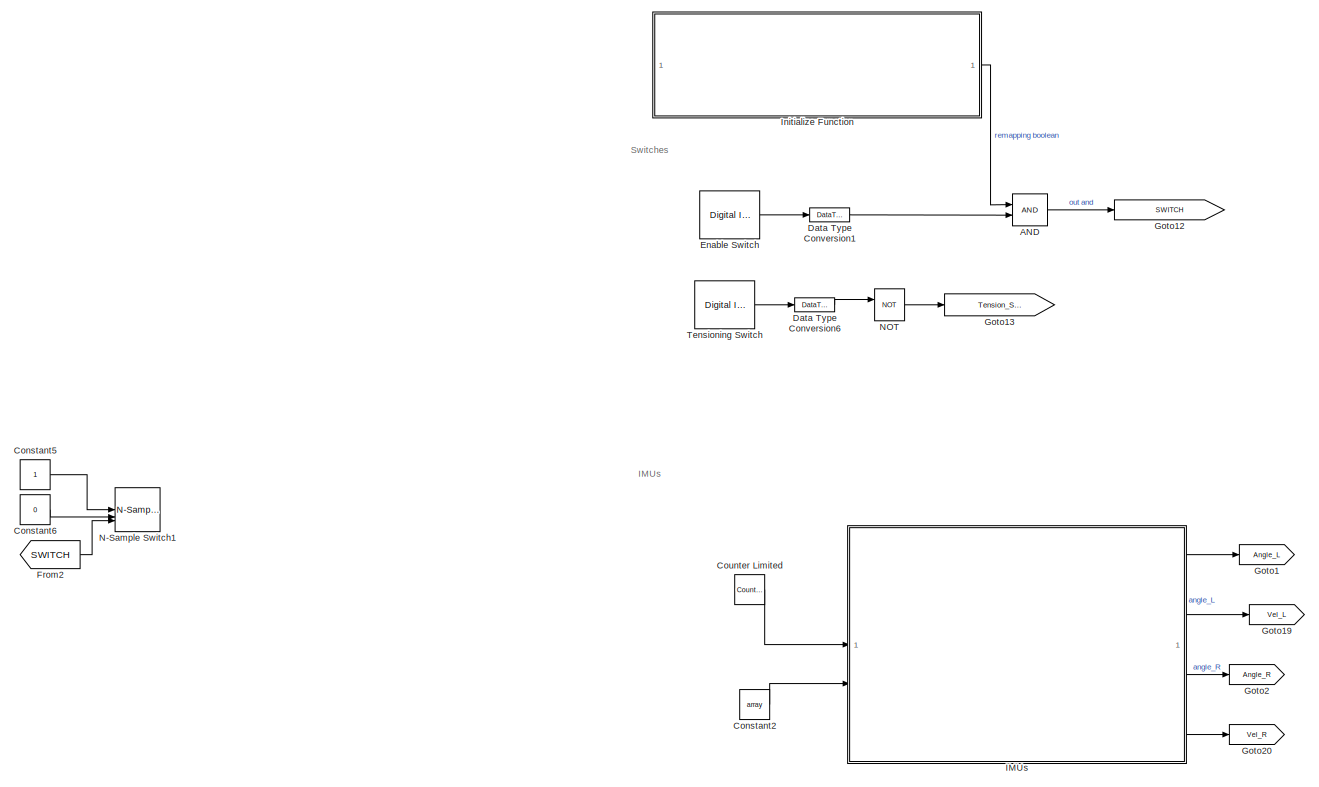
[diagram: root canvas - part 1/2, left side, full height]
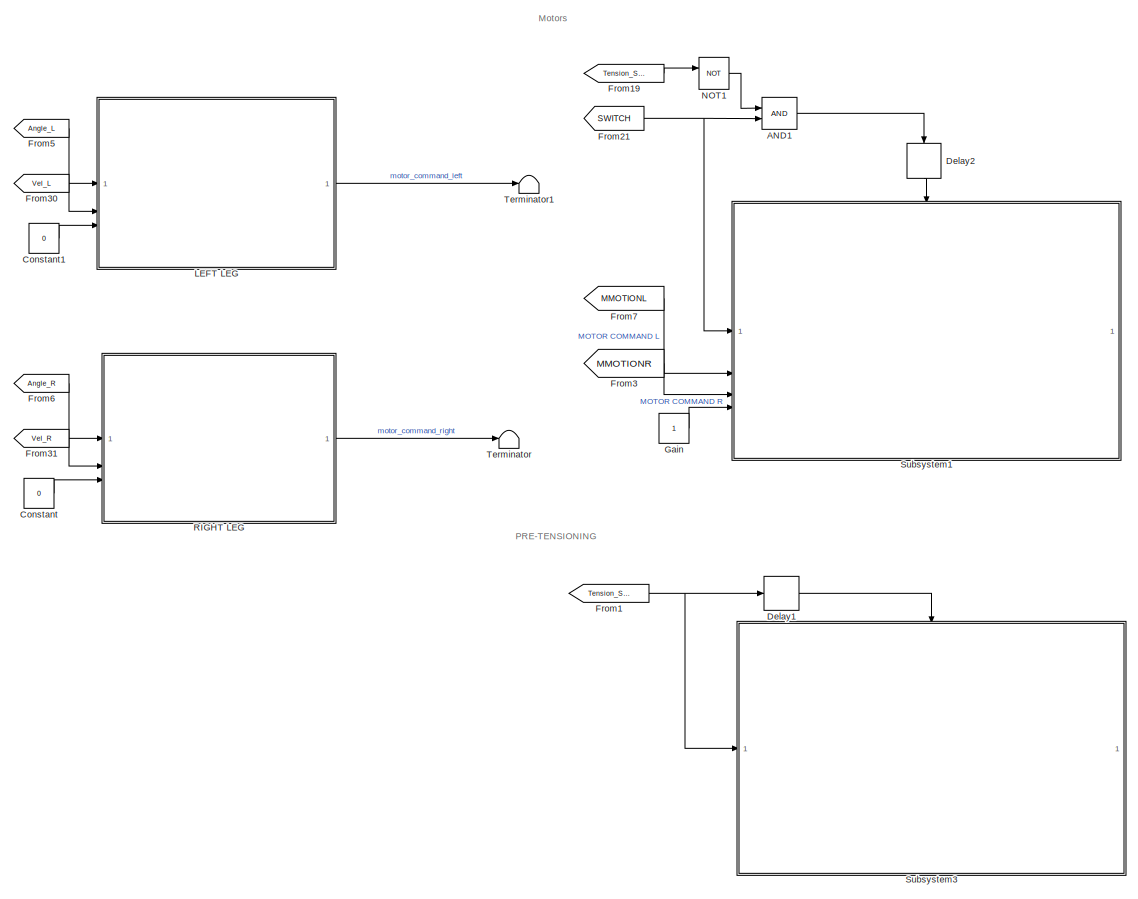
[diagram: root canvas - part 2/2, right side, full height]
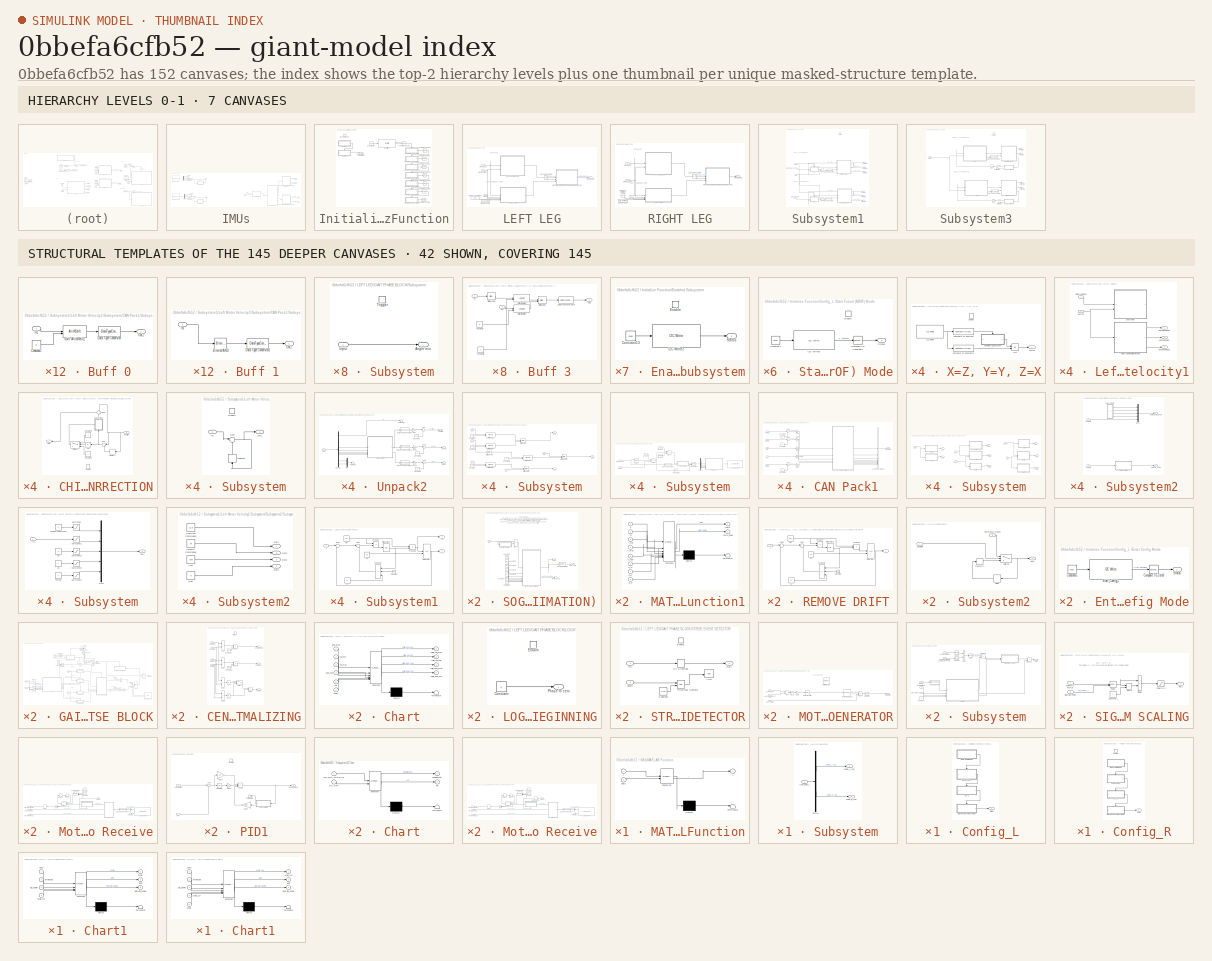
[diagram: thumbnail index - top-2 hierarchy levels (7 canvases) + 42 structural-template representatives of the remaining 145 canvases]
MODEL slx_0bbefa6cfb52
KIND model
CONFIG AbsTol = auto
CONFIG EnableMultiTasking = on
CONFIG FixedStep = 0.01
CONFIG MaxStep = auto
CONFIG MinStep = auto
CONFIG RelTol = 1e-3
CONFIG SampleTimeConstraint = Unconstrained
CONFIG SolverName = FixedStepAuto
CONFIG StartTime = 0.0
CONFIG StopTime = sim
BLOCK [Logic] AND
  AllPortsSameDT = off
  Commented = on
  IconShape = distinctive
  OutDataTypeStr = boolean
BLOCK [Logic] AND1
  AllPortsSameDT = off
  Commented = on
  IconShape = distinctive
  OutDataTypeStr = boolean
BLOCK [Constant] Constant
  Value = 0
BLOCK [Constant] Constant1
  Value = 0
BLOCK [Constant] Constant2
  Value = array
BLOCK [Constant] Constant5
  Commented = on
BLOCK [Constant] Constant6
  Commented = on
  Value = 0
BLOCK [Reference] Counter Limited  REF=simulink/Sources/Counter
Limited
  SourceBlock = simulink/Sources/Counter\nLimited
  SourceType = Counter Limited
BLOCK [DataTypeConversion] Data Type Conversion1
  Commented = on
  OutDataTypeStr = uint8
  RndMeth = Floor
  SaturateOnIntegerOverflow = off
BLOCK [DataTypeConversion] Data Type Conversion6
  Commented = on
  OutDataTypeStr = single
  RndMeth = Floor
  SaturateOnIntegerOverflow = off
BLOCK [Delay] Delay1
  Commented = on
  DelayLength = 1
  InputPortMap = u0
BLOCK [Delay] Delay2
  Commented = on
  InputPortMap = u0
  NameLocation = left
BLOCK [Reference] Enable Switch  REF=arduinolib/Digital Input
  Commented = on
  SourceBlock = arduinolib/Digital Input
  SourceProductName = Common
  SourceType = Arduino Digital Input
BLOCK [From] From1
  Commented = on
  GotoTag = Tension_Switch
BLOCK [From] From19
  Commented = on
  GotoTag = Tension_Switch
BLOCK [From] From2
  Commented = on
  GotoTag = SWITCH
BLOCK [From] From21
  Commented = on
  GotoTag = SWITCH
BLOCK [From] From3
  Commented = on
  GotoTag = MMOTIONR
BLOCK [From] From30
  GotoTag = Vel_L
BLOCK [From] From31
  GotoTag = Vel_R
BLOCK [From] From5
  GotoTag = Angle_L
BLOCK [From] From6
  GotoTag = Angle_R
BLOCK [From] From7
  Commented = on
  GotoTag = MMOTIONL
BLOCK [Constant] Gain
  Commented = on
BLOCK [Goto] Goto1
  GotoTag = Angle_L
BLOCK [Goto] Goto12
  Commented = on
  GotoTag = SWITCH
BLOCK [Goto] Goto13
  Commented = on
  GotoTag = Tension_Switch
BLOCK [Goto] Goto19
  GotoTag = Vel_L
BLOCK [Goto] Goto2
  GotoTag = Angle_R
BLOCK [Goto] Goto20
  GotoTag = Vel_R
BLOCK [SubSystem] IMUs
BLOCK [Reference] IMUs/BNO055 IMU Sensor  REF=arduinosensorlib/BNO055 IMU Sensor
  Commented = on
  SourceBlock = arduinosensorlib/BNO055 IMU Sensor
  SourceProductName = Sensors
  SourceType = BNO055
BLOCK [Reference] IMUs/BNO055 IMU Sensor1  REF=arduinosensorlib/BNO055 IMU Sensor
  Commented = on
  SourceBlock = arduinosensorlib/BNO055 IMU Sensor
  SourceProductName = Sensors
  SourceType = BNO055
BLOCK [Demux] IMUs/Demux1
  Commented = on
  Outputs = 3
BLOCK [Demux] IMUs/Demux3
  Commented = on
  Outputs = 3
BLOCK [SubSystem] IMUs/MATLAB Function
  ErrorFcn = Stateflow.Translate.translate
  PermitHierarchicalResolution = ExplicitOnly
  SFBlockType = MATLAB Function
  TreatAsAtomicUnit = on
BLOCK [Demux] IMUs/MATLAB Function/ Demux 
  Outputs = 1
BLOCK [S-Function] IMUs/MATLAB Function/ SFunction 
  EnableBusSupport = on
  FunctionName = sf_sfun
  PortCounts = [2 2]
  SFcnIsStateOwnerBlock = off
  SFunctionDeploymentMode = off
  Tag = Stateflow S-Function 3
BLOCK [Terminator] IMUs/MATLAB Function/ Terminator 
BLOCK [Inport] IMUs/MATLAB Function/data
  Port = 2
BLOCK [Inport] IMUs/MATLAB Function/i
BLOCK [Outport] IMUs/MATLAB Function/y
BLOCK [SubSystem] IMUs/SOGI + FLL (IN PHASE + QUADRATURE COMPONENT ESTIMATION)
BLOCK [Constant] IMUs/SOGI + FLL (IN PHASE + QUADRATURE COMPONENT ESTIMATION)/Constant1
  Value = Tsamp
BLOCK [Constant] IMUs/SOGI + FLL (IN PHASE + QUADRATURE COMPONENT ESTIMATION)/Constant2
  Value = ksogi
BLOCK [Constant] IMUs/SOGI + FLL (IN PHASE + QUADRATURE COMPONENT ESTIMATION)/Constant3
  Value = fmin
BLOCK [Constant] IMUs/SOGI + FLL (IN PHASE + QUADRATURE COMPONENT ESTIMATION)/Constant4
  Value = fmax
BLOCK [Constant] IMUs/SOGI + FLL (IN PHASE + QUADRATURE COMPONENT ESTIMATION)/Constant5
  Value = kfll
BLOCK [Constant] IMUs/SOGI + FLL (IN PHASE + QUADRATURE COMPONENT ESTIMATION)/Constant6
  Value = Ehi
BLOCK [Constant] IMUs/SOGI + FLL (IN PHASE + QUADRATURE COMPONENT ESTIMATION)/Constant7
  Value = Elo
BLOCK [Reference] IMUs/SOGI + FLL (IN PHASE + QUADRATURE COMPONENT ESTIMATION)/Discrete Derivative  REF=simulink/Discrete/Discrete Derivative
  SourceBlock = simulink/Discrete/Discrete Derivative
  SourceType = Discrete Derivative
BLOCK [Inport] IMUs/SOGI + FLL (IN PHASE + QUADRATURE COMPONENT ESTIMATION)/In1
BLOCK [SubSystem] IMUs/SOGI + FLL (IN PHASE + QUADRATURE COMPONENT ESTIMATION)/MATLAB Function1
  ErrorFcn = Stateflow.Translate.translate
  LibrarySourceBlock = simulink/User-Defined\nFunctions/MATLAB Function
  PermitHierarchicalResolution = ExplicitOnly
  SFBlockType = MATLAB Function
  TreatAsAtomicUnit = on
BLOCK [Demux] IMUs/SOGI + FLL (IN PHASE + QUADRATURE COMPONENT ESTIMATION)/MATLAB Function1/ Demux 
  Outputs = 1
BLOCK [S-Function] IMUs/SOGI + FLL (IN PHASE + QUADRATURE COMPONENT ESTIMATION)/MATLAB Function1/ SFunction 
  EnableBusSupport = on
  FunctionName = sf_sfun
  PortCounts = [8 3]
  SFcnIsStateOwnerBlock = off
  SFunctionDeploymentMode = off
  Tag = Stateflow S-Function 1
BLOCK [Terminator] IMUs/SOGI + FLL (IN PHASE + QUADRATURE COMPONENT ESTIMATION)/MATLAB Function1/ Terminator 
BLOCK [Inport] IMUs/SOGI + FLL (IN PHASE + QUADRATURE COMPONENT ESTIMATION)/MATLAB Function1/E_hi
  Port = 8
BLOCK [Inport] IMUs/SOGI + FLL (IN PHASE + QUADRATURE COMPONENT ESTIMATION)/MATLAB Function1/E_lo
  Port = 7
BLOCK [Inport] IMUs/SOGI + FLL (IN PHASE + QUADRATURE COMPONENT ESTIMATION)/MATLAB Function1/Ts
  Port = 2
BLOCK [Inport] IMUs/SOGI + FLL (IN PHASE + QUADRATURE COMPONENT ESTIMATION)/MATLAB Function1/f_max
  Port = 4
BLOCK [Inport] IMUs/SOGI + FLL (IN PHASE + QUADRATURE COMPONENT ESTIMATION)/MATLAB Function1/f_min
  Port = 3
BLOCK [Inport] IMUs/SOGI + FLL (IN PHASE + QUADRATURE COMPONENT ESTIMATION)/MATLAB Function1/k_fll
  Port = 6
BLOCK [Inport] IMUs/SOGI + FLL (IN PHASE + QUADRATURE COMPONENT ESTIMATION)/MATLAB Function1/k_sogi
  Port = 5
BLOCK [Outport] IMUs/SOGI + FLL (IN PHASE + QUADRATURE COMPONENT ESTIMATION)/MATLAB Function1/theta
BLOCK [Outport] IMUs/SOGI + FLL (IN PHASE + QUADRATURE COMPONENT ESTIMATION)/MATLAB Function1/theta_quad
  Port = 2
BLOCK [Inport] IMUs/SOGI + FLL (IN PHASE + QUADRATURE COMPONENT ESTIMATION)/MATLAB Function1/x
BLOCK [Sum] IMUs/SOGI + FLL (IN PHASE + QUADRATURE COMPONENT ESTIMATION)/Minus
  IconShape = rectangular
  Inputs = +-
BLOCK [SubSystem] IMUs/SOGI + FLL (IN PHASE + QUADRATURE COMPONENT ESTIMATION)/REMOVE DRIFT
BLOCK [Constant] IMUs/SOGI + FLL (IN PHASE + QUADRATURE COMPONENT ESTIMATION)/REMOVE DRIFT/Constant
  Value = 2
BLOCK [Integrator] IMUs/SOGI + FLL (IN PHASE + QUADRATURE COMPONENT ESTIMATION)/REMOVE DRIFT/Integrator1
  InitialConditionSource = external
BLOCK [Integrator] IMUs/SOGI + FLL (IN PHASE + QUADRATURE COMPONENT ESTIMATION)/REMOVE DRIFT/Integrator2
BLOCK [Product] IMUs/SOGI + FLL (IN PHASE + QUADRATURE COMPONENT ESTIMATION)/REMOVE DRIFT/Product
  RndMeth = Zero
BLOCK [Product] IMUs/SOGI + FLL (IN PHASE + QUADRATURE COMPONENT ESTIMATION)/REMOVE DRIFT/Product1
  RndMeth = Zero
BLOCK [Product] IMUs/SOGI + FLL (IN PHASE + QUADRATURE COMPONENT ESTIMATION)/REMOVE DRIFT/Product2
  Inputs = 3
  RndMeth = Zero
BLOCK [Sum] IMUs/SOGI + FLL (IN PHASE + QUADRATURE COMPONENT ESTIMATION)/REMOVE DRIFT/Sum
  Inputs = |+-
BLOCK [Sum] IMUs/SOGI + FLL (IN PHASE + QUADRATURE COMPONENT ESTIMATION)/REMOVE DRIFT/Sum1
  Inputs = |+-
BLOCK [Constant] IMUs/SOGI + FLL (IN PHASE + QUADRATURE COMPONENT ESTIMATION)/REMOVE DRIFT/wn
  Value = wn
BLOCK [Inport] IMUs/SOGI + FLL (IN PHASE + QUADRATURE COMPONENT ESTIMATION)/REMOVE DRIFT/x
BLOCK [Constant] IMUs/SOGI + FLL (IN PHASE + QUADRATURE COMPONENT ESTIMATION)/REMOVE DRIFT/x0
  Value = x0
BLOCK [Outport] IMUs/SOGI + FLL (IN PHASE + QUADRATURE COMPONENT ESTIMATION)/REMOVE DRIFT/y
  VectorParamsAs1DForOutWhenUnconnected = off
BLOCK [Constant] IMUs/SOGI + FLL (IN PHASE + QUADRATURE COMPONENT ESTIMATION)/REMOVE DRIFT/zt
  Value = zt
BLOCK [Outport] IMUs/SOGI + FLL (IN PHASE + QUADRATURE COMPONENT ESTIMATION)/theta
BLOCK [Outport] IMUs/SOGI + FLL (IN PHASE + QUADRATURE COMPONENT ESTIMATION)/theta_deriv
  Port = 2
BLOCK [Terminator] IMUs/SOGI + FLL (IN PHASE + QUADRATURE COMPONENT ESTIMATION)/theta_quad
BLOCK [SubSystem] IMUs/SOGI + FLL (IN PHASE + QUADRATURE COMPONENT ESTIMATION)1
BLOCK [Constant] IMUs/SOGI + FLL (IN PHASE + QUADRATURE COMPONENT ESTIMATION)1/Constant1
  Value = Tsamp
BLOCK [Constant] IMUs/SOGI + FLL (IN PHASE + QUADRATURE COMPONENT ESTIMATION)1/Constant2
  Value = ksogi
BLOCK [Constant] IMUs/SOGI + FLL (IN PHASE + QUADRATURE COMPONENT ESTIMATION)1/Constant3
  Value = fmin
BLOCK [Constant] IMUs/SOGI + FLL (IN PHASE + QUADRATURE COMPONENT ESTIMATION)1/Constant4
  Value = fmax
BLOCK [Constant] IMUs/SOGI + FLL (IN PHASE + QUADRATURE COMPONENT ESTIMATION)1/Constant5
  Value = kfll
BLOCK [Constant] IMUs/SOGI + FLL (IN PHASE + QUADRATURE COMPONENT ESTIMATION)1/Constant6
  Value = Ehi
BLOCK [Constant] IMUs/SOGI + FLL (IN PHASE + QUADRATURE COMPONENT ESTIMATION)1/Constant7
  Value = Elo
BLOCK [Reference] IMUs/SOGI + FLL (IN PHASE + QUADRATURE COMPONENT ESTIMATION)1/Discrete Derivative  REF=simulink/Discrete/Discrete Derivative
  SourceBlock = simulink/Discrete/Discrete Derivative
  SourceType = Discrete Derivative
BLOCK [Inport] IMUs/SOGI + FLL (IN PHASE + QUADRATURE COMPONENT ESTIMATION)1/In1
BLOCK [SubSystem] IMUs/SOGI + FLL (IN PHASE + QUADRATURE COMPONENT ESTIMATION)1/MATLAB Function1
  ErrorFcn = Stateflow.Translate.translate
  LibrarySourceBlock = simulink/User-Defined\nFunctions/MATLAB Function
  PermitHierarchicalResolution = ExplicitOnly
  SFBlockType = MATLAB Function
  TreatAsAtomicUnit = on
BLOCK [Demux] IMUs/SOGI + FLL (IN PHASE + QUADRATURE COMPONENT ESTIMATION)1/MATLAB Function1/ Demux 
  Outputs = 1
BLOCK [S-Function] IMUs/SOGI + FLL (IN PHASE + QUADRATURE COMPONENT ESTIMATION)1/MATLAB Function1/ SFunction 
  EnableBusSupport = on
  FunctionName = sf_sfun
  PortCounts = [8 3]
  SFcnIsStateOwnerBlock = off
  SFunctionDeploymentMode = off
  Tag = Stateflow S-Function 7
BLOCK [Terminator] IMUs/SOGI + FLL (IN PHASE + QUADRATURE COMPONENT ESTIMATION)1/MATLAB Function1/ Terminator 
BLOCK [Inport] IMUs/SOGI + FLL (IN PHASE + QUADRATURE COMPONENT ESTIMATION)1/MATLAB Function1/E_hi
  Port = 8
BLOCK [Inport] IMUs/SOGI + FLL (IN PHASE + QUADRATURE COMPONENT ESTIMATION)1/MATLAB Function1/E_lo
  Port = 7
BLOCK [Inport] IMUs/SOGI + FLL (IN PHASE + QUADRATURE COMPONENT ESTIMATION)1/MATLAB Function1/Ts
  Port = 2
BLOCK [Inport] IMUs/SOGI + FLL (IN PHASE + QUADRATURE COMPONENT ESTIMATION)1/MATLAB Function1/f_max
  Port = 4
BLOCK [Inport] IMUs/SOGI + FLL (IN PHASE + QUADRATURE COMPONENT ESTIMATION)1/MATLAB Function1/f_min
  Port = 3
BLOCK [Inport] IMUs/SOGI + FLL (IN PHASE + QUADRATURE COMPONENT ESTIMATION)1/MATLAB Function1/k_fll
  Port = 6
BLOCK [Inport] IMUs/SOGI + FLL (IN PHASE + QUADRATURE COMPONENT ESTIMATION)1/MATLAB Function1/k_sogi
  Port = 5
BLOCK [Outport] IMUs/SOGI + FLL (IN PHASE + QUADRATURE COMPONENT ESTIMATION)1/MATLAB Function1/theta
BLOCK [Outport] IMUs/SOGI + FLL (IN PHASE + QUADRATURE COMPONENT ESTIMATION)1/MATLAB Function1/theta_quad
  Port = 2
BLOCK [Inport] IMUs/SOGI + FLL (IN PHASE + QUADRATURE COMPONENT ESTIMATION)1/MATLAB Function1/x
BLOCK [Sum] IMUs/SOGI + FLL (IN PHASE + QUADRATURE COMPONENT ESTIMATION)1/Minus
  IconShape = rectangular
  Inputs = +-
BLOCK [SubSystem] IMUs/SOGI + FLL (IN PHASE + QUADRATURE COMPONENT ESTIMATION)1/REMOVE DRIFT
BLOCK [Constant] IMUs/SOGI + FLL (IN PHASE + QUADRATURE COMPONENT ESTIMATION)1/REMOVE DRIFT/Constant
  Value = 2
BLOCK [Integrator] IMUs/SOGI + FLL (IN PHASE + QUADRATURE COMPONENT ESTIMATION)1/REMOVE DRIFT/Integrator1
  InitialConditionSource = external
BLOCK [Integrator] IMUs/SOGI + FLL (IN PHASE + QUADRATURE COMPONENT ESTIMATION)1/REMOVE DRIFT/Integrator2
BLOCK [Product] IMUs/SOGI + FLL (IN PHASE + QUADRATURE COMPONENT ESTIMATION)1/REMOVE DRIFT/Product
  RndMeth = Zero
BLOCK [Product] IMUs/SOGI + FLL (IN PHASE + QUADRATURE COMPONENT ESTIMATION)1/REMOVE DRIFT/Product1
  RndMeth = Zero
BLOCK [Product] IMUs/SOGI + FLL (IN PHASE + QUADRATURE COMPONENT ESTIMATION)1/REMOVE DRIFT/Product2
  Inputs = 3
  RndMeth = Zero
BLOCK [Sum] IMUs/SOGI + FLL (IN PHASE + QUADRATURE COMPONENT ESTIMATION)1/REMOVE DRIFT/Sum
  Inputs = |+-
BLOCK [Sum] IMUs/SOGI + FLL (IN PHASE + QUADRATURE COMPONENT ESTIMATION)1/REMOVE DRIFT/Sum1
  Inputs = |+-
BLOCK [Constant] IMUs/SOGI + FLL (IN PHASE + QUADRATURE COMPONENT ESTIMATION)1/REMOVE DRIFT/wn
  Value = wn
BLOCK [Inport] IMUs/SOGI + FLL (IN PHASE + QUADRATURE COMPONENT ESTIMATION)1/REMOVE DRIFT/x
BLOCK [Constant] IMUs/SOGI + FLL (IN PHASE + QUADRATURE COMPONENT ESTIMATION)1/REMOVE DRIFT/x0
  Value = x0
BLOCK [Outport] IMUs/SOGI + FLL (IN PHASE + QUADRATURE COMPONENT ESTIMATION)1/REMOVE DRIFT/y
  VectorParamsAs1DForOutWhenUnconnected = off
BLOCK [Constant] IMUs/SOGI + FLL (IN PHASE + QUADRATURE COMPONENT ESTIMATION)1/REMOVE DRIFT/zt
  Value = zt
BLOCK [Outport] IMUs/SOGI + FLL (IN PHASE + QUADRATURE COMPONENT ESTIMATION)1/theta
BLOCK [Outport] IMUs/SOGI + FLL (IN PHASE + QUADRATURE COMPONENT ESTIMATION)1/theta_deriv
  Port = 2
BLOCK [Terminator] IMUs/SOGI + FLL (IN PHASE + QUADRATURE COMPONENT ESTIMATION)1/theta_quad
BLOCK [SubSystem] IMUs/Subsystem
BLOCK [Demux] IMUs/Subsystem/Demux
  Outputs = 2
BLOCK [Outport] IMUs/Subsystem/angle_L_raw
BLOCK [Outport] IMUs/Subsystem/angle_R_raw
  Port = 2
BLOCK [Inport] IMUs/Subsystem/raw_angle_L
BLOCK [SubSystem] IMUs/Subsystem2
  Commented = on
BLOCK [Delay] IMUs/Subsystem2/Delay
  InputPortMap = u0
  NameLocation = top
BLOCK [Memory] IMUs/Subsystem2/Memory1
BLOCK [Outport] IMUs/Subsystem2/Out1
BLOCK [Inport] IMUs/Subsystem2/Reference Motion
  Port = 2
BLOCK [Switch] IMUs/Subsystem2/Switch1
  Criteria = u2 > Threshold
  InputSameDT = off
  SaturateOnIntegerOverflow = off
BLOCK [Inport] IMUs/Subsystem2/baseline
BLOCK [SubSystem] IMUs/Subsystem3
  Commented = on
BLOCK [Delay] IMUs/Subsystem3/Delay
  InputPortMap = u0
  NameLocation = top
BLOCK [Memory] IMUs/Subsystem3/Memory1
BLOCK [Outport] IMUs/Subsystem3/Out1
BLOCK [Inport] IMUs/Subsystem3/Reference Motion
  Port = 2
BLOCK [Switch] IMUs/Subsystem3/Switch1
  Criteria = u2 > Threshold
  InputSameDT = off
  SaturateOnIntegerOverflow = off
BLOCK [Inport] IMUs/Subsystem3/baseline
BLOCK [Sum] IMUs/Sum1
  Commented = on
  Inputs = |+-
BLOCK [Sum] IMUs/Sum2
  Commented = on
  Inputs = |+-
BLOCK [Terminator] IMUs/Terminator2
  Commented = on
BLOCK [Terminator] IMUs/Terminator3
  Commented = on
BLOCK [Terminator] IMUs/Terminator4
  Commented = on
BLOCK [Terminator] IMUs/Terminator5
  Commented = on
BLOCK [Outport] IMUs/angle_L
BLOCK [Outport] IMUs/angle_R
  Port = 3
BLOCK [Inport] IMUs/data
  Port = 2
BLOCK [Gain] IMUs/degree2radian5
  Commented = on
  Gain = pi/180
BLOCK [Gain] IMUs/degree2radian8
  Commented = on
  Gain = -pi/180
BLOCK [Inport] IMUs/i
BLOCK [Outport] IMUs/vel_L
  Port = 2
BLOCK [Outport] IMUs/vel_R
  Port = 4
BLOCK [SubSystem] Initialize Function
  Commented = on
  TreatAsAtomicUnit = on
BLOCK [Reference] Initialize Function/Compare To Zero  REF=simulink/Logic and Bit
Operations/Compare
To Zero
  Commented = on
  SourceBlock = simulink/Logic and Bit\nOperations/Compare\nTo Zero
  SourceType = Compare To Zero
BLOCK [Reference] Initialize Function/Compare To Zero1  REF=simulink/Logic and Bit
Operations/Compare
To Zero
  Commented = on
  SourceBlock = simulink/Logic and Bit\nOperations/Compare\nTo Zero
  SourceType = Compare To Zero
BLOCK [Reference] Initialize Function/Compare To Zero2  REF=simulink/Logic and Bit
Operations/Compare
To Zero
  Commented = on
  SourceBlock = simulink/Logic and Bit\nOperations/Compare\nTo Zero
  SourceType = Compare To Zero
BLOCK [Reference] Initialize Function/Compare To Zero3  REF=simulink/Logic and Bit
Operations/Compare
To Zero
  Commented = on
  SourceBlock = simulink/Logic and Bit\nOperations/Compare\nTo Zero
  SourceType = Compare To Zero
BLOCK [Reference] Initialize Function/Compare To Zero4  REF=simulink/Logic and Bit
Operations/Compare
To Zero
  Commented = on
  SourceBlock = simulink/Logic and Bit\nOperations/Compare\nTo Zero
  SourceType = Compare To Zero
BLOCK [Reference] Initialize Function/Compare To Zero5  REF=simulink/Logic and Bit
Operations/Compare
To Zero
  Commented = on
  SourceBlock = simulink/Logic and Bit\nOperations/Compare\nTo Zero
  SourceType = Compare To Zero
BLOCK [Reference] Initialize Function/Compare To Zero6  REF=simulink/Logic and Bit
Operations/Compare
To Zero
  Commented = on
  SourceBlock = simulink/Logic and Bit\nOperations/Compare\nTo Zero
  SourceType = Compare To Zero
BLOCK [Reference] Initialize Function/Compare To Zero7  REF=simulink/Logic and Bit
Operations/Compare
To Zero
  Commented = on
  SourceBlock = simulink/Logic and Bit\nOperations/Compare\nTo Zero
  SourceType = Compare To Zero
BLOCK [SubSystem] Initialize Function/Config_L 
  TreatAsAtomicUnit = on
BLOCK [SubSystem] Initialize Function/Config_L /Enter Config Mode
BLOCK [Reference] Initialize Function/Config_L /Enter Config Mode/Compare To Zero8  REF=simulink/Logic and Bit
Operations/Compare
To Zero
  SourceBlock = simulink/Logic and Bit\nOperations/Compare\nTo Zero
  SourceType = Compare To Zero
BLOCK [Constant] Initialize Function/Config_L /Enter Config Mode/Constant5
  Value = 0x00
BLOCK [Reference] Initialize Function/Config_L /Enter Config Mode/Start_Config_L  REF=arduinolib/I2C Write
  SourceBlock = arduinolib/I2C Write
  SourceProductName = Common
  SourceType = I2C Write
BLOCK [Outport] Initialize Function/Config_L /Enter Config Mode/Status
BLOCK [SubSystem] Initialize Function/Config_L /Start Fused (NDOF) Mode
  TreatAsAtomicUnit = on
BLOCK [Reference] Initialize Function/Config_L /Start Fused (NDOF) Mode/Compare To Constant2  REF=simulink/Logic and Bit
Operations/Compare
To Constant
  SourceBlock = simulink/Logic and Bit\nOperations/Compare\nTo Constant
  SourceType = Compare To Constant
BLOCK [Constant] Initialize Function/Config_L /Start Fused (NDOF) Mode/Constant4
  Value = 0x0C
BLOCK [EnablePort] Initialize Function/Config_L /Start Fused (NDOF) Mode/Enable
BLOCK [Reference] Initialize Function/Config_L /Start Fused (NDOF) Mode/I2C Write8  REF=arduinolib/I2C Write
  SourceBlock = arduinolib/I2C Write
  SourceProductName = Common
  SourceType = I2C Write
BLOCK [Outport] Initialize Function/Config_L /Start Fused (NDOF) Mode/Status
BLOCK [Outport] Initialize Function/Config_L /Status
BLOCK [SubSystem] Initialize Function/Config_L /X=Z, Y=Y, Z=X
BLOCK [Reference] Initialize Function/Config_L /X=Z, Y=Y, Z=X/Compare To Constant  REF=simulink/Logic and Bit
Operations/Compare
To Constant
  SourceBlock = simulink/Logic and Bit\nOperations/Compare\nTo Constant
  SourceType = Compare To Constant
BLOCK [Reference] Initialize Function/Config_L /X=Z, Y=Y, Z=X/Compare To Constant1  REF=simulink/Logic and Bit
Operations/Compare
To Constant
  SourceBlock = simulink/Logic and Bit\nOperations/Compare\nTo Constant
  SourceType = Compare To Constant
BLOCK [EnablePort] Initialize Function/Config_L /X=Z, Y=Y, Z=X/Enable
BLOCK [SubSystem] Initialize Function/Config_L /X=Z, Y=Y, Z=X/Enabled Subsystem
  TreatAsAtomicUnit = on
BLOCK [Reference] Initialize Function/Config_L /X=Z, Y=Y, Z=X/Enabled Subsystem/Compare To Constant1  REF=simulink/Logic and Bit
Operations/Compare
To Constant
  SourceBlock = simulink/Logic and Bit\nOperations/Compare\nTo Constant
  SourceType = Compare To Constant
BLOCK [Constant] Initialize Function/Config_L /X=Z, Y=Y, Z=X/Enabled Subsystem/Constant2
  Value = 0x06
BLOCK [EnablePort] Initialize Function/Config_L /X=Z, Y=Y, Z=X/Enabled Subsystem/Enable
BLOCK [Reference] Initialize Function/Config_L /X=Z, Y=Y, Z=X/Enabled Subsystem/I2C Write6  REF=arduinolib/I2C Write
  SourceBlock = arduinolib/I2C Write
  SourceProductName = Common
  SourceType = I2C Write
BLOCK [Outport] Initialize Function/Config_L /X=Z, Y=Y, Z=X/Enabled Subsystem/Status
BLOCK [Reference] Initialize Function/Config_L /X=Z, Y=Y, Z=X/I2C Read  REF=arduinolib/I2C Read
  SourceBlock = arduinolib/I2C Read
  SourceProductName = Common
  SourceType = I2C Read
BLOCK [Logic] Initialize Function/Config_L /X=Z, Y=Y, Z=X/OR
  AllPortsSameDT = off
  IconShape = distinctive
  Operator = OR
  OutDataTypeStr = boolean
BLOCK [Outport] Initialize Function/Config_L /X=Z, Y=Y, Z=X/Status
BLOCK [SubSystem] Initialize Function/Config_L /Z = -Z
  TreatAsAtomicUnit = on
BLOCK [Reference] Initialize Function/Config_L /Z = -Z/Compare To Constant  REF=simulink/Logic and Bit
Operations/Compare
To Constant
  SourceBlock = simulink/Logic and Bit\nOperations/Compare\nTo Constant
  SourceType = Compare To Constant
BLOCK [Reference] Initialize Function/Config_L /Z = -Z/Compare To Constant1  REF=simulink/Logic and Bit
Operations/Compare
To Constant
  SourceBlock = simulink/Logic and Bit\nOperations/Compare\nTo Constant
  SourceType = Compare To Constant
BLOCK [EnablePort] Initialize Function/Config_L /Z = -Z/Enable
BLOCK [Logic] Initialize Function/Config_L /Z = -Z/OR
  AllPortsSameDT = off
  IconShape = distinctive
  Operator = OR
  OutDataTypeStr = boolean
BLOCK [Reference] Initialize Function/Config_L /Z = -Z/Read  REF=arduinolib/I2C Read
  SourceBlock = arduinolib/I2C Read
  SourceProductName = Common
  SourceType = I2C Read
BLOCK [Outport] Initialize Function/Config_L /Z = -Z/Status
BLOCK [SubSystem] Initialize Function/Config_L /Z = -Z/Write
  TreatAsAtomicUnit = on
BLOCK [Reference] Initialize Function/Config_L /Z = -Z/Write/Compare To Constant1  REF=simulink/Logic and Bit
Operations/Compare
To Constant
  SourceBlock = simulink/Logic and Bit\nOperations/Compare\nTo Constant
  SourceType = Compare To Constant
BLOCK [Constant] Initialize Function/Config_L /Z = -Z/Write/Constant2
  Value = 0x01
BLOCK [EnablePort] Initialize Function/Config_L /Z = -Z/Write/Enable
BLOCK [Reference] Initialize Function/Config_L /Z = -Z/Write/I2C Write7  REF=arduinolib/I2C Write
  SourceBlock = arduinolib/I2C Write
  SourceProductName = Common
  SourceType = I2C Write
BLOCK [Outport] Initialize Function/Config_L /Z = -Z/Write/Status
BLOCK [SubSystem] Initialize Function/Config_R
  TreatAsAtomicUnit = on
BLOCK [EnablePort] Initialize Function/Config_R/Enable
BLOCK [SubSystem] Initialize Function/Config_R/Enter Config Mode
BLOCK [Reference] Initialize Function/Config_R/Enter Config Mode/Compare To Zero8  REF=simulink/Logic and Bit
Operations/Compare
To Zero
  SourceBlock = simulink/Logic and Bit\nOperations/Compare\nTo Zero
  SourceType = Compare To Zero
BLOCK [Constant] Initialize Function/Config_R/Enter Config Mode/Constant5
  Value = 0x00
BLOCK [Reference] Initialize Function/Config_R/Enter Config Mode/Start_Config_R  REF=arduinolib/I2C Write
  SourceBlock = arduinolib/I2C Write
  SourceProductName = Common
  SourceType = I2C Write
BLOCK [Outport] Initialize Function/Config_R/Enter Config Mode/Status
BLOCK [SubSystem] Initialize Function/Config_R/Start Fused (NDOF) Mode
  TreatAsAtomicUnit = on
BLOCK [Reference] Initialize Function/Config_R/Start Fused (NDOF) Mode/Compare To Constant1  REF=simulink/Logic and Bit
Operations/Compare
To Constant
  SourceBlock = simulink/Logic and Bit\nOperations/Compare\nTo Constant
  SourceType = Compare To Constant
BLOCK [Constant] Initialize Function/Config_R/Start Fused (NDOF) Mode/Constant4
  Value = 0x0C
BLOCK [EnablePort] Initialize Function/Config_R/Start Fused (NDOF) Mode/Enable
BLOCK [Reference] Initialize Function/Config_R/Start Fused (NDOF) Mode/I2C Write8  REF=arduinolib/I2C Write
  SourceBlock = arduinolib/I2C Write
  SourceProductName = Common
  SourceType = I2C Write
BLOCK [Outport] Initialize Function/Config_R/Start Fused (NDOF) Mode/Status
BLOCK [Outport] Initialize Function/Config_R/Status
BLOCK [SubSystem] Initialize Function/Config_R/X=Z, Y=Y, Z=X
BLOCK [Reference] Initialize Function/Config_R/X=Z, Y=Y, Z=X/Compare To Constant  REF=simulink/Logic and Bit
Operations/Compare
To Constant
  SourceBlock = simulink/Logic and Bit\nOperations/Compare\nTo Constant
  SourceType = Compare To Constant
BLOCK [Reference] Initialize Function/Config_R/X=Z, Y=Y, Z=X/Compare To Constant1  REF=simulink/Logic and Bit
Operations/Compare
To Constant
  SourceBlock = simulink/Logic and Bit\nOperations/Compare\nTo Constant
  SourceType = Compare To Constant
BLOCK [EnablePort] Initialize Function/Config_R/X=Z, Y=Y, Z=X/Enable
BLOCK [SubSystem] Initialize Function/Config_R/X=Z, Y=Y, Z=X/Enabled Subsystem
  TreatAsAtomicUnit = on
BLOCK [Reference] Initialize Function/Config_R/X=Z, Y=Y, Z=X/Enabled Subsystem/Compare To Constant1  REF=simulink/Logic and Bit
Operations/Compare
To Constant
  SourceBlock = simulink/Logic and Bit\nOperations/Compare\nTo Constant
  SourceType = Compare To Constant
BLOCK [Constant] Initialize Function/Config_R/X=Z, Y=Y, Z=X/Enabled Subsystem/Constant2
  Value = 0x06
BLOCK [EnablePort] Initialize Function/Config_R/X=Z, Y=Y, Z=X/Enabled Subsystem/Enable
BLOCK [Reference] Initialize Function/Config_R/X=Z, Y=Y, Z=X/Enabled Subsystem/I2C Write6  REF=arduinolib/I2C Write
  SourceBlock = arduinolib/I2C Write
  SourceProductName = Common
  SourceType = I2C Write
BLOCK [Outport] Initialize Function/Config_R/X=Z, Y=Y, Z=X/Enabled Subsystem/Status
BLOCK [Reference] Initialize Function/Config_R/X=Z, Y=Y, Z=X/I2C Read  REF=arduinolib/I2C Read
  SourceBlock = arduinolib/I2C Read
  SourceProductName = Common
  SourceType = I2C Read
BLOCK [Logic] Initialize Function/Config_R/X=Z, Y=Y, Z=X/OR
  AllPortsSameDT = off
  IconShape = distinctive
  Operator = OR
  OutDataTypeStr = boolean
BLOCK [Outport] Initialize Function/Config_R/X=Z, Y=Y, Z=X/Status
BLOCK [SubSystem] Initialize Function/Config_R/Z = -Z
  TreatAsAtomicUnit = on
BLOCK [Reference] Initialize Function/Config_R/Z = -Z/Compare To Constant  REF=simulink/Logic and Bit
Operations/Compare
To Constant
  SourceBlock = simulink/Logic and Bit\nOperations/Compare\nTo Constant
  SourceType = Compare To Constant
BLOCK [Reference] Initialize Function/Config_R/Z = -Z/Compare To Constant1  REF=simulink/Logic and Bit
Operations/Compare
To Constant
  SourceBlock = simulink/Logic and Bit\nOperations/Compare\nTo Constant
  SourceType = Compare To Constant
BLOCK [EnablePort] Initialize Function/Config_R/Z = -Z/Enable
BLOCK [Logic] Initialize Function/Config_R/Z = -Z/OR
  AllPortsSameDT = off
  IconShape = distinctive
  Operator = OR
  OutDataTypeStr = boolean
BLOCK [Reference] Initialize Function/Config_R/Z = -Z/Read  REF=arduinolib/I2C Read
  SourceBlock = arduinolib/I2C Read
  SourceProductName = Common
  SourceType = I2C Read
BLOCK [Outport] Initialize Function/Config_R/Z = -Z/Status
BLOCK [SubSystem] Initialize Function/Config_R/Z = -Z/Write
  TreatAsAtomicUnit = on
BLOCK [Reference] Initialize Function/Config_R/Z = -Z/Write/Compare To Constant1  REF=simulink/Logic and Bit
Operations/Compare
To Constant
  SourceBlock = simulink/Logic and Bit\nOperations/Compare\nTo Constant
  SourceType = Compare To Constant
BLOCK [Constant] Initialize Function/Config_R/Z = -Z/Write/Constant2
  Value = 0x01
BLOCK [EnablePort] Initialize Function/Config_R/Z = -Z/Write/Enable
BLOCK [Reference] Initialize Function/Config_R/Z = -Z/Write/I2C Write7  REF=arduinolib/I2C Write
  SourceBlock = arduinolib/I2C Write
  SourceProductName = Common
  SourceType = I2C Write
BLOCK [Outport] Initialize Function/Config_R/Z = -Z/Write/Status
BLOCK [Constant] Initialize Function/Constant10
  Commented = on
  Value = 0x00
BLOCK [SubSystem] Initialize Function/Enabled Subsystem
  Commented = on
  TreatAsAtomicUnit = on
BLOCK [Constant] Initialize Function/Enabled Subsystem/Constant13
  Value = 0x06
BLOCK [EnablePort] Initialize Function/Enabled Subsystem/Enable
BLOCK [Reference] Initialize Function/Enabled Subsystem/I2C Write2  REF=arduinolib/I2C Write
  SourceBlock = arduinolib/I2C Write
  SourceProductName = Common
  SourceType = I2C Write
BLOCK [Outport] Initialize Function/Enabled Subsystem/Status
BLOCK [SubSystem] Initialize Function/Enabled Subsystem1
  Commented = on
  TreatAsAtomicUnit = on
BLOCK [Constant] Initialize Function/Enabled Subsystem1/Constant14
  Value = 0x01
BLOCK [EnablePort] Initialize Function/Enabled Subsystem1/Enable
BLOCK [Reference] Initialize Function/Enabled Subsystem1/I2C Write3  REF=arduinolib/I2C Write
  SourceBlock = arduinolib/I2C Write
  SourceProductName = Common
  SourceType = I2C Write
BLOCK [Outport] Initialize Function/Enabled Subsystem1/Status
BLOCK [SubSystem] Initialize Function/Enabled Subsystem2
  Commented = on
  TreatAsAtomicUnit = on
BLOCK [Constant] Initialize Function/Enabled Subsystem2/Constant16
  Value = 0x0C
BLOCK [EnablePort] Initialize Function/Enabled Subsystem2/Enable
BLOCK [Reference] Initialize Function/Enabled Subsystem2/I2C Write4  REF=arduinolib/I2C Write
  SourceBlock = arduinolib/I2C Write
  SourceProductName = Common
  SourceType = I2C Write
BLOCK [Outport] Initialize Function/Enabled Subsystem2/Status
BLOCK [SubSystem] Initialize Function/Enabled Subsystem3
  Commented = on
  TreatAsAtomicUnit = on
BLOCK [Constant] Initialize Function/Enabled Subsystem3/Constant10
  Value = 0x00
BLOCK [EnablePort] Initialize Function/Enabled Subsystem3/Enable
BLOCK [Reference] Initialize Function/Enabled Subsystem3/I2C Write1  REF=arduinolib/I2C Write
  SourceBlock = arduinolib/I2C Write
  SourceProductName = Common
  SourceType = I2C Write
BLOCK [Outport] Initialize Function/Enabled Subsystem3/Out1
BLOCK [SubSystem] Initialize Function/Enabled Subsystem4
  Commented = on
  TreatAsAtomicUnit = on
BLOCK [Constant] Initialize Function/Enabled Subsystem4/Constant13
  Value = 0x06
BLOCK [EnablePort] Initialize Function/Enabled Subsystem4/Enable
BLOCK [Reference] Initialize Function/Enabled Subsystem4/I2C Write2  REF=arduinolib/I2C Write
  SourceBlock = arduinolib/I2C Write
  SourceProductName = Common
  SourceType = I2C Write
BLOCK [Outport] Initialize Function/Enabled Subsystem4/Status
BLOCK [SubSystem] Initialize Function/Enabled Subsystem5
  Commented = on
  TreatAsAtomicUnit = on
BLOCK [Constant] Initialize Function/Enabled Subsystem5/Constant14
  Value = 0x01
BLOCK [EnablePort] Initialize Function/Enabled Subsystem5/Enable
BLOCK [Reference] Initialize Function/Enabled Subsystem5/I2C Write3  REF=arduinolib/I2C Write
  SourceBlock = arduinolib/I2C Write
  SourceProductName = Common
  SourceType = I2C Write
BLOCK [Outport] Initialize Function/Enabled Subsystem5/Status
BLOCK [SubSystem] Initialize Function/Enabled Subsystem6
  Commented = on
  TreatAsAtomicUnit = on
BLOCK [Constant] Initialize Function/Enabled Subsystem6/Constant16
  Value = 0x0C
BLOCK [EnablePort] Initialize Function/Enabled Subsystem6/Enable
BLOCK [Reference] Initialize Function/Enabled Subsystem6/I2C Write4  REF=arduinolib/I2C Write
  SourceBlock = arduinolib/I2C Write
  SourceProductName = Common
  SourceType = I2C Write
BLOCK [Outport] Initialize Function/Enabled Subsystem6/Status
BLOCK [EventListener] Initialize Function/Event Listener
  DisableCoverage = on
  EventName = reset
BLOCK [Reference] Initialize Function/I2C Write1  REF=arduinolib/I2C Write
  Commented = on
  SourceBlock = arduinolib/I2C Write
  SourceProductName = Common
  SourceType = I2C Write
BLOCK [Outport] Initialize Function/Remapping_Boolean
BLOCK [SubSystem] LEFT LEG
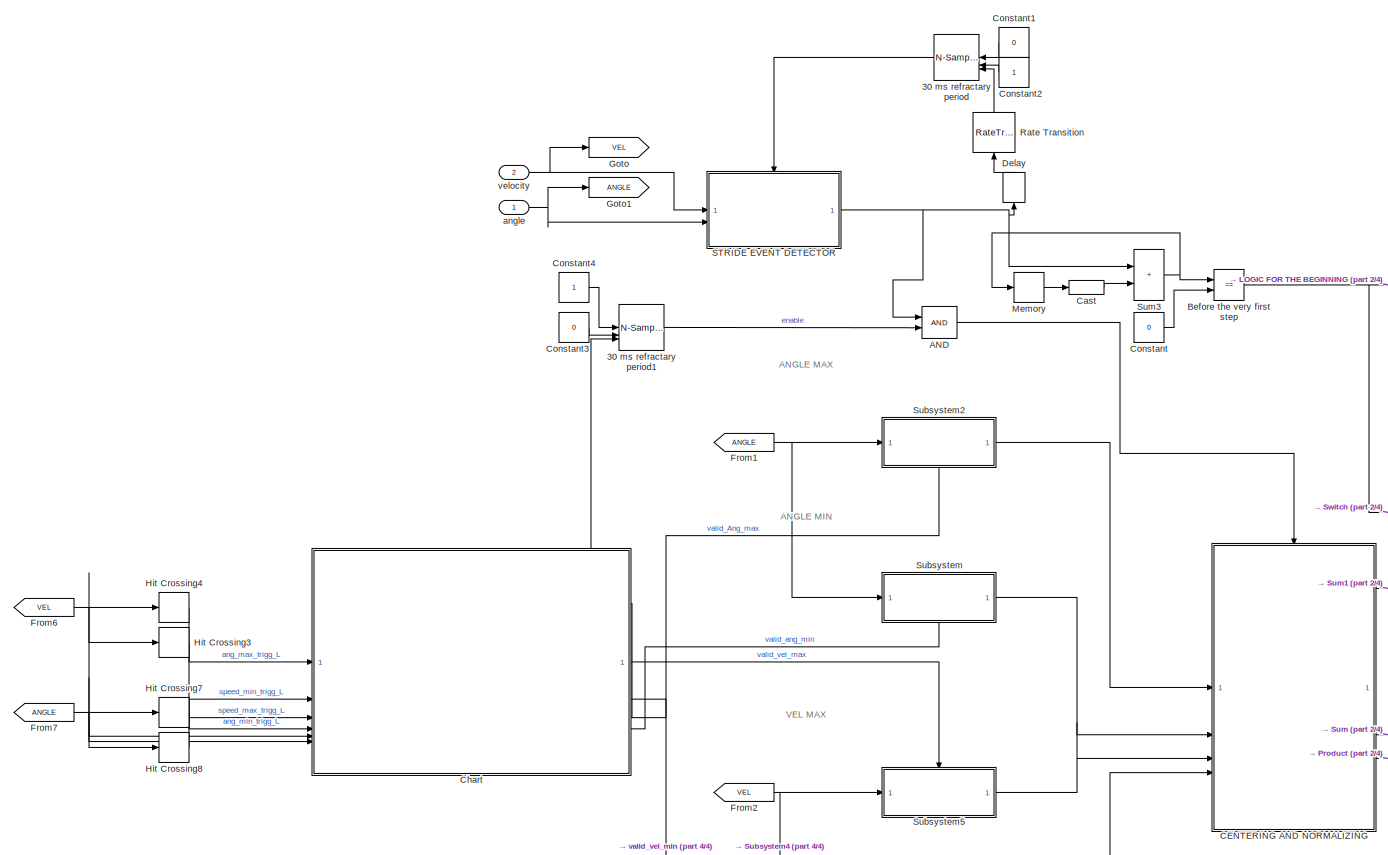
[diagram: LEFT LEG/GAIT PHASE BLOCK - part 1/4, left side, full height]
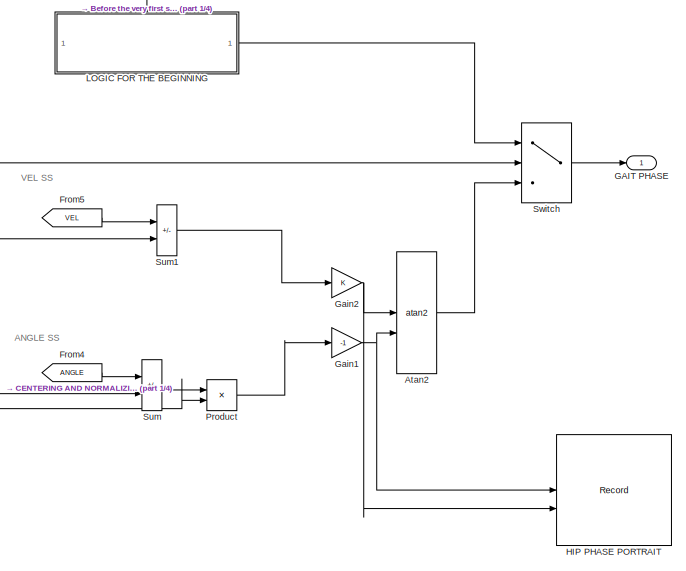
[diagram: LEFT LEG/GAIT PHASE BLOCK - part 2/4, middle right region]
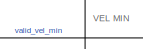
[diagram: LEFT LEG/GAIT PHASE BLOCK - part 3/4, bottom center region]
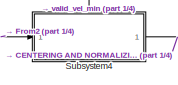
[diagram: LEFT LEG/GAIT PHASE BLOCK - part 4/4, bottom center region]
BLOCK [SubSystem] LEFT LEG/GAIT PHASE BLOCK
BLOCK [Reference] LEFT LEG/GAIT PHASE BLOCK/30 ms refractary period  REF=dspswit3/N-Sample
Switch
  NameLocation = top
  SourceBlock = dspswit3/N-Sample\nSwitch
  SourceType = N-Sample Switch
BLOCK [Reference] LEFT LEG/GAIT PHASE BLOCK/30 ms refractary period1  REF=dspswit3/N-Sample
Switch
  SourceBlock = dspswit3/N-Sample\nSwitch
  SourceType = N-Sample Switch
BLOCK [Logic] LEFT LEG/GAIT PHASE BLOCK/AND
  AllPortsSameDT = off
  IconShape = distinctive
  OutDataTypeStr = boolean
BLOCK [Trigonometry] LEFT LEG/GAIT PHASE BLOCK/Atan2
  NumberOfIterations = 5
  Operator = atan2
BLOCK [RelationalOperator] LEFT LEG/GAIT PHASE BLOCK/Before the very first step
  InputSameDT = off
  Operator = ==
  OutDataTypeStr = boolean
  RndMeth = Simplest
BLOCK [SubSystem] LEFT LEG/GAIT PHASE BLOCK/CENTERING AND NORMALIZING
BLOCK [Abs] LEFT LEG/GAIT PHASE BLOCK/CENTERING AND NORMALIZING/Abs
  SaturateOnIntegerOverflow = off
BLOCK [Abs] LEFT LEG/GAIT PHASE BLOCK/CENTERING AND NORMALIZING/Abs1
  SaturateOnIntegerOverflow = off
BLOCK [Inport] LEFT LEG/GAIT PHASE BLOCK/CENTERING AND NORMALIZING/Angle max
BLOCK [Inport] LEFT LEG/GAIT PHASE BLOCK/CENTERING AND NORMALIZING/Angle min
  Port = 2
BLOCK [Outport] LEFT LEG/GAIT PHASE BLOCK/CENTERING AND NORMALIZING/Center angle
  Port = 2
BLOCK [Outport] LEFT LEG/GAIT PHASE BLOCK/CENTERING AND NORMALIZING/Center vel
BLOCK [Constant] LEFT LEG/GAIT PHASE BLOCK/CENTERING AND NORMALIZING/Constant
  Value = 0.5
BLOCK [Constant] LEFT LEG/GAIT PHASE BLOCK/CENTERING AND NORMALIZING/Constant1
  Value = 0.5
BLOCK [Product] LEFT LEG/GAIT PHASE BLOCK/CENTERING AND NORMALIZING/Divide
  Inputs = /*
BLOCK [Outport] LEFT LEG/GAIT PHASE BLOCK/CENTERING AND NORMALIZING/Gamma
  Port = 3
BLOCK [Product] LEFT LEG/GAIT PHASE BLOCK/CENTERING AND NORMALIZING/Product
BLOCK [Product] LEFT LEG/GAIT PHASE BLOCK/CENTERING AND NORMALIZING/Product1
BLOCK [Sum] LEFT LEG/GAIT PHASE BLOCK/CENTERING AND NORMALIZING/Sum
  IconShape = rectangular
BLOCK [Sum] LEFT LEG/GAIT PHASE BLOCK/CENTERING AND NORMALIZING/Sum1
  IconShape = rectangular
BLOCK [Sum] LEFT LEG/GAIT PHASE BLOCK/CENTERING AND NORMALIZING/Sum2
  IconShape = rectangular
  Inputs = +-
BLOCK [Sum] LEFT LEG/GAIT PHASE BLOCK/CENTERING AND NORMALIZING/Sum3
  IconShape = rectangular
  Inputs = +-
BLOCK [Switch] LEFT LEG/GAIT PHASE BLOCK/CENTERING AND NORMALIZING/Switch
  Criteria = u2 > Threshold
  InputSameDT = off
  SaturateOnIntegerOverflow = off
BLOCK [TriggerPort] LEFT LEG/GAIT PHASE BLOCK/CENTERING AND NORMALIZING/Trigger
  PortDimensions = 1
  StatesWhenEnabling = held
  VariantControl = (inherit)
BLOCK [Inport] LEFT LEG/GAIT PHASE BLOCK/CENTERING AND NORMALIZING/Vel max
  Port = 3
BLOCK [Inport] LEFT LEG/GAIT PHASE BLOCK/CENTERING AND NORMALIZING/Vel min
  Port = 4
BLOCK [DataTypeConversion] LEFT LEG/GAIT PHASE BLOCK/Cast
  OutDataTypeStr = boolean
  RndMeth = Floor
  SaturateOnIntegerOverflow = off
BLOCK [SubSystem] LEFT LEG/GAIT PHASE BLOCK/Chart
  ErrorFcn = Stateflow.Translate.translate
  PermitHierarchicalResolution = ExplicitOnly
  PortSchema = {"entries":[{"content":{"sides":[{"content":{"connectorIds":["In5","In1","In4","In6","In3","In2"]},"type":"ConnectorPlacement.EquallySpacedRectSide","uuid":"1b4e9464-0c1b-4aef-9691-eb83c0a92a72"},{"content":{"connectorIds":["Out3","Out4","Out2","Out1"],"side":"RIGHT"},"type":"ConnectorPlacement.EquallySpacedRectSide","uuid":"791196f6-4c97-40a1-8015-a03f83b94293"},{"content":{"side":"TOP"},"type":"...<+273ch>
  SFBlockType = Chart
  TreatAsAtomicUnit = on
BLOCK [Demux] LEFT LEG/GAIT PHASE BLOCK/Chart/ Demux 
  Outputs = 1
BLOCK [S-Function] LEFT LEG/GAIT PHASE BLOCK/Chart/ SFunction 
  EnableBusSupport = on
  FunctionName = sf_sfun
  Parameters = 0,60
  PortCounts = [6 5]
  SFcnIsStateOwnerBlock = off
  SFunctionDeploymentMode = off
  Tag = Stateflow S-Function 11
BLOCK [Terminator] LEFT LEG/GAIT PHASE BLOCK/Chart/ Terminator 
BLOCK [Inport] LEFT LEG/GAIT PHASE BLOCK/Chart/ang_max
BLOCK [Inport] LEFT LEG/GAIT PHASE BLOCK/Chart/ang_min
  Port = 4
BLOCK [Inport] LEFT LEG/GAIT PHASE BLOCK/Chart/angle
  Port = 6
BLOCK [Outport] LEFT LEG/GAIT PHASE BLOCK/Chart/valid_ang_max
  Port = 3
BLOCK [Outport] LEFT LEG/GAIT PHASE BLOCK/Chart/valid_ang_min
  Port = 4
BLOCK [Outport] LEFT LEG/GAIT PHASE BLOCK/Chart/valid_vel_max
BLOCK [Outport] LEFT LEG/GAIT PHASE BLOCK/Chart/valid_vel_min
  Port = 2
BLOCK [Inport] LEFT LEG/GAIT PHASE BLOCK/Chart/vel
  Port = 5
BLOCK [Inport] LEFT LEG/GAIT PHASE BLOCK/Chart/vel_max
  Port = 3
BLOCK [Inport] LEFT LEG/GAIT PHASE BLOCK/Chart/vel_min
  Port = 2
BLOCK [Constant] LEFT LEG/GAIT PHASE BLOCK/Constant
  Value = 0
BLOCK [Constant] LEFT LEG/GAIT PHASE BLOCK/Constant1
  NameLocation = top
  Value = 0
BLOCK [Constant] LEFT LEG/GAIT PHASE BLOCK/Constant2
  NameLocation = top
BLOCK [Constant] LEFT LEG/GAIT PHASE BLOCK/Constant3
  Value = 0
BLOCK [Constant] LEFT LEG/GAIT PHASE BLOCK/Constant4
BLOCK [Delay] LEFT LEG/GAIT PHASE BLOCK/Delay
  DelayLength = 1
  InputPortMap = u0
  NameLocation = right
BLOCK [From] LEFT LEG/GAIT PHASE BLOCK/From1
  GotoTag = ANGLE
BLOCK [From] LEFT LEG/GAIT PHASE BLOCK/From2
  GotoTag = VEL
BLOCK [From] LEFT LEG/GAIT PHASE BLOCK/From4
  GotoTag = ANGLE
BLOCK [From] LEFT LEG/GAIT PHASE BLOCK/From5
  GotoTag = VEL
BLOCK [From] LEFT LEG/GAIT PHASE BLOCK/From6
  GotoTag = VEL
BLOCK [From] LEFT LEG/GAIT PHASE BLOCK/From7
  GotoTag = ANGLE
BLOCK [Outport] LEFT LEG/GAIT PHASE BLOCK/GAIT PHASE
BLOCK [Gain] LEFT LEG/GAIT PHASE BLOCK/Gain1
  Gain = -1
BLOCK [Gain] LEFT LEG/GAIT PHASE BLOCK/Gain2
BLOCK [Goto] LEFT LEG/GAIT PHASE BLOCK/Goto
  GotoTag = VEL
BLOCK [Goto] LEFT LEG/GAIT PHASE BLOCK/Goto1
  GotoTag = ANGLE
BLOCK [Record] LEFT LEG/GAIT PHASE BLOCK/HIP PHASE PORTRAIT
  CompatibilityTag = XY
  FileSettingsInternal = {"entries":[{"content":{"excelSettings":{"content":{},"type":"Streamout.ExcelSettings"}},"type":"Streamout.FileSettingStorage","uuid":""}],"packageUris":["http:\/\/schema.mathworks.com\/mf0\/streamout_blocks\/R2020a"],"version":"1.0"}
  Layout = [1 1]
  SignalsInternal = {"entries":[{"content":{"signals":[{"content":{"blockPath":[],"dimensions":[1],"domain":"","lineColor":"#0072bd","lineWidth":2,"port":1,"sid":[""],"signalID":1,"signalName":"Gain1"},"type":"RecordBlkView.Signal","uuid":""},{"content":{"blockPath":[],"dimensions":[1],"domain":"","lineColor":"#d95319","lineWidth":2,"port":2,"sid":[""],"signalID":2,"signalName":"Gain2"},"type":"RecordBlkView.Signal",...<+156ch>
  VisualizationBindings = {"xyplotplugin":{"info":[{"series":[],"subplotID":1}]}}
BLOCK [HitCross] LEFT LEG/GAIT PHASE BLOCK/Hit Crossing3
  HitCrossingDirection = rising
BLOCK [HitCross] LEFT LEG/GAIT PHASE BLOCK/Hit Crossing4
  HitCrossingDirection = falling
BLOCK [HitCross] LEFT LEG/GAIT PHASE BLOCK/Hit Crossing7
  HitCrossingDirection = rising
BLOCK [HitCross] LEFT LEG/GAIT PHASE BLOCK/Hit Crossing8
  HitCrossingDirection = falling
BLOCK [SubSystem] LEFT LEG/GAIT PHASE BLOCK/LOGIC FOR THE BEGINNING
BLOCK [Constant] LEFT LEG/GAIT PHASE BLOCK/LOGIC FOR THE BEGINNING/Constant
  Value = 0
BLOCK [EnablePort] LEFT LEG/GAIT PHASE BLOCK/LOGIC FOR THE BEGINNING/Enable
BLOCK [Outport] LEFT LEG/GAIT PHASE BLOCK/LOGIC FOR THE BEGINNING/Phase to zero
BLOCK [Memory] LEFT LEG/GAIT PHASE BLOCK/Memory
BLOCK [Product] LEFT LEG/GAIT PHASE BLOCK/Product
BLOCK [RateTransition] LEFT LEG/GAIT PHASE BLOCK/Rate Transition
  NameLocation = right
  OutPortSampleTime = 0.01
BLOCK [SubSystem] LEFT LEG/GAIT PHASE BLOCK/STRIDE EVENT DETECTOR
BLOCK [Logic] LEFT LEG/GAIT PHASE BLOCK/STRIDE EVENT DETECTOR/AND
  AllPortsSameDT = off
  IconShape = distinctive
  OutDataTypeStr = boolean
BLOCK [EnablePort] LEFT LEG/GAIT PHASE BLOCK/STRIDE EVENT DETECTOR/Enable
BLOCK [HitCross] LEFT LEG/GAIT PHASE BLOCK/STRIDE EVENT DETECTOR/Hit Crossing5
  HitCrossingDirection = falling
  HitCrossingOffset = -0.1
BLOCK [Inport] LEFT LEG/GAIT PHASE BLOCK/STRIDE EVENT DETECTOR/In1
BLOCK [Outport] LEFT LEG/GAIT PHASE BLOCK/STRIDE EVENT DETECTOR/Out1
BLOCK [RelationalOperator] LEFT LEG/GAIT PHASE BLOCK/STRIDE EVENT DETECTOR/Relational Operator
  InputSameDT = off
  OutDataTypeStr = boolean
  RndMeth = Simplest
BLOCK [Inport] LEFT LEG/GAIT PHASE BLOCK/STRIDE EVENT DETECTOR/angle
  Port = 2
BLOCK [Constant] LEFT LEG/GAIT PHASE BLOCK/STRIDE EVENT DETECTOR/~5 degrees
  Value = 0.08
BLOCK [SubSystem] LEFT LEG/GAIT PHASE BLOCK/Subsystem
BLOCK [Outport] LEFT LEG/GAIT PHASE BLOCK/Subsystem/Angle min
BLOCK [Inport] LEFT LEG/GAIT PHASE BLOCK/Subsystem/Input
BLOCK [TriggerPort] LEFT LEG/GAIT PHASE BLOCK/Subsystem/Trigger
  PortDimensions = 1
  StatesWhenEnabling = held
  VariantControl = Variant
BLOCK [SubSystem] LEFT LEG/GAIT PHASE BLOCK/Subsystem2
BLOCK [Outport] LEFT LEG/GAIT PHASE BLOCK/Subsystem2/Angle max
BLOCK [Inport] LEFT LEG/GAIT PHASE BLOCK/Subsystem2/Input
BLOCK [TriggerPort] LEFT LEG/GAIT PHASE BLOCK/Subsystem2/Trigger
  PortDimensions = 1
  StatesWhenEnabling = held
  VariantControl = Variant
BLOCK [SubSystem] LEFT LEG/GAIT PHASE BLOCK/Subsystem4
BLOCK [Inport] LEFT LEG/GAIT PHASE BLOCK/Subsystem4/Input
BLOCK [TriggerPort] LEFT LEG/GAIT PHASE BLOCK/Subsystem4/Trigger
  PortDimensions = 1
  StatesWhenEnabling = held
  VariantControl = Variant
BLOCK [Outport] LEFT LEG/GAIT PHASE BLOCK/Subsystem4/Vel min
BLOCK [SubSystem] LEFT LEG/GAIT PHASE BLOCK/Subsystem5
BLOCK [Inport] LEFT LEG/GAIT PHASE BLOCK/Subsystem5/Input
BLOCK [TriggerPort] LEFT LEG/GAIT PHASE BLOCK/Subsystem5/Trigger
  PortDimensions = 1
  StatesWhenEnabling = held
  VariantControl = Variant
BLOCK [Outport] LEFT LEG/GAIT PHASE BLOCK/Subsystem5/Vel max
BLOCK [Sum] LEFT LEG/GAIT PHASE BLOCK/Sum
  IconShape = rectangular
  Inputs = +-
BLOCK [Sum] LEFT LEG/GAIT PHASE BLOCK/Sum1
  IconShape = rectangular
  Inputs = +-
BLOCK [Sum] LEFT LEG/GAIT PHASE BLOCK/Sum3
  IconShape = rectangular
BLOCK [Switch] LEFT LEG/GAIT PHASE BLOCK/Switch
  InputSameDT = off
  SaturateOnIntegerOverflow = off
  Threshold = 1
BLOCK [Inport] LEFT LEG/GAIT PHASE BLOCK/angle
BLOCK [Inport] LEFT LEG/GAIT PHASE BLOCK/velocity
  Port = 2
BLOCK [Inport] LEFT LEG/HIP ANGLE
BLOCK [Inport] LEFT LEG/HIP VELOCITY
  Port = 2
BLOCK [Constant] LEFT LEG/Lag compensation
  Value = LAG
BLOCK [SubSystem] LEFT LEG/MOTOR POSITION REFERENCE GENERATOR
BLOCK [Inport] LEFT LEG/MOTOR POSITION REFERENCE GENERATOR/AMPLITUDE
  Port = 3
BLOCK [Inport] LEFT LEG/MOTOR POSITION REFERENCE GENERATOR/GAIT PHASE
BLOCK [Gain] LEFT LEG/MOTOR POSITION REFERENCE GENERATOR/Gain
  Gain = -1
BLOCK [Inport] LEFT LEG/MOTOR POSITION REFERENCE GENERATOR/LAG COMPENSATION
  Port = 2
BLOCK [Lookup_n-D] LEFT LEG/MOTOR POSITION REFERENCE GENERATOR/Motion mapping2
  BreakpointsForDimension1 = [-1, -0.8, -0.6, -0.4, -0.2, -0.1, 0, 0.1, 0.2, 0.4, 0.6, 0.8, 1]
  BreakpointsForDimension2 = qbreak(:,2)
  ExtrapMethod = Cubic spline
  InputPortMap = u0
  InternalRulePriority = Speed
  InterpMethod = Cubic spline
  NumberOfTableDimensions = 1
  RndMeth = Simplest
  Table = [-1, -0.8, -0.6, -0.4, -0.2, -0.1, 0, 0, 0.005, 0.01, 0.015,0.02,0.025]
BLOCK [Sum] LEFT LEG/MOTOR POSITION REFERENCE GENERATOR/Plus
  IconShape = rectangular
BLOCK [Product] LEFT LEG/MOTOR POSITION REFERENCE GENERATOR/Product
BLOCK [RateTransition] LEFT LEG/MOTOR POSITION REFERENCE GENERATOR/Rate Transition
  OutPortSampleTime = 0.01
BLOCK [Outport] LEFT LEG/MOTOR POSITION REFERENCE GENERATOR/Ref motion
BLOCK [Reference] LEFT LEG/MOTOR POSITION REFERENCE GENERATOR/Ref traj w// noise  REF=ctrlSharedLib/Kalman Filter
  Commented = on
  LibrarySourceBlock = cstblocks/State Estimation/Kalman Filter
  SourceBlock = ctrlSharedLib/Kalman Filter
  SourceType = ctrlKalmanFilter
BLOCK [Saturate] LEFT LEG/MOTOR POSITION REFERENCE GENERATOR/Saturation
  LowerLimit = -600*pi/180
  UpperLimit = 600*pi/180
BLOCK [Trigonometry] LEFT LEG/MOTOR POSITION REFERENCE GENERATOR/Sin1
BLOCK [Outport] LEFT LEG/REF MOTION
BLOCK [Constant] LEFT LEG/Reference amplitude
  Value = AMPL
BLOCK [Constant] LEFT LEG/Sigmoid Power
  Value = SIG_POWER
BLOCK [SubSystem] LEFT LEG/Subsystem
BLOCK [Inport] LEFT LEG/Subsystem/Angle estimation
BLOCK [DataTypeConversion] LEFT LEG/Subsystem/Cast To Double
  OutDataTypeStr = double
  RndMeth = Floor
  SaturateOnIntegerOverflow = off
BLOCK [SubSystem] LEFT LEG/Subsystem/Chart1
  ErrorFcn = Stateflow.Translate.translate
  PermitHierarchicalResolution = ExplicitOnly
  SFBlockType = Chart
  TreatAsAtomicUnit = on
BLOCK [Demux] LEFT LEG/Subsystem/Chart1/ Demux 
  Outputs = 1
BLOCK [S-Function] LEFT LEG/Subsystem/Chart1/ SFunction 
  EnableBusSupport = on
  FunctionName = sf_sfun
  PortCounts = [4 4]
  SFcnIsStateOwnerBlock = off
  SFunctionDeploymentMode = off
  Tag = Stateflow S-Function 4
BLOCK [Terminator] LEFT LEG/Subsystem/Chart1/ Terminator 
BLOCK [Inport] LEFT LEG/Subsystem/Chart1/Scale_LM
  Port = 4
BLOCK [Inport] LEFT LEG/Subsystem/Chart1/amplitude
  Port = 2
BLOCK [Inport] LEFT LEG/Subsystem/Chart1/class
BLOCK [Outport] LEFT LEG/Subsystem/Chart1/gain
  Port = 2
BLOCK [Outport] LEFT LEG/Subsystem/Chart1/scale
BLOCK [Inport] LEFT LEG/Subsystem/Chart1/sig_power
  Port = 3
BLOCK [Outport] LEFT LEG/Subsystem/Chart1/sigmoid_power
  Port = 3
BLOCK [Constant] LEFT LEG/Subsystem/Constant
BLOCK [Outport] LEFT LEG/Subsystem/Out1
BLOCK [Product] LEFT LEG/Subsystem/Product
BLOCK [Product] LEFT LEG/Subsystem/Product1
BLOCK [Inport] LEFT LEG/Subsystem/Ref amplitude
  Port = 4
BLOCK [SubSystem] LEFT LEG/Subsystem/SIGMOID SCALING
BLOCK [Constant] LEFT LEG/Subsystem/SIGMOID SCALING/Constant2
BLOCK [Product] LEFT LEG/Subsystem/SIGMOID SCALING/Divide
  Inputs = */
BLOCK [Outport] LEFT LEG/Subsystem/SIGMOID SCALING/Out1
BLOCK [Inport] LEFT LEG/Subsystem/SIGMOID SCALING/PORTRAIT RADIUS
BLOCK [Math] LEFT LEG/Subsystem/SIGMOID SCALING/Power
  Operator = pow
BLOCK [Saturate] LEFT LEG/Subsystem/SIGMOID SCALING/Scale to 1
  LowerLimit = 0
  UpperLimit = 1
BLOCK [Inport] LEFT LEG/Subsystem/SIGMOID SCALING/Sigmoid Power
  Port = 2
BLOCK [Sum] LEFT LEG/Subsystem/SIGMOID SCALING/Sum1
  IconShape = rectangular
BLOCK [Sqrt] LEFT LEG/Subsystem/Sqrt
BLOCK [Math] LEFT LEG/Subsystem/Square
  Operator = square
BLOCK [Math] LEFT LEG/Subsystem/Square1
  Operator = square
BLOCK [Sum] LEFT LEG/Subsystem/Sum
  IconShape = rectangular
BLOCK [Inport] LEFT LEG/Subsystem/Velocity surrogate (quarature component)
  Port = 2
BLOCK [Inport] LEFT LEG/Subsystem/classif
  Port = 3
BLOCK [Inport] LEFT LEG/Subsystem/sig_power
  Port = 5
BLOCK [Inport] LEFT LEG/classif
  Port = 3
BLOCK [Reference] N-Sample Switch1  REF=dspswit3/N-Sample
Switch
  Commented = on
  SourceBlock = dspswit3/N-Sample\nSwitch
  SourceType = N-Sample Switch
BLOCK [Logic] NOT
  AllPortsSameDT = off
  Commented = on
  IconShape = distinctive
  Operator = NOT
  OutDataTypeStr = boolean
BLOCK [Logic] NOT1
  AllPortsSameDT = off
  Commented = on
  IconShape = distinctive
  Operator = NOT
  OutDataTypeStr = boolean
BLOCK [SubSystem] RIGHT LEG
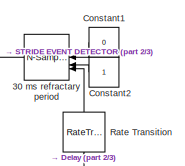
[diagram: RIGHT LEG/GAIT PHASE BLOCK - part 1/3, top center region]
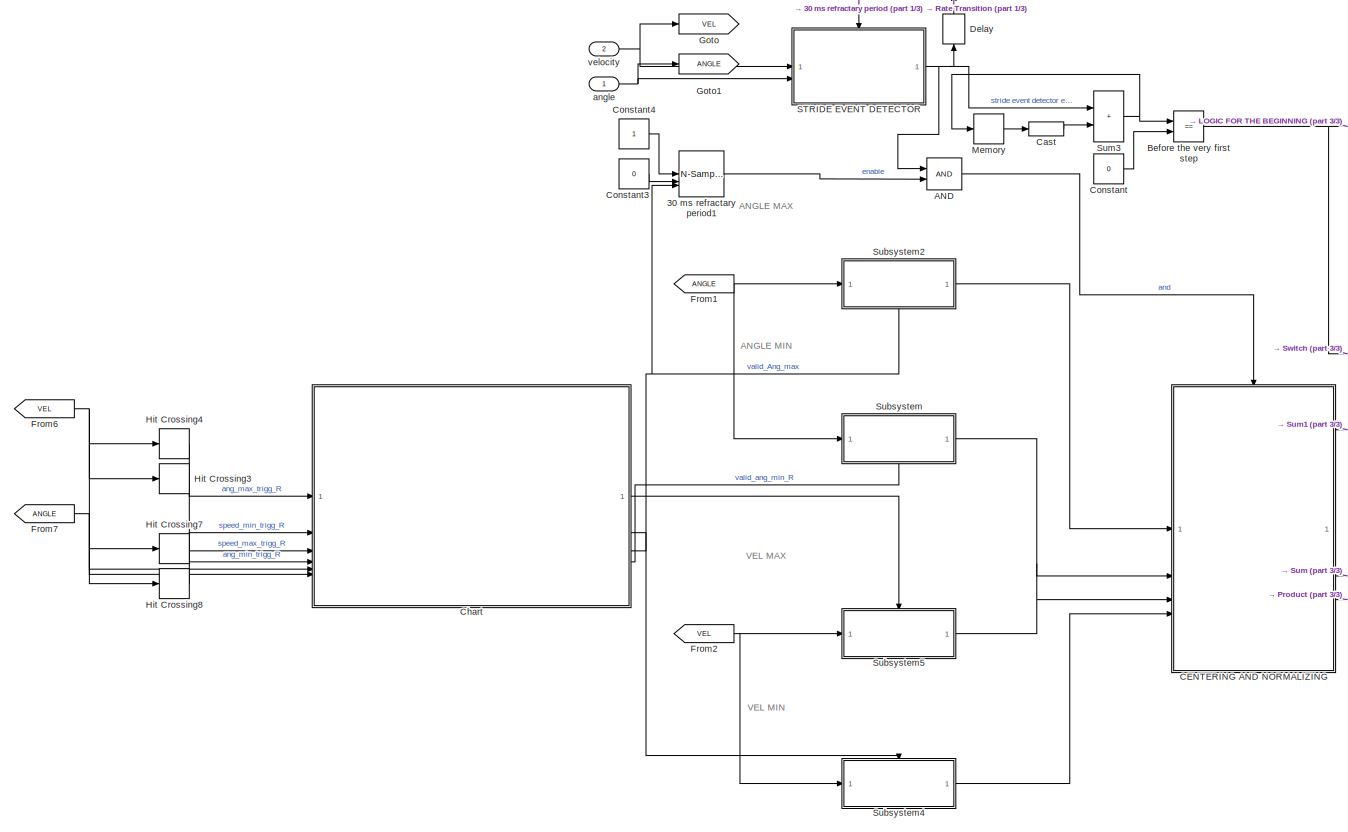
[diagram: RIGHT LEG/GAIT PHASE BLOCK - part 2/3, left side, full height]
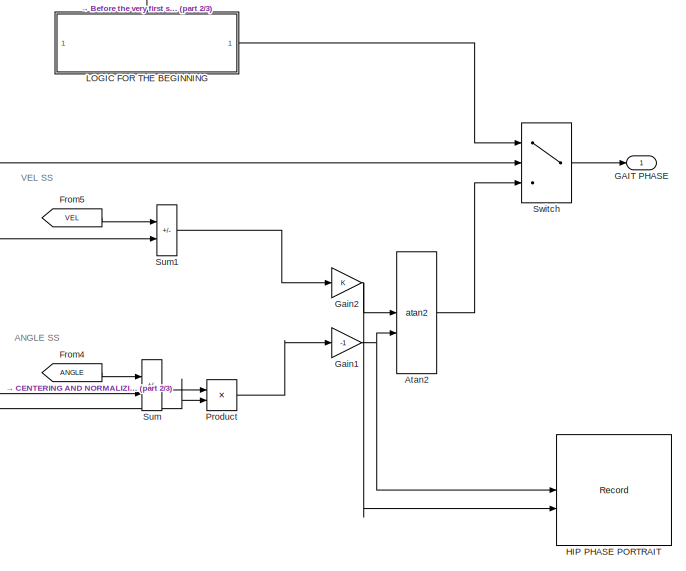
[diagram: RIGHT LEG/GAIT PHASE BLOCK - part 3/3, middle right region]
BLOCK [SubSystem] RIGHT LEG/GAIT PHASE BLOCK
BLOCK [Reference] RIGHT LEG/GAIT PHASE BLOCK/30 ms refractary period  REF=dspswit3/N-Sample
Switch
  NameLocation = top
  SourceBlock = dspswit3/N-Sample\nSwitch
  SourceType = N-Sample Switch
BLOCK [Reference] RIGHT LEG/GAIT PHASE BLOCK/30 ms refractary period1  REF=dspswit3/N-Sample
Switch
  SourceBlock = dspswit3/N-Sample\nSwitch
  SourceType = N-Sample Switch
BLOCK [Logic] RIGHT LEG/GAIT PHASE BLOCK/AND
  AllPortsSameDT = off
  IconShape = distinctive
  OutDataTypeStr = boolean
BLOCK [Trigonometry] RIGHT LEG/GAIT PHASE BLOCK/Atan2
  NumberOfIterations = 5
  Operator = atan2
BLOCK [RelationalOperator] RIGHT LEG/GAIT PHASE BLOCK/Before the very first step
  InputSameDT = off
  Operator = ==
  OutDataTypeStr = boolean
  RndMeth = Simplest
BLOCK [SubSystem] RIGHT LEG/GAIT PHASE BLOCK/CENTERING AND NORMALIZING
BLOCK [Abs] RIGHT LEG/GAIT PHASE BLOCK/CENTERING AND NORMALIZING/Abs
  SaturateOnIntegerOverflow = off
BLOCK [Abs] RIGHT LEG/GAIT PHASE BLOCK/CENTERING AND NORMALIZING/Abs1
  SaturateOnIntegerOverflow = off
BLOCK [Inport] RIGHT LEG/GAIT PHASE BLOCK/CENTERING AND NORMALIZING/Angle max
BLOCK [Inport] RIGHT LEG/GAIT PHASE BLOCK/CENTERING AND NORMALIZING/Angle min
  Port = 2
BLOCK [Outport] RIGHT LEG/GAIT PHASE BLOCK/CENTERING AND NORMALIZING/Center angle
  Port = 2
BLOCK [Outport] RIGHT LEG/GAIT PHASE BLOCK/CENTERING AND NORMALIZING/Center vel
BLOCK [Constant] RIGHT LEG/GAIT PHASE BLOCK/CENTERING AND NORMALIZING/Constant
  Value = 0.5
BLOCK [Constant] RIGHT LEG/GAIT PHASE BLOCK/CENTERING AND NORMALIZING/Constant1
  Value = 0.5
BLOCK [Product] RIGHT LEG/GAIT PHASE BLOCK/CENTERING AND NORMALIZING/Divide
  Inputs = /*
BLOCK [Outport] RIGHT LEG/GAIT PHASE BLOCK/CENTERING AND NORMALIZING/Gamma
  Port = 3
BLOCK [Product] RIGHT LEG/GAIT PHASE BLOCK/CENTERING AND NORMALIZING/Product
BLOCK [Product] RIGHT LEG/GAIT PHASE BLOCK/CENTERING AND NORMALIZING/Product1
BLOCK [Sum] RIGHT LEG/GAIT PHASE BLOCK/CENTERING AND NORMALIZING/Sum
  IconShape = rectangular
BLOCK [Sum] RIGHT LEG/GAIT PHASE BLOCK/CENTERING AND NORMALIZING/Sum1
  IconShape = rectangular
BLOCK [Sum] RIGHT LEG/GAIT PHASE BLOCK/CENTERING AND NORMALIZING/Sum2
  IconShape = rectangular
  Inputs = +-
BLOCK [Sum] RIGHT LEG/GAIT PHASE BLOCK/CENTERING AND NORMALIZING/Sum3
  IconShape = rectangular
  Inputs = +-
BLOCK [Switch] RIGHT LEG/GAIT PHASE BLOCK/CENTERING AND NORMALIZING/Switch
  Criteria = u2 > Threshold
  InputSameDT = off
  SaturateOnIntegerOverflow = off
BLOCK [TriggerPort] RIGHT LEG/GAIT PHASE BLOCK/CENTERING AND NORMALIZING/Trigger
  PortDimensions = 1
  StatesWhenEnabling = held
  VariantControl = (inherit)
BLOCK [Inport] RIGHT LEG/GAIT PHASE BLOCK/CENTERING AND NORMALIZING/Vel max
  Port = 3
BLOCK [Inport] RIGHT LEG/GAIT PHASE BLOCK/CENTERING AND NORMALIZING/Vel min
  Port = 4
BLOCK [DataTypeConversion] RIGHT LEG/GAIT PHASE BLOCK/Cast
  OutDataTypeStr = boolean
  RndMeth = Floor
  SaturateOnIntegerOverflow = off
BLOCK [SubSystem] RIGHT LEG/GAIT PHASE BLOCK/Chart
  ErrorFcn = Stateflow.Translate.translate
  PermitHierarchicalResolution = ExplicitOnly
  PortSchema = {"entries":[{"content":{"sides":[{"content":{"connectorIds":["In5","In1","In4","In6","In3","In2"]},"type":"ConnectorPlacement.EquallySpacedRectSide","uuid":"1b4e9464-0c1b-4aef-9691-eb83c0a92a72"},{"content":{"connectorIds":["Out3","Out4","Out2","Out1"],"side":"RIGHT"},"type":"ConnectorPlacement.EquallySpacedRectSide","uuid":"791196f6-4c97-40a1-8015-a03f83b94293"},{"content":{"side":"TOP"},"type":"...<+273ch>
  SFBlockType = Chart
  TreatAsAtomicUnit = on
BLOCK [Demux] RIGHT LEG/GAIT PHASE BLOCK/Chart/ Demux 
  Outputs = 1
BLOCK [S-Function] RIGHT LEG/GAIT PHASE BLOCK/Chart/ SFunction 
  EnableBusSupport = on
  FunctionName = sf_sfun
  Parameters = 0,60
  PortCounts = [6 5]
  SFcnIsStateOwnerBlock = off
  SFunctionDeploymentMode = off
  Tag = Stateflow S-Function 12
BLOCK [Terminator] RIGHT LEG/GAIT PHASE BLOCK/Chart/ Terminator 
BLOCK [Inport] RIGHT LEG/GAIT PHASE BLOCK/Chart/ang_max
BLOCK [Inport] RIGHT LEG/GAIT PHASE BLOCK/Chart/ang_min
  Port = 4
BLOCK [Inport] RIGHT LEG/GAIT PHASE BLOCK/Chart/angle
  Port = 6
BLOCK [Outport] RIGHT LEG/GAIT PHASE BLOCK/Chart/valid_ang_max
  Port = 3
BLOCK [Outport] RIGHT LEG/GAIT PHASE BLOCK/Chart/valid_ang_min
  Port = 4
BLOCK [Outport] RIGHT LEG/GAIT PHASE BLOCK/Chart/valid_vel_max
BLOCK [Outport] RIGHT LEG/GAIT PHASE BLOCK/Chart/valid_vel_min
  Port = 2
BLOCK [Inport] RIGHT LEG/GAIT PHASE BLOCK/Chart/vel
  Port = 5
BLOCK [Inport] RIGHT LEG/GAIT PHASE BLOCK/Chart/vel_max
  Port = 3
BLOCK [Inport] RIGHT LEG/GAIT PHASE BLOCK/Chart/vel_min
  Port = 2
BLOCK [Constant] RIGHT LEG/GAIT PHASE BLOCK/Constant
  Value = 0
BLOCK [Constant] RIGHT LEG/GAIT PHASE BLOCK/Constant1
  NameLocation = top
  Value = 0
BLOCK [Constant] RIGHT LEG/GAIT PHASE BLOCK/Constant2
  NameLocation = top
BLOCK [Constant] RIGHT LEG/GAIT PHASE BLOCK/Constant3
  Value = 0
BLOCK [Constant] RIGHT LEG/GAIT PHASE BLOCK/Constant4
BLOCK [Delay] RIGHT LEG/GAIT PHASE BLOCK/Delay
  DelayLength = 1
  InputPortMap = u0
  NameLocation = right
BLOCK [From] RIGHT LEG/GAIT PHASE BLOCK/From1
  GotoTag = ANGLE
BLOCK [From] RIGHT LEG/GAIT PHASE BLOCK/From2
  GotoTag = VEL
BLOCK [From] RIGHT LEG/GAIT PHASE BLOCK/From4
  GotoTag = ANGLE
BLOCK [From] RIGHT LEG/GAIT PHASE BLOCK/From5
  GotoTag = VEL
BLOCK [From] RIGHT LEG/GAIT PHASE BLOCK/From6
  GotoTag = VEL
BLOCK [From] RIGHT LEG/GAIT PHASE BLOCK/From7
  GotoTag = ANGLE
BLOCK [Outport] RIGHT LEG/GAIT PHASE BLOCK/GAIT PHASE
BLOCK [Gain] RIGHT LEG/GAIT PHASE BLOCK/Gain1
  Gain = -1
BLOCK [Gain] RIGHT LEG/GAIT PHASE BLOCK/Gain2
BLOCK [Goto] RIGHT LEG/GAIT PHASE BLOCK/Goto
  GotoTag = VEL
BLOCK [Goto] RIGHT LEG/GAIT PHASE BLOCK/Goto1
  GotoTag = ANGLE
BLOCK [Record] RIGHT LEG/GAIT PHASE BLOCK/HIP PHASE PORTRAIT
  CompatibilityTag = XY
  FileSettingsInternal = {"entries":[{"content":{"excelSettings":{"content":{},"type":"Streamout.ExcelSettings"}},"type":"Streamout.FileSettingStorage","uuid":""}],"packageUris":["http:\/\/schema.mathworks.com\/mf0\/streamout_blocks\/R2020a"],"version":"1.0"}
  Layout = [1 1]
  SignalsInternal = {"entries":[{"content":{"signals":[{"content":{"blockPath":[],"dimensions":[1],"domain":"","lineColor":"#7e2f8e","lineWidth":2,"port":1,"sid":[""],"signalID":1,"signalName":"Gain1"},"type":"RecordBlkView.Signal","uuid":""},{"content":{"blockPath":[],"dimensions":[1],"domain":"","lineColor":"#77ac30","lineWidth":2,"port":2,"sid":[""],"signalID":2,"signalName":"Gain2"},"type":"RecordBlkView.Signal",...<+156ch>
  VisualizationBindings = {"xyplotplugin":{"info":[{"series":[],"subplotID":1}]}}
BLOCK [HitCross] RIGHT LEG/GAIT PHASE BLOCK/Hit Crossing3
  HitCrossingDirection = rising
BLOCK [HitCross] RIGHT LEG/GAIT PHASE BLOCK/Hit Crossing4
  HitCrossingDirection = falling
BLOCK [HitCross] RIGHT LEG/GAIT PHASE BLOCK/Hit Crossing7
  HitCrossingDirection = rising
BLOCK [HitCross] RIGHT LEG/GAIT PHASE BLOCK/Hit Crossing8
  HitCrossingDirection = falling
BLOCK [SubSystem] RIGHT LEG/GAIT PHASE BLOCK/LOGIC FOR THE BEGINNING
BLOCK [Constant] RIGHT LEG/GAIT PHASE BLOCK/LOGIC FOR THE BEGINNING/Constant
  Value = 0
BLOCK [EnablePort] RIGHT LEG/GAIT PHASE BLOCK/LOGIC FOR THE BEGINNING/Enable
BLOCK [Outport] RIGHT LEG/GAIT PHASE BLOCK/LOGIC FOR THE BEGINNING/Phase to zero
BLOCK [Memory] RIGHT LEG/GAIT PHASE BLOCK/Memory
BLOCK [Product] RIGHT LEG/GAIT PHASE BLOCK/Product
BLOCK [RateTransition] RIGHT LEG/GAIT PHASE BLOCK/Rate Transition
  NameLocation = right
  OutPortSampleTime = 0.01
BLOCK [SubSystem] RIGHT LEG/GAIT PHASE BLOCK/STRIDE EVENT DETECTOR
BLOCK [Logic] RIGHT LEG/GAIT PHASE BLOCK/STRIDE EVENT DETECTOR/AND
  AllPortsSameDT = off
  IconShape = distinctive
  OutDataTypeStr = boolean
BLOCK [EnablePort] RIGHT LEG/GAIT PHASE BLOCK/STRIDE EVENT DETECTOR/Enable
BLOCK [HitCross] RIGHT LEG/GAIT PHASE BLOCK/STRIDE EVENT DETECTOR/Hit Crossing5
  HitCrossingDirection = falling
  HitCrossingOffset = -0.1
BLOCK [Inport] RIGHT LEG/GAIT PHASE BLOCK/STRIDE EVENT DETECTOR/In1
BLOCK [Outport] RIGHT LEG/GAIT PHASE BLOCK/STRIDE EVENT DETECTOR/Out1
BLOCK [RelationalOperator] RIGHT LEG/GAIT PHASE BLOCK/STRIDE EVENT DETECTOR/Relational Operator
  InputSameDT = off
  OutDataTypeStr = boolean
  RndMeth = Simplest
BLOCK [Inport] RIGHT LEG/GAIT PHASE BLOCK/STRIDE EVENT DETECTOR/angle
  Port = 2
BLOCK [Constant] RIGHT LEG/GAIT PHASE BLOCK/STRIDE EVENT DETECTOR/~5 degrees
  Value = 0.08
BLOCK [SubSystem] RIGHT LEG/GAIT PHASE BLOCK/Subsystem
BLOCK [Outport] RIGHT LEG/GAIT PHASE BLOCK/Subsystem/Angle min
BLOCK [Inport] RIGHT LEG/GAIT PHASE BLOCK/Subsystem/Input
BLOCK [TriggerPort] RIGHT LEG/GAIT PHASE BLOCK/Subsystem/Trigger
  PortDimensions = 1
  StatesWhenEnabling = held
  VariantControl = Variant
BLOCK [SubSystem] RIGHT LEG/GAIT PHASE BLOCK/Subsystem2
BLOCK [Outport] RIGHT LEG/GAIT PHASE BLOCK/Subsystem2/Angle max
BLOCK [Inport] RIGHT LEG/GAIT PHASE BLOCK/Subsystem2/Input
BLOCK [TriggerPort] RIGHT LEG/GAIT PHASE BLOCK/Subsystem2/Trigger
  PortDimensions = 1
  StatesWhenEnabling = held
  VariantControl = Variant
BLOCK [SubSystem] RIGHT LEG/GAIT PHASE BLOCK/Subsystem4
BLOCK [Inport] RIGHT LEG/GAIT PHASE BLOCK/Subsystem4/Input
BLOCK [TriggerPort] RIGHT LEG/GAIT PHASE BLOCK/Subsystem4/Trigger
  PortDimensions = 1
  StatesWhenEnabling = held
  VariantControl = Variant
BLOCK [Outport] RIGHT LEG/GAIT PHASE BLOCK/Subsystem4/Vel min
BLOCK [SubSystem] RIGHT LEG/GAIT PHASE BLOCK/Subsystem5
BLOCK [Inport] RIGHT LEG/GAIT PHASE BLOCK/Subsystem5/Input
BLOCK [TriggerPort] RIGHT LEG/GAIT PHASE BLOCK/Subsystem5/Trigger
  PortDimensions = 1
  StatesWhenEnabling = held
  VariantControl = Variant
BLOCK [Outport] RIGHT LEG/GAIT PHASE BLOCK/Subsystem5/Vel max
BLOCK [Sum] RIGHT LEG/GAIT PHASE BLOCK/Sum
  IconShape = rectangular
  Inputs = +-
BLOCK [Sum] RIGHT LEG/GAIT PHASE BLOCK/Sum1
  IconShape = rectangular
  Inputs = +-
BLOCK [Sum] RIGHT LEG/GAIT PHASE BLOCK/Sum3
  IconShape = rectangular
BLOCK [Switch] RIGHT LEG/GAIT PHASE BLOCK/Switch
  InputSameDT = off
  SaturateOnIntegerOverflow = off
  Threshold = 1
BLOCK [Inport] RIGHT LEG/GAIT PHASE BLOCK/angle
BLOCK [Inport] RIGHT LEG/GAIT PHASE BLOCK/velocity
  Port = 2
BLOCK [Inport] RIGHT LEG/HIP ANGLE
BLOCK [Inport] RIGHT LEG/HIP VELOCITY
  Port = 2
BLOCK [Constant] RIGHT LEG/Lag compensation
  Value = LAG
BLOCK [SubSystem] RIGHT LEG/MOTOR POSITION REFERENCE GENERATOR
BLOCK [Inport] RIGHT LEG/MOTOR POSITION REFERENCE GENERATOR/AMPLITUDE
  Port = 3
BLOCK [Inport] RIGHT LEG/MOTOR POSITION REFERENCE GENERATOR/GAIT PHASE
BLOCK [Gain] RIGHT LEG/MOTOR POSITION REFERENCE GENERATOR/Gain
  Gain = -1
BLOCK [Inport] RIGHT LEG/MOTOR POSITION REFERENCE GENERATOR/LAG COMPENSATION
  Port = 2
BLOCK [Lookup_n-D] RIGHT LEG/MOTOR POSITION REFERENCE GENERATOR/Motion mapping2
  BreakpointsForDimension1 = [-1, -0.8, -0.6, -0.4, -0.2, -0.1, 0, 0.1, 0.2, 0.4, 0.6, 0.8, 1]
  BreakpointsForDimension2 = qbreak(:,2)
  ExtrapMethod = Cubic spline
  InputPortMap = u0
  InternalRulePriority = Speed
  InterpMethod = Cubic spline
  NumberOfTableDimensions = 1
  RndMeth = Simplest
  Table = [-1, -0.8, -0.6, -0.4, -0.2, -0.1, 0, 0, 0.005, 0.01, 0.015,0.02,0.025]
BLOCK [Sum] RIGHT LEG/MOTOR POSITION REFERENCE GENERATOR/Plus
  IconShape = rectangular
BLOCK [Product] RIGHT LEG/MOTOR POSITION REFERENCE GENERATOR/Product
BLOCK [RateTransition] RIGHT LEG/MOTOR POSITION REFERENCE GENERATOR/Rate Transition
  OutPortSampleTime = 0.01
BLOCK [Outport] RIGHT LEG/MOTOR POSITION REFERENCE GENERATOR/Ref motion
BLOCK [Reference] RIGHT LEG/MOTOR POSITION REFERENCE GENERATOR/Ref traj w// noise  REF=ctrlSharedLib/Kalman Filter
  Commented = on
  LibrarySourceBlock = cstblocks/State Estimation/Kalman Filter
  SourceBlock = ctrlSharedLib/Kalman Filter
  SourceType = ctrlKalmanFilter
BLOCK [Saturate] RIGHT LEG/MOTOR POSITION REFERENCE GENERATOR/Saturation
  LowerLimit = -600*pi/180
  UpperLimit = 600*pi/180
BLOCK [Trigonometry] RIGHT LEG/MOTOR POSITION REFERENCE GENERATOR/Sin1
BLOCK [Outport] RIGHT LEG/REF MOTION
BLOCK [Constant] RIGHT LEG/Reference amplitude
  Value = AMPL
BLOCK [Constant] RIGHT LEG/Sigmoid Power
  Value = SIG_POWER
BLOCK [SubSystem] RIGHT LEG/Subsystem
BLOCK [Outport] RIGHT LEG/Subsystem/Amplitude_R
BLOCK [Inport] RIGHT LEG/Subsystem/Angle estimation
BLOCK [DataTypeConversion] RIGHT LEG/Subsystem/Cast To Double
  OutDataTypeStr = double
  RndMeth = Floor
  SaturateOnIntegerOverflow = off
BLOCK [SubSystem] RIGHT LEG/Subsystem/Chart1
  ErrorFcn = Stateflow.Translate.translate
  PermitHierarchicalResolution = ExplicitOnly
  SFBlockType = Chart
  TreatAsAtomicUnit = on
BLOCK [Demux] RIGHT LEG/Subsystem/Chart1/ Demux 
  Outputs = 1
BLOCK [S-Function] RIGHT LEG/Subsystem/Chart1/ SFunction 
  EnableBusSupport = on
  FunctionName = sf_sfun
  PortCounts = [5 4]
  SFcnIsStateOwnerBlock = off
  SFunctionDeploymentMode = off
  Tag = Stateflow S-Function 6
BLOCK [Terminator] RIGHT LEG/Subsystem/Chart1/ Terminator 
BLOCK [Inport] RIGHT LEG/Subsystem/Chart1/Scale
  Port = 5
BLOCK [Inport] RIGHT LEG/Subsystem/Chart1/amplitude
  Port = 2
BLOCK [Inport] RIGHT LEG/Subsystem/Chart1/class
BLOCK [Outport] RIGHT LEG/Subsystem/Chart1/gain
  Port = 2
BLOCK [Outport] RIGHT LEG/Subsystem/Chart1/scale_LM
BLOCK [Inport] RIGHT LEG/Subsystem/Chart1/scale_LM 
  Port = 4
BLOCK [Inport] RIGHT LEG/Subsystem/Chart1/sig_power
  Port = 3
BLOCK [Outport] RIGHT LEG/Subsystem/Chart1/sigmoid_power
  Port = 3
BLOCK [Constant] RIGHT LEG/Subsystem/Constant
BLOCK [Product] RIGHT LEG/Subsystem/Product
BLOCK [Product] RIGHT LEG/Subsystem/Product1
BLOCK [Inport] RIGHT LEG/Subsystem/Ref amplitude
  Port = 3
BLOCK [SubSystem] RIGHT LEG/Subsystem/SIGMOID SCALING
BLOCK [Constant] RIGHT LEG/Subsystem/SIGMOID SCALING/Constant2
BLOCK [Product] RIGHT LEG/Subsystem/SIGMOID SCALING/Divide
  Inputs = */
BLOCK [Outport] RIGHT LEG/Subsystem/SIGMOID SCALING/Out1
BLOCK [Inport] RIGHT LEG/Subsystem/SIGMOID SCALING/PORTRAIT RADIUS
BLOCK [Math] RIGHT LEG/Subsystem/SIGMOID SCALING/Power
  Operator = pow
BLOCK [Saturate] RIGHT LEG/Subsystem/SIGMOID SCALING/Scale to 1
  LowerLimit = 0
  UpperLimit = 1
BLOCK [Sum] RIGHT LEG/Subsystem/SIGMOID SCALING/Sum1
  IconShape = rectangular
BLOCK [Inport] RIGHT LEG/Subsystem/SIGMOID SCALING/sigmoid_power
  Port = 2
BLOCK [Inport] RIGHT LEG/Subsystem/Sig_Power
  Port = 5
BLOCK [Sqrt] RIGHT LEG/Subsystem/Sqrt
BLOCK [Math] RIGHT LEG/Subsystem/Square
  Operator = square
BLOCK [Math] RIGHT LEG/Subsystem/Square1
  Operator = square
BLOCK [Sum] RIGHT LEG/Subsystem/Sum
  IconShape = rectangular
BLOCK [Inport] RIGHT LEG/Subsystem/Velocity surrogate (quarature component)
  Port = 2
BLOCK [Inport] RIGHT LEG/Subsystem/classif
  Port = 4
BLOCK [Inport] RIGHT LEG/classif
  Port = 3
BLOCK [SubSystem] Subsystem1
  Commented = on
BLOCK [DataTypeConversion] Subsystem1/Data Type Conversion1
  OutDataTypeStr = single
  RndMeth = Floor
  SaturateOnIntegerOverflow = off
BLOCK [DataTypeConversion] Subsystem1/Data Type Conversion2
  OutDataTypeStr = single
  RndMeth = Floor
  SaturateOnIntegerOverflow = off
BLOCK [EnablePort] Subsystem1/Enable
  StatesWhenEnabling = reset
BLOCK [Inport] Subsystem1/Gain
  Port = 4
BLOCK [SubSystem] Subsystem1/Left Motor Velocity1
BLOCK [Outport] Subsystem1/Left Motor Velocity1/MOTOR POSITION
BLOCK [Outport] Subsystem1/Left Motor Velocity1/MOTOR SPEED
  Port = 2
BLOCK [Outport] Subsystem1/Left Motor Velocity1/MOTOR TORQUE
  Port = 3
BLOCK [SubSystem] Subsystem1/Left Motor Velocity1/Motor Actual Position Receive
  Priority = 2
BLOCK [BusSelector] Subsystem1/Left Motor Velocity1/Motor Actual Position Receive/Bus Selector1
  NameLocation = top
  OutputSignals = Data
BLOCK [Reference] Subsystem1/Left Motor Velocity1/Motor Actual Position Receive/CAN Receive  REF=arduinolib/CAN Receive
  NameLocation = top
  SourceBlock = arduinolib/CAN Receive
  SourceProductName = Common
  SourceType = Arduino CAN Receive
BLOCK [SubSystem] Subsystem1/Left Motor Velocity1/Motor Actual Position Receive/CHINESE CORRECTION
  NameLocation = top
BLOCK [Abs] Subsystem1/Left Motor Velocity1/Motor Actual Position Receive/CHINESE CORRECTION/Abs
  NameLocation = top
  SaturateOnIntegerOverflow = off
BLOCK [Constant] Subsystem1/Left Motor Velocity1/Motor Actual Position Receive/CHINESE CORRECTION/Constant2
  NameLocation = top
BLOCK [Constant] Subsystem1/Left Motor Velocity1/Motor Actual Position Receive/CHINESE CORRECTION/Constant3
  NameLocation = top
  Value = 0
BLOCK [EnablePort] Subsystem1/Left Motor Velocity1/Motor Actual Position Receive/CHINESE CORRECTION/Enable
  StatesWhenEnabling = reset
BLOCK [Memory] Subsystem1/Left Motor Velocity1/Motor Actual Position Receive/CHINESE CORRECTION/Memory
  NameLocation = top
BLOCK [Outport] Subsystem1/Left Motor Velocity1/Motor Actual Position Receive/CHINESE CORRECTION/Out1
BLOCK [SubSystem] Subsystem1/Left Motor Velocity1/Motor Actual Position Receive/CHINESE CORRECTION/Subsystem
BLOCK [EnablePort] Subsystem1/Left Motor Velocity1/Motor Actual Position Receive/CHINESE CORRECTION/Subsystem/Enable
BLOCK [Inport] Subsystem1/Left Motor Velocity1/Motor Actual Position Receive/CHINESE CORRECTION/Subsystem/In1
BLOCK [Memory] Subsystem1/Left Motor Velocity1/Motor Actual Position Receive/CHINESE CORRECTION/Subsystem/Memory
  NameLocation = right
BLOCK [Outport] Subsystem1/Left Motor Velocity1/Motor Actual Position Receive/CHINESE CORRECTION/Subsystem/Out1
BLOCK [Sum] Subsystem1/Left Motor Velocity1/Motor Actual Position Receive/CHINESE CORRECTION/Subsystem/Sum
  Inputs = |++
BLOCK [Sum] Subsystem1/Left Motor Velocity1/Motor Actual Position Receive/CHINESE CORRECTION/Sum
  Inputs = |+-
  NameLocation = top
BLOCK [Sum] Subsystem1/Left Motor Velocity1/Motor Actual Position Receive/CHINESE CORRECTION/Sum1
  Inputs = +-
  NameLocation = top
BLOCK [Switch] Subsystem1/Left Motor Velocity1/Motor Actual Position Receive/CHINESE CORRECTION/Switch1
  Criteria = u2 > Threshold
  InputSameDT = off
  NameLocation = top
  SaturateOnIntegerOverflow = off
  Threshold = 20
BLOCK [Inport] Subsystem1/Left Motor Velocity1/Motor Actual Position Receive/CHINESE CORRECTION/position
BLOCK [Constant] Subsystem1/Left Motor Velocity1/Motor Actual Position Receive/Constant1
  NameLocation = top
  Value = 0
BLOCK [Constant] Subsystem1/Left Motor Velocity1/Motor Actual Position Receive/Constant3
  NameLocation = top
BLOCK [DataTypeConversion] Subsystem1/Left Motor Velocity1/Motor Actual Position Receive/Data Type Conversion2
  NameLocation = top
  OutDataTypeStr = uint16
  RndMeth = Floor
  SaturateOnIntegerOverflow = off
BLOCK [Delay] Subsystem1/Left Motor Velocity1/Motor Actual Position Receive/Delay
  DelayLength = 1
  InputPortMap = u0
  NameLocation = top
BLOCK [Delay] Subsystem1/Left Motor Velocity1/Motor Actual Position Receive/Delay2
  InputPortMap = u0
BLOCK [Outport] Subsystem1/Left Motor Velocity1/Motor Actual Position Receive/MOTOR POSITION
BLOCK [Outport] Subsystem1/Left Motor Velocity1/Motor Actual Position Receive/MOTOR SPEED
  Port = 2
BLOCK [Outport] Subsystem1/Left Motor Velocity1/Motor Actual Position Receive/MOTOR TORQUE
  Port = 3
BLOCK [Memory] Subsystem1/Left Motor Velocity1/Motor Actual Position Receive/Memory2
BLOCK [Reference] Subsystem1/Left Motor Velocity1/Motor Actual Position Receive/N-Sample Switch2  REF=dspswit3/N-Sample
Switch
  NameLocation = top
  SourceBlock = dspswit3/N-Sample\nSwitch
  SourceType = N-Sample Switch
BLOCK [Inport] Subsystem1/Left Motor Velocity1/Motor Actual Position Receive/SWITCH
BLOCK [Sum] Subsystem1/Left Motor Velocity1/Motor Actual Position Receive/Sum
  IconShape = rectangular
  Inputs = -|+
  NameLocation = top
BLOCK [Switch] Subsystem1/Left Motor Velocity1/Motor Actual Position Receive/Switch2
  Criteria = u2 > Threshold
  InputSameDT = off
  NameLocation = top
  SaturateOnIntegerOverflow = off
BLOCK [Terminator] Subsystem1/Left Motor Velocity1/Motor Actual Position Receive/Terminator1
  NameLocation = top
BLOCK [SubSystem] Subsystem1/Left Motor Velocity1/Motor Actual Position Receive/Unpack2
  NameLocation = top
BLOCK [Constant] Subsystem1/Left Motor Velocity1/Motor Actual Position Receive/Unpack2/Constant
  Value = 12.5
BLOCK [Constant] Subsystem1/Left Motor Velocity1/Motor Actual Position Receive/Unpack2/Constant1
  Value = 45
BLOCK [Constant] Subsystem1/Left Motor Velocity1/Motor Actual Position Receive/Unpack2/Constant2
  Value = 15
BLOCK [Inport] Subsystem1/Left Motor Velocity1/Motor Actual Position Receive/Unpack2/Data
BLOCK [DataTypeConversion] Subsystem1/Left Motor Velocity1/Motor Actual Position Receive/Unpack2/Data Type Conversion
  OutDataTypeStr = single
  RndMeth = Floor
  SaturateOnIntegerOverflow = off
BLOCK [DataTypeConversion] Subsystem1/Left Motor Velocity1/Motor Actual Position Receive/Unpack2/Data Type Conversion1
  OutDataTypeStr = single
  RndMeth = Floor
  SaturateOnIntegerOverflow = off
BLOCK [DataTypeConversion] Subsystem1/Left Motor Velocity1/Motor Actual Position Receive/Unpack2/Data Type Conversion2
  OutDataTypeStr = single
  RndMeth = Floor
  SaturateOnIntegerOverflow = off
BLOCK [Demux] Subsystem1/Left Motor Velocity1/Motor Actual Position Receive/Unpack2/Demux1
  Outputs = 8
BLOCK [Gain] Subsystem1/Left Motor Velocity1/Motor Actual Position Receive/Unpack2/Gain
  Gain = 2*12.5/65535
  RndMeth = Round
BLOCK [Gain] Subsystem1/Left Motor Velocity1/Motor Actual Position Receive/Unpack2/Gain1
  Gain = 2*45/4095
  RndMeth = Round
BLOCK [Gain] Subsystem1/Left Motor Velocity1/Motor Actual Position Receive/Unpack2/Gain2
  Gain = 2*15/4095
  RndMeth = Round
BLOCK [Mux] Subsystem1/Left Motor Velocity1/Motor Actual Position Receive/Unpack2/Mux
  DisplayOption = bar
  Inputs = 2
BLOCK [SubSystem] Subsystem1/Left Motor Velocity1/Motor Actual Position Receive/Unpack2/Subsystem
BLOCK [Reference] Subsystem1/Left Motor Velocity1/Motor Actual Position Receive/Unpack2/Subsystem/Bitwise AND  REF=simulink/Logic and Bit
Operations/Bitwise
Operator
  SourceBlock = simulink/Logic and Bit\nOperations/Bitwise\nOperator
  SourceType = Bitwise Operator
BLOCK [Reference] Subsystem1/Left Motor Velocity1/Motor Actual Position Receive/Unpack2/Subsystem/Bitwise OR  REF=simulink/Logic and Bit
Operations/Bitwise
Operator
  SourceBlock = simulink/Logic and Bit\nOperations/Bitwise\nOperator
  SourceType = Bitwise Operator
BLOCK [Reference] Subsystem1/Left Motor Velocity1/Motor Actual Position Receive/Unpack2/Subsystem/Bitwise OR1  REF=simulink/Logic and Bit
Operations/Bitwise
Operator
  SourceBlock = simulink/Logic and Bit\nOperations/Bitwise\nOperator
  SourceType = Bitwise Operator
BLOCK [Reference] Subsystem1/Left Motor Velocity1/Motor Actual Position Receive/Unpack2/Subsystem/Bitwise OR2  REF=simulink/Logic and Bit
Operations/Bitwise
Operator
  SourceBlock = simulink/Logic and Bit\nOperations/Bitwise\nOperator
  SourceType = Bitwise Operator
BLOCK [Constant] Subsystem1/Left Motor Velocity1/Motor Actual Position Receive/Unpack2/Subsystem/Constant
  OutDataTypeStr = uint16
  Value = 8
BLOCK [Constant] Subsystem1/Left Motor Velocity1/Motor Actual Position Receive/Unpack2/Subsystem/Constant1
  OutDataTypeStr = uint16
  Value = 4
BLOCK [Constant] Subsystem1/Left Motor Velocity1/Motor Actual Position Receive/Unpack2/Subsystem/Constant2
  OutDataTypeStr = uint16
  Value = 4
BLOCK [Constant] Subsystem1/Left Motor Velocity1/Motor Actual Position Receive/Unpack2/Subsystem/Constant4
  OutDataTypeStr = uint16
  Value = 8
BLOCK [Inport] Subsystem1/Left Motor Velocity1/Motor Actual Position Receive/Unpack2/Subsystem/In1
BLOCK [Inport] Subsystem1/Left Motor Velocity1/Motor Actual Position Receive/Unpack2/Subsystem/In2
  Port = 2
BLOCK [Inport] Subsystem1/Left Motor Velocity1/Motor Actual Position Receive/Unpack2/Subsystem/In3
  Port = 3
BLOCK [Inport] Subsystem1/Left Motor Velocity1/Motor Actual Position Receive/Unpack2/Subsystem/In4
  Port = 4
BLOCK [Inport] Subsystem1/Left Motor Velocity1/Motor Actual Position Receive/Unpack2/Subsystem/In5
  Port = 5
BLOCK [Outport] Subsystem1/Left Motor Velocity1/Motor Actual Position Receive/Unpack2/Subsystem/Out1
BLOCK [Outport] Subsystem1/Left Motor Velocity1/Motor Actual Position Receive/Unpack2/Subsystem/Out2
  Port = 2
BLOCK [Outport] Subsystem1/Left Motor Velocity1/Motor Actual Position Receive/Unpack2/Subsystem/Out3
  Port = 3
BLOCK [ArithShift] Subsystem1/Left Motor Velocity1/Motor Actual Position Receive/Unpack2/Subsystem/Shift Arithmetic1
  BitShiftDirection = Left
  BitShiftNumber = 8
  BitShiftNumberSource = Input port
  InputPortMap = u0,p1
BLOCK [ArithShift] Subsystem1/Left Motor Velocity1/Motor Actual Position Receive/Unpack2/Subsystem/Shift Arithmetic2
  BitShiftDirection = Left
  BitShiftNumber = 8
  BitShiftNumberSource = Input port
  InputPortMap = u0,p1
BLOCK [ArithShift] Subsystem1/Left Motor Velocity1/Motor Actual Position Receive/Unpack2/Subsystem/Shift Arithmetic3
  BitShiftDirection = Right
  BitShiftNumber = 8
  BitShiftNumberSource = Input port
  InputPortMap = u0,p1
BLOCK [ArithShift] Subsystem1/Left Motor Velocity1/Motor Actual Position Receive/Unpack2/Subsystem/Shift Arithmetic4
  BitShiftDirection = Left
  BitShiftNumber = 8
  BitShiftNumberSource = Input port
  InputPortMap = u0,p1
BLOCK [Sum] Subsystem1/Left Motor Velocity1/Motor Actual Position Receive/Unpack2/Sum
  Inputs = |+-
BLOCK [Sum] Subsystem1/Left Motor Velocity1/Motor Actual Position Receive/Unpack2/Sum1
  Inputs = |+-
BLOCK [Sum] Subsystem1/Left Motor Velocity1/Motor Actual Position Receive/Unpack2/Sum2
  Inputs = |+-
BLOCK [Terminator] Subsystem1/Left Motor Velocity1/Motor Actual Position Receive/Unpack2/Terminator
BLOCK [Terminator] Subsystem1/Left Motor Velocity1/Motor Actual Position Receive/Unpack2/Terminator3
BLOCK [Outport] Subsystem1/Left Motor Velocity1/Motor Actual Position Receive/Unpack2/position
BLOCK [Outport] Subsystem1/Left Motor Velocity1/Motor Actual Position Receive/Unpack2/speed
  Port = 2
BLOCK [Outport] Subsystem1/Left Motor Velocity1/Motor Actual Position Receive/Unpack2/torque
  Port = 3
BLOCK [Inport] Subsystem1/Left Motor Velocity1/Motor command
  Port = 2
BLOCK [Inport] Subsystem1/Left Motor Velocity1/SWITCH
BLOCK [SubSystem] Subsystem1/Left Motor Velocity1/Subsystem
  Priority = 1
BLOCK [SubSystem] Subsystem1/Left Motor Velocity1/Subsystem/CAN Pack1
BLOCK [Outport] Subsystem1/Left Motor Velocity1/Subsystem/CAN Pack1/CAN Data
BLOCK [Constant] Subsystem1/Left Motor Velocity1/Subsystem/CAN Pack1/Constant3
  OutDataTypeStr = single
  Value = -12.5
BLOCK [Constant] Subsystem1/Left Motor Velocity1/Subsystem/CAN Pack1/Constant4
  OutDataTypeStr = single
  Value = -45
BLOCK [Constant] Subsystem1/Left Motor Velocity1/Subsystem/CAN Pack1/Constant5
  OutDataTypeStr = single
  Value = -15
BLOCK [Gain] Subsystem1/Left Motor Velocity1/Subsystem/CAN Pack1/Gain
  Gain = 65535/(2*12.5)
  OutDataTypeStr = uint16
  RndMeth = Round
BLOCK [Gain] Subsystem1/Left Motor Velocity1/Subsystem/CAN Pack1/Gain3
  Gain = 4095/(2*45)
  OutDataTypeStr = fixdt(0,12,0)
  RndMeth = Round
BLOCK [Gain] Subsystem1/Left Motor Velocity1/Subsystem/CAN Pack1/Gain4
  Gain = 4095/500
  OutDataTypeStr = fixdt(0,12,0)
  RndMeth = Round
BLOCK [Gain] Subsystem1/Left Motor Velocity1/Subsystem/CAN Pack1/Gain5
  Gain = 4095/5
  OutDataTypeStr = fixdt(0,12,0)
  RndMeth = Round
BLOCK [Gain] Subsystem1/Left Motor Velocity1/Subsystem/CAN Pack1/Gain6
  Gain = 4095/(2*15)
  OutDataTypeStr = fixdt(0,12,0)
  RndMeth = Round
BLOCK [Inport] Subsystem1/Left Motor Velocity1/Subsystem/CAN Pack1/Kd
  Port = 4
BLOCK [Inport] Subsystem1/Left Motor Velocity1/Subsystem/CAN Pack1/Kp
  Port = 3
BLOCK [Inport] Subsystem1/Left Motor Velocity1/Subsystem/CAN Pack1/Position
BLOCK [SubSystem] Subsystem1/Left Motor Velocity1/Subsystem/CAN Pack1/Subsystem
BLOCK [SubSystem] Subsystem1/Left Motor Velocity1/Subsystem/CAN Pack1/Subsystem/Buff 0
BLOCK [Constant] Subsystem1/Left Motor Velocity1/Subsystem/CAN Pack1/Subsystem/Buff 0/Constant1
  OutDataTypeStr = uint16
  Value = 8
BLOCK [DataTypeConversion] Subsystem1/Left Motor Velocity1/Subsystem/CAN Pack1/Subsystem/Buff 0/Data Type Conversion
  OutDataTypeStr = uint8
  RndMeth = Floor
  SaturateOnIntegerOverflow = off
BLOCK [Inport] Subsystem1/Left Motor Velocity1/Subsystem/CAN Pack1/Subsystem/Buff 0/In1
BLOCK [Outport] Subsystem1/Left Motor Velocity1/Subsystem/CAN Pack1/Subsystem/Buff 0/Out1
BLOCK [ArithShift] Subsystem1/Left Motor Velocity1/Subsystem/CAN Pack1/Subsystem/Buff 0/Shift Arithmetic2
  BitShiftDirection = Right
  BitShiftNumber = 8
  BitShiftNumberSource = Input port
  InputPortMap = u0,p1
BLOCK [SubSystem] Subsystem1/Left Motor Velocity1/Subsystem/CAN Pack1/Subsystem/Buff 1
BLOCK [Reference] Subsystem1/Left Motor Velocity1/Subsystem/CAN Pack1/Subsystem/Buff 1/Bitwise AND  REF=simulink/Logic and Bit
Operations/Bitwise
Operator
  SourceBlock = simulink/Logic and Bit\nOperations/Bitwise\nOperator
  SourceType = Bitwise Operator
BLOCK [DataTypeConversion] Subsystem1/Left Motor Velocity1/Subsystem/CAN Pack1/Subsystem/Buff 1/Data Type Conversion1
  OutDataTypeStr = uint8
  RndMeth = Floor
  SaturateOnIntegerOverflow = off
BLOCK [Inport] Subsystem1/Left Motor Velocity1/Subsystem/CAN Pack1/Subsystem/Buff 1/In1
BLOCK [Outport] Subsystem1/Left Motor Velocity1/Subsystem/CAN Pack1/Subsystem/Buff 1/Out1
BLOCK [SubSystem] Subsystem1/Left Motor Velocity1/Subsystem/CAN Pack1/Subsystem/Buff 2
BLOCK [Constant] Subsystem1/Left Motor Velocity1/Subsystem/CAN Pack1/Subsystem/Buff 2/Constant2
  OutDataTypeStr = uint16
  Value = 4
BLOCK [DataTypeConversion] Subsystem1/Left Motor Velocity1/Subsystem/CAN Pack1/Subsystem/Buff 2/Data Type Conversion2
  OutDataTypeStr = uint8
  RndMeth = Floor
  SaturateOnIntegerOverflow = off
BLOCK [Inport] Subsystem1/Left Motor Velocity1/Subsystem/CAN Pack1/Subsystem/Buff 2/In1
BLOCK [Outport] Subsystem1/Left Motor Velocity1/Subsystem/CAN Pack1/Subsystem/Buff 2/Out1
BLOCK [ArithShift] Subsystem1/Left Motor Velocity1/Subsystem/CAN Pack1/Subsystem/Buff 2/Shift Arithmetic1
  BitShiftDirection = Right
  BitShiftNumber = 8
  BitShiftNumberSource = Input port
  InputPortMap = u0,p1
BLOCK [SubSystem] Subsystem1/Left Motor Velocity1/Subsystem/CAN Pack1/Subsystem/Buff 3
BLOCK [Reference] Subsystem1/Left Motor Velocity1/Subsystem/CAN Pack1/Subsystem/Buff 3/Bitwise AND1  REF=simulink/Logic and Bit
Operations/Bitwise
Operator
  SourceBlock = simulink/Logic and Bit\nOperations/Bitwise\nOperator
  SourceType = Bitwise Operator
BLOCK [Reference] Subsystem1/Left Motor Velocity1/Subsystem/CAN Pack1/Subsystem/Buff 3/Bitwise OR1  REF=simulink/Logic and Bit
Operations/Bitwise
Operator
  SourceBlock = simulink/Logic and Bit\nOperations/Bitwise\nOperator
  SourceType = Bitwise Operator
BLOCK [Constant] Subsystem1/Left Motor Velocity1/Subsystem/CAN Pack1/Subsystem/Buff 3/Constant1
  OutDataTypeStr = uint16
  Value = 8
BLOCK [Constant] Subsystem1/Left Motor Velocity1/Subsystem/CAN Pack1/Subsystem/Buff 3/Constant2
  OutDataTypeStr = uint16
  Value = 4
BLOCK [DataTypeConversion] Subsystem1/Left Motor Velocity1/Subsystem/CAN Pack1/Subsystem/Buff 3/Data Type Conversion3
  OutDataTypeStr = uint8
  RndMeth = Floor
  SaturateOnIntegerOverflow = off
BLOCK [Inport] Subsystem1/Left Motor Velocity1/Subsystem/CAN Pack1/Subsystem/Buff 3/In1
BLOCK [Inport] Subsystem1/Left Motor Velocity1/Subsystem/CAN Pack1/Subsystem/Buff 3/In2
  Port = 2
BLOCK [Outport] Subsystem1/Left Motor Velocity1/Subsystem/CAN Pack1/Subsystem/Buff 3/Out1
BLOCK [ArithShift] Subsystem1/Left Motor Velocity1/Subsystem/CAN Pack1/Subsystem/Buff 3/Shift Arithmetic3
  BitShiftDirection = Left
  BitShiftNumber = 8
  BitShiftNumberSource = Input port
  InputPortMap = u0,p1
BLOCK [ArithShift] Subsystem1/Left Motor Velocity1/Subsystem/CAN Pack1/Subsystem/Buff 3/Shift Arithmetic4
  BitShiftDirection = Right
  BitShiftNumber = 8
  BitShiftNumberSource = Input port
  InputPortMap = u0,p1
BLOCK [SubSystem] Subsystem1/Left Motor Velocity1/Subsystem/CAN Pack1/Subsystem/Buff 4
BLOCK [Reference] Subsystem1/Left Motor Velocity1/Subsystem/CAN Pack1/Subsystem/Buff 4/Bitwise AND3  REF=simulink/Logic and Bit
Operations/Bitwise
Operator
  SourceBlock = simulink/Logic and Bit\nOperations/Bitwise\nOperator
  SourceType = Bitwise Operator
BLOCK [DataTypeConversion] Subsystem1/Left Motor Velocity1/Subsystem/CAN Pack1/Subsystem/Buff 4/Data Type Conversion4
  OutDataTypeStr = uint8
  RndMeth = Floor
  SaturateOnIntegerOverflow = off
BLOCK [Inport] Subsystem1/Left Motor Velocity1/Subsystem/CAN Pack1/Subsystem/Buff 4/In1
BLOCK [Outport] Subsystem1/Left Motor Velocity1/Subsystem/CAN Pack1/Subsystem/Buff 4/Out1
BLOCK [SubSystem] Subsystem1/Left Motor Velocity1/Subsystem/CAN Pack1/Subsystem/Buff 5
BLOCK [Constant] Subsystem1/Left Motor Velocity1/Subsystem/CAN Pack1/Subsystem/Buff 5/Constant2
  OutDataTypeStr = uint16
  Value = 4
BLOCK [DataTypeConversion] Subsystem1/Left Motor Velocity1/Subsystem/CAN Pack1/Subsystem/Buff 5/Data Type Conversion5
  OutDataTypeStr = uint8
  RndMeth = Floor
  SaturateOnIntegerOverflow = off
BLOCK [Inport] Subsystem1/Left Motor Velocity1/Subsystem/CAN Pack1/Subsystem/Buff 5/In2
BLOCK [Outport] Subsystem1/Left Motor Velocity1/Subsystem/CAN Pack1/Subsystem/Buff 5/Out1
BLOCK [ArithShift] Subsystem1/Left Motor Velocity1/Subsystem/CAN Pack1/Subsystem/Buff 5/Shift Arithmetic5
  BitShiftDirection = Right
  BitShiftNumber = 8
  BitShiftNumberSource = Input port
  InputPortMap = u0,p1
BLOCK [SubSystem] Subsystem1/Left Motor Velocity1/Subsystem/CAN Pack1/Subsystem/Buff 6
BLOCK [Reference] Subsystem1/Left Motor Velocity1/Subsystem/CAN Pack1/Subsystem/Buff 6/Bitwise AND2  REF=simulink/Logic and Bit
Operations/Bitwise
Operator
  SourceBlock = simulink/Logic and Bit\nOperations/Bitwise\nOperator
  SourceType = Bitwise Operator
BLOCK [Reference] Subsystem1/Left Motor Velocity1/Subsystem/CAN Pack1/Subsystem/Buff 6/Bitwise OR2  REF=simulink/Logic and Bit
Operations/Bitwise
Operator
  SourceBlock = simulink/Logic and Bit\nOperations/Bitwise\nOperator
  SourceType = Bitwise Operator
BLOCK [Constant] Subsystem1/Left Motor Velocity1/Subsystem/CAN Pack1/Subsystem/Buff 6/Constant1
  OutDataTypeStr = uint16
  Value = 8
BLOCK [Constant] Subsystem1/Left Motor Velocity1/Subsystem/CAN Pack1/Subsystem/Buff 6/Constant2
  OutDataTypeStr = uint16
  Value = 4
BLOCK [DataTypeConversion] Subsystem1/Left Motor Velocity1/Subsystem/CAN Pack1/Subsystem/Buff 6/Data Type Conversion6
  OutDataTypeStr = uint8
  RndMeth = Floor
  SaturateOnIntegerOverflow = off
BLOCK [Inport] Subsystem1/Left Motor Velocity1/Subsystem/CAN Pack1/Subsystem/Buff 6/In3
BLOCK [Inport] Subsystem1/Left Motor Velocity1/Subsystem/CAN Pack1/Subsystem/Buff 6/In4
  Port = 2
BLOCK [Outport] Subsystem1/Left Motor Velocity1/Subsystem/CAN Pack1/Subsystem/Buff 6/Out1
BLOCK [ArithShift] Subsystem1/Left Motor Velocity1/Subsystem/CAN Pack1/Subsystem/Buff 6/Shift Arithmetic6
  BitShiftDirection = Left
  BitShiftNumber = 8
  BitShiftNumberSource = Input port
  InputPortMap = u0,p1
BLOCK [ArithShift] Subsystem1/Left Motor Velocity1/Subsystem/CAN Pack1/Subsystem/Buff 6/Shift Arithmetic7
  BitShiftDirection = Right
  BitShiftNumber = 8
  BitShiftNumberSource = Input port
  InputPortMap = u0,p1
BLOCK [SubSystem] Subsystem1/Left Motor Velocity1/Subsystem/CAN Pack1/Subsystem/Buff 7
BLOCK [Reference] Subsystem1/Left Motor Velocity1/Subsystem/CAN Pack1/Subsystem/Buff 7/Bitwise AND4  REF=simulink/Logic and Bit
Operations/Bitwise
Operator
  SourceBlock = simulink/Logic and Bit\nOperations/Bitwise\nOperator
  SourceType = Bitwise Operator
BLOCK [DataTypeConversion] Subsystem1/Left Motor Velocity1/Subsystem/CAN Pack1/Subsystem/Buff 7/Data Type Conversion7
  OutDataTypeStr = uint8
  RndMeth = Floor
  SaturateOnIntegerOverflow = off
BLOCK [Inport] Subsystem1/Left Motor Velocity1/Subsystem/CAN Pack1/Subsystem/Buff 7/In1
BLOCK [Outport] Subsystem1/Left Motor Velocity1/Subsystem/CAN Pack1/Subsystem/Buff 7/Out1
BLOCK [Outport] Subsystem1/Left Motor Velocity1/Subsystem/CAN Pack1/Subsystem/Out1
  Port = 2
BLOCK [Outport] Subsystem1/Left Motor Velocity1/Subsystem/CAN Pack1/Subsystem/Out2
BLOCK [Outport] Subsystem1/Left Motor Velocity1/Subsystem/CAN Pack1/Subsystem/Out3
  Port = 3
BLOCK [Outport] Subsystem1/Left Motor Velocity1/Subsystem/CAN Pack1/Subsystem/Out4
  Port = 4
BLOCK [Outport] Subsystem1/Left Motor Velocity1/Subsystem/CAN Pack1/Subsystem/Out5
  Port = 5
BLOCK [Outport] Subsystem1/Left Motor Velocity1/Subsystem/CAN Pack1/Subsystem/Out6
  Port = 6
BLOCK [Outport] Subsystem1/Left Motor Velocity1/Subsystem/CAN Pack1/Subsystem/Out7
  Port = 7
BLOCK [Outport] Subsystem1/Left Motor Velocity1/Subsystem/CAN Pack1/Subsystem/Out8
  Port = 8
BLOCK [Inport] Subsystem1/Left Motor Velocity1/Subsystem/CAN Pack1/Subsystem/kd_int
  Port = 4
BLOCK [Inport] Subsystem1/Left Motor Velocity1/Subsystem/CAN Pack1/Subsystem/kp_int
  Port = 3
BLOCK [Inport] Subsystem1/Left Motor Velocity1/Subsystem/CAN Pack1/Subsystem/p_int
BLOCK [Inport] Subsystem1/Left Motor Velocity1/Subsystem/CAN Pack1/Subsystem/t_int
  Port = 5
BLOCK [Inport] Subsystem1/Left Motor Velocity1/Subsystem/CAN Pack1/Subsystem/v_int
  Port = 2
BLOCK [Sum] Subsystem1/Left Motor Velocity1/Subsystem/CAN Pack1/Sum3
  Inputs = |+-
BLOCK [Sum] Subsystem1/Left Motor Velocity1/Subsystem/CAN Pack1/Sum4
  Inputs = |+-
BLOCK [Sum] Subsystem1/Left Motor Velocity1/Subsystem/CAN Pack1/Sum5
  Inputs = |+-
BLOCK [Inport] Subsystem1/Left Motor Velocity1/Subsystem/CAN Pack1/Torque
  Port = 5
BLOCK [Concatenate] Subsystem1/Left Motor Velocity1/Subsystem/CAN Pack1/Vector Concatenate
  NumInputs = 8
BLOCK [Inport] Subsystem1/Left Motor Velocity1/Subsystem/CAN Pack1/Velocity
  Port = 2
BLOCK [Reference] Subsystem1/Left Motor Velocity1/Subsystem/CAN Transmit1  REF=arduinolib/CAN Transmit
  SourceBlock = arduinolib/CAN Transmit
  SourceProductName = Common
  SourceType = Arduino CAN Transmit
BLOCK [Constant] Subsystem1/Left Motor Velocity1/Subsystem/Constant7
  OutDataTypeStr = single
  SampleTime = 0.01
  Value = 0
BLOCK [Constant] Subsystem1/Left Motor Velocity1/Subsystem/DISABLE1
  OutDataTypeStr = single
  Value = 269.7/18
BLOCK [DataTypeConversion] Subsystem1/Left Motor Velocity1/Subsystem/Data Type Conversion3
  OutDataTypeStr = single
  RndMeth = Floor
  SaturateOnIntegerOverflow = off
BLOCK [Demux] Subsystem1/Left Motor Velocity1/Subsystem/Demux1
  Outputs = 5
BLOCK [Constant] Subsystem1/Left Motor Velocity1/Subsystem/ENABLE1
  OutDataTypeStr = single
  Value = 14.975
BLOCK [RelationalOperator] Subsystem1/Left Motor Velocity1/Subsystem/IsNaN
  InputSameDT = off
  Operator = isNaN
  OutDataTypeStr = boolean
  RndMeth = Simplest
BLOCK [Inport] Subsystem1/Left Motor Velocity1/Subsystem/Motor command
BLOCK [Reference] Subsystem1/Left Motor Velocity1/Subsystem/N-Sample Switch4  REF=dspswit3/N-Sample
Switch
  SourceBlock = dspswit3/N-Sample\nSwitch
  SourceType = N-Sample Switch
BLOCK [RateTransition] Subsystem1/Left Motor Velocity1/Subsystem/Rate Transition
  OutPortSampleTime = 0.01
BLOCK [Inport] Subsystem1/Left Motor Velocity1/Subsystem/SWITCH
  Port = 2
BLOCK [SubSystem] Subsystem1/Left Motor Velocity1/Subsystem/Subsystem2
BLOCK [Inport] Subsystem1/Left Motor Velocity1/Subsystem/Subsystem2/Enable
BLOCK [Outport] Subsystem1/Left Motor Velocity1/Subsystem/Subsystem2/Enter_motor_mode
BLOCK [Mux] Subsystem1/Left Motor Velocity1/Subsystem/Subsystem2/Mux1
  DisplayOption = bar
  Inputs = 5
BLOCK [SubSystem] Subsystem1/Left Motor Velocity1/Subsystem/Subsystem2/Subsystem
BLOCK [Inport] Subsystem1/Left Motor Velocity1/Subsystem/Subsystem2/Subsystem/In1
BLOCK [Constant] Subsystem1/Left Motor Velocity1/Subsystem/Subsystem2/Subsystem/Kd
  OutDataTypeStr = single
BLOCK [Constant] Subsystem1/Left Motor Velocity1/Subsystem/Subsystem2/Subsystem/Kp
  OutDataTypeStr = single
  Value = 0
BLOCK [Mux] Subsystem1/Left Motor Velocity1/Subsystem/Subsystem2/Subsystem/Mux2
  DisplayOption = bar
  Inputs = 5
BLOCK [Outport] Subsystem1/Left Motor Velocity1/Subsystem/Subsystem2/Subsystem/Out1
BLOCK [Constant] Subsystem1/Left Motor Velocity1/Subsystem/Subsystem2/Subsystem/Position Command
  OutDataTypeStr = single
  Value = 0
  VectorParams1D = off
BLOCK [Saturate] Subsystem1/Left Motor Velocity1/Subsystem/Subsystem2/Subsystem/Saturation
  LowerLimit = -12.5
  UpperLimit = 12.5
BLOCK [Saturate] Subsystem1/Left Motor Velocity1/Subsystem/Subsystem2/Subsystem/Saturation1
  LowerLimit = -41.87
  UpperLimit = 41.87
BLOCK [Saturate] Subsystem1/Left Motor Velocity1/Subsystem/Subsystem2/Subsystem/Saturation2
  LowerLimit = 0
  UpperLimit = 500
BLOCK [Saturate] Subsystem1/Left Motor Velocity1/Subsystem/Subsystem2/Subsystem/Saturation3
  LowerLimit = 0
  UpperLimit = 5
BLOCK [Saturate] Subsystem1/Left Motor Velocity1/Subsystem/Subsystem2/Subsystem/Saturation4
  LowerLimit = -9
  UpperLimit = 9
BLOCK [Constant] Subsystem1/Left Motor Velocity1/Subsystem/Subsystem2/Subsystem/Torque
  OutDataTypeStr = single
  Value = 0
BLOCK [SubSystem] Subsystem1/Left Motor Velocity1/Subsystem/Subsystem2/Subsystem2
BLOCK [Constant] Subsystem1/Left Motor Velocity1/Subsystem/Subsystem2/Subsystem2/Kd1
  OutDataTypeStr = single
  Value = 5
BLOCK [Constant] Subsystem1/Left Motor Velocity1/Subsystem/Subsystem2/Subsystem2/Kp1
  OutDataTypeStr = single
  Value = 500
BLOCK [Outport] Subsystem1/Left Motor Velocity1/Subsystem/Subsystem2/Subsystem2/Out1
BLOCK [Outport] Subsystem1/Left Motor Velocity1/Subsystem/Subsystem2/Subsystem2/Out2
  Port = 2
BLOCK [Outport] Subsystem1/Left Motor Velocity1/Subsystem/Subsystem2/Subsystem2/Out3
  Port = 3
BLOCK [Outport] Subsystem1/Left Motor Velocity1/Subsystem/Subsystem2/Subsystem2/Out4
  Port = 4
BLOCK [Constant] Subsystem1/Left Motor Velocity1/Subsystem/Subsystem2/Subsystem2/Position Command1
  OutDataTypeStr = single
  Value = 12.5
  VectorParams1D = off
BLOCK [Constant] Subsystem1/Left Motor Velocity1/Subsystem/Subsystem2/Subsystem2/Velocity Command1
  OutDataTypeStr = single
  Value = 45
BLOCK [Inport] Subsystem1/Left Motor Velocity1/Subsystem/Subsystem2/Velocity
  Port = 2
BLOCK [Outport] Subsystem1/Left Motor Velocity1/Subsystem/Subsystem2/Velocity_value
  Port = 2
BLOCK [Switch] Subsystem1/Left Motor Velocity1/Subsystem/Switch
  Criteria = u2 > Threshold
  InputSameDT = off
  SaturateOnIntegerOverflow = off
BLOCK [Switch] Subsystem1/Left Motor Velocity1/Subsystem/Switch3
  Criteria = u2 > Threshold
  InputSameDT = off
  SaturateOnIntegerOverflow = off
BLOCK [Inport] Subsystem1/Motor Command L
  Port = 2
BLOCK [Inport] Subsystem1/Motor Command R
  Port = 3
BLOCK [SubSystem] Subsystem1/PID1
BLOCK [Inport] Subsystem1/PID1/Actual Motion
  Port = 2
BLOCK [EnablePort] Subsystem1/PID1/Enable
  NameLocation = top
  StatesWhenEnabling = reset
BLOCK [Gain] Subsystem1/PID1/Gain4
  Gain = 14
BLOCK [Gain] Subsystem1/PID1/Gain7
  Gain = 0.02
  NameLocation = top
BLOCK [Gain] Subsystem1/PID1/Gain8
  Gain = 0
BLOCK [Integrator] Subsystem1/PID1/Integrator1
BLOCK [Inport] Subsystem1/PID1/Ref
BLOCK [SubSystem] Subsystem1/PID1/Subsystem2
  NameLocation = top
BLOCK [Constant] Subsystem1/PID1/Subsystem2/Constant
  Value = 2
BLOCK [Integrator] Subsystem1/PID1/Subsystem2/Integrator1
  InitialConditionSource = external
BLOCK [Integrator] Subsystem1/PID1/Subsystem2/Integrator2
BLOCK [Product] Subsystem1/PID1/Subsystem2/Product
  RndMeth = Zero
BLOCK [Product] Subsystem1/PID1/Subsystem2/Product1
  RndMeth = Zero
BLOCK [Product] Subsystem1/PID1/Subsystem2/Product2
  Inputs = 3
  RndMeth = Zero
BLOCK [Sum] Subsystem1/PID1/Subsystem2/Sum
  Inputs = |+-
BLOCK [Sum] Subsystem1/PID1/Subsystem2/Sum1
  Inputs = |+-
BLOCK [Constant] Subsystem1/PID1/Subsystem2/wn
  Value = wn
BLOCK [Inport] Subsystem1/PID1/Subsystem2/x
BLOCK [Constant] Subsystem1/PID1/Subsystem2/x0
  Value = x0
BLOCK [Outport] Subsystem1/PID1/Subsystem2/y
  VectorParamsAs1DForOutWhenUnconnected = off
BLOCK [Outport] Subsystem1/PID1/Subsystem2/yd
  Port = 2
  VectorParamsAs1DForOutWhenUnconnected = off
BLOCK [Constant] Subsystem1/PID1/Subsystem2/zt
  Value = zt
BLOCK [Sum] Subsystem1/PID1/Sum
  Inputs = |-+
  OutDataTypeStr = double
BLOCK [Sum] Subsystem1/PID1/Sum5
  IconShape = rectangular
  Inputs = |+|+|-
BLOCK [Terminator] Subsystem1/PID1/Terminator2
  NameLocation = top
BLOCK [Outport] Subsystem1/PID1/Velocity output
BLOCK [SubSystem] Subsystem1/PID2
BLOCK [Inport] Subsystem1/PID2/Actual Motion
  Port = 2
BLOCK [EnablePort] Subsystem1/PID2/Enable
  NameLocation = top
  StatesWhenEnabling = reset
BLOCK [Gain] Subsystem1/PID2/Gain4
  Gain = 14
BLOCK [Gain] Subsystem1/PID2/Gain7
  Gain = 0.02
  NameLocation = top
BLOCK [Gain] Subsystem1/PID2/Gain8
  Gain = 0
BLOCK [Integrator] Subsystem1/PID2/Integrator1
BLOCK [Inport] Subsystem1/PID2/Ref
BLOCK [SubSystem] Subsystem1/PID2/Subsystem2
  NameLocation = top
BLOCK [Constant] Subsystem1/PID2/Subsystem2/Constant
  Value = 2
BLOCK [Integrator] Subsystem1/PID2/Subsystem2/Integrator1
  InitialConditionSource = external
BLOCK [Integrator] Subsystem1/PID2/Subsystem2/Integrator2
BLOCK [Product] Subsystem1/PID2/Subsystem2/Product
  RndMeth = Zero
BLOCK [Product] Subsystem1/PID2/Subsystem2/Product1
  RndMeth = Zero
BLOCK [Product] Subsystem1/PID2/Subsystem2/Product2
  Inputs = 3
  RndMeth = Zero
BLOCK [Sum] Subsystem1/PID2/Subsystem2/Sum
  Inputs = |+-
BLOCK [Sum] Subsystem1/PID2/Subsystem2/Sum1
  Inputs = |+-
BLOCK [Constant] Subsystem1/PID2/Subsystem2/wn
  Value = wn
BLOCK [Inport] Subsystem1/PID2/Subsystem2/x
BLOCK [Constant] Subsystem1/PID2/Subsystem2/x0
  Value = x0
BLOCK [Outport] Subsystem1/PID2/Subsystem2/y
  VectorParamsAs1DForOutWhenUnconnected = off
BLOCK [Outport] Subsystem1/PID2/Subsystem2/yd
  Port = 2
  VectorParamsAs1DForOutWhenUnconnected = off
BLOCK [Constant] Subsystem1/PID2/Subsystem2/zt
  Value = zt
BLOCK [Sum] Subsystem1/PID2/Sum
  Inputs = |-+
  OutDataTypeStr = double
BLOCK [Sum] Subsystem1/PID2/Sum5
  IconShape = rectangular
  Inputs = |+|+|-
BLOCK [Terminator] Subsystem1/PID2/Terminator2
  NameLocation = top
BLOCK [Outport] Subsystem1/PID2/Velocity output
BLOCK [Product] Subsystem1/Product
BLOCK [Product] Subsystem1/Product1
BLOCK [SubSystem] Subsystem1/Right Motor Velocity1
BLOCK [Outport] Subsystem1/Right Motor Velocity1/MOTOR POSITION
BLOCK [Outport] Subsystem1/Right Motor Velocity1/MOTOR SPEED
  Port = 2
BLOCK [Outport] Subsystem1/Right Motor Velocity1/MOTOR TORQUE
  Port = 3
BLOCK [SubSystem] Subsystem1/Right Motor Velocity1/Motor Actual Position Receive
  Priority = 4
BLOCK [BusSelector] Subsystem1/Right Motor Velocity1/Motor Actual Position Receive/Bus Selector1
  NameLocation = top
  OutputSignals = Data
BLOCK [Reference] Subsystem1/Right Motor Velocity1/Motor Actual Position Receive/CAN Receive  REF=arduinolib/CAN Receive
  NameLocation = top
  SourceBlock = arduinolib/CAN Receive
  SourceProductName = Common
  SourceType = Arduino CAN Receive
BLOCK [SubSystem] Subsystem1/Right Motor Velocity1/Motor Actual Position Receive/CHINESE CORRECTION
  NameLocation = top
BLOCK [Abs] Subsystem1/Right Motor Velocity1/Motor Actual Position Receive/CHINESE CORRECTION/Abs
  NameLocation = top
  SaturateOnIntegerOverflow = off
BLOCK [Constant] Subsystem1/Right Motor Velocity1/Motor Actual Position Receive/CHINESE CORRECTION/Constant2
  NameLocation = top
BLOCK [Constant] Subsystem1/Right Motor Velocity1/Motor Actual Position Receive/CHINESE CORRECTION/Constant3
  NameLocation = top
  Value = 0
BLOCK [EnablePort] Subsystem1/Right Motor Velocity1/Motor Actual Position Receive/CHINESE CORRECTION/Enable
  StatesWhenEnabling = reset
BLOCK [Memory] Subsystem1/Right Motor Velocity1/Motor Actual Position Receive/CHINESE CORRECTION/Memory
  NameLocation = top
BLOCK [Outport] Subsystem1/Right Motor Velocity1/Motor Actual Position Receive/CHINESE CORRECTION/Out1
BLOCK [SubSystem] Subsystem1/Right Motor Velocity1/Motor Actual Position Receive/CHINESE CORRECTION/Subsystem
BLOCK [EnablePort] Subsystem1/Right Motor Velocity1/Motor Actual Position Receive/CHINESE CORRECTION/Subsystem/Enable
BLOCK [Inport] Subsystem1/Right Motor Velocity1/Motor Actual Position Receive/CHINESE CORRECTION/Subsystem/In1
BLOCK [Memory] Subsystem1/Right Motor Velocity1/Motor Actual Position Receive/CHINESE CORRECTION/Subsystem/Memory
  NameLocation = right
BLOCK [Outport] Subsystem1/Right Motor Velocity1/Motor Actual Position Receive/CHINESE CORRECTION/Subsystem/Out1
BLOCK [Sum] Subsystem1/Right Motor Velocity1/Motor Actual Position Receive/CHINESE CORRECTION/Subsystem/Sum
  Inputs = |++
BLOCK [Sum] Subsystem1/Right Motor Velocity1/Motor Actual Position Receive/CHINESE CORRECTION/Sum
  Inputs = |+-
  NameLocation = top
BLOCK [Sum] Subsystem1/Right Motor Velocity1/Motor Actual Position Receive/CHINESE CORRECTION/Sum1
  Inputs = +-
  NameLocation = top
BLOCK [Switch] Subsystem1/Right Motor Velocity1/Motor Actual Position Receive/CHINESE CORRECTION/Switch1
  Criteria = u2 > Threshold
  InputSameDT = off
  NameLocation = top
  SaturateOnIntegerOverflow = off
  Threshold = 20
BLOCK [Inport] Subsystem1/Right Motor Velocity1/Motor Actual Position Receive/CHINESE CORRECTION/position
BLOCK [Constant] Subsystem1/Right Motor Velocity1/Motor Actual Position Receive/Constant1
  NameLocation = top
  Value = 0
BLOCK [Constant] Subsystem1/Right Motor Velocity1/Motor Actual Position Receive/Constant3
  NameLocation = top
BLOCK [DataTypeConversion] Subsystem1/Right Motor Velocity1/Motor Actual Position Receive/Data Type Conversion2
  NameLocation = top
  OutDataTypeStr = uint16
  RndMeth = Floor
  SaturateOnIntegerOverflow = off
BLOCK [Delay] Subsystem1/Right Motor Velocity1/Motor Actual Position Receive/Delay
  DelayLength = 1
  InputPortMap = u0
  NameLocation = top
BLOCK [Delay] Subsystem1/Right Motor Velocity1/Motor Actual Position Receive/Delay2
  InputPortMap = u0
BLOCK [Outport] Subsystem1/Right Motor Velocity1/Motor Actual Position Receive/MOTOR POSITION
BLOCK [Outport] Subsystem1/Right Motor Velocity1/Motor Actual Position Receive/MOTOR SPEED
  Port = 2
BLOCK [Outport] Subsystem1/Right Motor Velocity1/Motor Actual Position Receive/MOTOR TORQUE
  Port = 3
BLOCK [Memory] Subsystem1/Right Motor Velocity1/Motor Actual Position Receive/Memory2
BLOCK [Reference] Subsystem1/Right Motor Velocity1/Motor Actual Position Receive/N-Sample Switch2  REF=dspswit3/N-Sample
Switch
  NameLocation = top
  SourceBlock = dspswit3/N-Sample\nSwitch
  SourceType = N-Sample Switch
BLOCK [Inport] Subsystem1/Right Motor Velocity1/Motor Actual Position Receive/SWITCH
BLOCK [Sum] Subsystem1/Right Motor Velocity1/Motor Actual Position Receive/Sum
  IconShape = rectangular
  Inputs = -|+
  NameLocation = top
BLOCK [Switch] Subsystem1/Right Motor Velocity1/Motor Actual Position Receive/Switch2
  Criteria = u2 > Threshold
  InputSameDT = off
  NameLocation = top
  SaturateOnIntegerOverflow = off
BLOCK [Terminator] Subsystem1/Right Motor Velocity1/Motor Actual Position Receive/Terminator1
  NameLocation = top
BLOCK [SubSystem] Subsystem1/Right Motor Velocity1/Motor Actual Position Receive/Unpack2
  NameLocation = top
BLOCK [Constant] Subsystem1/Right Motor Velocity1/Motor Actual Position Receive/Unpack2/Constant
  Value = 12.5
BLOCK [Constant] Subsystem1/Right Motor Velocity1/Motor Actual Position Receive/Unpack2/Constant1
  Value = 45
BLOCK [Constant] Subsystem1/Right Motor Velocity1/Motor Actual Position Receive/Unpack2/Constant2
  Value = 15
BLOCK [Inport] Subsystem1/Right Motor Velocity1/Motor Actual Position Receive/Unpack2/Data
BLOCK [DataTypeConversion] Subsystem1/Right Motor Velocity1/Motor Actual Position Receive/Unpack2/Data Type Conversion
  OutDataTypeStr = single
  RndMeth = Floor
  SaturateOnIntegerOverflow = off
BLOCK [DataTypeConversion] Subsystem1/Right Motor Velocity1/Motor Actual Position Receive/Unpack2/Data Type Conversion1
  OutDataTypeStr = single
  RndMeth = Floor
  SaturateOnIntegerOverflow = off
BLOCK [DataTypeConversion] Subsystem1/Right Motor Velocity1/Motor Actual Position Receive/Unpack2/Data Type Conversion2
  OutDataTypeStr = single
  RndMeth = Floor
  SaturateOnIntegerOverflow = off
BLOCK [Demux] Subsystem1/Right Motor Velocity1/Motor Actual Position Receive/Unpack2/Demux1
  Outputs = 8
BLOCK [Gain] Subsystem1/Right Motor Velocity1/Motor Actual Position Receive/Unpack2/Gain
  Gain = 2*12.5/65535
  RndMeth = Round
BLOCK [Gain] Subsystem1/Right Motor Velocity1/Motor Actual Position Receive/Unpack2/Gain1
  Gain = 2*45/4095
  RndMeth = Round
BLOCK [Gain] Subsystem1/Right Motor Velocity1/Motor Actual Position Receive/Unpack2/Gain2
  Gain = 2*15/4095
  RndMeth = Round
BLOCK [Mux] Subsystem1/Right Motor Velocity1/Motor Actual Position Receive/Unpack2/Mux
  DisplayOption = bar
  Inputs = 2
BLOCK [SubSystem] Subsystem1/Right Motor Velocity1/Motor Actual Position Receive/Unpack2/Subsystem
BLOCK [Reference] Subsystem1/Right Motor Velocity1/Motor Actual Position Receive/Unpack2/Subsystem/Bitwise AND  REF=simulink/Logic and Bit
Operations/Bitwise
Operator
  SourceBlock = simulink/Logic and Bit\nOperations/Bitwise\nOperator
  SourceType = Bitwise Operator
BLOCK [Reference] Subsystem1/Right Motor Velocity1/Motor Actual Position Receive/Unpack2/Subsystem/Bitwise OR  REF=simulink/Logic and Bit
Operations/Bitwise
Operator
  SourceBlock = simulink/Logic and Bit\nOperations/Bitwise\nOperator
  SourceType = Bitwise Operator
BLOCK [Reference] Subsystem1/Right Motor Velocity1/Motor Actual Position Receive/Unpack2/Subsystem/Bitwise OR1  REF=simulink/Logic and Bit
Operations/Bitwise
Operator
  SourceBlock = simulink/Logic and Bit\nOperations/Bitwise\nOperator
  SourceType = Bitwise Operator
BLOCK [Reference] Subsystem1/Right Motor Velocity1/Motor Actual Position Receive/Unpack2/Subsystem/Bitwise OR2  REF=simulink/Logic and Bit
Operations/Bitwise
Operator
  SourceBlock = simulink/Logic and Bit\nOperations/Bitwise\nOperator
  SourceType = Bitwise Operator
BLOCK [Constant] Subsystem1/Right Motor Velocity1/Motor Actual Position Receive/Unpack2/Subsystem/Constant
  OutDataTypeStr = uint16
  Value = 8
BLOCK [Constant] Subsystem1/Right Motor Velocity1/Motor Actual Position Receive/Unpack2/Subsystem/Constant1
  OutDataTypeStr = uint16
  Value = 4
BLOCK [Constant] Subsystem1/Right Motor Velocity1/Motor Actual Position Receive/Unpack2/Subsystem/Constant2
  OutDataTypeStr = uint16
  Value = 4
BLOCK [Constant] Subsystem1/Right Motor Velocity1/Motor Actual Position Receive/Unpack2/Subsystem/Constant4
  OutDataTypeStr = uint16
  Value = 8
BLOCK [Inport] Subsystem1/Right Motor Velocity1/Motor Actual Position Receive/Unpack2/Subsystem/In1
BLOCK [Inport] Subsystem1/Right Motor Velocity1/Motor Actual Position Receive/Unpack2/Subsystem/In2
  Port = 2
BLOCK [Inport] Subsystem1/Right Motor Velocity1/Motor Actual Position Receive/Unpack2/Subsystem/In3
  Port = 3
BLOCK [Inport] Subsystem1/Right Motor Velocity1/Motor Actual Position Receive/Unpack2/Subsystem/In4
  Port = 4
BLOCK [Inport] Subsystem1/Right Motor Velocity1/Motor Actual Position Receive/Unpack2/Subsystem/In5
  Port = 5
BLOCK [Outport] Subsystem1/Right Motor Velocity1/Motor Actual Position Receive/Unpack2/Subsystem/Out1
BLOCK [Outport] Subsystem1/Right Motor Velocity1/Motor Actual Position Receive/Unpack2/Subsystem/Out2
  Port = 2
BLOCK [Outport] Subsystem1/Right Motor Velocity1/Motor Actual Position Receive/Unpack2/Subsystem/Out3
  Port = 3
BLOCK [ArithShift] Subsystem1/Right Motor Velocity1/Motor Actual Position Receive/Unpack2/Subsystem/Shift Arithmetic1
  BitShiftDirection = Left
  BitShiftNumber = 8
  BitShiftNumberSource = Input port
  InputPortMap = u0,p1
BLOCK [ArithShift] Subsystem1/Right Motor Velocity1/Motor Actual Position Receive/Unpack2/Subsystem/Shift Arithmetic2
  BitShiftDirection = Left
  BitShiftNumber = 8
  BitShiftNumberSource = Input port
  InputPortMap = u0,p1
BLOCK [ArithShift] Subsystem1/Right Motor Velocity1/Motor Actual Position Receive/Unpack2/Subsystem/Shift Arithmetic3
  BitShiftDirection = Right
  BitShiftNumber = 8
  BitShiftNumberSource = Input port
  InputPortMap = u0,p1
BLOCK [ArithShift] Subsystem1/Right Motor Velocity1/Motor Actual Position Receive/Unpack2/Subsystem/Shift Arithmetic4
  BitShiftDirection = Left
  BitShiftNumber = 8
  BitShiftNumberSource = Input port
  InputPortMap = u0,p1
BLOCK [Sum] Subsystem1/Right Motor Velocity1/Motor Actual Position Receive/Unpack2/Sum
  Inputs = |+-
BLOCK [Sum] Subsystem1/Right Motor Velocity1/Motor Actual Position Receive/Unpack2/Sum1
  Inputs = |+-
BLOCK [Sum] Subsystem1/Right Motor Velocity1/Motor Actual Position Receive/Unpack2/Sum2
  Inputs = |+-
BLOCK [Terminator] Subsystem1/Right Motor Velocity1/Motor Actual Position Receive/Unpack2/Terminator
BLOCK [Terminator] Subsystem1/Right Motor Velocity1/Motor Actual Position Receive/Unpack2/Terminator3
BLOCK [Outport] Subsystem1/Right Motor Velocity1/Motor Actual Position Receive/Unpack2/position
BLOCK [Outport] Subsystem1/Right Motor Velocity1/Motor Actual Position Receive/Unpack2/speed
  Port = 2
BLOCK [Outport] Subsystem1/Right Motor Velocity1/Motor Actual Position Receive/Unpack2/torque
  Port = 3
BLOCK [Inport] Subsystem1/Right Motor Velocity1/Motor command
  Port = 2
BLOCK [Inport] Subsystem1/Right Motor Velocity1/SWITCH
BLOCK [SubSystem] Subsystem1/Right Motor Velocity1/Subsystem
  Priority = 3
BLOCK [SubSystem] Subsystem1/Right Motor Velocity1/Subsystem/CAN Pack1
BLOCK [Outport] Subsystem1/Right Motor Velocity1/Subsystem/CAN Pack1/CAN Data
BLOCK [Constant] Subsystem1/Right Motor Velocity1/Subsystem/CAN Pack1/Constant3
  OutDataTypeStr = single
  Value = -12.5
BLOCK [Constant] Subsystem1/Right Motor Velocity1/Subsystem/CAN Pack1/Constant4
  OutDataTypeStr = single
  Value = -45
BLOCK [Constant] Subsystem1/Right Motor Velocity1/Subsystem/CAN Pack1/Constant5
  OutDataTypeStr = single
  Value = -15
BLOCK [Gain] Subsystem1/Right Motor Velocity1/Subsystem/CAN Pack1/Gain
  Gain = 65535/(2*12.5)
  OutDataTypeStr = uint16
  RndMeth = Round
BLOCK [Gain] Subsystem1/Right Motor Velocity1/Subsystem/CAN Pack1/Gain3
  Gain = 4095/(2*45)
  OutDataTypeStr = fixdt(0,12,0)
  RndMeth = Round
BLOCK [Gain] Subsystem1/Right Motor Velocity1/Subsystem/CAN Pack1/Gain4
  Gain = 4095/500
  OutDataTypeStr = fixdt(0,12,0)
  RndMeth = Round
BLOCK [Gain] Subsystem1/Right Motor Velocity1/Subsystem/CAN Pack1/Gain5
  Gain = 4095/5
  OutDataTypeStr = fixdt(0,12,0)
  RndMeth = Round
BLOCK [Gain] Subsystem1/Right Motor Velocity1/Subsystem/CAN Pack1/Gain6
  Gain = 4095/(2*15)
  OutDataTypeStr = fixdt(0,12,0)
  RndMeth = Round
BLOCK [Inport] Subsystem1/Right Motor Velocity1/Subsystem/CAN Pack1/Kd
  Port = 4
BLOCK [Inport] Subsystem1/Right Motor Velocity1/Subsystem/CAN Pack1/Kp
  Port = 3
BLOCK [Inport] Subsystem1/Right Motor Velocity1/Subsystem/CAN Pack1/Position
BLOCK [SubSystem] Subsystem1/Right Motor Velocity1/Subsystem/CAN Pack1/Subsystem
BLOCK [SubSystem] Subsystem1/Right Motor Velocity1/Subsystem/CAN Pack1/Subsystem/Buff 0
BLOCK [Constant] Subsystem1/Right Motor Velocity1/Subsystem/CAN Pack1/Subsystem/Buff 0/Constant1
  OutDataTypeStr = uint16
  Value = 8
BLOCK [DataTypeConversion] Subsystem1/Right Motor Velocity1/Subsystem/CAN Pack1/Subsystem/Buff 0/Data Type Conversion
  OutDataTypeStr = uint8
  RndMeth = Floor
  SaturateOnIntegerOverflow = off
BLOCK [Inport] Subsystem1/Right Motor Velocity1/Subsystem/CAN Pack1/Subsystem/Buff 0/In1
BLOCK [Outport] Subsystem1/Right Motor Velocity1/Subsystem/CAN Pack1/Subsystem/Buff 0/Out1
BLOCK [ArithShift] Subsystem1/Right Motor Velocity1/Subsystem/CAN Pack1/Subsystem/Buff 0/Shift Arithmetic2
  BitShiftDirection = Right
  BitShiftNumber = 8
  BitShiftNumberSource = Input port
  InputPortMap = u0,p1
BLOCK [SubSystem] Subsystem1/Right Motor Velocity1/Subsystem/CAN Pack1/Subsystem/Buff 1
BLOCK [Reference] Subsystem1/Right Motor Velocity1/Subsystem/CAN Pack1/Subsystem/Buff 1/Bitwise AND  REF=simulink/Logic and Bit
Operations/Bitwise
Operator
  SourceBlock = simulink/Logic and Bit\nOperations/Bitwise\nOperator
  SourceType = Bitwise Operator
BLOCK [DataTypeConversion] Subsystem1/Right Motor Velocity1/Subsystem/CAN Pack1/Subsystem/Buff 1/Data Type Conversion1
  OutDataTypeStr = uint8
  RndMeth = Floor
  SaturateOnIntegerOverflow = off
BLOCK [Inport] Subsystem1/Right Motor Velocity1/Subsystem/CAN Pack1/Subsystem/Buff 1/In1
BLOCK [Outport] Subsystem1/Right Motor Velocity1/Subsystem/CAN Pack1/Subsystem/Buff 1/Out1
BLOCK [SubSystem] Subsystem1/Right Motor Velocity1/Subsystem/CAN Pack1/Subsystem/Buff 2
BLOCK [Constant] Subsystem1/Right Motor Velocity1/Subsystem/CAN Pack1/Subsystem/Buff 2/Constant2
  OutDataTypeStr = uint16
  Value = 4
BLOCK [DataTypeConversion] Subsystem1/Right Motor Velocity1/Subsystem/CAN Pack1/Subsystem/Buff 2/Data Type Conversion2
  OutDataTypeStr = uint8
  RndMeth = Floor
  SaturateOnIntegerOverflow = off
BLOCK [Inport] Subsystem1/Right Motor Velocity1/Subsystem/CAN Pack1/Subsystem/Buff 2/In1
BLOCK [Outport] Subsystem1/Right Motor Velocity1/Subsystem/CAN Pack1/Subsystem/Buff 2/Out1
BLOCK [ArithShift] Subsystem1/Right Motor Velocity1/Subsystem/CAN Pack1/Subsystem/Buff 2/Shift Arithmetic1
  BitShiftDirection = Right
  BitShiftNumber = 8
  BitShiftNumberSource = Input port
  InputPortMap = u0,p1
BLOCK [SubSystem] Subsystem1/Right Motor Velocity1/Subsystem/CAN Pack1/Subsystem/Buff 3
BLOCK [Reference] Subsystem1/Right Motor Velocity1/Subsystem/CAN Pack1/Subsystem/Buff 3/Bitwise AND1  REF=simulink/Logic and Bit
Operations/Bitwise
Operator
  SourceBlock = simulink/Logic and Bit\nOperations/Bitwise\nOperator
  SourceType = Bitwise Operator
BLOCK [Reference] Subsystem1/Right Motor Velocity1/Subsystem/CAN Pack1/Subsystem/Buff 3/Bitwise OR1  REF=simulink/Logic and Bit
Operations/Bitwise
Operator
  SourceBlock = simulink/Logic and Bit\nOperations/Bitwise\nOperator
  SourceType = Bitwise Operator
BLOCK [Constant] Subsystem1/Right Motor Velocity1/Subsystem/CAN Pack1/Subsystem/Buff 3/Constant1
  OutDataTypeStr = uint16
  Value = 8
BLOCK [Constant] Subsystem1/Right Motor Velocity1/Subsystem/CAN Pack1/Subsystem/Buff 3/Constant2
  OutDataTypeStr = uint16
  Value = 4
BLOCK [DataTypeConversion] Subsystem1/Right Motor Velocity1/Subsystem/CAN Pack1/Subsystem/Buff 3/Data Type Conversion3
  OutDataTypeStr = uint8
  RndMeth = Floor
  SaturateOnIntegerOverflow = off
BLOCK [Inport] Subsystem1/Right Motor Velocity1/Subsystem/CAN Pack1/Subsystem/Buff 3/In1
BLOCK [Inport] Subsystem1/Right Motor Velocity1/Subsystem/CAN Pack1/Subsystem/Buff 3/In2
  Port = 2
BLOCK [Outport] Subsystem1/Right Motor Velocity1/Subsystem/CAN Pack1/Subsystem/Buff 3/Out1
BLOCK [ArithShift] Subsystem1/Right Motor Velocity1/Subsystem/CAN Pack1/Subsystem/Buff 3/Shift Arithmetic3
  BitShiftDirection = Left
  BitShiftNumber = 8
  BitShiftNumberSource = Input port
  InputPortMap = u0,p1
BLOCK [ArithShift] Subsystem1/Right Motor Velocity1/Subsystem/CAN Pack1/Subsystem/Buff 3/Shift Arithmetic4
  BitShiftDirection = Right
  BitShiftNumber = 8
  BitShiftNumberSource = Input port
  InputPortMap = u0,p1
BLOCK [SubSystem] Subsystem1/Right Motor Velocity1/Subsystem/CAN Pack1/Subsystem/Buff 4
BLOCK [Reference] Subsystem1/Right Motor Velocity1/Subsystem/CAN Pack1/Subsystem/Buff 4/Bitwise AND3  REF=simulink/Logic and Bit
Operations/Bitwise
Operator
  SourceBlock = simulink/Logic and Bit\nOperations/Bitwise\nOperator
  SourceType = Bitwise Operator
BLOCK [DataTypeConversion] Subsystem1/Right Motor Velocity1/Subsystem/CAN Pack1/Subsystem/Buff 4/Data Type Conversion4
  OutDataTypeStr = uint8
  RndMeth = Floor
  SaturateOnIntegerOverflow = off
BLOCK [Inport] Subsystem1/Right Motor Velocity1/Subsystem/CAN Pack1/Subsystem/Buff 4/In1
BLOCK [Outport] Subsystem1/Right Motor Velocity1/Subsystem/CAN Pack1/Subsystem/Buff 4/Out1
BLOCK [SubSystem] Subsystem1/Right Motor Velocity1/Subsystem/CAN Pack1/Subsystem/Buff 5
BLOCK [Constant] Subsystem1/Right Motor Velocity1/Subsystem/CAN Pack1/Subsystem/Buff 5/Constant2
  OutDataTypeStr = uint16
  Value = 4
BLOCK [DataTypeConversion] Subsystem1/Right Motor Velocity1/Subsystem/CAN Pack1/Subsystem/Buff 5/Data Type Conversion5
  OutDataTypeStr = uint8
  RndMeth = Floor
  SaturateOnIntegerOverflow = off
BLOCK [Inport] Subsystem1/Right Motor Velocity1/Subsystem/CAN Pack1/Subsystem/Buff 5/In2
BLOCK [Outport] Subsystem1/Right Motor Velocity1/Subsystem/CAN Pack1/Subsystem/Buff 5/Out1
BLOCK [ArithShift] Subsystem1/Right Motor Velocity1/Subsystem/CAN Pack1/Subsystem/Buff 5/Shift Arithmetic5
  BitShiftDirection = Right
  BitShiftNumber = 8
  BitShiftNumberSource = Input port
  InputPortMap = u0,p1
BLOCK [SubSystem] Subsystem1/Right Motor Velocity1/Subsystem/CAN Pack1/Subsystem/Buff 6
BLOCK [Reference] Subsystem1/Right Motor Velocity1/Subsystem/CAN Pack1/Subsystem/Buff 6/Bitwise AND2  REF=simulink/Logic and Bit
Operations/Bitwise
Operator
  SourceBlock = simulink/Logic and Bit\nOperations/Bitwise\nOperator
  SourceType = Bitwise Operator
BLOCK [Reference] Subsystem1/Right Motor Velocity1/Subsystem/CAN Pack1/Subsystem/Buff 6/Bitwise OR2  REF=simulink/Logic and Bit
Operations/Bitwise
Operator
  SourceBlock = simulink/Logic and Bit\nOperations/Bitwise\nOperator
  SourceType = Bitwise Operator
BLOCK [Constant] Subsystem1/Right Motor Velocity1/Subsystem/CAN Pack1/Subsystem/Buff 6/Constant1
  OutDataTypeStr = uint16
  Value = 8
BLOCK [Constant] Subsystem1/Right Motor Velocity1/Subsystem/CAN Pack1/Subsystem/Buff 6/Constant2
  OutDataTypeStr = uint16
  Value = 4
BLOCK [DataTypeConversion] Subsystem1/Right Motor Velocity1/Subsystem/CAN Pack1/Subsystem/Buff 6/Data Type Conversion6
  OutDataTypeStr = uint8
  RndMeth = Floor
  SaturateOnIntegerOverflow = off
BLOCK [Inport] Subsystem1/Right Motor Velocity1/Subsystem/CAN Pack1/Subsystem/Buff 6/In3
BLOCK [Inport] Subsystem1/Right Motor Velocity1/Subsystem/CAN Pack1/Subsystem/Buff 6/In4
  Port = 2
BLOCK [Outport] Subsystem1/Right Motor Velocity1/Subsystem/CAN Pack1/Subsystem/Buff 6/Out1
BLOCK [ArithShift] Subsystem1/Right Motor Velocity1/Subsystem/CAN Pack1/Subsystem/Buff 6/Shift Arithmetic6
  BitShiftDirection = Left
  BitShiftNumber = 8
  BitShiftNumberSource = Input port
  InputPortMap = u0,p1
BLOCK [ArithShift] Subsystem1/Right Motor Velocity1/Subsystem/CAN Pack1/Subsystem/Buff 6/Shift Arithmetic7
  BitShiftDirection = Right
  BitShiftNumber = 8
  BitShiftNumberSource = Input port
  InputPortMap = u0,p1
BLOCK [SubSystem] Subsystem1/Right Motor Velocity1/Subsystem/CAN Pack1/Subsystem/Buff 7
BLOCK [Reference] Subsystem1/Right Motor Velocity1/Subsystem/CAN Pack1/Subsystem/Buff 7/Bitwise AND4  REF=simulink/Logic and Bit
Operations/Bitwise
Operator
  SourceBlock = simulink/Logic and Bit\nOperations/Bitwise\nOperator
  SourceType = Bitwise Operator
BLOCK [DataTypeConversion] Subsystem1/Right Motor Velocity1/Subsystem/CAN Pack1/Subsystem/Buff 7/Data Type Conversion7
  OutDataTypeStr = uint8
  RndMeth = Floor
  SaturateOnIntegerOverflow = off
BLOCK [Inport] Subsystem1/Right Motor Velocity1/Subsystem/CAN Pack1/Subsystem/Buff 7/In1
BLOCK [Outport] Subsystem1/Right Motor Velocity1/Subsystem/CAN Pack1/Subsystem/Buff 7/Out1
BLOCK [Outport] Subsystem1/Right Motor Velocity1/Subsystem/CAN Pack1/Subsystem/Out1
  Port = 2
BLOCK [Outport] Subsystem1/Right Motor Velocity1/Subsystem/CAN Pack1/Subsystem/Out2
BLOCK [Outport] Subsystem1/Right Motor Velocity1/Subsystem/CAN Pack1/Subsystem/Out3
  Port = 3
BLOCK [Outport] Subsystem1/Right Motor Velocity1/Subsystem/CAN Pack1/Subsystem/Out4
  Port = 4
BLOCK [Outport] Subsystem1/Right Motor Velocity1/Subsystem/CAN Pack1/Subsystem/Out5
  Port = 5
BLOCK [Outport] Subsystem1/Right Motor Velocity1/Subsystem/CAN Pack1/Subsystem/Out6
  Port = 6
BLOCK [Outport] Subsystem1/Right Motor Velocity1/Subsystem/CAN Pack1/Subsystem/Out7
  Port = 7
BLOCK [Outport] Subsystem1/Right Motor Velocity1/Subsystem/CAN Pack1/Subsystem/Out8
  Port = 8
BLOCK [Inport] Subsystem1/Right Motor Velocity1/Subsystem/CAN Pack1/Subsystem/kd_int
  Port = 4
BLOCK [Inport] Subsystem1/Right Motor Velocity1/Subsystem/CAN Pack1/Subsystem/kp_int
  Port = 3
BLOCK [Inport] Subsystem1/Right Motor Velocity1/Subsystem/CAN Pack1/Subsystem/p_int
BLOCK [Inport] Subsystem1/Right Motor Velocity1/Subsystem/CAN Pack1/Subsystem/t_int
  Port = 5
BLOCK [Inport] Subsystem1/Right Motor Velocity1/Subsystem/CAN Pack1/Subsystem/v_int
  Port = 2
BLOCK [Sum] Subsystem1/Right Motor Velocity1/Subsystem/CAN Pack1/Sum3
  Inputs = |+-
BLOCK [Sum] Subsystem1/Right Motor Velocity1/Subsystem/CAN Pack1/Sum4
  Inputs = |+-
BLOCK [Sum] Subsystem1/Right Motor Velocity1/Subsystem/CAN Pack1/Sum5
  Inputs = |+-
BLOCK [Inport] Subsystem1/Right Motor Velocity1/Subsystem/CAN Pack1/Torque
  Port = 5
BLOCK [Concatenate] Subsystem1/Right Motor Velocity1/Subsystem/CAN Pack1/Vector Concatenate
  NumInputs = 8
BLOCK [Inport] Subsystem1/Right Motor Velocity1/Subsystem/CAN Pack1/Velocity
  Port = 2
BLOCK [Reference] Subsystem1/Right Motor Velocity1/Subsystem/CAN Transmit1  REF=arduinolib/CAN Transmit
  SourceBlock = arduinolib/CAN Transmit
  SourceProductName = Common
  SourceType = Arduino CAN Transmit
BLOCK [Constant] Subsystem1/Right Motor Velocity1/Subsystem/Constant7
  OutDataTypeStr = single
  SampleTime = 0.01
  Value = 0
BLOCK [Constant] Subsystem1/Right Motor Velocity1/Subsystem/DISABLE1
  OutDataTypeStr = single
  Value = 269.7/18
BLOCK [DataTypeConversion] Subsystem1/Right Motor Velocity1/Subsystem/Data Type Conversion3
  OutDataTypeStr = single
  RndMeth = Floor
  SaturateOnIntegerOverflow = off
BLOCK [Demux] Subsystem1/Right Motor Velocity1/Subsystem/Demux1
  Outputs = 5
BLOCK [Constant] Subsystem1/Right Motor Velocity1/Subsystem/ENABLE1
  OutDataTypeStr = single
  Value = 14.975
BLOCK [RelationalOperator] Subsystem1/Right Motor Velocity1/Subsystem/IsNaN
  InputSameDT = off
  Operator = isNaN
  OutDataTypeStr = boolean
  RndMeth = Simplest
BLOCK [Inport] Subsystem1/Right Motor Velocity1/Subsystem/Motor command
BLOCK [Reference] Subsystem1/Right Motor Velocity1/Subsystem/N-Sample Switch4  REF=dspswit3/N-Sample
Switch
  SourceBlock = dspswit3/N-Sample\nSwitch
  SourceType = N-Sample Switch
BLOCK [RateTransition] Subsystem1/Right Motor Velocity1/Subsystem/Rate Transition
  OutPortSampleTime = 0.01
BLOCK [Inport] Subsystem1/Right Motor Velocity1/Subsystem/SWITCH
  Port = 2
BLOCK [SubSystem] Subsystem1/Right Motor Velocity1/Subsystem/Subsystem2
BLOCK [Inport] Subsystem1/Right Motor Velocity1/Subsystem/Subsystem2/Enable
BLOCK [Outport] Subsystem1/Right Motor Velocity1/Subsystem/Subsystem2/Enter_motor_mode
BLOCK [Mux] Subsystem1/Right Motor Velocity1/Subsystem/Subsystem2/Mux1
  DisplayOption = bar
  Inputs = 5
BLOCK [SubSystem] Subsystem1/Right Motor Velocity1/Subsystem/Subsystem2/Subsystem
BLOCK [Inport] Subsystem1/Right Motor Velocity1/Subsystem/Subsystem2/Subsystem/In1
BLOCK [Constant] Subsystem1/Right Motor Velocity1/Subsystem/Subsystem2/Subsystem/Kd
  OutDataTypeStr = single
BLOCK [Constant] Subsystem1/Right Motor Velocity1/Subsystem/Subsystem2/Subsystem/Kp
  OutDataTypeStr = single
  Value = 0
BLOCK [Mux] Subsystem1/Right Motor Velocity1/Subsystem/Subsystem2/Subsystem/Mux2
  DisplayOption = bar
  Inputs = 5
BLOCK [Outport] Subsystem1/Right Motor Velocity1/Subsystem/Subsystem2/Subsystem/Out1
BLOCK [Constant] Subsystem1/Right Motor Velocity1/Subsystem/Subsystem2/Subsystem/Position Command
  OutDataTypeStr = single
  Value = 0
  VectorParams1D = off
BLOCK [Saturate] Subsystem1/Right Motor Velocity1/Subsystem/Subsystem2/Subsystem/Saturation
  LowerLimit = -12.5
  UpperLimit = 12.5
BLOCK [Saturate] Subsystem1/Right Motor Velocity1/Subsystem/Subsystem2/Subsystem/Saturation1
  LowerLimit = -41.87
  UpperLimit = 41.87
BLOCK [Saturate] Subsystem1/Right Motor Velocity1/Subsystem/Subsystem2/Subsystem/Saturation2
  LowerLimit = 0
  UpperLimit = 500
BLOCK [Saturate] Subsystem1/Right Motor Velocity1/Subsystem/Subsystem2/Subsystem/Saturation3
  LowerLimit = 0
  UpperLimit = 5
BLOCK [Saturate] Subsystem1/Right Motor Velocity1/Subsystem/Subsystem2/Subsystem/Saturation4
  LowerLimit = -9
  UpperLimit = 9
BLOCK [Constant] Subsystem1/Right Motor Velocity1/Subsystem/Subsystem2/Subsystem/Torque
  OutDataTypeStr = single
  Value = 0
BLOCK [SubSystem] Subsystem1/Right Motor Velocity1/Subsystem/Subsystem2/Subsystem2
BLOCK [Constant] Subsystem1/Right Motor Velocity1/Subsystem/Subsystem2/Subsystem2/Kd1
  OutDataTypeStr = single
  Value = 5
BLOCK [Constant] Subsystem1/Right Motor Velocity1/Subsystem/Subsystem2/Subsystem2/Kp1
  OutDataTypeStr = single
  Value = 500
BLOCK [Outport] Subsystem1/Right Motor Velocity1/Subsystem/Subsystem2/Subsystem2/Out1
BLOCK [Outport] Subsystem1/Right Motor Velocity1/Subsystem/Subsystem2/Subsystem2/Out2
  Port = 2
BLOCK [Outport] Subsystem1/Right Motor Velocity1/Subsystem/Subsystem2/Subsystem2/Out3
  Port = 3
BLOCK [Outport] Subsystem1/Right Motor Velocity1/Subsystem/Subsystem2/Subsystem2/Out4
  Port = 4
BLOCK [Constant] Subsystem1/Right Motor Velocity1/Subsystem/Subsystem2/Subsystem2/Position Command1
  OutDataTypeStr = single
  Value = 12.5
  VectorParams1D = off
BLOCK [Constant] Subsystem1/Right Motor Velocity1/Subsystem/Subsystem2/Subsystem2/Velocity Command1
  OutDataTypeStr = single
  Value = 45
BLOCK [Inport] Subsystem1/Right Motor Velocity1/Subsystem/Subsystem2/Velocity
  Port = 2
BLOCK [Outport] Subsystem1/Right Motor Velocity1/Subsystem/Subsystem2/Velocity_value
  Port = 2
BLOCK [Switch] Subsystem1/Right Motor Velocity1/Subsystem/Switch
  Criteria = u2 > Threshold
  InputSameDT = off
  SaturateOnIntegerOverflow = off
BLOCK [Switch] Subsystem1/Right Motor Velocity1/Subsystem/Switch3
  Criteria = u2 > Threshold
  InputSameDT = off
  SaturateOnIntegerOverflow = off
BLOCK [Inport] Subsystem1/SWITCH
BLOCK [Terminator] Subsystem1/Terminator
BLOCK [Terminator] Subsystem1/Terminator1
BLOCK [Terminator] Subsystem1/Terminator2
BLOCK [Terminator] Subsystem1/Terminator3
BLOCK [Terminator] Subsystem1/Terminator4
BLOCK [Terminator] Subsystem1/Terminator5
BLOCK [SubSystem] Subsystem3
  Commented = on
BLOCK [Abs] Subsystem3/Abs
  SaturateOnIntegerOverflow = off
BLOCK [Abs] Subsystem3/Abs1
  SaturateOnIntegerOverflow = off
BLOCK [SubSystem] Subsystem3/Chart
  ErrorFcn = Stateflow.Translate.translate
  PermitHierarchicalResolution = ExplicitOnly
  SFBlockType = Chart
  TreatAsAtomicUnit = on
BLOCK [Demux] Subsystem3/Chart/ Demux 
  Outputs = 1
BLOCK [S-Function] Subsystem3/Chart/ SFunction 
  EnableBusSupport = on
  FunctionName = sf_sfun
  PortCounts = [2 3]
  SFcnIsStateOwnerBlock = off
  SFunctionDeploymentMode = off
  Tag = Stateflow S-Function 13
BLOCK [Terminator] Subsystem3/Chart/ Terminator 
BLOCK [Inport] Subsystem3/Chart/MOTOR_TORQUE
BLOCK [Inport] Subsystem3/Chart/ON_OFF
  Port = 2
BLOCK [Outport] Subsystem3/Chart/enablestati
BLOCK [Outport] Subsystem3/Chart/vel
  Port = 2
BLOCK [SubSystem] Subsystem3/Chart1
  ErrorFcn = Stateflow.Translate.translate
  PermitHierarchicalResolution = ExplicitOnly
  SFBlockType = Chart
  TreatAsAtomicUnit = on
BLOCK [Demux] Subsystem3/Chart1/ Demux 
  Outputs = 1
BLOCK [S-Function] Subsystem3/Chart1/ SFunction 
  EnableBusSupport = on
  FunctionName = sf_sfun
  PortCounts = [2 3]
  SFcnIsStateOwnerBlock = off
  SFunctionDeploymentMode = off
  Tag = Stateflow S-Function 14
BLOCK [Terminator] Subsystem3/Chart1/ Terminator 
BLOCK [Inport] Subsystem3/Chart1/MOTOR_TORQUE
BLOCK [Inport] Subsystem3/Chart1/ON_OFF
  Port = 2
BLOCK [Outport] Subsystem3/Chart1/enablestati
BLOCK [Outport] Subsystem3/Chart1/vel
  Port = 2
BLOCK [DataTypeConversion] Subsystem3/Data Type Conversion1
  OutDataTypeStr = single
  RndMeth = Floor
  SaturateOnIntegerOverflow = off
BLOCK [DataTypeConversion] Subsystem3/Data Type Conversion6
  OutDataTypeStr = single
  RndMeth = Floor
  SaturateOnIntegerOverflow = off
BLOCK [EnablePort] Subsystem3/Enable
  StatesWhenEnabling = reset
BLOCK [SubSystem] Subsystem3/Left Motor Velocity
BLOCK [Outport] Subsystem3/Left Motor Velocity/MOTOR POSITION
BLOCK [Outport] Subsystem3/Left Motor Velocity/MOTOR SPEED
  Port = 2
BLOCK [Outport] Subsystem3/Left Motor Velocity/MOTOR TORQUE
  Port = 3
BLOCK [SubSystem] Subsystem3/Left Motor Velocity/Motor Actual Position Receive
  Priority = 4
BLOCK [BusSelector] Subsystem3/Left Motor Velocity/Motor Actual Position Receive/Bus Selector1
  NameLocation = top
  OutputSignals = Data
BLOCK [Reference] Subsystem3/Left Motor Velocity/Motor Actual Position Receive/CAN Receive  REF=arduinolib/CAN Receive
  NameLocation = top
  Priority = 4
  SourceBlock = arduinolib/CAN Receive
  SourceProductName = Common
  SourceType = Arduino CAN Receive
BLOCK [SubSystem] Subsystem3/Left Motor Velocity/Motor Actual Position Receive/CHINESE CORRECTION
  NameLocation = top
BLOCK [Abs] Subsystem3/Left Motor Velocity/Motor Actual Position Receive/CHINESE CORRECTION/Abs
  NameLocation = top
  SaturateOnIntegerOverflow = off
BLOCK [Constant] Subsystem3/Left Motor Velocity/Motor Actual Position Receive/CHINESE CORRECTION/Constant2
  NameLocation = top
BLOCK [Constant] Subsystem3/Left Motor Velocity/Motor Actual Position Receive/CHINESE CORRECTION/Constant3
  NameLocation = top
  Value = 0
BLOCK [EnablePort] Subsystem3/Left Motor Velocity/Motor Actual Position Receive/CHINESE CORRECTION/Enable
  StatesWhenEnabling = reset
BLOCK [Memory] Subsystem3/Left Motor Velocity/Motor Actual Position Receive/CHINESE CORRECTION/Memory
  NameLocation = top
BLOCK [Outport] Subsystem3/Left Motor Velocity/Motor Actual Position Receive/CHINESE CORRECTION/Out1
BLOCK [SubSystem] Subsystem3/Left Motor Velocity/Motor Actual Position Receive/CHINESE CORRECTION/Subsystem
BLOCK [EnablePort] Subsystem3/Left Motor Velocity/Motor Actual Position Receive/CHINESE CORRECTION/Subsystem/Enable
BLOCK [Inport] Subsystem3/Left Motor Velocity/Motor Actual Position Receive/CHINESE CORRECTION/Subsystem/In1
BLOCK [Memory] Subsystem3/Left Motor Velocity/Motor Actual Position Receive/CHINESE CORRECTION/Subsystem/Memory
  NameLocation = right
BLOCK [Outport] Subsystem3/Left Motor Velocity/Motor Actual Position Receive/CHINESE CORRECTION/Subsystem/Out1
BLOCK [Sum] Subsystem3/Left Motor Velocity/Motor Actual Position Receive/CHINESE CORRECTION/Subsystem/Sum
  Inputs = |++
BLOCK [Sum] Subsystem3/Left Motor Velocity/Motor Actual Position Receive/CHINESE CORRECTION/Sum
  Inputs = |+-
  NameLocation = top
BLOCK [Sum] Subsystem3/Left Motor Velocity/Motor Actual Position Receive/CHINESE CORRECTION/Sum1
  Inputs = +-
  NameLocation = top
BLOCK [Switch] Subsystem3/Left Motor Velocity/Motor Actual Position Receive/CHINESE CORRECTION/Switch1
  Criteria = u2 > Threshold
  InputSameDT = off
  NameLocation = top
  SaturateOnIntegerOverflow = off
  Threshold = 20
BLOCK [Inport] Subsystem3/Left Motor Velocity/Motor Actual Position Receive/CHINESE CORRECTION/position
BLOCK [Constant] Subsystem3/Left Motor Velocity/Motor Actual Position Receive/Constant1
  NameLocation = top
  Value = 0
BLOCK [Constant] Subsystem3/Left Motor Velocity/Motor Actual Position Receive/Constant3
  NameLocation = top
BLOCK [DataTypeConversion] Subsystem3/Left Motor Velocity/Motor Actual Position Receive/Data Type Conversion2
  NameLocation = top
  OutDataTypeStr = uint16
  RndMeth = Floor
  SaturateOnIntegerOverflow = off
BLOCK [Delay] Subsystem3/Left Motor Velocity/Motor Actual Position Receive/Delay
  DelayLength = 1
  InputPortMap = u0
  NameLocation = top
BLOCK [Delay] Subsystem3/Left Motor Velocity/Motor Actual Position Receive/Delay2
  InputPortMap = u0
BLOCK [Outport] Subsystem3/Left Motor Velocity/Motor Actual Position Receive/MOTOR POSITION
BLOCK [Outport] Subsystem3/Left Motor Velocity/Motor Actual Position Receive/MOTOR SPEED
  Port = 2
BLOCK [Outport] Subsystem3/Left Motor Velocity/Motor Actual Position Receive/MOTOR TORQUE
  Port = 3
BLOCK [Memory] Subsystem3/Left Motor Velocity/Motor Actual Position Receive/Memory2
BLOCK [Reference] Subsystem3/Left Motor Velocity/Motor Actual Position Receive/N-Sample Switch2  REF=dspswit3/N-Sample
Switch
  NameLocation = top
  SourceBlock = dspswit3/N-Sample\nSwitch
  SourceType = N-Sample Switch
BLOCK [Inport] Subsystem3/Left Motor Velocity/Motor Actual Position Receive/SWITCH
BLOCK [Sum] Subsystem3/Left Motor Velocity/Motor Actual Position Receive/Sum
  IconShape = rectangular
  Inputs = -|+
  NameLocation = top
BLOCK [Switch] Subsystem3/Left Motor Velocity/Motor Actual Position Receive/Switch2
  Criteria = u2 > Threshold
  InputSameDT = off
  NameLocation = top
  SaturateOnIntegerOverflow = off
BLOCK [Terminator] Subsystem3/Left Motor Velocity/Motor Actual Position Receive/Terminator1
  NameLocation = top
BLOCK [SubSystem] Subsystem3/Left Motor Velocity/Motor Actual Position Receive/Unpack2
  NameLocation = top
BLOCK [Constant] Subsystem3/Left Motor Velocity/Motor Actual Position Receive/Unpack2/Constant
  Value = 12.5
BLOCK [Constant] Subsystem3/Left Motor Velocity/Motor Actual Position Receive/Unpack2/Constant1
  Value = 45
BLOCK [Constant] Subsystem3/Left Motor Velocity/Motor Actual Position Receive/Unpack2/Constant2
  Value = 15
BLOCK [Inport] Subsystem3/Left Motor Velocity/Motor Actual Position Receive/Unpack2/Data
BLOCK [DataTypeConversion] Subsystem3/Left Motor Velocity/Motor Actual Position Receive/Unpack2/Data Type Conversion
  OutDataTypeStr = single
  RndMeth = Floor
  SaturateOnIntegerOverflow = off
BLOCK [DataTypeConversion] Subsystem3/Left Motor Velocity/Motor Actual Position Receive/Unpack2/Data Type Conversion1
  OutDataTypeStr = single
  RndMeth = Floor
  SaturateOnIntegerOverflow = off
BLOCK [DataTypeConversion] Subsystem3/Left Motor Velocity/Motor Actual Position Receive/Unpack2/Data Type Conversion2
  OutDataTypeStr = single
  RndMeth = Floor
  SaturateOnIntegerOverflow = off
BLOCK [Demux] Subsystem3/Left Motor Velocity/Motor Actual Position Receive/Unpack2/Demux1
  Outputs = 8
BLOCK [Gain] Subsystem3/Left Motor Velocity/Motor Actual Position Receive/Unpack2/Gain
  Gain = 2*12.5/65535
  RndMeth = Round
BLOCK [Gain] Subsystem3/Left Motor Velocity/Motor Actual Position Receive/Unpack2/Gain1
  Gain = 2*45/4095
  RndMeth = Round
BLOCK [Gain] Subsystem3/Left Motor Velocity/Motor Actual Position Receive/Unpack2/Gain2
  Gain = 2*15/4095
  RndMeth = Round
BLOCK [Mux] Subsystem3/Left Motor Velocity/Motor Actual Position Receive/Unpack2/Mux
  DisplayOption = bar
  Inputs = 2
BLOCK [SubSystem] Subsystem3/Left Motor Velocity/Motor Actual Position Receive/Unpack2/Subsystem
BLOCK [Reference] Subsystem3/Left Motor Velocity/Motor Actual Position Receive/Unpack2/Subsystem/Bitwise AND  REF=simulink/Logic and Bit
Operations/Bitwise
Operator
  SourceBlock = simulink/Logic and Bit\nOperations/Bitwise\nOperator
  SourceType = Bitwise Operator
BLOCK [Reference] Subsystem3/Left Motor Velocity/Motor Actual Position Receive/Unpack2/Subsystem/Bitwise OR  REF=simulink/Logic and Bit
Operations/Bitwise
Operator
  SourceBlock = simulink/Logic and Bit\nOperations/Bitwise\nOperator
  SourceType = Bitwise Operator
BLOCK [Reference] Subsystem3/Left Motor Velocity/Motor Actual Position Receive/Unpack2/Subsystem/Bitwise OR1  REF=simulink/Logic and Bit
Operations/Bitwise
Operator
  SourceBlock = simulink/Logic and Bit\nOperations/Bitwise\nOperator
  SourceType = Bitwise Operator
BLOCK [Reference] Subsystem3/Left Motor Velocity/Motor Actual Position Receive/Unpack2/Subsystem/Bitwise OR2  REF=simulink/Logic and Bit
Operations/Bitwise
Operator
  SourceBlock = simulink/Logic and Bit\nOperations/Bitwise\nOperator
  SourceType = Bitwise Operator
BLOCK [Constant] Subsystem3/Left Motor Velocity/Motor Actual Position Receive/Unpack2/Subsystem/Constant
  OutDataTypeStr = uint16
  Value = 8
BLOCK [Constant] Subsystem3/Left Motor Velocity/Motor Actual Position Receive/Unpack2/Subsystem/Constant1
  OutDataTypeStr = uint16
  Value = 4
BLOCK [Constant] Subsystem3/Left Motor Velocity/Motor Actual Position Receive/Unpack2/Subsystem/Constant2
  OutDataTypeStr = uint16
  Value = 4
BLOCK [Constant] Subsystem3/Left Motor Velocity/Motor Actual Position Receive/Unpack2/Subsystem/Constant4
  OutDataTypeStr = uint16
  Value = 8
BLOCK [Inport] Subsystem3/Left Motor Velocity/Motor Actual Position Receive/Unpack2/Subsystem/In1
BLOCK [Inport] Subsystem3/Left Motor Velocity/Motor Actual Position Receive/Unpack2/Subsystem/In2
  Port = 2
BLOCK [Inport] Subsystem3/Left Motor Velocity/Motor Actual Position Receive/Unpack2/Subsystem/In3
  Port = 3
BLOCK [Inport] Subsystem3/Left Motor Velocity/Motor Actual Position Receive/Unpack2/Subsystem/In4
  Port = 4
BLOCK [Inport] Subsystem3/Left Motor Velocity/Motor Actual Position Receive/Unpack2/Subsystem/In5
  Port = 5
BLOCK [Outport] Subsystem3/Left Motor Velocity/Motor Actual Position Receive/Unpack2/Subsystem/Out1
BLOCK [Outport] Subsystem3/Left Motor Velocity/Motor Actual Position Receive/Unpack2/Subsystem/Out2
  Port = 2
BLOCK [Outport] Subsystem3/Left Motor Velocity/Motor Actual Position Receive/Unpack2/Subsystem/Out3
  Port = 3
BLOCK [ArithShift] Subsystem3/Left Motor Velocity/Motor Actual Position Receive/Unpack2/Subsystem/Shift Arithmetic1
  BitShiftDirection = Left
  BitShiftNumber = 8
  BitShiftNumberSource = Input port
  InputPortMap = u0,p1
BLOCK [ArithShift] Subsystem3/Left Motor Velocity/Motor Actual Position Receive/Unpack2/Subsystem/Shift Arithmetic2
  BitShiftDirection = Left
  BitShiftNumber = 8
  BitShiftNumberSource = Input port
  InputPortMap = u0,p1
BLOCK [ArithShift] Subsystem3/Left Motor Velocity/Motor Actual Position Receive/Unpack2/Subsystem/Shift Arithmetic3
  BitShiftDirection = Right
  BitShiftNumber = 8
  BitShiftNumberSource = Input port
  InputPortMap = u0,p1
BLOCK [ArithShift] Subsystem3/Left Motor Velocity/Motor Actual Position Receive/Unpack2/Subsystem/Shift Arithmetic4
  BitShiftDirection = Left
  BitShiftNumber = 8
  BitShiftNumberSource = Input port
  InputPortMap = u0,p1
BLOCK [Sum] Subsystem3/Left Motor Velocity/Motor Actual Position Receive/Unpack2/Sum
  Inputs = |+-
BLOCK [Sum] Subsystem3/Left Motor Velocity/Motor Actual Position Receive/Unpack2/Sum1
  Inputs = |+-
BLOCK [Sum] Subsystem3/Left Motor Velocity/Motor Actual Position Receive/Unpack2/Sum2
  Inputs = |+-
BLOCK [Terminator] Subsystem3/Left Motor Velocity/Motor Actual Position Receive/Unpack2/Terminator
BLOCK [Terminator] Subsystem3/Left Motor Velocity/Motor Actual Position Receive/Unpack2/Terminator3
BLOCK [Outport] Subsystem3/Left Motor Velocity/Motor Actual Position Receive/Unpack2/position
BLOCK [Outport] Subsystem3/Left Motor Velocity/Motor Actual Position Receive/Unpack2/speed
  Port = 2
BLOCK [Outport] Subsystem3/Left Motor Velocity/Motor Actual Position Receive/Unpack2/torque
  Port = 3
BLOCK [ZeroOrderHold] Subsystem3/Left Motor Velocity/Motor Actual Position Receive/Zero-Order Hold1
  SampleTime = 0.01
BLOCK [Inport] Subsystem3/Left Motor Velocity/Motor command
  Port = 2
BLOCK [Inport] Subsystem3/Left Motor Velocity/SWITCH
BLOCK [SubSystem] Subsystem3/Left Motor Velocity/Subsystem
  Priority = 3
BLOCK [SubSystem] Subsystem3/Left Motor Velocity/Subsystem/CAN Pack1
BLOCK [Outport] Subsystem3/Left Motor Velocity/Subsystem/CAN Pack1/CAN Data
BLOCK [Constant] Subsystem3/Left Motor Velocity/Subsystem/CAN Pack1/Constant3
  OutDataTypeStr = single
  Value = -12.5
BLOCK [Constant] Subsystem3/Left Motor Velocity/Subsystem/CAN Pack1/Constant4
  OutDataTypeStr = single
  Value = -45
BLOCK [Constant] Subsystem3/Left Motor Velocity/Subsystem/CAN Pack1/Constant5
  OutDataTypeStr = single
  Value = -15
BLOCK [Gain] Subsystem3/Left Motor Velocity/Subsystem/CAN Pack1/Gain
  Gain = 65535/(2*12.5)
  OutDataTypeStr = uint16
  RndMeth = Round
BLOCK [Gain] Subsystem3/Left Motor Velocity/Subsystem/CAN Pack1/Gain3
  Gain = 4095/(2*45)
  OutDataTypeStr = fixdt(0,12,0)
  RndMeth = Round
BLOCK [Gain] Subsystem3/Left Motor Velocity/Subsystem/CAN Pack1/Gain4
  Gain = 4095/500
  OutDataTypeStr = fixdt(0,12,0)
  RndMeth = Round
BLOCK [Gain] Subsystem3/Left Motor Velocity/Subsystem/CAN Pack1/Gain5
  Gain = 4095/5
  OutDataTypeStr = fixdt(0,12,0)
  RndMeth = Round
BLOCK [Gain] Subsystem3/Left Motor Velocity/Subsystem/CAN Pack1/Gain6
  Gain = 4095/(2*15)
  OutDataTypeStr = fixdt(0,12,0)
  RndMeth = Round
BLOCK [Inport] Subsystem3/Left Motor Velocity/Subsystem/CAN Pack1/Kd
  Port = 4
BLOCK [Inport] Subsystem3/Left Motor Velocity/Subsystem/CAN Pack1/Kp
  Port = 3
BLOCK [Inport] Subsystem3/Left Motor Velocity/Subsystem/CAN Pack1/Position
BLOCK [SubSystem] Subsystem3/Left Motor Velocity/Subsystem/CAN Pack1/Subsystem
BLOCK [SubSystem] Subsystem3/Left Motor Velocity/Subsystem/CAN Pack1/Subsystem/Buff 0
BLOCK [Constant] Subsystem3/Left Motor Velocity/Subsystem/CAN Pack1/Subsystem/Buff 0/Constant1
  OutDataTypeStr = uint16
  Value = 8
BLOCK [DataTypeConversion] Subsystem3/Left Motor Velocity/Subsystem/CAN Pack1/Subsystem/Buff 0/Data Type Conversion
  OutDataTypeStr = uint8
  RndMeth = Floor
  SaturateOnIntegerOverflow = off
BLOCK [Inport] Subsystem3/Left Motor Velocity/Subsystem/CAN Pack1/Subsystem/Buff 0/In1
BLOCK [Outport] Subsystem3/Left Motor Velocity/Subsystem/CAN Pack1/Subsystem/Buff 0/Out1
BLOCK [ArithShift] Subsystem3/Left Motor Velocity/Subsystem/CAN Pack1/Subsystem/Buff 0/Shift Arithmetic2
  BitShiftDirection = Right
  BitShiftNumber = 8
  BitShiftNumberSource = Input port
  InputPortMap = u0,p1
BLOCK [SubSystem] Subsystem3/Left Motor Velocity/Subsystem/CAN Pack1/Subsystem/Buff 1
BLOCK [Reference] Subsystem3/Left Motor Velocity/Subsystem/CAN Pack1/Subsystem/Buff 1/Bitwise AND  REF=simulink/Logic and Bit
Operations/Bitwise
Operator
  SourceBlock = simulink/Logic and Bit\nOperations/Bitwise\nOperator
  SourceType = Bitwise Operator
BLOCK [DataTypeConversion] Subsystem3/Left Motor Velocity/Subsystem/CAN Pack1/Subsystem/Buff 1/Data Type Conversion1
  OutDataTypeStr = uint8
  RndMeth = Floor
  SaturateOnIntegerOverflow = off
BLOCK [Inport] Subsystem3/Left Motor Velocity/Subsystem/CAN Pack1/Subsystem/Buff 1/In1
BLOCK [Outport] Subsystem3/Left Motor Velocity/Subsystem/CAN Pack1/Subsystem/Buff 1/Out1
BLOCK [SubSystem] Subsystem3/Left Motor Velocity/Subsystem/CAN Pack1/Subsystem/Buff 2
BLOCK [Constant] Subsystem3/Left Motor Velocity/Subsystem/CAN Pack1/Subsystem/Buff 2/Constant2
  OutDataTypeStr = uint16
  Value = 4
BLOCK [DataTypeConversion] Subsystem3/Left Motor Velocity/Subsystem/CAN Pack1/Subsystem/Buff 2/Data Type Conversion2
  OutDataTypeStr = uint8
  RndMeth = Floor
  SaturateOnIntegerOverflow = off
BLOCK [Inport] Subsystem3/Left Motor Velocity/Subsystem/CAN Pack1/Subsystem/Buff 2/In1
BLOCK [Outport] Subsystem3/Left Motor Velocity/Subsystem/CAN Pack1/Subsystem/Buff 2/Out1
BLOCK [ArithShift] Subsystem3/Left Motor Velocity/Subsystem/CAN Pack1/Subsystem/Buff 2/Shift Arithmetic1
  BitShiftDirection = Right
  BitShiftNumber = 8
  BitShiftNumberSource = Input port
  InputPortMap = u0,p1
BLOCK [SubSystem] Subsystem3/Left Motor Velocity/Subsystem/CAN Pack1/Subsystem/Buff 3
BLOCK [Reference] Subsystem3/Left Motor Velocity/Subsystem/CAN Pack1/Subsystem/Buff 3/Bitwise AND1  REF=simulink/Logic and Bit
Operations/Bitwise
Operator
  SourceBlock = simulink/Logic and Bit\nOperations/Bitwise\nOperator
  SourceType = Bitwise Operator
BLOCK [Reference] Subsystem3/Left Motor Velocity/Subsystem/CAN Pack1/Subsystem/Buff 3/Bitwise OR1  REF=simulink/Logic and Bit
Operations/Bitwise
Operator
  SourceBlock = simulink/Logic and Bit\nOperations/Bitwise\nOperator
  SourceType = Bitwise Operator
BLOCK [Constant] Subsystem3/Left Motor Velocity/Subsystem/CAN Pack1/Subsystem/Buff 3/Constant1
  OutDataTypeStr = uint16
  Value = 8
BLOCK [Constant] Subsystem3/Left Motor Velocity/Subsystem/CAN Pack1/Subsystem/Buff 3/Constant2
  OutDataTypeStr = uint16
  Value = 4
BLOCK [DataTypeConversion] Subsystem3/Left Motor Velocity/Subsystem/CAN Pack1/Subsystem/Buff 3/Data Type Conversion3
  OutDataTypeStr = uint8
  RndMeth = Floor
  SaturateOnIntegerOverflow = off
BLOCK [Inport] Subsystem3/Left Motor Velocity/Subsystem/CAN Pack1/Subsystem/Buff 3/In1
BLOCK [Inport] Subsystem3/Left Motor Velocity/Subsystem/CAN Pack1/Subsystem/Buff 3/In2
  Port = 2
BLOCK [Outport] Subsystem3/Left Motor Velocity/Subsystem/CAN Pack1/Subsystem/Buff 3/Out1
BLOCK [ArithShift] Subsystem3/Left Motor Velocity/Subsystem/CAN Pack1/Subsystem/Buff 3/Shift Arithmetic3
  BitShiftDirection = Left
  BitShiftNumber = 8
  BitShiftNumberSource = Input port
  InputPortMap = u0,p1
BLOCK [ArithShift] Subsystem3/Left Motor Velocity/Subsystem/CAN Pack1/Subsystem/Buff 3/Shift Arithmetic4
  BitShiftDirection = Right
  BitShiftNumber = 8
  BitShiftNumberSource = Input port
  InputPortMap = u0,p1
BLOCK [SubSystem] Subsystem3/Left Motor Velocity/Subsystem/CAN Pack1/Subsystem/Buff 4
BLOCK [Reference] Subsystem3/Left Motor Velocity/Subsystem/CAN Pack1/Subsystem/Buff 4/Bitwise AND3  REF=simulink/Logic and Bit
Operations/Bitwise
Operator
  SourceBlock = simulink/Logic and Bit\nOperations/Bitwise\nOperator
  SourceType = Bitwise Operator
BLOCK [DataTypeConversion] Subsystem3/Left Motor Velocity/Subsystem/CAN Pack1/Subsystem/Buff 4/Data Type Conversion4
  OutDataTypeStr = uint8
  RndMeth = Floor
  SaturateOnIntegerOverflow = off
BLOCK [Inport] Subsystem3/Left Motor Velocity/Subsystem/CAN Pack1/Subsystem/Buff 4/In1
BLOCK [Outport] Subsystem3/Left Motor Velocity/Subsystem/CAN Pack1/Subsystem/Buff 4/Out1
BLOCK [SubSystem] Subsystem3/Left Motor Velocity/Subsystem/CAN Pack1/Subsystem/Buff 5
BLOCK [Constant] Subsystem3/Left Motor Velocity/Subsystem/CAN Pack1/Subsystem/Buff 5/Constant2
  OutDataTypeStr = uint16
  Value = 4
BLOCK [DataTypeConversion] Subsystem3/Left Motor Velocity/Subsystem/CAN Pack1/Subsystem/Buff 5/Data Type Conversion5
  OutDataTypeStr = uint8
  RndMeth = Floor
  SaturateOnIntegerOverflow = off
BLOCK [Inport] Subsystem3/Left Motor Velocity/Subsystem/CAN Pack1/Subsystem/Buff 5/In2
BLOCK [Outport] Subsystem3/Left Motor Velocity/Subsystem/CAN Pack1/Subsystem/Buff 5/Out1
BLOCK [ArithShift] Subsystem3/Left Motor Velocity/Subsystem/CAN Pack1/Subsystem/Buff 5/Shift Arithmetic5
  BitShiftDirection = Right
  BitShiftNumber = 8
  BitShiftNumberSource = Input port
  InputPortMap = u0,p1
BLOCK [SubSystem] Subsystem3/Left Motor Velocity/Subsystem/CAN Pack1/Subsystem/Buff 6
BLOCK [Reference] Subsystem3/Left Motor Velocity/Subsystem/CAN Pack1/Subsystem/Buff 6/Bitwise AND2  REF=simulink/Logic and Bit
Operations/Bitwise
Operator
  SourceBlock = simulink/Logic and Bit\nOperations/Bitwise\nOperator
  SourceType = Bitwise Operator
BLOCK [Reference] Subsystem3/Left Motor Velocity/Subsystem/CAN Pack1/Subsystem/Buff 6/Bitwise OR2  REF=simulink/Logic and Bit
Operations/Bitwise
Operator
  SourceBlock = simulink/Logic and Bit\nOperations/Bitwise\nOperator
  SourceType = Bitwise Operator
BLOCK [Constant] Subsystem3/Left Motor Velocity/Subsystem/CAN Pack1/Subsystem/Buff 6/Constant1
  OutDataTypeStr = uint16
  Value = 8
BLOCK [Constant] Subsystem3/Left Motor Velocity/Subsystem/CAN Pack1/Subsystem/Buff 6/Constant2
  OutDataTypeStr = uint16
  Value = 4
BLOCK [DataTypeConversion] Subsystem3/Left Motor Velocity/Subsystem/CAN Pack1/Subsystem/Buff 6/Data Type Conversion6
  OutDataTypeStr = uint8
  RndMeth = Floor
  SaturateOnIntegerOverflow = off
BLOCK [Inport] Subsystem3/Left Motor Velocity/Subsystem/CAN Pack1/Subsystem/Buff 6/In3
BLOCK [Inport] Subsystem3/Left Motor Velocity/Subsystem/CAN Pack1/Subsystem/Buff 6/In4
  Port = 2
BLOCK [Outport] Subsystem3/Left Motor Velocity/Subsystem/CAN Pack1/Subsystem/Buff 6/Out1
BLOCK [ArithShift] Subsystem3/Left Motor Velocity/Subsystem/CAN Pack1/Subsystem/Buff 6/Shift Arithmetic6
  BitShiftDirection = Left
  BitShiftNumber = 8
  BitShiftNumberSource = Input port
  InputPortMap = u0,p1
BLOCK [ArithShift] Subsystem3/Left Motor Velocity/Subsystem/CAN Pack1/Subsystem/Buff 6/Shift Arithmetic7
  BitShiftDirection = Right
  BitShiftNumber = 8
  BitShiftNumberSource = Input port
  InputPortMap = u0,p1
BLOCK [SubSystem] Subsystem3/Left Motor Velocity/Subsystem/CAN Pack1/Subsystem/Buff 7
BLOCK [Reference] Subsystem3/Left Motor Velocity/Subsystem/CAN Pack1/Subsystem/Buff 7/Bitwise AND4  REF=simulink/Logic and Bit
Operations/Bitwise
Operator
  SourceBlock = simulink/Logic and Bit\nOperations/Bitwise\nOperator
  SourceType = Bitwise Operator
BLOCK [DataTypeConversion] Subsystem3/Left Motor Velocity/Subsystem/CAN Pack1/Subsystem/Buff 7/Data Type Conversion7
  OutDataTypeStr = uint8
  RndMeth = Floor
  SaturateOnIntegerOverflow = off
BLOCK [Inport] Subsystem3/Left Motor Velocity/Subsystem/CAN Pack1/Subsystem/Buff 7/In1
BLOCK [Outport] Subsystem3/Left Motor Velocity/Subsystem/CAN Pack1/Subsystem/Buff 7/Out1
BLOCK [Outport] Subsystem3/Left Motor Velocity/Subsystem/CAN Pack1/Subsystem/Out1
  Port = 2
BLOCK [Outport] Subsystem3/Left Motor Velocity/Subsystem/CAN Pack1/Subsystem/Out2
BLOCK [Outport] Subsystem3/Left Motor Velocity/Subsystem/CAN Pack1/Subsystem/Out3
  Port = 3
BLOCK [Outport] Subsystem3/Left Motor Velocity/Subsystem/CAN Pack1/Subsystem/Out4
  Port = 4
BLOCK [Outport] Subsystem3/Left Motor Velocity/Subsystem/CAN Pack1/Subsystem/Out5
  Port = 5
BLOCK [Outport] Subsystem3/Left Motor Velocity/Subsystem/CAN Pack1/Subsystem/Out6
  Port = 6
BLOCK [Outport] Subsystem3/Left Motor Velocity/Subsystem/CAN Pack1/Subsystem/Out7
  Port = 7
BLOCK [Outport] Subsystem3/Left Motor Velocity/Subsystem/CAN Pack1/Subsystem/Out8
  Port = 8
BLOCK [Inport] Subsystem3/Left Motor Velocity/Subsystem/CAN Pack1/Subsystem/kd_int
  Port = 4
BLOCK [Inport] Subsystem3/Left Motor Velocity/Subsystem/CAN Pack1/Subsystem/kp_int
  Port = 3
BLOCK [Inport] Subsystem3/Left Motor Velocity/Subsystem/CAN Pack1/Subsystem/p_int
BLOCK [Inport] Subsystem3/Left Motor Velocity/Subsystem/CAN Pack1/Subsystem/t_int
  Port = 5
BLOCK [Inport] Subsystem3/Left Motor Velocity/Subsystem/CAN Pack1/Subsystem/v_int
  Port = 2
BLOCK [Sum] Subsystem3/Left Motor Velocity/Subsystem/CAN Pack1/Sum3
  Inputs = |+-
BLOCK [Sum] Subsystem3/Left Motor Velocity/Subsystem/CAN Pack1/Sum4
  Inputs = |+-
BLOCK [Sum] Subsystem3/Left Motor Velocity/Subsystem/CAN Pack1/Sum5
  Inputs = |+-
BLOCK [Inport] Subsystem3/Left Motor Velocity/Subsystem/CAN Pack1/Torque
  Port = 5
BLOCK [Concatenate] Subsystem3/Left Motor Velocity/Subsystem/CAN Pack1/Vector Concatenate
  NumInputs = 8
BLOCK [Inport] Subsystem3/Left Motor Velocity/Subsystem/CAN Pack1/Velocity
  Port = 2
BLOCK [Reference] Subsystem3/Left Motor Velocity/Subsystem/CAN Transmit1  REF=arduinolib/CAN Transmit
  Priority = 3
  SourceBlock = arduinolib/CAN Transmit
  SourceProductName = Common
  SourceType = Arduino CAN Transmit
BLOCK [Constant] Subsystem3/Left Motor Velocity/Subsystem/Constant7
  OutDataTypeStr = single
  SampleTime = 0.01
  Value = 0
BLOCK [Constant] Subsystem3/Left Motor Velocity/Subsystem/DISABLE1
  OutDataTypeStr = single
  Value = 269.7/18
BLOCK [DataTypeConversion] Subsystem3/Left Motor Velocity/Subsystem/Data Type Conversion3
  OutDataTypeStr = single
  RndMeth = Floor
  SaturateOnIntegerOverflow = off
BLOCK [Demux] Subsystem3/Left Motor Velocity/Subsystem/Demux1
  Outputs = 5
BLOCK [Constant] Subsystem3/Left Motor Velocity/Subsystem/ENABLE1
  OutDataTypeStr = single
  Value = 14.975
BLOCK [RelationalOperator] Subsystem3/Left Motor Velocity/Subsystem/IsNaN
  InputSameDT = off
  Operator = isNaN
  OutDataTypeStr = boolean
  RndMeth = Simplest
BLOCK [Inport] Subsystem3/Left Motor Velocity/Subsystem/Motor command
BLOCK [Reference] Subsystem3/Left Motor Velocity/Subsystem/N-Sample Switch4  REF=dspswit3/N-Sample
Switch
  SourceBlock = dspswit3/N-Sample\nSwitch
  SourceType = N-Sample Switch
BLOCK [RateTransition] Subsystem3/Left Motor Velocity/Subsystem/Rate Transition
  OutPortSampleTime = 0.01
BLOCK [Inport] Subsystem3/Left Motor Velocity/Subsystem/SWITCH
  Port = 2
BLOCK [SubSystem] Subsystem3/Left Motor Velocity/Subsystem/Subsystem2
BLOCK [Inport] Subsystem3/Left Motor Velocity/Subsystem/Subsystem2/Enable
BLOCK [Outport] Subsystem3/Left Motor Velocity/Subsystem/Subsystem2/Enter_motor_mode
BLOCK [Mux] Subsystem3/Left Motor Velocity/Subsystem/Subsystem2/Mux1
  DisplayOption = bar
  Inputs = 5
BLOCK [SubSystem] Subsystem3/Left Motor Velocity/Subsystem/Subsystem2/Subsystem
BLOCK [Inport] Subsystem3/Left Motor Velocity/Subsystem/Subsystem2/Subsystem/In1
BLOCK [Constant] Subsystem3/Left Motor Velocity/Subsystem/Subsystem2/Subsystem/Kd
  OutDataTypeStr = single
BLOCK [Constant] Subsystem3/Left Motor Velocity/Subsystem/Subsystem2/Subsystem/Kp
  OutDataTypeStr = single
  Value = 0
BLOCK [Mux] Subsystem3/Left Motor Velocity/Subsystem/Subsystem2/Subsystem/Mux2
  DisplayOption = bar
  Inputs = 5
BLOCK [Outport] Subsystem3/Left Motor Velocity/Subsystem/Subsystem2/Subsystem/Out1
BLOCK [Constant] Subsystem3/Left Motor Velocity/Subsystem/Subsystem2/Subsystem/Position Command
  OutDataTypeStr = single
  Value = 0
  VectorParams1D = off
BLOCK [Saturate] Subsystem3/Left Motor Velocity/Subsystem/Subsystem2/Subsystem/Saturation
  LowerLimit = -12.5
  UpperLimit = 12.5
BLOCK [Saturate] Subsystem3/Left Motor Velocity/Subsystem/Subsystem2/Subsystem/Saturation1
  LowerLimit = -41.87
  UpperLimit = 41.87
BLOCK [Saturate] Subsystem3/Left Motor Velocity/Subsystem/Subsystem2/Subsystem/Saturation2
  LowerLimit = 0
  UpperLimit = 500
BLOCK [Saturate] Subsystem3/Left Motor Velocity/Subsystem/Subsystem2/Subsystem/Saturation3
  LowerLimit = 0
  UpperLimit = 5
BLOCK [Saturate] Subsystem3/Left Motor Velocity/Subsystem/Subsystem2/Subsystem/Saturation4
  LowerLimit = -9
  UpperLimit = 9
BLOCK [Constant] Subsystem3/Left Motor Velocity/Subsystem/Subsystem2/Subsystem/Torque
  OutDataTypeStr = single
  Value = 0
BLOCK [SubSystem] Subsystem3/Left Motor Velocity/Subsystem/Subsystem2/Subsystem2
BLOCK [Constant] Subsystem3/Left Motor Velocity/Subsystem/Subsystem2/Subsystem2/Kd1
  OutDataTypeStr = single
  Value = 5
BLOCK [Constant] Subsystem3/Left Motor Velocity/Subsystem/Subsystem2/Subsystem2/Kp1
  OutDataTypeStr = single
  Value = 500
BLOCK [Outport] Subsystem3/Left Motor Velocity/Subsystem/Subsystem2/Subsystem2/Out1
BLOCK [Outport] Subsystem3/Left Motor Velocity/Subsystem/Subsystem2/Subsystem2/Out2
  Port = 2
BLOCK [Outport] Subsystem3/Left Motor Velocity/Subsystem/Subsystem2/Subsystem2/Out3
  Port = 3
BLOCK [Outport] Subsystem3/Left Motor Velocity/Subsystem/Subsystem2/Subsystem2/Out4
  Port = 4
BLOCK [Constant] Subsystem3/Left Motor Velocity/Subsystem/Subsystem2/Subsystem2/Position Command1
  OutDataTypeStr = single
  Value = 12.5
  VectorParams1D = off
BLOCK [Constant] Subsystem3/Left Motor Velocity/Subsystem/Subsystem2/Subsystem2/Velocity Command1
  OutDataTypeStr = single
  Value = 45
BLOCK [Inport] Subsystem3/Left Motor Velocity/Subsystem/Subsystem2/Velocity
  Port = 2
BLOCK [Outport] Subsystem3/Left Motor Velocity/Subsystem/Subsystem2/Velocity_value
  Port = 2
BLOCK [Switch] Subsystem3/Left Motor Velocity/Subsystem/Switch
  Criteria = u2 > Threshold
  InputSameDT = off
  SaturateOnIntegerOverflow = off
BLOCK [Switch] Subsystem3/Left Motor Velocity/Subsystem/Switch3
  Criteria = u2 > Threshold
  InputSameDT = off
  SaturateOnIntegerOverflow = off
BLOCK [SubSystem] Subsystem3/Right Motor Velocity
BLOCK [Outport] Subsystem3/Right Motor Velocity/MOTOR POSITION
BLOCK [Outport] Subsystem3/Right Motor Velocity/MOTOR SPEED
  Port = 2
BLOCK [Outport] Subsystem3/Right Motor Velocity/MOTOR TORQUE
  Port = 3
BLOCK [SubSystem] Subsystem3/Right Motor Velocity/Motor Actual Position Receive
  Priority = 2
BLOCK [BusSelector] Subsystem3/Right Motor Velocity/Motor Actual Position Receive/Bus Selector1
  NameLocation = top
  OutputSignals = Data
BLOCK [Reference] Subsystem3/Right Motor Velocity/Motor Actual Position Receive/CAN Receive  REF=arduinolib/CAN Receive
  NameLocation = top
  Priority = 2
  SourceBlock = arduinolib/CAN Receive
  SourceProductName = Common
  SourceType = Arduino CAN Receive
BLOCK [SubSystem] Subsystem3/Right Motor Velocity/Motor Actual Position Receive/CHINESE CORRECTION
  NameLocation = top
BLOCK [Abs] Subsystem3/Right Motor Velocity/Motor Actual Position Receive/CHINESE CORRECTION/Abs
  NameLocation = top
  SaturateOnIntegerOverflow = off
BLOCK [Constant] Subsystem3/Right Motor Velocity/Motor Actual Position Receive/CHINESE CORRECTION/Constant2
  NameLocation = top
BLOCK [Constant] Subsystem3/Right Motor Velocity/Motor Actual Position Receive/CHINESE CORRECTION/Constant3
  NameLocation = top
  Value = 0
BLOCK [EnablePort] Subsystem3/Right Motor Velocity/Motor Actual Position Receive/CHINESE CORRECTION/Enable
  StatesWhenEnabling = reset
BLOCK [Memory] Subsystem3/Right Motor Velocity/Motor Actual Position Receive/CHINESE CORRECTION/Memory
  NameLocation = top
BLOCK [Outport] Subsystem3/Right Motor Velocity/Motor Actual Position Receive/CHINESE CORRECTION/Out1
BLOCK [SubSystem] Subsystem3/Right Motor Velocity/Motor Actual Position Receive/CHINESE CORRECTION/Subsystem
BLOCK [EnablePort] Subsystem3/Right Motor Velocity/Motor Actual Position Receive/CHINESE CORRECTION/Subsystem/Enable
BLOCK [Inport] Subsystem3/Right Motor Velocity/Motor Actual Position Receive/CHINESE CORRECTION/Subsystem/In1
BLOCK [Memory] Subsystem3/Right Motor Velocity/Motor Actual Position Receive/CHINESE CORRECTION/Subsystem/Memory
  NameLocation = right
BLOCK [Outport] Subsystem3/Right Motor Velocity/Motor Actual Position Receive/CHINESE CORRECTION/Subsystem/Out1
BLOCK [Sum] Subsystem3/Right Motor Velocity/Motor Actual Position Receive/CHINESE CORRECTION/Subsystem/Sum
  Inputs = |++
BLOCK [Sum] Subsystem3/Right Motor Velocity/Motor Actual Position Receive/CHINESE CORRECTION/Sum
  Inputs = |+-
  NameLocation = top
BLOCK [Sum] Subsystem3/Right Motor Velocity/Motor Actual Position Receive/CHINESE CORRECTION/Sum1
  Inputs = +-
  NameLocation = top
BLOCK [Switch] Subsystem3/Right Motor Velocity/Motor Actual Position Receive/CHINESE CORRECTION/Switch1
  Criteria = u2 > Threshold
  InputSameDT = off
  NameLocation = top
  SaturateOnIntegerOverflow = off
  Threshold = 20
BLOCK [Inport] Subsystem3/Right Motor Velocity/Motor Actual Position Receive/CHINESE CORRECTION/position
BLOCK [Constant] Subsystem3/Right Motor Velocity/Motor Actual Position Receive/Constant1
  NameLocation = top
  Value = 0
BLOCK [Constant] Subsystem3/Right Motor Velocity/Motor Actual Position Receive/Constant3
  NameLocation = top
BLOCK [DataTypeConversion] Subsystem3/Right Motor Velocity/Motor Actual Position Receive/Data Type Conversion2
  NameLocation = top
  OutDataTypeStr = uint16
  RndMeth = Floor
  SaturateOnIntegerOverflow = off
BLOCK [Delay] Subsystem3/Right Motor Velocity/Motor Actual Position Receive/Delay
  DelayLength = 1
  InputPortMap = u0
  NameLocation = top
BLOCK [Delay] Subsystem3/Right Motor Velocity/Motor Actual Position Receive/Delay2
  InputPortMap = u0
BLOCK [Outport] Subsystem3/Right Motor Velocity/Motor Actual Position Receive/MOTOR POSITION
BLOCK [Outport] Subsystem3/Right Motor Velocity/Motor Actual Position Receive/MOTOR SPEED
  Port = 2
BLOCK [Outport] Subsystem3/Right Motor Velocity/Motor Actual Position Receive/MOTOR TORQUE
  Port = 3
BLOCK [Memory] Subsystem3/Right Motor Velocity/Motor Actual Position Receive/Memory2
BLOCK [Reference] Subsystem3/Right Motor Velocity/Motor Actual Position Receive/N-Sample Switch2  REF=dspswit3/N-Sample
Switch
  NameLocation = top
  SourceBlock = dspswit3/N-Sample\nSwitch
  SourceType = N-Sample Switch
BLOCK [Inport] Subsystem3/Right Motor Velocity/Motor Actual Position Receive/SWITCH
BLOCK [Sum] Subsystem3/Right Motor Velocity/Motor Actual Position Receive/Sum
  IconShape = rectangular
  Inputs = -|+
  NameLocation = top
BLOCK [Switch] Subsystem3/Right Motor Velocity/Motor Actual Position Receive/Switch2
  Criteria = u2 > Threshold
  InputSameDT = off
  NameLocation = top
  SaturateOnIntegerOverflow = off
BLOCK [Terminator] Subsystem3/Right Motor Velocity/Motor Actual Position Receive/Terminator1
  NameLocation = top
BLOCK [SubSystem] Subsystem3/Right Motor Velocity/Motor Actual Position Receive/Unpack2
  NameLocation = top
BLOCK [Constant] Subsystem3/Right Motor Velocity/Motor Actual Position Receive/Unpack2/Constant
  Value = 12.5
BLOCK [Constant] Subsystem3/Right Motor Velocity/Motor Actual Position Receive/Unpack2/Constant1
  Value = 45
BLOCK [Constant] Subsystem3/Right Motor Velocity/Motor Actual Position Receive/Unpack2/Constant2
  Value = 15
BLOCK [Inport] Subsystem3/Right Motor Velocity/Motor Actual Position Receive/Unpack2/Data
BLOCK [DataTypeConversion] Subsystem3/Right Motor Velocity/Motor Actual Position Receive/Unpack2/Data Type Conversion
  OutDataTypeStr = single
  RndMeth = Floor
  SaturateOnIntegerOverflow = off
BLOCK [DataTypeConversion] Subsystem3/Right Motor Velocity/Motor Actual Position Receive/Unpack2/Data Type Conversion1
  OutDataTypeStr = single
  RndMeth = Floor
  SaturateOnIntegerOverflow = off
BLOCK [DataTypeConversion] Subsystem3/Right Motor Velocity/Motor Actual Position Receive/Unpack2/Data Type Conversion2
  OutDataTypeStr = single
  RndMeth = Floor
  SaturateOnIntegerOverflow = off
BLOCK [Demux] Subsystem3/Right Motor Velocity/Motor Actual Position Receive/Unpack2/Demux1
  Outputs = 8
BLOCK [Gain] Subsystem3/Right Motor Velocity/Motor Actual Position Receive/Unpack2/Gain
  Gain = 2*12.5/65535
  RndMeth = Round
BLOCK [Gain] Subsystem3/Right Motor Velocity/Motor Actual Position Receive/Unpack2/Gain1
  Gain = 2*45/4095
  RndMeth = Round
BLOCK [Gain] Subsystem3/Right Motor Velocity/Motor Actual Position Receive/Unpack2/Gain2
  Gain = 2*15/4095
  RndMeth = Round
BLOCK [Mux] Subsystem3/Right Motor Velocity/Motor Actual Position Receive/Unpack2/Mux
  DisplayOption = bar
  Inputs = 2
BLOCK [SubSystem] Subsystem3/Right Motor Velocity/Motor Actual Position Receive/Unpack2/Subsystem
BLOCK [Reference] Subsystem3/Right Motor Velocity/Motor Actual Position Receive/Unpack2/Subsystem/Bitwise AND  REF=simulink/Logic and Bit
Operations/Bitwise
Operator
  SourceBlock = simulink/Logic and Bit\nOperations/Bitwise\nOperator
  SourceType = Bitwise Operator
BLOCK [Reference] Subsystem3/Right Motor Velocity/Motor Actual Position Receive/Unpack2/Subsystem/Bitwise OR  REF=simulink/Logic and Bit
Operations/Bitwise
Operator
  SourceBlock = simulink/Logic and Bit\nOperations/Bitwise\nOperator
  SourceType = Bitwise Operator
BLOCK [Reference] Subsystem3/Right Motor Velocity/Motor Actual Position Receive/Unpack2/Subsystem/Bitwise OR1  REF=simulink/Logic and Bit
Operations/Bitwise
Operator
  SourceBlock = simulink/Logic and Bit\nOperations/Bitwise\nOperator
  SourceType = Bitwise Operator
BLOCK [Reference] Subsystem3/Right Motor Velocity/Motor Actual Position Receive/Unpack2/Subsystem/Bitwise OR2  REF=simulink/Logic and Bit
Operations/Bitwise
Operator
  SourceBlock = simulink/Logic and Bit\nOperations/Bitwise\nOperator
  SourceType = Bitwise Operator
BLOCK [Constant] Subsystem3/Right Motor Velocity/Motor Actual Position Receive/Unpack2/Subsystem/Constant
  OutDataTypeStr = uint16
  Value = 8
BLOCK [Constant] Subsystem3/Right Motor Velocity/Motor Actual Position Receive/Unpack2/Subsystem/Constant1
  OutDataTypeStr = uint16
  Value = 4
BLOCK [Constant] Subsystem3/Right Motor Velocity/Motor Actual Position Receive/Unpack2/Subsystem/Constant2
  OutDataTypeStr = uint16
  Value = 4
BLOCK [Constant] Subsystem3/Right Motor Velocity/Motor Actual Position Receive/Unpack2/Subsystem/Constant4
  OutDataTypeStr = uint16
  Value = 8
BLOCK [Inport] Subsystem3/Right Motor Velocity/Motor Actual Position Receive/Unpack2/Subsystem/In1
BLOCK [Inport] Subsystem3/Right Motor Velocity/Motor Actual Position Receive/Unpack2/Subsystem/In2
  Port = 2
BLOCK [Inport] Subsystem3/Right Motor Velocity/Motor Actual Position Receive/Unpack2/Subsystem/In3
  Port = 3
BLOCK [Inport] Subsystem3/Right Motor Velocity/Motor Actual Position Receive/Unpack2/Subsystem/In4
  Port = 4
BLOCK [Inport] Subsystem3/Right Motor Velocity/Motor Actual Position Receive/Unpack2/Subsystem/In5
  Port = 5
BLOCK [Outport] Subsystem3/Right Motor Velocity/Motor Actual Position Receive/Unpack2/Subsystem/Out1
BLOCK [Outport] Subsystem3/Right Motor Velocity/Motor Actual Position Receive/Unpack2/Subsystem/Out2
  Port = 2
BLOCK [Outport] Subsystem3/Right Motor Velocity/Motor Actual Position Receive/Unpack2/Subsystem/Out3
  Port = 3
BLOCK [ArithShift] Subsystem3/Right Motor Velocity/Motor Actual Position Receive/Unpack2/Subsystem/Shift Arithmetic1
  BitShiftDirection = Left
  BitShiftNumber = 8
  BitShiftNumberSource = Input port
  InputPortMap = u0,p1
BLOCK [ArithShift] Subsystem3/Right Motor Velocity/Motor Actual Position Receive/Unpack2/Subsystem/Shift Arithmetic2
  BitShiftDirection = Left
  BitShiftNumber = 8
  BitShiftNumberSource = Input port
  InputPortMap = u0,p1
BLOCK [ArithShift] Subsystem3/Right Motor Velocity/Motor Actual Position Receive/Unpack2/Subsystem/Shift Arithmetic3
  BitShiftDirection = Right
  BitShiftNumber = 8
  BitShiftNumberSource = Input port
  InputPortMap = u0,p1
BLOCK [ArithShift] Subsystem3/Right Motor Velocity/Motor Actual Position Receive/Unpack2/Subsystem/Shift Arithmetic4
  BitShiftDirection = Left
  BitShiftNumber = 8
  BitShiftNumberSource = Input port
  InputPortMap = u0,p1
BLOCK [Sum] Subsystem3/Right Motor Velocity/Motor Actual Position Receive/Unpack2/Sum
  Inputs = |+-
BLOCK [Sum] Subsystem3/Right Motor Velocity/Motor Actual Position Receive/Unpack2/Sum1
  Inputs = |+-
BLOCK [Sum] Subsystem3/Right Motor Velocity/Motor Actual Position Receive/Unpack2/Sum2
  Inputs = |+-
BLOCK [Terminator] Subsystem3/Right Motor Velocity/Motor Actual Position Receive/Unpack2/Terminator
BLOCK [Terminator] Subsystem3/Right Motor Velocity/Motor Actual Position Receive/Unpack2/Terminator3
BLOCK [Outport] Subsystem3/Right Motor Velocity/Motor Actual Position Receive/Unpack2/position
BLOCK [Outport] Subsystem3/Right Motor Velocity/Motor Actual Position Receive/Unpack2/speed
  Port = 2
BLOCK [Outport] Subsystem3/Right Motor Velocity/Motor Actual Position Receive/Unpack2/torque
  Port = 3
BLOCK [ZeroOrderHold] Subsystem3/Right Motor Velocity/Motor Actual Position Receive/Zero-Order Hold1
  SampleTime = 0.01
BLOCK [Inport] Subsystem3/Right Motor Velocity/Motor command
  Port = 2
BLOCK [Inport] Subsystem3/Right Motor Velocity/SWITCH
BLOCK [SubSystem] Subsystem3/Right Motor Velocity/Subsystem
  Priority = 1
BLOCK [SubSystem] Subsystem3/Right Motor Velocity/Subsystem/CAN Pack1
BLOCK [Outport] Subsystem3/Right Motor Velocity/Subsystem/CAN Pack1/CAN Data
BLOCK [Constant] Subsystem3/Right Motor Velocity/Subsystem/CAN Pack1/Constant3
  OutDataTypeStr = single
  Value = -12.5
BLOCK [Constant] Subsystem3/Right Motor Velocity/Subsystem/CAN Pack1/Constant4
  OutDataTypeStr = single
  Value = -45
BLOCK [Constant] Subsystem3/Right Motor Velocity/Subsystem/CAN Pack1/Constant5
  OutDataTypeStr = single
  Value = -15
BLOCK [Gain] Subsystem3/Right Motor Velocity/Subsystem/CAN Pack1/Gain
  Gain = 65535/(2*12.5)
  OutDataTypeStr = uint16
  RndMeth = Round
BLOCK [Gain] Subsystem3/Right Motor Velocity/Subsystem/CAN Pack1/Gain3
  Gain = 4095/(2*45)
  OutDataTypeStr = fixdt(0,12,0)
  RndMeth = Round
BLOCK [Gain] Subsystem3/Right Motor Velocity/Subsystem/CAN Pack1/Gain4
  Gain = 4095/500
  OutDataTypeStr = fixdt(0,12,0)
  RndMeth = Round
BLOCK [Gain] Subsystem3/Right Motor Velocity/Subsystem/CAN Pack1/Gain5
  Gain = 4095/5
  OutDataTypeStr = fixdt(0,12,0)
  RndMeth = Round
BLOCK [Gain] Subsystem3/Right Motor Velocity/Subsystem/CAN Pack1/Gain6
  Gain = 4095/(2*15)
  OutDataTypeStr = fixdt(0,12,0)
  RndMeth = Round
BLOCK [Inport] Subsystem3/Right Motor Velocity/Subsystem/CAN Pack1/Kd
  Port = 4
BLOCK [Inport] Subsystem3/Right Motor Velocity/Subsystem/CAN Pack1/Kp
  Port = 3
BLOCK [Inport] Subsystem3/Right Motor Velocity/Subsystem/CAN Pack1/Position
BLOCK [SubSystem] Subsystem3/Right Motor Velocity/Subsystem/CAN Pack1/Subsystem
BLOCK [SubSystem] Subsystem3/Right Motor Velocity/Subsystem/CAN Pack1/Subsystem/Buff 0
BLOCK [Constant] Subsystem3/Right Motor Velocity/Subsystem/CAN Pack1/Subsystem/Buff 0/Constant1
  OutDataTypeStr = uint16
  Value = 8
BLOCK [DataTypeConversion] Subsystem3/Right Motor Velocity/Subsystem/CAN Pack1/Subsystem/Buff 0/Data Type Conversion
  OutDataTypeStr = uint8
  RndMeth = Floor
  SaturateOnIntegerOverflow = off
BLOCK [Inport] Subsystem3/Right Motor Velocity/Subsystem/CAN Pack1/Subsystem/Buff 0/In1
BLOCK [Outport] Subsystem3/Right Motor Velocity/Subsystem/CAN Pack1/Subsystem/Buff 0/Out1
BLOCK [ArithShift] Subsystem3/Right Motor Velocity/Subsystem/CAN Pack1/Subsystem/Buff 0/Shift Arithmetic2
  BitShiftDirection = Right
  BitShiftNumber = 8
  BitShiftNumberSource = Input port
  InputPortMap = u0,p1
BLOCK [SubSystem] Subsystem3/Right Motor Velocity/Subsystem/CAN Pack1/Subsystem/Buff 1
BLOCK [Reference] Subsystem3/Right Motor Velocity/Subsystem/CAN Pack1/Subsystem/Buff 1/Bitwise AND  REF=simulink/Logic and Bit
Operations/Bitwise
Operator
  SourceBlock = simulink/Logic and Bit\nOperations/Bitwise\nOperator
  SourceType = Bitwise Operator
BLOCK [DataTypeConversion] Subsystem3/Right Motor Velocity/Subsystem/CAN Pack1/Subsystem/Buff 1/Data Type Conversion1
  OutDataTypeStr = uint8
  RndMeth = Floor
  SaturateOnIntegerOverflow = off
BLOCK [Inport] Subsystem3/Right Motor Velocity/Subsystem/CAN Pack1/Subsystem/Buff 1/In1
BLOCK [Outport] Subsystem3/Right Motor Velocity/Subsystem/CAN Pack1/Subsystem/Buff 1/Out1
BLOCK [SubSystem] Subsystem3/Right Motor Velocity/Subsystem/CAN Pack1/Subsystem/Buff 2
BLOCK [Constant] Subsystem3/Right Motor Velocity/Subsystem/CAN Pack1/Subsystem/Buff 2/Constant2
  OutDataTypeStr = uint16
  Value = 4
BLOCK [DataTypeConversion] Subsystem3/Right Motor Velocity/Subsystem/CAN Pack1/Subsystem/Buff 2/Data Type Conversion2
  OutDataTypeStr = uint8
  RndMeth = Floor
  SaturateOnIntegerOverflow = off
BLOCK [Inport] Subsystem3/Right Motor Velocity/Subsystem/CAN Pack1/Subsystem/Buff 2/In1
BLOCK [Outport] Subsystem3/Right Motor Velocity/Subsystem/CAN Pack1/Subsystem/Buff 2/Out1
BLOCK [ArithShift] Subsystem3/Right Motor Velocity/Subsystem/CAN Pack1/Subsystem/Buff 2/Shift Arithmetic1
  BitShiftDirection = Right
  BitShiftNumber = 8
  BitShiftNumberSource = Input port
  InputPortMap = u0,p1
BLOCK [SubSystem] Subsystem3/Right Motor Velocity/Subsystem/CAN Pack1/Subsystem/Buff 3
BLOCK [Reference] Subsystem3/Right Motor Velocity/Subsystem/CAN Pack1/Subsystem/Buff 3/Bitwise AND1  REF=simulink/Logic and Bit
Operations/Bitwise
Operator
  SourceBlock = simulink/Logic and Bit\nOperations/Bitwise\nOperator
  SourceType = Bitwise Operator
BLOCK [Reference] Subsystem3/Right Motor Velocity/Subsystem/CAN Pack1/Subsystem/Buff 3/Bitwise OR1  REF=simulink/Logic and Bit
Operations/Bitwise
Operator
  SourceBlock = simulink/Logic and Bit\nOperations/Bitwise\nOperator
  SourceType = Bitwise Operator
BLOCK [Constant] Subsystem3/Right Motor Velocity/Subsystem/CAN Pack1/Subsystem/Buff 3/Constant1
  OutDataTypeStr = uint16
  Value = 8
BLOCK [Constant] Subsystem3/Right Motor Velocity/Subsystem/CAN Pack1/Subsystem/Buff 3/Constant2
  OutDataTypeStr = uint16
  Value = 4
BLOCK [DataTypeConversion] Subsystem3/Right Motor Velocity/Subsystem/CAN Pack1/Subsystem/Buff 3/Data Type Conversion3
  OutDataTypeStr = uint8
  RndMeth = Floor
  SaturateOnIntegerOverflow = off
BLOCK [Inport] Subsystem3/Right Motor Velocity/Subsystem/CAN Pack1/Subsystem/Buff 3/In1
BLOCK [Inport] Subsystem3/Right Motor Velocity/Subsystem/CAN Pack1/Subsystem/Buff 3/In2
  Port = 2
BLOCK [Outport] Subsystem3/Right Motor Velocity/Subsystem/CAN Pack1/Subsystem/Buff 3/Out1
BLOCK [ArithShift] Subsystem3/Right Motor Velocity/Subsystem/CAN Pack1/Subsystem/Buff 3/Shift Arithmetic3
  BitShiftDirection = Left
  BitShiftNumber = 8
  BitShiftNumberSource = Input port
  InputPortMap = u0,p1
BLOCK [ArithShift] Subsystem3/Right Motor Velocity/Subsystem/CAN Pack1/Subsystem/Buff 3/Shift Arithmetic4
  BitShiftDirection = Right
  BitShiftNumber = 8
  BitShiftNumberSource = Input port
  InputPortMap = u0,p1
BLOCK [SubSystem] Subsystem3/Right Motor Velocity/Subsystem/CAN Pack1/Subsystem/Buff 4
BLOCK [Reference] Subsystem3/Right Motor Velocity/Subsystem/CAN Pack1/Subsystem/Buff 4/Bitwise AND3  REF=simulink/Logic and Bit
Operations/Bitwise
Operator
  SourceBlock = simulink/Logic and Bit\nOperations/Bitwise\nOperator
  SourceType = Bitwise Operator
BLOCK [DataTypeConversion] Subsystem3/Right Motor Velocity/Subsystem/CAN Pack1/Subsystem/Buff 4/Data Type Conversion4
  OutDataTypeStr = uint8
  RndMeth = Floor
  SaturateOnIntegerOverflow = off
BLOCK [Inport] Subsystem3/Right Motor Velocity/Subsystem/CAN Pack1/Subsystem/Buff 4/In1
BLOCK [Outport] Subsystem3/Right Motor Velocity/Subsystem/CAN Pack1/Subsystem/Buff 4/Out1
BLOCK [SubSystem] Subsystem3/Right Motor Velocity/Subsystem/CAN Pack1/Subsystem/Buff 5
BLOCK [Constant] Subsystem3/Right Motor Velocity/Subsystem/CAN Pack1/Subsystem/Buff 5/Constant2
  OutDataTypeStr = uint16
  Value = 4
BLOCK [DataTypeConversion] Subsystem3/Right Motor Velocity/Subsystem/CAN Pack1/Subsystem/Buff 5/Data Type Conversion5
  OutDataTypeStr = uint8
  RndMeth = Floor
  SaturateOnIntegerOverflow = off
BLOCK [Inport] Subsystem3/Right Motor Velocity/Subsystem/CAN Pack1/Subsystem/Buff 5/In2
BLOCK [Outport] Subsystem3/Right Motor Velocity/Subsystem/CAN Pack1/Subsystem/Buff 5/Out1
BLOCK [ArithShift] Subsystem3/Right Motor Velocity/Subsystem/CAN Pack1/Subsystem/Buff 5/Shift Arithmetic5
  BitShiftDirection = Right
  BitShiftNumber = 8
  BitShiftNumberSource = Input port
  InputPortMap = u0,p1
BLOCK [SubSystem] Subsystem3/Right Motor Velocity/Subsystem/CAN Pack1/Subsystem/Buff 6
BLOCK [Reference] Subsystem3/Right Motor Velocity/Subsystem/CAN Pack1/Subsystem/Buff 6/Bitwise AND2  REF=simulink/Logic and Bit
Operations/Bitwise
Operator
  SourceBlock = simulink/Logic and Bit\nOperations/Bitwise\nOperator
  SourceType = Bitwise Operator
BLOCK [Reference] Subsystem3/Right Motor Velocity/Subsystem/CAN Pack1/Subsystem/Buff 6/Bitwise OR2  REF=simulink/Logic and Bit
Operations/Bitwise
Operator
  SourceBlock = simulink/Logic and Bit\nOperations/Bitwise\nOperator
  SourceType = Bitwise Operator
BLOCK [Constant] Subsystem3/Right Motor Velocity/Subsystem/CAN Pack1/Subsystem/Buff 6/Constant1
  OutDataTypeStr = uint16
  Value = 8
BLOCK [Constant] Subsystem3/Right Motor Velocity/Subsystem/CAN Pack1/Subsystem/Buff 6/Constant2
  OutDataTypeStr = uint16
  Value = 4
BLOCK [DataTypeConversion] Subsystem3/Right Motor Velocity/Subsystem/CAN Pack1/Subsystem/Buff 6/Data Type Conversion6
  OutDataTypeStr = uint8
  RndMeth = Floor
  SaturateOnIntegerOverflow = off
BLOCK [Inport] Subsystem3/Right Motor Velocity/Subsystem/CAN Pack1/Subsystem/Buff 6/In3
BLOCK [Inport] Subsystem3/Right Motor Velocity/Subsystem/CAN Pack1/Subsystem/Buff 6/In4
  Port = 2
BLOCK [Outport] Subsystem3/Right Motor Velocity/Subsystem/CAN Pack1/Subsystem/Buff 6/Out1
BLOCK [ArithShift] Subsystem3/Right Motor Velocity/Subsystem/CAN Pack1/Subsystem/Buff 6/Shift Arithmetic6
  BitShiftDirection = Left
  BitShiftNumber = 8
  BitShiftNumberSource = Input port
  InputPortMap = u0,p1
BLOCK [ArithShift] Subsystem3/Right Motor Velocity/Subsystem/CAN Pack1/Subsystem/Buff 6/Shift Arithmetic7
  BitShiftDirection = Right
  BitShiftNumber = 8
  BitShiftNumberSource = Input port
  InputPortMap = u0,p1
BLOCK [SubSystem] Subsystem3/Right Motor Velocity/Subsystem/CAN Pack1/Subsystem/Buff 7
BLOCK [Reference] Subsystem3/Right Motor Velocity/Subsystem/CAN Pack1/Subsystem/Buff 7/Bitwise AND4  REF=simulink/Logic and Bit
Operations/Bitwise
Operator
  SourceBlock = simulink/Logic and Bit\nOperations/Bitwise\nOperator
  SourceType = Bitwise Operator
BLOCK [DataTypeConversion] Subsystem3/Right Motor Velocity/Subsystem/CAN Pack1/Subsystem/Buff 7/Data Type Conversion7
  OutDataTypeStr = uint8
  RndMeth = Floor
  SaturateOnIntegerOverflow = off
BLOCK [Inport] Subsystem3/Right Motor Velocity/Subsystem/CAN Pack1/Subsystem/Buff 7/In1
BLOCK [Outport] Subsystem3/Right Motor Velocity/Subsystem/CAN Pack1/Subsystem/Buff 7/Out1
BLOCK [Outport] Subsystem3/Right Motor Velocity/Subsystem/CAN Pack1/Subsystem/Out1
  Port = 2
BLOCK [Outport] Subsystem3/Right Motor Velocity/Subsystem/CAN Pack1/Subsystem/Out2
BLOCK [Outport] Subsystem3/Right Motor Velocity/Subsystem/CAN Pack1/Subsystem/Out3
  Port = 3
BLOCK [Outport] Subsystem3/Right Motor Velocity/Subsystem/CAN Pack1/Subsystem/Out4
  Port = 4
BLOCK [Outport] Subsystem3/Right Motor Velocity/Subsystem/CAN Pack1/Subsystem/Out5
  Port = 5
BLOCK [Outport] Subsystem3/Right Motor Velocity/Subsystem/CAN Pack1/Subsystem/Out6
  Port = 6
BLOCK [Outport] Subsystem3/Right Motor Velocity/Subsystem/CAN Pack1/Subsystem/Out7
  Port = 7
BLOCK [Outport] Subsystem3/Right Motor Velocity/Subsystem/CAN Pack1/Subsystem/Out8
  Port = 8
BLOCK [Inport] Subsystem3/Right Motor Velocity/Subsystem/CAN Pack1/Subsystem/kd_int
  Port = 4
BLOCK [Inport] Subsystem3/Right Motor Velocity/Subsystem/CAN Pack1/Subsystem/kp_int
  Port = 3
BLOCK [Inport] Subsystem3/Right Motor Velocity/Subsystem/CAN Pack1/Subsystem/p_int
BLOCK [Inport] Subsystem3/Right Motor Velocity/Subsystem/CAN Pack1/Subsystem/t_int
  Port = 5
BLOCK [Inport] Subsystem3/Right Motor Velocity/Subsystem/CAN Pack1/Subsystem/v_int
  Port = 2
BLOCK [Sum] Subsystem3/Right Motor Velocity/Subsystem/CAN Pack1/Sum3
  Inputs = |+-
BLOCK [Sum] Subsystem3/Right Motor Velocity/Subsystem/CAN Pack1/Sum4
  Inputs = |+-
BLOCK [Sum] Subsystem3/Right Motor Velocity/Subsystem/CAN Pack1/Sum5
  Inputs = |+-
BLOCK [Inport] Subsystem3/Right Motor Velocity/Subsystem/CAN Pack1/Torque
  Port = 5
BLOCK [Concatenate] Subsystem3/Right Motor Velocity/Subsystem/CAN Pack1/Vector Concatenate
  NumInputs = 8
BLOCK [Inport] Subsystem3/Right Motor Velocity/Subsystem/CAN Pack1/Velocity
  Port = 2
BLOCK [Reference] Subsystem3/Right Motor Velocity/Subsystem/CAN Transmit1  REF=arduinolib/CAN Transmit
  Priority = 1
  SourceBlock = arduinolib/CAN Transmit
  SourceProductName = Common
  SourceType = Arduino CAN Transmit
BLOCK [Constant] Subsystem3/Right Motor Velocity/Subsystem/Constant7
  OutDataTypeStr = single
  SampleTime = 0.01
  Value = 0
BLOCK [Constant] Subsystem3/Right Motor Velocity/Subsystem/DISABLE1
  OutDataTypeStr = single
  Value = 269.7/18
BLOCK [DataTypeConversion] Subsystem3/Right Motor Velocity/Subsystem/Data Type Conversion3
  OutDataTypeStr = single
  RndMeth = Floor
  SaturateOnIntegerOverflow = off
BLOCK [Demux] Subsystem3/Right Motor Velocity/Subsystem/Demux1
  Outputs = 5
BLOCK [Constant] Subsystem3/Right Motor Velocity/Subsystem/ENABLE1
  OutDataTypeStr = single
  Value = 14.975
BLOCK [RelationalOperator] Subsystem3/Right Motor Velocity/Subsystem/IsNaN
  InputSameDT = off
  Operator = isNaN
  OutDataTypeStr = boolean
  RndMeth = Simplest
BLOCK [Inport] Subsystem3/Right Motor Velocity/Subsystem/Motor command
BLOCK [Reference] Subsystem3/Right Motor Velocity/Subsystem/N-Sample Switch4  REF=dspswit3/N-Sample
Switch
  SourceBlock = dspswit3/N-Sample\nSwitch
  SourceType = N-Sample Switch
BLOCK [RateTransition] Subsystem3/Right Motor Velocity/Subsystem/Rate Transition
  OutPortSampleTime = 0.01
BLOCK [Inport] Subsystem3/Right Motor Velocity/Subsystem/SWITCH
  Port = 2
BLOCK [SubSystem] Subsystem3/Right Motor Velocity/Subsystem/Subsystem2
BLOCK [Inport] Subsystem3/Right Motor Velocity/Subsystem/Subsystem2/Enable
BLOCK [Outport] Subsystem3/Right Motor Velocity/Subsystem/Subsystem2/Enter_motor_mode
BLOCK [Mux] Subsystem3/Right Motor Velocity/Subsystem/Subsystem2/Mux1
  DisplayOption = bar
  Inputs = 5
BLOCK [SubSystem] Subsystem3/Right Motor Velocity/Subsystem/Subsystem2/Subsystem
BLOCK [Inport] Subsystem3/Right Motor Velocity/Subsystem/Subsystem2/Subsystem/In1
BLOCK [Constant] Subsystem3/Right Motor Velocity/Subsystem/Subsystem2/Subsystem/Kd
  OutDataTypeStr = single
BLOCK [Constant] Subsystem3/Right Motor Velocity/Subsystem/Subsystem2/Subsystem/Kp
  OutDataTypeStr = single
  Value = 0
BLOCK [Mux] Subsystem3/Right Motor Velocity/Subsystem/Subsystem2/Subsystem/Mux2
  DisplayOption = bar
  Inputs = 5
BLOCK [Outport] Subsystem3/Right Motor Velocity/Subsystem/Subsystem2/Subsystem/Out1
BLOCK [Constant] Subsystem3/Right Motor Velocity/Subsystem/Subsystem2/Subsystem/Position Command
  OutDataTypeStr = single
  Value = 0
  VectorParams1D = off
BLOCK [Saturate] Subsystem3/Right Motor Velocity/Subsystem/Subsystem2/Subsystem/Saturation
  LowerLimit = -12.5
  UpperLimit = 12.5
BLOCK [Saturate] Subsystem3/Right Motor Velocity/Subsystem/Subsystem2/Subsystem/Saturation1
  LowerLimit = -41.87
  UpperLimit = 41.87
BLOCK [Saturate] Subsystem3/Right Motor Velocity/Subsystem/Subsystem2/Subsystem/Saturation2
  LowerLimit = 0
  UpperLimit = 500
BLOCK [Saturate] Subsystem3/Right Motor Velocity/Subsystem/Subsystem2/Subsystem/Saturation3
  LowerLimit = 0
  UpperLimit = 5
BLOCK [Saturate] Subsystem3/Right Motor Velocity/Subsystem/Subsystem2/Subsystem/Saturation4
  LowerLimit = -9
  UpperLimit = 9
BLOCK [Constant] Subsystem3/Right Motor Velocity/Subsystem/Subsystem2/Subsystem/Torque
  OutDataTypeStr = single
  Value = 0
BLOCK [SubSystem] Subsystem3/Right Motor Velocity/Subsystem/Subsystem2/Subsystem2
BLOCK [Constant] Subsystem3/Right Motor Velocity/Subsystem/Subsystem2/Subsystem2/Kd1
  OutDataTypeStr = single
  Value = 5
BLOCK [Constant] Subsystem3/Right Motor Velocity/Subsystem/Subsystem2/Subsystem2/Kp1
  OutDataTypeStr = single
  Value = 500
BLOCK [Outport] Subsystem3/Right Motor Velocity/Subsystem/Subsystem2/Subsystem2/Out1
BLOCK [Outport] Subsystem3/Right Motor Velocity/Subsystem/Subsystem2/Subsystem2/Out2
  Port = 2
BLOCK [Outport] Subsystem3/Right Motor Velocity/Subsystem/Subsystem2/Subsystem2/Out3
  Port = 3
BLOCK [Outport] Subsystem3/Right Motor Velocity/Subsystem/Subsystem2/Subsystem2/Out4
  Port = 4
BLOCK [Constant] Subsystem3/Right Motor Velocity/Subsystem/Subsystem2/Subsystem2/Position Command1
  OutDataTypeStr = single
  Value = 12.5
  VectorParams1D = off
BLOCK [Constant] Subsystem3/Right Motor Velocity/Subsystem/Subsystem2/Subsystem2/Velocity Command1
  OutDataTypeStr = single
  Value = 45
BLOCK [Inport] Subsystem3/Right Motor Velocity/Subsystem/Subsystem2/Velocity
  Port = 2
BLOCK [Outport] Subsystem3/Right Motor Velocity/Subsystem/Subsystem2/Velocity_value
  Port = 2
BLOCK [Switch] Subsystem3/Right Motor Velocity/Subsystem/Switch
  Criteria = u2 > Threshold
  InputSameDT = off
  SaturateOnIntegerOverflow = off
BLOCK [Switch] Subsystem3/Right Motor Velocity/Subsystem/Switch3
  Criteria = u2 > Threshold
  InputSameDT = off
  SaturateOnIntegerOverflow = off
BLOCK [Inport] Subsystem3/SWITCH
BLOCK [SubSystem] Subsystem3/Subsystem1
  NameLocation = top
BLOCK [Constant] Subsystem3/Subsystem1/Constant
  Value = 2
BLOCK [Integrator] Subsystem3/Subsystem1/Integrator1
  InitialConditionSource = external
BLOCK [Integrator] Subsystem3/Subsystem1/Integrator2
BLOCK [Product] Subsystem3/Subsystem1/Product
  RndMeth = Zero
BLOCK [Product] Subsystem3/Subsystem1/Product1
  RndMeth = Zero
BLOCK [Product] Subsystem3/Subsystem1/Product2
  Inputs = 3
  RndMeth = Zero
BLOCK [Sum] Subsystem3/Subsystem1/Sum
  Inputs = |+-
BLOCK [Sum] Subsystem3/Subsystem1/Sum1
  Inputs = |+-
BLOCK [Constant] Subsystem3/Subsystem1/wn
  Value = wn
BLOCK [Inport] Subsystem3/Subsystem1/x
BLOCK [Constant] Subsystem3/Subsystem1/x0
  Value = x0
BLOCK [Outport] Subsystem3/Subsystem1/y
  VectorParamsAs1DForOutWhenUnconnected = off
BLOCK [Outport] Subsystem3/Subsystem1/yd
  Port = 2
  VectorParamsAs1DForOutWhenUnconnected = off
BLOCK [Constant] Subsystem3/Subsystem1/zt
  Value = zt
BLOCK [SubSystem] Subsystem3/Subsystem4
  NameLocation = top
BLOCK [Constant] Subsystem3/Subsystem4/Constant
  Value = 2
BLOCK [Integrator] Subsystem3/Subsystem4/Integrator1
  InitialConditionSource = external
BLOCK [Integrator] Subsystem3/Subsystem4/Integrator2
BLOCK [Product] Subsystem3/Subsystem4/Product
  RndMeth = Zero
BLOCK [Product] Subsystem3/Subsystem4/Product1
  RndMeth = Zero
BLOCK [Product] Subsystem3/Subsystem4/Product2
  Inputs = 3
  RndMeth = Zero
BLOCK [Sum] Subsystem3/Subsystem4/Sum
  Inputs = |+-
BLOCK [Sum] Subsystem3/Subsystem4/Sum1
  Inputs = |+-
BLOCK [Constant] Subsystem3/Subsystem4/wn
  Value = wn
BLOCK [Inport] Subsystem3/Subsystem4/x
BLOCK [Constant] Subsystem3/Subsystem4/x0
  Value = x0
BLOCK [Outport] Subsystem3/Subsystem4/y
  VectorParamsAs1DForOutWhenUnconnected = off
BLOCK [Outport] Subsystem3/Subsystem4/yd
  Port = 2
  VectorParamsAs1DForOutWhenUnconnected = off
BLOCK [Constant] Subsystem3/Subsystem4/zt
  Value = zt
BLOCK [Terminator] Subsystem3/Terminator1
BLOCK [Terminator] Subsystem3/Terminator2
BLOCK [Terminator] Subsystem3/Terminator3
BLOCK [Terminator] Subsystem3/Terminator4
BLOCK [Terminator] Subsystem3/Terminator5
  NameLocation = top
BLOCK [Terminator] Subsystem3/Terminator6
  NameLocation = top
BLOCK [Reference] Tensioning Switch  REF=arduinolib/Digital Input
  Commented = on
  SourceBlock = arduinolib/Digital Input
  SourceProductName = Common
  SourceType = Arduino Digital Input
BLOCK [Terminator] Terminator
BLOCK [Terminator] Terminator1
ANNOTATION (root): IMUs
ANNOTATION (root): Motors
ANNOTATION (root): PRE-TENSIONING
ANNOTATION (root): Switches
ANNOTATION IMUs/SOGI + FLL (IN PHASE + QUADRATURE COMPONENT ESTIMATION): %% ---- TUNING----%% f_min % Minimum expected cadence (Hz): lower if very slow walking is possible f_max % Maximum expected cadence (Hz): increase if including fast walking/running k_sogi % Tune k_sogi only if the portrait is ringy or too sluggish: % Increase to 1.2–1.4 if theta/theta_quad look underdamped / not tracking well % Decrease to 0.8–0.9 if very noisy and you see jitter k_fll % Frequency...<+380ch>
ANNOTATION IMUs/SOGI + FLL (IN PHASE + QUADRATURE COMPONENT ESTIMATION)1: %% ---- TUNING----%% f_min % Minimum expected cadence (Hz): lower if very slow walking is possible f_max % Maximum expected cadence (Hz): increase if including fast walking/running k_sogi % Tune k_sogi only if the portrait is ringy or too sluggish: % Increase to 1.2–1.4 if theta/theta_quad look underdamped / not tracking well % Decrease to 0.8–0.9 if very noisy and you see jitter k_fll % Frequency...<+380ch>
ANNOTATION Initialize Function/Config_L /Z = -Z: 0x01: Z = -Z
ANNOTATION Initialize Function/Config_R/Z = -Z: 0x01: Z = -Z
ANNOTATION LEFT LEG: AMPLITUDE MODULATION
ANNOTATION LEFT LEG: GAIT PHASE
ANNOTATION LEFT LEG/GAIT PHASE BLOCK: ANGLE MAX
ANNOTATION LEFT LEG/GAIT PHASE BLOCK: ANGLE MIN
ANNOTATION LEFT LEG/GAIT PHASE BLOCK: ANGLE SS
ANNOTATION LEFT LEG/GAIT PHASE BLOCK: VEL MAX
ANNOTATION LEFT LEG/GAIT PHASE BLOCK: VEL MIN
ANNOTATION LEFT LEG/GAIT PHASE BLOCK: VEL SS
ANNOTATION LEFT LEG/MOTOR POSITION REFERENCE GENERATOR: KALMAN FILTER
ANNOTATION LEFT LEG/Subsystem/SIGMOID SCALING: a^n / (a^n + 1) The higher n, the more low amplitudes are scaled down
ANNOTATION RIGHT LEG: AMPLITUDE MODULATION
ANNOTATION RIGHT LEG: GAIT PHASE
ANNOTATION RIGHT LEG/GAIT PHASE BLOCK: ANGLE MAX
ANNOTATION RIGHT LEG/GAIT PHASE BLOCK: ANGLE MIN
ANNOTATION RIGHT LEG/GAIT PHASE BLOCK: ANGLE SS
ANNOTATION RIGHT LEG/GAIT PHASE BLOCK: VEL MAX
ANNOTATION RIGHT LEG/GAIT PHASE BLOCK: VEL MIN
ANNOTATION RIGHT LEG/GAIT PHASE BLOCK: VEL SS
ANNOTATION RIGHT LEG/MOTOR POSITION REFERENCE GENERATOR: KALMAN FILTER
ANNOTATION RIGHT LEG/Subsystem/SIGMOID SCALING: a^n / (a^n + 1) The higher n, the more low amplitudes are scaled down
ANNOTATION Subsystem1: LeftLeg_AK60-6 Motor Modules
ANNOTATION Subsystem1: RightLeg_AK60-6 Motor Modules
ANNOTATION Subsystem3: LeftLeg_AK60-6 Motor Modules
ANNOTATION Subsystem3: RightLeg_AK60-6 Motor Modules
LINE AND1:1 -> Delay2:1
LINE AND:1 -> Goto12:1
LINE Constant1:1 -> LEFT LEG:3
LINE Constant2:1 -> IMUs:2
LINE Constant5:1 -> N-Sample Switch1:1
LINE Constant6:1 -> N-Sample Switch1:2
LINE Constant:1 -> RIGHT LEG:3
LINE Counter Limited:1 -> IMUs:1
LINE Data Type Conversion1:1 -> AND:2
LINE Data Type Conversion6:1 -> NOT:1
LINE Delay1:1 -> Subsystem3:enable
LINE Delay2:1 -> Subsystem1:enable
LINE Enable Switch:1 -> Data Type Conversion1:1
LINE From19:1 -> NOT1:1
NET From1:1 -> Delay1:1, Subsystem3:1
NET From21:1 -> AND1:2, Subsystem1:1
LINE From2:1 -> N-Sample Switch1:3
LINE From30:1 -> LEFT LEG:2
LINE From31:1 -> RIGHT LEG:2
LINE From3:1 -> Subsystem1:3
LINE From5:1 -> LEFT LEG:1
LINE From6:1 -> RIGHT LEG:1
LINE From7:1 -> Subsystem1:2
LINE Gain:1 -> Subsystem1:4
LINE IMUs/BNO055 IMU Sensor1:1 -> IMUs/Demux3:1
LINE IMUs/BNO055 IMU Sensor:1 -> IMUs/Demux1:1
LINE IMUs/Demux1:1 -> IMUs/Terminator2:1
LINE IMUs/Demux1:2 -> IMUs/Terminator3:1
LINE IMUs/Demux1:3 -> IMUs/degree2radian8:1
LINE IMUs/Demux3:1 -> IMUs/Terminator5:1
LINE IMUs/Demux3:2 -> IMUs/Terminator4:1
LINE IMUs/Demux3:3 -> IMUs/degree2radian5:1
LINE IMUs/MATLAB Function:1 -> IMUs/Subsystem:1
LINE IMUs/SOGI + FLL (IN PHASE + QUADRATURE COMPONENT ESTIMATION)/Constant1:1 -> IMUs/SOGI + FLL (IN PHASE + QUADRATURE COMPONENT ESTIMATION)/MATLAB Function1:2
LINE IMUs/SOGI + FLL (IN PHASE + QUADRATURE COMPONENT ESTIMATION)/Constant2:1 -> IMUs/SOGI + FLL (IN PHASE + QUADRATURE COMPONENT ESTIMATION)/MATLAB Function1:5
LINE IMUs/SOGI + FLL (IN PHASE + QUADRATURE COMPONENT ESTIMATION)/Constant3:1 -> IMUs/SOGI + FLL (IN PHASE + QUADRATURE COMPONENT ESTIMATION)/MATLAB Function1:3
LINE IMUs/SOGI + FLL (IN PHASE + QUADRATURE COMPONENT ESTIMATION)/Constant4:1 -> IMUs/SOGI + FLL (IN PHASE + QUADRATURE COMPONENT ESTIMATION)/MATLAB Function1:4
LINE IMUs/SOGI + FLL (IN PHASE + QUADRATURE COMPONENT ESTIMATION)/Constant5:1 -> IMUs/SOGI + FLL (IN PHASE + QUADRATURE COMPONENT ESTIMATION)/MATLAB Function1:6
LINE IMUs/SOGI + FLL (IN PHASE + QUADRATURE COMPONENT ESTIMATION)/Constant6:1 -> IMUs/SOGI + FLL (IN PHASE + QUADRATURE COMPONENT ESTIMATION)/MATLAB Function1:8
LINE IMUs/SOGI + FLL (IN PHASE + QUADRATURE COMPONENT ESTIMATION)/Constant7:1 -> IMUs/SOGI + FLL (IN PHASE + QUADRATURE COMPONENT ESTIMATION)/MATLAB Function1:7
LINE IMUs/SOGI + FLL (IN PHASE + QUADRATURE COMPONENT ESTIMATION)/Discrete Derivative:1 -> IMUs/SOGI + FLL (IN PHASE + QUADRATURE COMPONENT ESTIMATION)/theta_deriv:1
NET IMUs/SOGI + FLL (IN PHASE + QUADRATURE COMPONENT ESTIMATION)/In1:1 -> IMUs/SOGI + FLL (IN PHASE + QUADRATURE COMPONENT ESTIMATION)/Minus:1, IMUs/SOGI + FLL (IN PHASE + QUADRATURE COMPONENT ESTIMATION)/REMOVE DRIFT:1
NET IMUs/SOGI + FLL (IN PHASE + QUADRATURE COMPONENT ESTIMATION)/MATLAB Function1:1 -> IMUs/SOGI + FLL (IN PHASE + QUADRATURE COMPONENT ESTIMATION)/Discrete Derivative:1, IMUs/SOGI + FLL (IN PHASE + QUADRATURE COMPONENT ESTIMATION)/theta:1
LINE IMUs/SOGI + FLL (IN PHASE + QUADRATURE COMPONENT ESTIMATION)/MATLAB Function1:2 -> IMUs/SOGI + FLL (IN PHASE + QUADRATURE COMPONENT ESTIMATION)/theta_quad:1
LINE IMUs/SOGI + FLL (IN PHASE + QUADRATURE COMPONENT ESTIMATION)/Minus:1 -> IMUs/SOGI + FLL (IN PHASE + QUADRATURE COMPONENT ESTIMATION)/MATLAB Function1:1
LINE IMUs/SOGI + FLL (IN PHASE + QUADRATURE COMPONENT ESTIMATION)/REMOVE DRIFT/Constant:1 -> IMUs/SOGI + FLL (IN PHASE + QUADRATURE COMPONENT ESTIMATION)/REMOVE DRIFT/Product2:2
NET IMUs/SOGI + FLL (IN PHASE + QUADRATURE COMPONENT ESTIMATION)/REMOVE DRIFT/Integrator1:1 -> IMUs/SOGI + FLL (IN PHASE + QUADRATURE COMPONENT ESTIMATION)/REMOVE DRIFT/Sum1:2, IMUs/SOGI + FLL (IN PHASE + QUADRATURE COMPONENT ESTIMATION)/REMOVE DRIFT/y:1
NET IMUs/SOGI + FLL (IN PHASE + QUADRATURE COMPONENT ESTIMATION)/REMOVE DRIFT/Integrator2:1 -> IMUs/SOGI + FLL (IN PHASE + QUADRATURE COMPONENT ESTIMATION)/REMOVE DRIFT/Product1:2, IMUs/SOGI + FLL (IN PHASE + QUADRATURE COMPONENT ESTIMATION)/REMOVE DRIFT/Product2:1
LINE IMUs/SOGI + FLL (IN PHASE + QUADRATURE COMPONENT ESTIMATION)/REMOVE DRIFT/Product1:1 -> IMUs/SOGI + FLL (IN PHASE + QUADRATURE COMPONENT ESTIMATION)/REMOVE DRIFT/Integrator1:1
LINE IMUs/SOGI + FLL (IN PHASE + QUADRATURE COMPONENT ESTIMATION)/REMOVE DRIFT/Product2:1 -> IMUs/SOGI + FLL (IN PHASE + QUADRATURE COMPONENT ESTIMATION)/REMOVE DRIFT/Sum:2
LINE IMUs/SOGI + FLL (IN PHASE + QUADRATURE COMPONENT ESTIMATION)/REMOVE DRIFT/Product:1 -> IMUs/SOGI + FLL (IN PHASE + QUADRATURE COMPONENT ESTIMATION)/REMOVE DRIFT/Integrator2:1
LINE IMUs/SOGI + FLL (IN PHASE + QUADRATURE COMPONENT ESTIMATION)/REMOVE DRIFT/Sum1:1 -> IMUs/SOGI + FLL (IN PHASE + QUADRATURE COMPONENT ESTIMATION)/REMOVE DRIFT/Sum:1
LINE IMUs/SOGI + FLL (IN PHASE + QUADRATURE COMPONENT ESTIMATION)/REMOVE DRIFT/Sum:1 -> IMUs/SOGI + FLL (IN PHASE + QUADRATURE COMPONENT ESTIMATION)/REMOVE DRIFT/Product:2
NET IMUs/SOGI + FLL (IN PHASE + QUADRATURE COMPONENT ESTIMATION)/REMOVE DRIFT/wn:1 -> IMUs/SOGI + FLL (IN PHASE + QUADRATURE COMPONENT ESTIMATION)/REMOVE DRIFT/Product1:1, IMUs/SOGI + FLL (IN PHASE + QUADRATURE COMPONENT ESTIMATION)/REMOVE DRIFT/Product:1
LINE IMUs/SOGI + FLL (IN PHASE + QUADRATURE COMPONENT ESTIMATION)/REMOVE DRIFT/x0:1 -> IMUs/SOGI + FLL (IN PHASE + QUADRATURE COMPONENT ESTIMATION)/REMOVE DRIFT/Integrator1:2
LINE IMUs/SOGI + FLL (IN PHASE + QUADRATURE COMPONENT ESTIMATION)/REMOVE DRIFT/x:1 -> IMUs/SOGI + FLL (IN PHASE + QUADRATURE COMPONENT ESTIMATION)/REMOVE DRIFT/Sum1:1
LINE IMUs/SOGI + FLL (IN PHASE + QUADRATURE COMPONENT ESTIMATION)/REMOVE DRIFT/zt:1 -> IMUs/SOGI + FLL (IN PHASE + QUADRATURE COMPONENT ESTIMATION)/REMOVE DRIFT/Product2:3
LINE IMUs/SOGI + FLL (IN PHASE + QUADRATURE COMPONENT ESTIMATION)/REMOVE DRIFT:1 -> IMUs/SOGI + FLL (IN PHASE + QUADRATURE COMPONENT ESTIMATION)/Minus:2
LINE IMUs/SOGI + FLL (IN PHASE + QUADRATURE COMPONENT ESTIMATION)1/Constant1:1 -> IMUs/SOGI + FLL (IN PHASE + QUADRATURE COMPONENT ESTIMATION)1/MATLAB Function1:2
LINE IMUs/SOGI + FLL (IN PHASE + QUADRATURE COMPONENT ESTIMATION)1/Constant2:1 -> IMUs/SOGI + FLL (IN PHASE + QUADRATURE COMPONENT ESTIMATION)1/MATLAB Function1:5
LINE IMUs/SOGI + FLL (IN PHASE + QUADRATURE COMPONENT ESTIMATION)1/Constant3:1 -> IMUs/SOGI + FLL (IN PHASE + QUADRATURE COMPONENT ESTIMATION)1/MATLAB Function1:3
LINE IMUs/SOGI + FLL (IN PHASE + QUADRATURE COMPONENT ESTIMATION)1/Constant4:1 -> IMUs/SOGI + FLL (IN PHASE + QUADRATURE COMPONENT ESTIMATION)1/MATLAB Function1:4
LINE IMUs/SOGI + FLL (IN PHASE + QUADRATURE COMPONENT ESTIMATION)1/Constant5:1 -> IMUs/SOGI + FLL (IN PHASE + QUADRATURE COMPONENT ESTIMATION)1/MATLAB Function1:6
LINE IMUs/SOGI + FLL (IN PHASE + QUADRATURE COMPONENT ESTIMATION)1/Constant6:1 -> IMUs/SOGI + FLL (IN PHASE + QUADRATURE COMPONENT ESTIMATION)1/MATLAB Function1:8
LINE IMUs/SOGI + FLL (IN PHASE + QUADRATURE COMPONENT ESTIMATION)1/Constant7:1 -> IMUs/SOGI + FLL (IN PHASE + QUADRATURE COMPONENT ESTIMATION)1/MATLAB Function1:7
LINE IMUs/SOGI + FLL (IN PHASE + QUADRATURE COMPONENT ESTIMATION)1/Discrete Derivative:1 -> IMUs/SOGI + FLL (IN PHASE + QUADRATURE COMPONENT ESTIMATION)1/theta_deriv:1
NET IMUs/SOGI + FLL (IN PHASE + QUADRATURE COMPONENT ESTIMATION)1/In1:1 -> IMUs/SOGI + FLL (IN PHASE + QUADRATURE COMPONENT ESTIMATION)1/Minus:1, IMUs/SOGI + FLL (IN PHASE + QUADRATURE COMPONENT ESTIMATION)1/REMOVE DRIFT:1
NET IMUs/SOGI + FLL (IN PHASE + QUADRATURE COMPONENT ESTIMATION)1/MATLAB Function1:1 -> IMUs/SOGI + FLL (IN PHASE + QUADRATURE COMPONENT ESTIMATION)1/Discrete Derivative:1, IMUs/SOGI + FLL (IN PHASE + QUADRATURE COMPONENT ESTIMATION)1/theta:1
LINE IMUs/SOGI + FLL (IN PHASE + QUADRATURE COMPONENT ESTIMATION)1/MATLAB Function1:2 -> IMUs/SOGI + FLL (IN PHASE + QUADRATURE COMPONENT ESTIMATION)1/theta_quad:1
LINE IMUs/SOGI + FLL (IN PHASE + QUADRATURE COMPONENT ESTIMATION)1/Minus:1 -> IMUs/SOGI + FLL (IN PHASE + QUADRATURE COMPONENT ESTIMATION)1/MATLAB Function1:1
LINE IMUs/SOGI + FLL (IN PHASE + QUADRATURE COMPONENT ESTIMATION)1/REMOVE DRIFT/Constant:1 -> IMUs/SOGI + FLL (IN PHASE + QUADRATURE COMPONENT ESTIMATION)1/REMOVE DRIFT/Product2:2
NET IMUs/SOGI + FLL (IN PHASE + QUADRATURE COMPONENT ESTIMATION)1/REMOVE DRIFT/Integrator1:1 -> IMUs/SOGI + FLL (IN PHASE + QUADRATURE COMPONENT ESTIMATION)1/REMOVE DRIFT/Sum1:2, IMUs/SOGI + FLL (IN PHASE + QUADRATURE COMPONENT ESTIMATION)1/REMOVE DRIFT/y:1
NET IMUs/SOGI + FLL (IN PHASE + QUADRATURE COMPONENT ESTIMATION)1/REMOVE DRIFT/Integrator2:1 -> IMUs/SOGI + FLL (IN PHASE + QUADRATURE COMPONENT ESTIMATION)1/REMOVE DRIFT/Product1:2, IMUs/SOGI + FLL (IN PHASE + QUADRATURE COMPONENT ESTIMATION)1/REMOVE DRIFT/Product2:1
LINE IMUs/SOGI + FLL (IN PHASE + QUADRATURE COMPONENT ESTIMATION)1/REMOVE DRIFT/Product1:1 -> IMUs/SOGI + FLL (IN PHASE + QUADRATURE COMPONENT ESTIMATION)1/REMOVE DRIFT/Integrator1:1
LINE IMUs/SOGI + FLL (IN PHASE + QUADRATURE COMPONENT ESTIMATION)1/REMOVE DRIFT/Product2:1 -> IMUs/SOGI + FLL (IN PHASE + QUADRATURE COMPONENT ESTIMATION)1/REMOVE DRIFT/Sum:2
LINE IMUs/SOGI + FLL (IN PHASE + QUADRATURE COMPONENT ESTIMATION)1/REMOVE DRIFT/Product:1 -> IMUs/SOGI + FLL (IN PHASE + QUADRATURE COMPONENT ESTIMATION)1/REMOVE DRIFT/Integrator2:1
LINE IMUs/SOGI + FLL (IN PHASE + QUADRATURE COMPONENT ESTIMATION)1/REMOVE DRIFT/Sum1:1 -> IMUs/SOGI + FLL (IN PHASE + QUADRATURE COMPONENT ESTIMATION)1/REMOVE DRIFT/Sum:1
LINE IMUs/SOGI + FLL (IN PHASE + QUADRATURE COMPONENT ESTIMATION)1/REMOVE DRIFT/Sum:1 -> IMUs/SOGI + FLL (IN PHASE + QUADRATURE COMPONENT ESTIMATION)1/REMOVE DRIFT/Product:2
NET IMUs/SOGI + FLL (IN PHASE + QUADRATURE COMPONENT ESTIMATION)1/REMOVE DRIFT/wn:1 -> IMUs/SOGI + FLL (IN PHASE + QUADRATURE COMPONENT ESTIMATION)1/REMOVE DRIFT/Product1:1, IMUs/SOGI + FLL (IN PHASE + QUADRATURE COMPONENT ESTIMATION)1/REMOVE DRIFT/Product:1
LINE IMUs/SOGI + FLL (IN PHASE + QUADRATURE COMPONENT ESTIMATION)1/REMOVE DRIFT/x0:1 -> IMUs/SOGI + FLL (IN PHASE + QUADRATURE COMPONENT ESTIMATION)1/REMOVE DRIFT/Integrator1:2
LINE IMUs/SOGI + FLL (IN PHASE + QUADRATURE COMPONENT ESTIMATION)1/REMOVE DRIFT/x:1 -> IMUs/SOGI + FLL (IN PHASE + QUADRATURE COMPONENT ESTIMATION)1/REMOVE DRIFT/Sum1:1
LINE IMUs/SOGI + FLL (IN PHASE + QUADRATURE COMPONENT ESTIMATION)1/REMOVE DRIFT/zt:1 -> IMUs/SOGI + FLL (IN PHASE + QUADRATURE COMPONENT ESTIMATION)1/REMOVE DRIFT/Product2:3
LINE IMUs/SOGI + FLL (IN PHASE + QUADRATURE COMPONENT ESTIMATION)1/REMOVE DRIFT:1 -> IMUs/SOGI + FLL (IN PHASE + QUADRATURE COMPONENT ESTIMATION)1/Minus:2
LINE IMUs/SOGI + FLL (IN PHASE + QUADRATURE COMPONENT ESTIMATION)1:1 -> IMUs/angle_R:1
LINE IMUs/SOGI + FLL (IN PHASE + QUADRATURE COMPONENT ESTIMATION)1:2 -> IMUs/vel_R:1
LINE IMUs/SOGI + FLL (IN PHASE + QUADRATURE COMPONENT ESTIMATION):1 -> IMUs/angle_L:1
LINE IMUs/SOGI + FLL (IN PHASE + QUADRATURE COMPONENT ESTIMATION):2 -> IMUs/vel_L:1
LINE IMUs/Subsystem/Demux:1 -> IMUs/Subsystem/angle_L_raw:1
LINE IMUs/Subsystem/Demux:2 -> IMUs/Subsystem/angle_R_raw:1
LINE IMUs/Subsystem/raw_angle_L:1 -> IMUs/Subsystem/Demux:1
LINE IMUs/Subsystem2/Delay:1 -> IMUs/Subsystem2/Memory1:1
LINE IMUs/Subsystem2/Memory1:1 -> IMUs/Subsystem2/Switch1:3
LINE IMUs/Subsystem2/Reference Motion:1 -> IMUs/Subsystem2/Switch1:1
NET IMUs/Subsystem2/Switch1:1 -> IMUs/Subsystem2/Delay:1, IMUs/Subsystem2/Out1:1
LINE IMUs/Subsystem2/baseline:1 -> IMUs/Subsystem2/Switch1:2
LINE IMUs/Subsystem2:1 -> IMUs/Sum2:2
LINE IMUs/Subsystem3/Delay:1 -> IMUs/Subsystem3/Memory1:1
LINE IMUs/Subsystem3/Memory1:1 -> IMUs/Subsystem3/Switch1:3
LINE IMUs/Subsystem3/Reference Motion:1 -> IMUs/Subsystem3/Switch1:1
NET IMUs/Subsystem3/Switch1:1 -> IMUs/Subsystem3/Delay:1, IMUs/Subsystem3/Out1:1
LINE IMUs/Subsystem3/baseline:1 -> IMUs/Subsystem3/Switch1:2
LINE IMUs/Subsystem3:1 -> IMUs/Sum1:2
LINE IMUs/Subsystem:1 -> IMUs/SOGI + FLL (IN PHASE + QUADRATURE COMPONENT ESTIMATION):1
LINE IMUs/Subsystem:2 -> IMUs/SOGI + FLL (IN PHASE + QUADRATURE COMPONENT ESTIMATION)1:1
LINE IMUs/data:1 -> IMUs/MATLAB Function:2
NET IMUs/degree2radian5:1 -> IMUs/Subsystem3:2, IMUs/Sum1:1
NET IMUs/degree2radian8:1 -> IMUs/Subsystem2:2, IMUs/Sum2:1
LINE IMUs/i:1 -> IMUs/MATLAB Function:1
LINE IMUs:1 -> Goto1:1
LINE IMUs:2 -> Goto19:1
LINE IMUs:3 -> Goto2:1
LINE IMUs:4 -> Goto20:1
LINE Initialize Function/Compare To Zero1:1 -> Initialize Function/Enabled Subsystem1:enable
LINE Initialize Function/Compare To Zero2:1 -> Initialize Function/Enabled Subsystem2:enable
LINE Initialize Function/Compare To Zero3:1 -> Initialize Function/Enabled Subsystem3:enable
LINE Initialize Function/Compare To Zero4:1 -> Initialize Function/Enabled Subsystem5:enable
LINE Initialize Function/Compare To Zero5:1 -> Initialize Function/Enabled Subsystem6:enable
LINE Initialize Function/Compare To Zero7:1 -> Initialize Function/Enabled Subsystem4:enable
LINE Initialize Function/Compare To Zero:1 -> Initialize Function/Enabled Subsystem:enable
LINE Initialize Function/Config_L /Enter Config Mode/Compare To Zero8:1 -> Initialize Function/Config_L /Enter Config Mode/Status:1
LINE Initialize Function/Config_L /Enter Config Mode/Constant5:1 -> Initialize Function/Config_L /Enter Config Mode/Start_Config_L:1
LINE Initialize Function/Config_L /Enter Config Mode/Start_Config_L:1 -> Initialize Function/Config_L /Enter Config Mode/Compare To Zero8:1
LINE Initialize Function/Config_L /Enter Config Mode:1 -> Initialize Function/Config_L /X=Z, Y=Y, Z=X:enable
LINE Initialize Function/Config_L /Start Fused (NDOF) Mode/Compare To Constant2:1 -> Initialize Function/Config_L /Start Fused (NDOF) Mode/Status:1
LINE Initialize Function/Config_L /Start Fused (NDOF) Mode/Constant4:1 -> Initialize Function/Config_L /Start Fused (NDOF) Mode/I2C Write8:1
LINE Initialize Function/Config_L /Start Fused (NDOF) Mode/I2C Write8:1 -> Initialize Function/Config_L /Start Fused (NDOF) Mode/Compare To Constant2:1
LINE Initialize Function/Config_L /Start Fused (NDOF) Mode:1 -> Initialize Function/Config_L /Status:1
LINE Initialize Function/Config_L /X=Z, Y=Y, Z=X/Compare To Constant1:1 -> Initialize Function/Config_L /X=Z, Y=Y, Z=X/OR:2
LINE Initialize Function/Config_L /X=Z, Y=Y, Z=X/Compare To Constant:1 -> Initialize Function/Config_L /X=Z, Y=Y, Z=X/Enabled Subsystem:enable
LINE Initialize Function/Config_L /X=Z, Y=Y, Z=X/Enabled Subsystem/Compare To Constant1:1 -> Initialize Function/Config_L /X=Z, Y=Y, Z=X/Enabled Subsystem/Status:1
LINE Initialize Function/Config_L /X=Z, Y=Y, Z=X/Enabled Subsystem/Constant2:1 -> Initialize Function/Config_L /X=Z, Y=Y, Z=X/Enabled Subsystem/I2C Write6:1
LINE Initialize Function/Config_L /X=Z, Y=Y, Z=X/Enabled Subsystem/I2C Write6:1 -> Initialize Function/Config_L /X=Z, Y=Y, Z=X/Enabled Subsystem/Compare To Constant1:1
LINE Initialize Function/Config_L /X=Z, Y=Y, Z=X/Enabled Subsystem:1 -> Initialize Function/Config_L /X=Z, Y=Y, Z=X/OR:1
NET Initialize Function/Config_L /X=Z, Y=Y, Z=X/I2C Read:1 -> Initialize Function/Config_L /X=Z, Y=Y, Z=X/Compare To Constant1:1, Initialize Function/Config_L /X=Z, Y=Y, Z=X/Compare To Constant:1
LINE Initialize Function/Config_L /X=Z, Y=Y, Z=X/OR:1 -> Initialize Function/Config_L /X=Z, Y=Y, Z=X/Status:1
LINE Initialize Function/Config_L /X=Z, Y=Y, Z=X:1 -> Initialize Function/Config_L /Z = -Z:enable
LINE Initialize Function/Config_L /Z = -Z/Compare To Constant1:1 -> Initialize Function/Config_L /Z = -Z/OR:2
LINE Initialize Function/Config_L /Z = -Z/Compare To Constant:1 -> Initialize Function/Config_L /Z = -Z/Write:enable
LINE Initialize Function/Config_L /Z = -Z/OR:1 -> Initialize Function/Config_L /Z = -Z/Status:1
NET Initialize Function/Config_L /Z = -Z/Read:1 -> Initialize Function/Config_L /Z = -Z/Compare To Constant1:1, Initialize Function/Config_L /Z = -Z/Compare To Constant:1
LINE Initialize Function/Config_L /Z = -Z/Write/Compare To Constant1:1 -> Initialize Function/Config_L /Z = -Z/Write/Status:1
LINE Initialize Function/Config_L /Z = -Z/Write/Constant2:1 -> Initialize Function/Config_L /Z = -Z/Write/I2C Write7:1
LINE Initialize Function/Config_L /Z = -Z/Write/I2C Write7:1 -> Initialize Function/Config_L /Z = -Z/Write/Compare To Constant1:1
LINE Initialize Function/Config_L /Z = -Z/Write:1 -> Initialize Function/Config_L /Z = -Z/OR:1
LINE Initialize Function/Config_L /Z = -Z:1 -> Initialize Function/Config_L /Start Fused (NDOF) Mode:enable
LINE Initialize Function/Config_L :1 -> Initialize Function/Config_R:enable
LINE Initialize Function/Config_R/Enter Config Mode/Compare To Zero8:1 -> Initialize Function/Config_R/Enter Config Mode/Status:1
LINE Initialize Function/Config_R/Enter Config Mode/Constant5:1 -> Initialize Function/Config_R/Enter Config Mode/Start_Config_R:1
LINE Initialize Function/Config_R/Enter Config Mode/Start_Config_R:1 -> Initialize Function/Config_R/Enter Config Mode/Compare To Zero8:1
LINE Initialize Function/Config_R/Enter Config Mode:1 -> Initialize Function/Config_R/X=Z, Y=Y, Z=X:enable
LINE Initialize Function/Config_R/Start Fused (NDOF) Mode/Compare To Constant1:1 -> Initialize Function/Config_R/Start Fused (NDOF) Mode/Status:1
LINE Initialize Function/Config_R/Start Fused (NDOF) Mode/Constant4:1 -> Initialize Function/Config_R/Start Fused (NDOF) Mode/I2C Write8:1
LINE Initialize Function/Config_R/Start Fused (NDOF) Mode/I2C Write8:1 -> Initialize Function/Config_R/Start Fused (NDOF) Mode/Compare To Constant1:1
LINE Initialize Function/Config_R/Start Fused (NDOF) Mode:1 -> Initialize Function/Config_R/Status:1
LINE Initialize Function/Config_R/X=Z, Y=Y, Z=X/Compare To Constant1:1 -> Initialize Function/Config_R/X=Z, Y=Y, Z=X/OR:2
LINE Initialize Function/Config_R/X=Z, Y=Y, Z=X/Compare To Constant:1 -> Initialize Function/Config_R/X=Z, Y=Y, Z=X/Enabled Subsystem:enable
LINE Initialize Function/Config_R/X=Z, Y=Y, Z=X/Enabled Subsystem/Compare To Constant1:1 -> Initialize Function/Config_R/X=Z, Y=Y, Z=X/Enabled Subsystem/Status:1
LINE Initialize Function/Config_R/X=Z, Y=Y, Z=X/Enabled Subsystem/Constant2:1 -> Initialize Function/Config_R/X=Z, Y=Y, Z=X/Enabled Subsystem/I2C Write6:1
LINE Initialize Function/Config_R/X=Z, Y=Y, Z=X/Enabled Subsystem/I2C Write6:1 -> Initialize Function/Config_R/X=Z, Y=Y, Z=X/Enabled Subsystem/Compare To Constant1:1
LINE Initialize Function/Config_R/X=Z, Y=Y, Z=X/Enabled Subsystem:1 -> Initialize Function/Config_R/X=Z, Y=Y, Z=X/OR:1
NET Initialize Function/Config_R/X=Z, Y=Y, Z=X/I2C Read:1 -> Initialize Function/Config_R/X=Z, Y=Y, Z=X/Compare To Constant1:1, Initialize Function/Config_R/X=Z, Y=Y, Z=X/Compare To Constant:1
LINE Initialize Function/Config_R/X=Z, Y=Y, Z=X/OR:1 -> Initialize Function/Config_R/X=Z, Y=Y, Z=X/Status:1
LINE Initialize Function/Config_R/X=Z, Y=Y, Z=X:1 -> Initialize Function/Config_R/Z = -Z:enable
LINE Initialize Function/Config_R/Z = -Z/Compare To Constant1:1 -> Initialize Function/Config_R/Z = -Z/OR:2
LINE Initialize Function/Config_R/Z = -Z/Compare To Constant:1 -> Initialize Function/Config_R/Z = -Z/Write:enable
LINE Initialize Function/Config_R/Z = -Z/OR:1 -> Initialize Function/Config_R/Z = -Z/Status:1
NET Initialize Function/Config_R/Z = -Z/Read:1 -> Initialize Function/Config_R/Z = -Z/Compare To Constant1:1, Initialize Function/Config_R/Z = -Z/Compare To Constant:1
LINE Initialize Function/Config_R/Z = -Z/Write/Compare To Constant1:1 -> Initialize Function/Config_R/Z = -Z/Write/Status:1
LINE Initialize Function/Config_R/Z = -Z/Write/Constant2:1 -> Initialize Function/Config_R/Z = -Z/Write/I2C Write7:1
LINE Initialize Function/Config_R/Z = -Z/Write/I2C Write7:1 -> Initialize Function/Config_R/Z = -Z/Write/Compare To Constant1:1
LINE Initialize Function/Config_R/Z = -Z/Write:1 -> Initialize Function/Config_R/Z = -Z/OR:1
LINE Initialize Function/Config_R/Z = -Z:1 -> Initialize Function/Config_R/Start Fused (NDOF) Mode:enable
LINE Initialize Function/Config_R:1 -> Initialize Function/Remapping_Boolean:1
LINE Initialize Function/Constant10:1 -> Initialize Function/I2C Write1:1
LINE Initialize Function/Enabled Subsystem/Constant13:1 -> Initialize Function/Enabled Subsystem/I2C Write2:1
LINE Initialize Function/Enabled Subsystem/I2C Write2:1 -> Initialize Function/Enabled Subsystem/Status:1
LINE Initialize Function/Enabled Subsystem1/Constant14:1 -> Initialize Function/Enabled Subsystem1/I2C Write3:1
LINE Initialize Function/Enabled Subsystem1/I2C Write3:1 -> Initialize Function/Enabled Subsystem1/Status:1
LINE Initialize Function/Enabled Subsystem1:1 -> Initialize Function/Compare To Zero2:1
LINE Initialize Function/Enabled Subsystem2/Constant16:1 -> Initialize Function/Enabled Subsystem2/I2C Write4:1
LINE Initialize Function/Enabled Subsystem2/I2C Write4:1 -> Initialize Function/Enabled Subsystem2/Status:1
LINE Initialize Function/Enabled Subsystem2:1 -> Initialize Function/Compare To Zero3:1
LINE Initialize Function/Enabled Subsystem3/Constant10:1 -> Initialize Function/Enabled Subsystem3/I2C Write1:1
LINE Initialize Function/Enabled Subsystem3/I2C Write1:1 -> Initialize Function/Enabled Subsystem3/Out1:1
LINE Initialize Function/Enabled Subsystem3:1 -> Initialize Function/Compare To Zero7:1
LINE Initialize Function/Enabled Subsystem4/Constant13:1 -> Initialize Function/Enabled Subsystem4/I2C Write2:1
LINE Initialize Function/Enabled Subsystem4/I2C Write2:1 -> Initialize Function/Enabled Subsystem4/Status:1
LINE Initialize Function/Enabled Subsystem4:1 -> Initialize Function/Compare To Zero4:1
LINE Initialize Function/Enabled Subsystem5/Constant14:1 -> Initialize Function/Enabled Subsystem5/I2C Write3:1
LINE Initialize Function/Enabled Subsystem5/I2C Write3:1 -> Initialize Function/Enabled Subsystem5/Status:1
LINE Initialize Function/Enabled Subsystem5:1 -> Initialize Function/Compare To Zero5:1
LINE Initialize Function/Enabled Subsystem6/Constant16:1 -> Initialize Function/Enabled Subsystem6/I2C Write4:1
LINE Initialize Function/Enabled Subsystem6/I2C Write4:1 -> Initialize Function/Enabled Subsystem6/Status:1
LINE Initialize Function/Enabled Subsystem6:1 -> Initialize Function/Compare To Zero6:1
LINE Initialize Function/Enabled Subsystem:1 -> Initialize Function/Compare To Zero1:1
LINE Initialize Function/I2C Write1:1 -> Initialize Function/Compare To Zero:1
LINE Initialize Function:1 -> AND:1
LINE LEFT LEG/GAIT PHASE BLOCK/30 ms refractary period1:1 -> LEFT LEG/GAIT PHASE BLOCK/AND:2
LINE LEFT LEG/GAIT PHASE BLOCK/30 ms refractary period:1 -> LEFT LEG/GAIT PHASE BLOCK/STRIDE EVENT DETECTOR:enable
LINE LEFT LEG/GAIT PHASE BLOCK/AND:1 -> LEFT LEG/GAIT PHASE BLOCK/CENTERING AND NORMALIZING:trigger
LINE LEFT LEG/GAIT PHASE BLOCK/Atan2:1 -> LEFT LEG/GAIT PHASE BLOCK/Switch:3
NET LEFT LEG/GAIT PHASE BLOCK/Before the very first step:1 -> LEFT LEG/GAIT PHASE BLOCK/LOGIC FOR THE BEGINNING:enable, LEFT LEG/GAIT PHASE BLOCK/Switch:2
NET LEFT LEG/GAIT PHASE BLOCK/CENTERING AND NORMALIZING/Abs1:1 -> LEFT LEG/GAIT PHASE BLOCK/CENTERING AND NORMALIZING/Divide:2, LEFT LEG/GAIT PHASE BLOCK/CENTERING AND NORMALIZING/Switch:3
NET LEFT LEG/GAIT PHASE BLOCK/CENTERING AND NORMALIZING/Abs:1 -> LEFT LEG/GAIT PHASE BLOCK/CENTERING AND NORMALIZING/Switch:1, LEFT LEG/GAIT PHASE BLOCK/CENTERING AND NORMALIZING/Switch:2
NET LEFT LEG/GAIT PHASE BLOCK/CENTERING AND NORMALIZING/Angle max:1 -> LEFT LEG/GAIT PHASE BLOCK/CENTERING AND NORMALIZING/Sum2:1, LEFT LEG/GAIT PHASE BLOCK/CENTERING AND NORMALIZING/Sum:1
NET LEFT LEG/GAIT PHASE BLOCK/CENTERING AND NORMALIZING/Angle min:1 -> LEFT LEG/GAIT PHASE BLOCK/CENTERING AND NORMALIZING/Sum2:2, LEFT LEG/GAIT PHASE BLOCK/CENTERING AND NORMALIZING/Sum:2
LINE LEFT LEG/GAIT PHASE BLOCK/CENTERING AND NORMALIZING/Constant1:1 -> LEFT LEG/GAIT PHASE BLOCK/CENTERING AND NORMALIZING/Product1:2
LINE LEFT LEG/GAIT PHASE BLOCK/CENTERING AND NORMALIZING/Constant:1 -> LEFT LEG/GAIT PHASE BLOCK/CENTERING AND NORMALIZING/Product:2
LINE LEFT LEG/GAIT PHASE BLOCK/CENTERING AND NORMALIZING/Divide:1 -> LEFT LEG/GAIT PHASE BLOCK/CENTERING AND NORMALIZING/Gamma:1
LINE LEFT LEG/GAIT PHASE BLOCK/CENTERING AND NORMALIZING/Product1:1 -> LEFT LEG/GAIT PHASE BLOCK/CENTERING AND NORMALIZING/Center vel:1
LINE LEFT LEG/GAIT PHASE BLOCK/CENTERING AND NORMALIZING/Product:1 -> LEFT LEG/GAIT PHASE BLOCK/CENTERING AND NORMALIZING/Center angle:1
LINE LEFT LEG/GAIT PHASE BLOCK/CENTERING AND NORMALIZING/Sum1:1 -> LEFT LEG/GAIT PHASE BLOCK/CENTERING AND NORMALIZING/Product1:1
LINE LEFT LEG/GAIT PHASE BLOCK/CENTERING AND NORMALIZING/Sum2:1 -> LEFT LEG/GAIT PHASE BLOCK/CENTERING AND NORMALIZING/Abs:1
LINE LEFT LEG/GAIT PHASE BLOCK/CENTERING AND NORMALIZING/Sum3:1 -> LEFT LEG/GAIT PHASE BLOCK/CENTERING AND NORMALIZING/Abs1:1
LINE LEFT LEG/GAIT PHASE BLOCK/CENTERING AND NORMALIZING/Sum:1 -> LEFT LEG/GAIT PHASE BLOCK/CENTERING AND NORMALIZING/Product:1
LINE LEFT LEG/GAIT PHASE BLOCK/CENTERING AND NORMALIZING/Switch:1 -> LEFT LEG/GAIT PHASE BLOCK/CENTERING AND NORMALIZING/Divide:1
NET LEFT LEG/GAIT PHASE BLOCK/CENTERING AND NORMALIZING/Vel max:1 -> LEFT LEG/GAIT PHASE BLOCK/CENTERING AND NORMALIZING/Sum1:1, LEFT LEG/GAIT PHASE BLOCK/CENTERING AND NORMALIZING/Sum3:1
NET LEFT LEG/GAIT PHASE BLOCK/CENTERING AND NORMALIZING/Vel min:1 -> LEFT LEG/GAIT PHASE BLOCK/CENTERING AND NORMALIZING/Sum1:2, LEFT LEG/GAIT PHASE BLOCK/CENTERING AND NORMALIZING/Sum3:2
LINE LEFT LEG/GAIT PHASE BLOCK/CENTERING AND NORMALIZING:1 -> LEFT LEG/GAIT PHASE BLOCK/Sum1:2
LINE LEFT LEG/GAIT PHASE BLOCK/CENTERING AND NORMALIZING:2 -> LEFT LEG/GAIT PHASE BLOCK/Sum:2
LINE LEFT LEG/GAIT PHASE BLOCK/CENTERING AND NORMALIZING:3 -> LEFT LEG/GAIT PHASE BLOCK/Product:2
LINE LEFT LEG/GAIT PHASE BLOCK/Cast:1 -> LEFT LEG/GAIT PHASE BLOCK/Sum3:2
LINE LEFT LEG/GAIT PHASE BLOCK/Chart:1 -> LEFT LEG/GAIT PHASE BLOCK/Subsystem5:trigger
LINE LEFT LEG/GAIT PHASE BLOCK/Chart:2 -> LEFT LEG/GAIT PHASE BLOCK/Subsystem4:trigger
NET LEFT LEG/GAIT PHASE BLOCK/Chart:3 -> LEFT LEG/GAIT PHASE BLOCK/30 ms refractary period1:3, LEFT LEG/GAIT PHASE BLOCK/Subsystem2:trigger
LINE LEFT LEG/GAIT PHASE BLOCK/Chart:4 -> LEFT LEG/GAIT PHASE BLOCK/Subsystem:trigger
LINE LEFT LEG/GAIT PHASE BLOCK/Constant1:1 -> LEFT LEG/GAIT PHASE BLOCK/30 ms refractary period:1
LINE LEFT LEG/GAIT PHASE BLOCK/Constant2:1 -> LEFT LEG/GAIT PHASE BLOCK/30 ms refractary period:2
LINE LEFT LEG/GAIT PHASE BLOCK/Constant3:1 -> LEFT LEG/GAIT PHASE BLOCK/30 ms refractary period1:2
LINE LEFT LEG/GAIT PHASE BLOCK/Constant4:1 -> LEFT LEG/GAIT PHASE BLOCK/30 ms refractary period1:1
LINE LEFT LEG/GAIT PHASE BLOCK/Constant:1 -> LEFT LEG/GAIT PHASE BLOCK/Before the very first step:2
LINE LEFT LEG/GAIT PHASE BLOCK/Delay:1 -> LEFT LEG/GAIT PHASE BLOCK/Rate Transition:1
NET LEFT LEG/GAIT PHASE BLOCK/From1:1 -> LEFT LEG/GAIT PHASE BLOCK/Subsystem2:1, LEFT LEG/GAIT PHASE BLOCK/Subsystem:1
NET LEFT LEG/GAIT PHASE BLOCK/From2:1 -> LEFT LEG/GAIT PHASE BLOCK/Subsystem4:1, LEFT LEG/GAIT PHASE BLOCK/Subsystem5:1
LINE LEFT LEG/GAIT PHASE BLOCK/From4:1 -> LEFT LEG/GAIT PHASE BLOCK/Sum:1
LINE LEFT LEG/GAIT PHASE BLOCK/From5:1 -> LEFT LEG/GAIT PHASE BLOCK/Sum1:1
NET LEFT LEG/GAIT PHASE BLOCK/From6:1 -> LEFT LEG/GAIT PHASE BLOCK/Chart:5, LEFT LEG/GAIT PHASE BLOCK/Hit Crossing3:1, LEFT LEG/GAIT PHASE BLOCK/Hit Crossing4:1
NET LEFT LEG/GAIT PHASE BLOCK/From7:1 -> LEFT LEG/GAIT PHASE BLOCK/Chart:6, LEFT LEG/GAIT PHASE BLOCK/Hit Crossing7:1, LEFT LEG/GAIT PHASE BLOCK/Hit Crossing8:1
NET LEFT LEG/GAIT PHASE BLOCK/Gain1:1 -> LEFT LEG/GAIT PHASE BLOCK/Atan2:2, LEFT LEG/GAIT PHASE BLOCK/HIP PHASE PORTRAIT:1
NET LEFT LEG/GAIT PHASE BLOCK/Gain2:1 -> LEFT LEG/GAIT PHASE BLOCK/Atan2:1, LEFT LEG/GAIT PHASE BLOCK/HIP PHASE PORTRAIT:2
LINE LEFT LEG/GAIT PHASE BLOCK/Hit Crossing3:1 -> LEFT LEG/GAIT PHASE BLOCK/Chart:4
LINE LEFT LEG/GAIT PHASE BLOCK/Hit Crossing4:1 -> LEFT LEG/GAIT PHASE BLOCK/Chart:1
LINE LEFT LEG/GAIT PHASE BLOCK/Hit Crossing7:1 -> LEFT LEG/GAIT PHASE BLOCK/Chart:3
LINE LEFT LEG/GAIT PHASE BLOCK/Hit Crossing8:1 -> LEFT LEG/GAIT PHASE BLOCK/Chart:2
LINE LEFT LEG/GAIT PHASE BLOCK/LOGIC FOR THE BEGINNING/Constant:1 -> LEFT LEG/GAIT PHASE BLOCK/LOGIC FOR THE BEGINNING/Phase to zero:1
LINE LEFT LEG/GAIT PHASE BLOCK/LOGIC FOR THE BEGINNING:1 -> LEFT LEG/GAIT PHASE BLOCK/Switch:1
LINE LEFT LEG/GAIT PHASE BLOCK/Memory:1 -> LEFT LEG/GAIT PHASE BLOCK/Cast:1
LINE LEFT LEG/GAIT PHASE BLOCK/Product:1 -> LEFT LEG/GAIT PHASE BLOCK/Gain1:1
LINE LEFT LEG/GAIT PHASE BLOCK/Rate Transition:1 -> LEFT LEG/GAIT PHASE BLOCK/30 ms refractary period:3
LINE LEFT LEG/GAIT PHASE BLOCK/STRIDE EVENT DETECTOR/Hit Crossing5:1 -> LEFT LEG/GAIT PHASE BLOCK/STRIDE EVENT DETECTOR/Out1:1
LINE LEFT LEG/GAIT PHASE BLOCK/STRIDE EVENT DETECTOR/In1:1 -> LEFT LEG/GAIT PHASE BLOCK/STRIDE EVENT DETECTOR/Hit Crossing5:1
LINE LEFT LEG/GAIT PHASE BLOCK/STRIDE EVENT DETECTOR/Relational Operator:1 -> LEFT LEG/GAIT PHASE BLOCK/STRIDE EVENT DETECTOR/AND:2
LINE LEFT LEG/GAIT PHASE BLOCK/STRIDE EVENT DETECTOR/angle:1 -> LEFT LEG/GAIT PHASE BLOCK/STRIDE EVENT DETECTOR/Relational Operator:1
LINE LEFT LEG/GAIT PHASE BLOCK/STRIDE EVENT DETECTOR/~5 degrees:1 -> LEFT LEG/GAIT PHASE BLOCK/STRIDE EVENT DETECTOR/Relational Operator:2
NET LEFT LEG/GAIT PHASE BLOCK/STRIDE EVENT DETECTOR:1 -> LEFT LEG/GAIT PHASE BLOCK/AND:1, LEFT LEG/GAIT PHASE BLOCK/Delay:1, LEFT LEG/GAIT PHASE BLOCK/Sum3:1
LINE LEFT LEG/GAIT PHASE BLOCK/Subsystem/Input:1 -> LEFT LEG/GAIT PHASE BLOCK/Subsystem/Angle min:1
LINE LEFT LEG/GAIT PHASE BLOCK/Subsystem2/Input:1 -> LEFT LEG/GAIT PHASE BLOCK/Subsystem2/Angle max:1
LINE LEFT LEG/GAIT PHASE BLOCK/Subsystem2:1 -> LEFT LEG/GAIT PHASE BLOCK/CENTERING AND NORMALIZING:1
LINE LEFT LEG/GAIT PHASE BLOCK/Subsystem4/Input:1 -> LEFT LEG/GAIT PHASE BLOCK/Subsystem4/Vel min:1
LINE LEFT LEG/GAIT PHASE BLOCK/Subsystem4:1 -> LEFT LEG/GAIT PHASE BLOCK/CENTERING AND NORMALIZING:4
LINE LEFT LEG/GAIT PHASE BLOCK/Subsystem5/Input:1 -> LEFT LEG/GAIT PHASE BLOCK/Subsystem5/Vel max:1
LINE LEFT LEG/GAIT PHASE BLOCK/Subsystem5:1 -> LEFT LEG/GAIT PHASE BLOCK/CENTERING AND NORMALIZING:3
LINE LEFT LEG/GAIT PHASE BLOCK/Subsystem:1 -> LEFT LEG/GAIT PHASE BLOCK/CENTERING AND NORMALIZING:2
LINE LEFT LEG/GAIT PHASE BLOCK/Sum1:1 -> LEFT LEG/GAIT PHASE BLOCK/Gain2:1
NET LEFT LEG/GAIT PHASE BLOCK/Sum3:1 -> LEFT LEG/GAIT PHASE BLOCK/Before the very first step:1, LEFT LEG/GAIT PHASE BLOCK/Memory:1
LINE LEFT LEG/GAIT PHASE BLOCK/Sum:1 -> LEFT LEG/GAIT PHASE BLOCK/Product:1
LINE LEFT LEG/GAIT PHASE BLOCK/Switch:1 -> LEFT LEG/GAIT PHASE BLOCK/GAIT PHASE:1
NET LEFT LEG/GAIT PHASE BLOCK/angle:1 -> LEFT LEG/GAIT PHASE BLOCK/Goto1:1, LEFT LEG/GAIT PHASE BLOCK/STRIDE EVENT DETECTOR:2
NET LEFT LEG/GAIT PHASE BLOCK/velocity:1 -> LEFT LEG/GAIT PHASE BLOCK/Goto:1, LEFT LEG/GAIT PHASE BLOCK/STRIDE EVENT DETECTOR:1
LINE LEFT LEG/GAIT PHASE BLOCK:1 -> LEFT LEG/MOTOR POSITION REFERENCE GENERATOR:1
NET LEFT LEG/HIP ANGLE:1 -> LEFT LEG/GAIT PHASE BLOCK:1, LEFT LEG/Subsystem:1
NET LEFT LEG/HIP VELOCITY:1 -> LEFT LEG/GAIT PHASE BLOCK:2, LEFT LEG/Subsystem:2
LINE LEFT LEG/Lag compensation:1 -> LEFT LEG/MOTOR POSITION REFERENCE GENERATOR:2
LINE LEFT LEG/MOTOR POSITION REFERENCE GENERATOR/AMPLITUDE:1 -> LEFT LEG/MOTOR POSITION REFERENCE GENERATOR/Product:2
LINE LEFT LEG/MOTOR POSITION REFERENCE GENERATOR/GAIT PHASE:1 -> LEFT LEG/MOTOR POSITION REFERENCE GENERATOR/Plus:1
LINE LEFT LEG/MOTOR POSITION REFERENCE GENERATOR/Gain:1 -> LEFT LEG/MOTOR POSITION REFERENCE GENERATOR/Rate Transition:1
LINE LEFT LEG/MOTOR POSITION REFERENCE GENERATOR/LAG COMPENSATION:1 -> LEFT LEG/MOTOR POSITION REFERENCE GENERATOR/Plus:2
LINE LEFT LEG/MOTOR POSITION REFERENCE GENERATOR/Motion mapping2:1 -> LEFT LEG/MOTOR POSITION REFERENCE GENERATOR/Product:1
LINE LEFT LEG/MOTOR POSITION REFERENCE GENERATOR/Plus:1 -> LEFT LEG/MOTOR POSITION REFERENCE GENERATOR/Sin1:1
LINE LEFT LEG/MOTOR POSITION REFERENCE GENERATOR/Product:1 -> LEFT LEG/MOTOR POSITION REFERENCE GENERATOR/Saturation:1
LINE LEFT LEG/MOTOR POSITION REFERENCE GENERATOR/Rate Transition:1 -> LEFT LEG/MOTOR POSITION REFERENCE GENERATOR/Motion mapping2:1
LINE LEFT LEG/MOTOR POSITION REFERENCE GENERATOR/Saturation:1 -> LEFT LEG/MOTOR POSITION REFERENCE GENERATOR/Ref motion:1
LINE LEFT LEG/MOTOR POSITION REFERENCE GENERATOR/Sin1:1 -> LEFT LEG/MOTOR POSITION REFERENCE GENERATOR/Gain:1
LINE LEFT LEG/MOTOR POSITION REFERENCE GENERATOR:1 -> LEFT LEG/REF MOTION:1
LINE LEFT LEG/Reference amplitude:1 -> LEFT LEG/Subsystem:4
LINE LEFT LEG/Sigmoid Power:1 -> LEFT LEG/Subsystem:5
LINE LEFT LEG/Subsystem/Angle estimation:1 -> LEFT LEG/Subsystem/Square:1
LINE LEFT LEG/Subsystem/Cast To Double:1 -> LEFT LEG/Subsystem/Chart1:1
LINE LEFT LEG/Subsystem/Chart1:1 -> LEFT LEG/Subsystem/Product1:2
LINE LEFT LEG/Subsystem/Chart1:2 -> LEFT LEG/Subsystem/Product:2
LINE LEFT LEG/Subsystem/Chart1:3 -> LEFT LEG/Subsystem/SIGMOID SCALING:2
LINE LEFT LEG/Subsystem/Constant:1 -> LEFT LEG/Subsystem/Chart1:4
LINE LEFT LEG/Subsystem/Product1:1 -> LEFT LEG/Subsystem/SIGMOID SCALING:1
LINE LEFT LEG/Subsystem/Product:1 -> LEFT LEG/Subsystem/Out1:1
LINE LEFT LEG/Subsystem/Ref amplitude:1 -> LEFT LEG/Subsystem/Chart1:2
LINE LEFT LEG/Subsystem/SIGMOID SCALING/Constant2:1 -> LEFT LEG/Subsystem/SIGMOID SCALING/Sum1:2
LINE LEFT LEG/Subsystem/SIGMOID SCALING/Divide:1 -> LEFT LEG/Subsystem/SIGMOID SCALING/Scale to 1:1
LINE LEFT LEG/Subsystem/SIGMOID SCALING/PORTRAIT RADIUS:1 -> LEFT LEG/Subsystem/SIGMOID SCALING/Power:1
NET LEFT LEG/Subsystem/SIGMOID SCALING/Power:1 -> LEFT LEG/Subsystem/SIGMOID SCALING/Divide:1, LEFT LEG/Subsystem/SIGMOID SCALING/Sum1:1
LINE LEFT LEG/Subsystem/SIGMOID SCALING/Scale to 1:1 -> LEFT LEG/Subsystem/SIGMOID SCALING/Out1:1
LINE LEFT LEG/Subsystem/SIGMOID SCALING/Sigmoid Power:1 -> LEFT LEG/Subsystem/SIGMOID SCALING/Power:2
LINE LEFT LEG/Subsystem/SIGMOID SCALING/Sum1:1 -> LEFT LEG/Subsystem/SIGMOID SCALING/Divide:2
LINE LEFT LEG/Subsystem/SIGMOID SCALING:1 -> LEFT LEG/Subsystem/Product:1
LINE LEFT LEG/Subsystem/Sqrt:1 -> LEFT LEG/Subsystem/Product1:1
LINE LEFT LEG/Subsystem/Square1:1 -> LEFT LEG/Subsystem/Sum:2
LINE LEFT LEG/Subsystem/Square:1 -> LEFT LEG/Subsystem/Sum:1
LINE LEFT LEG/Subsystem/Sum:1 -> LEFT LEG/Subsystem/Sqrt:1
LINE LEFT LEG/Subsystem/Velocity surrogate (quarature component):1 -> LEFT LEG/Subsystem/Square1:1
LINE LEFT LEG/Subsystem/classif:1 -> LEFT LEG/Subsystem/Cast To Double:1
LINE LEFT LEG/Subsystem/sig_power:1 -> LEFT LEG/Subsystem/Chart1:3
LINE LEFT LEG/Subsystem:1 -> LEFT LEG/MOTOR POSITION REFERENCE GENERATOR:3
LINE LEFT LEG/classif:1 -> LEFT LEG/Subsystem:3
LINE LEFT LEG:1 -> Terminator1:1
LINE NOT1:1 -> AND1:1
LINE NOT:1 -> Goto13:1
LINE RIGHT LEG/GAIT PHASE BLOCK/30 ms refractary period1:1 -> RIGHT LEG/GAIT PHASE BLOCK/AND:2
LINE RIGHT LEG/GAIT PHASE BLOCK/30 ms refractary period:1 -> RIGHT LEG/GAIT PHASE BLOCK/STRIDE EVENT DETECTOR:enable
LINE RIGHT LEG/GAIT PHASE BLOCK/AND:1 -> RIGHT LEG/GAIT PHASE BLOCK/CENTERING AND NORMALIZING:trigger
LINE RIGHT LEG/GAIT PHASE BLOCK/Atan2:1 -> RIGHT LEG/GAIT PHASE BLOCK/Switch:3
NET RIGHT LEG/GAIT PHASE BLOCK/Before the very first step:1 -> RIGHT LEG/GAIT PHASE BLOCK/LOGIC FOR THE BEGINNING:enable, RIGHT LEG/GAIT PHASE BLOCK/Switch:2
NET RIGHT LEG/GAIT PHASE BLOCK/CENTERING AND NORMALIZING/Abs1:1 -> RIGHT LEG/GAIT PHASE BLOCK/CENTERING AND NORMALIZING/Divide:2, RIGHT LEG/GAIT PHASE BLOCK/CENTERING AND NORMALIZING/Switch:3
NET RIGHT LEG/GAIT PHASE BLOCK/CENTERING AND NORMALIZING/Abs:1 -> RIGHT LEG/GAIT PHASE BLOCK/CENTERING AND NORMALIZING/Switch:1, RIGHT LEG/GAIT PHASE BLOCK/CENTERING AND NORMALIZING/Switch:2
NET RIGHT LEG/GAIT PHASE BLOCK/CENTERING AND NORMALIZING/Angle max:1 -> RIGHT LEG/GAIT PHASE BLOCK/CENTERING AND NORMALIZING/Sum2:1, RIGHT LEG/GAIT PHASE BLOCK/CENTERING AND NORMALIZING/Sum:1
NET RIGHT LEG/GAIT PHASE BLOCK/CENTERING AND NORMALIZING/Angle min:1 -> RIGHT LEG/GAIT PHASE BLOCK/CENTERING AND NORMALIZING/Sum2:2, RIGHT LEG/GAIT PHASE BLOCK/CENTERING AND NORMALIZING/Sum:2
LINE RIGHT LEG/GAIT PHASE BLOCK/CENTERING AND NORMALIZING/Constant1:1 -> RIGHT LEG/GAIT PHASE BLOCK/CENTERING AND NORMALIZING/Product1:2
LINE RIGHT LEG/GAIT PHASE BLOCK/CENTERING AND NORMALIZING/Constant:1 -> RIGHT LEG/GAIT PHASE BLOCK/CENTERING AND NORMALIZING/Product:2
LINE RIGHT LEG/GAIT PHASE BLOCK/CENTERING AND NORMALIZING/Divide:1 -> RIGHT LEG/GAIT PHASE BLOCK/CENTERING AND NORMALIZING/Gamma:1
LINE RIGHT LEG/GAIT PHASE BLOCK/CENTERING AND NORMALIZING/Product1:1 -> RIGHT LEG/GAIT PHASE BLOCK/CENTERING AND NORMALIZING/Center vel:1
LINE RIGHT LEG/GAIT PHASE BLOCK/CENTERING AND NORMALIZING/Product:1 -> RIGHT LEG/GAIT PHASE BLOCK/CENTERING AND NORMALIZING/Center angle:1
LINE RIGHT LEG/GAIT PHASE BLOCK/CENTERING AND NORMALIZING/Sum1:1 -> RIGHT LEG/GAIT PHASE BLOCK/CENTERING AND NORMALIZING/Product1:1
LINE RIGHT LEG/GAIT PHASE BLOCK/CENTERING AND NORMALIZING/Sum2:1 -> RIGHT LEG/GAIT PHASE BLOCK/CENTERING AND NORMALIZING/Abs:1
LINE RIGHT LEG/GAIT PHASE BLOCK/CENTERING AND NORMALIZING/Sum3:1 -> RIGHT LEG/GAIT PHASE BLOCK/CENTERING AND NORMALIZING/Abs1:1
LINE RIGHT LEG/GAIT PHASE BLOCK/CENTERING AND NORMALIZING/Sum:1 -> RIGHT LEG/GAIT PHASE BLOCK/CENTERING AND NORMALIZING/Product:1
LINE RIGHT LEG/GAIT PHASE BLOCK/CENTERING AND NORMALIZING/Switch:1 -> RIGHT LEG/GAIT PHASE BLOCK/CENTERING AND NORMALIZING/Divide:1
NET RIGHT LEG/GAIT PHASE BLOCK/CENTERING AND NORMALIZING/Vel max:1 -> RIGHT LEG/GAIT PHASE BLOCK/CENTERING AND NORMALIZING/Sum1:1, RIGHT LEG/GAIT PHASE BLOCK/CENTERING AND NORMALIZING/Sum3:1
NET RIGHT LEG/GAIT PHASE BLOCK/CENTERING AND NORMALIZING/Vel min:1 -> RIGHT LEG/GAIT PHASE BLOCK/CENTERING AND NORMALIZING/Sum1:2, RIGHT LEG/GAIT PHASE BLOCK/CENTERING AND NORMALIZING/Sum3:2
LINE RIGHT LEG/GAIT PHASE BLOCK/CENTERING AND NORMALIZING:1 -> RIGHT LEG/GAIT PHASE BLOCK/Sum1:2
LINE RIGHT LEG/GAIT PHASE BLOCK/CENTERING AND NORMALIZING:2 -> RIGHT LEG/GAIT PHASE BLOCK/Sum:2
LINE RIGHT LEG/GAIT PHASE BLOCK/CENTERING AND NORMALIZING:3 -> RIGHT LEG/GAIT PHASE BLOCK/Product:2
LINE RIGHT LEG/GAIT PHASE BLOCK/Cast:1 -> RIGHT LEG/GAIT PHASE BLOCK/Sum3:2
LINE RIGHT LEG/GAIT PHASE BLOCK/Chart:1 -> RIGHT LEG/GAIT PHASE BLOCK/Subsystem5:trigger
LINE RIGHT LEG/GAIT PHASE BLOCK/Chart:2 -> RIGHT LEG/GAIT PHASE BLOCK/Subsystem4:trigger
NET RIGHT LEG/GAIT PHASE BLOCK/Chart:3 -> RIGHT LEG/GAIT PHASE BLOCK/30 ms refractary period1:3, RIGHT LEG/GAIT PHASE BLOCK/Subsystem2:trigger
LINE RIGHT LEG/GAIT PHASE BLOCK/Chart:4 -> RIGHT LEG/GAIT PHASE BLOCK/Subsystem:trigger
LINE RIGHT LEG/GAIT PHASE BLOCK/Constant1:1 -> RIGHT LEG/GAIT PHASE BLOCK/30 ms refractary period:1
LINE RIGHT LEG/GAIT PHASE BLOCK/Constant2:1 -> RIGHT LEG/GAIT PHASE BLOCK/30 ms refractary period:2
LINE RIGHT LEG/GAIT PHASE BLOCK/Constant3:1 -> RIGHT LEG/GAIT PHASE BLOCK/30 ms refractary period1:2
LINE RIGHT LEG/GAIT PHASE BLOCK/Constant4:1 -> RIGHT LEG/GAIT PHASE BLOCK/30 ms refractary period1:1
LINE RIGHT LEG/GAIT PHASE BLOCK/Constant:1 -> RIGHT LEG/GAIT PHASE BLOCK/Before the very first step:2
LINE RIGHT LEG/GAIT PHASE BLOCK/Delay:1 -> RIGHT LEG/GAIT PHASE BLOCK/Rate Transition:1
NET RIGHT LEG/GAIT PHASE BLOCK/From1:1 -> RIGHT LEG/GAIT PHASE BLOCK/Subsystem2:1, RIGHT LEG/GAIT PHASE BLOCK/Subsystem:1
NET RIGHT LEG/GAIT PHASE BLOCK/From2:1 -> RIGHT LEG/GAIT PHASE BLOCK/Subsystem4:1, RIGHT LEG/GAIT PHASE BLOCK/Subsystem5:1
LINE RIGHT LEG/GAIT PHASE BLOCK/From4:1 -> RIGHT LEG/GAIT PHASE BLOCK/Sum:1
LINE RIGHT LEG/GAIT PHASE BLOCK/From5:1 -> RIGHT LEG/GAIT PHASE BLOCK/Sum1:1
NET RIGHT LEG/GAIT PHASE BLOCK/From6:1 -> RIGHT LEG/GAIT PHASE BLOCK/Chart:5, RIGHT LEG/GAIT PHASE BLOCK/Hit Crossing3:1, RIGHT LEG/GAIT PHASE BLOCK/Hit Crossing4:1
NET RIGHT LEG/GAIT PHASE BLOCK/From7:1 -> RIGHT LEG/GAIT PHASE BLOCK/Chart:6, RIGHT LEG/GAIT PHASE BLOCK/Hit Crossing7:1, RIGHT LEG/GAIT PHASE BLOCK/Hit Crossing8:1
NET RIGHT LEG/GAIT PHASE BLOCK/Gain1:1 -> RIGHT LEG/GAIT PHASE BLOCK/Atan2:2, RIGHT LEG/GAIT PHASE BLOCK/HIP PHASE PORTRAIT:1
NET RIGHT LEG/GAIT PHASE BLOCK/Gain2:1 -> RIGHT LEG/GAIT PHASE BLOCK/Atan2:1, RIGHT LEG/GAIT PHASE BLOCK/HIP PHASE PORTRAIT:2
LINE RIGHT LEG/GAIT PHASE BLOCK/Hit Crossing3:1 -> RIGHT LEG/GAIT PHASE BLOCK/Chart:4
LINE RIGHT LEG/GAIT PHASE BLOCK/Hit Crossing4:1 -> RIGHT LEG/GAIT PHASE BLOCK/Chart:1
LINE RIGHT LEG/GAIT PHASE BLOCK/Hit Crossing7:1 -> RIGHT LEG/GAIT PHASE BLOCK/Chart:3
LINE RIGHT LEG/GAIT PHASE BLOCK/Hit Crossing8:1 -> RIGHT LEG/GAIT PHASE BLOCK/Chart:2
LINE RIGHT LEG/GAIT PHASE BLOCK/LOGIC FOR THE BEGINNING/Constant:1 -> RIGHT LEG/GAIT PHASE BLOCK/LOGIC FOR THE BEGINNING/Phase to zero:1
LINE RIGHT LEG/GAIT PHASE BLOCK/LOGIC FOR THE BEGINNING:1 -> RIGHT LEG/GAIT PHASE BLOCK/Switch:1
LINE RIGHT LEG/GAIT PHASE BLOCK/Memory:1 -> RIGHT LEG/GAIT PHASE BLOCK/Cast:1
LINE RIGHT LEG/GAIT PHASE BLOCK/Product:1 -> RIGHT LEG/GAIT PHASE BLOCK/Gain1:1
LINE RIGHT LEG/GAIT PHASE BLOCK/Rate Transition:1 -> RIGHT LEG/GAIT PHASE BLOCK/30 ms refractary period:3
LINE RIGHT LEG/GAIT PHASE BLOCK/STRIDE EVENT DETECTOR/Hit Crossing5:1 -> RIGHT LEG/GAIT PHASE BLOCK/STRIDE EVENT DETECTOR/Out1:1
LINE RIGHT LEG/GAIT PHASE BLOCK/STRIDE EVENT DETECTOR/In1:1 -> RIGHT LEG/GAIT PHASE BLOCK/STRIDE EVENT DETECTOR/Hit Crossing5:1
LINE RIGHT LEG/GAIT PHASE BLOCK/STRIDE EVENT DETECTOR/Relational Operator:1 -> RIGHT LEG/GAIT PHASE BLOCK/STRIDE EVENT DETECTOR/AND:2
LINE RIGHT LEG/GAIT PHASE BLOCK/STRIDE EVENT DETECTOR/angle:1 -> RIGHT LEG/GAIT PHASE BLOCK/STRIDE EVENT DETECTOR/Relational Operator:1
LINE RIGHT LEG/GAIT PHASE BLOCK/STRIDE EVENT DETECTOR/~5 degrees:1 -> RIGHT LEG/GAIT PHASE BLOCK/STRIDE EVENT DETECTOR/Relational Operator:2
NET RIGHT LEG/GAIT PHASE BLOCK/STRIDE EVENT DETECTOR:1 -> RIGHT LEG/GAIT PHASE BLOCK/AND:1, RIGHT LEG/GAIT PHASE BLOCK/Delay:1, RIGHT LEG/GAIT PHASE BLOCK/Sum3:1
LINE RIGHT LEG/GAIT PHASE BLOCK/Subsystem/Input:1 -> RIGHT LEG/GAIT PHASE BLOCK/Subsystem/Angle min:1
LINE RIGHT LEG/GAIT PHASE BLOCK/Subsystem2/Input:1 -> RIGHT LEG/GAIT PHASE BLOCK/Subsystem2/Angle max:1
LINE RIGHT LEG/GAIT PHASE BLOCK/Subsystem2:1 -> RIGHT LEG/GAIT PHASE BLOCK/CENTERING AND NORMALIZING:1
LINE RIGHT LEG/GAIT PHASE BLOCK/Subsystem4/Input:1 -> RIGHT LEG/GAIT PHASE BLOCK/Subsystem4/Vel min:1
LINE RIGHT LEG/GAIT PHASE BLOCK/Subsystem4:1 -> RIGHT LEG/GAIT PHASE BLOCK/CENTERING AND NORMALIZING:4
LINE RIGHT LEG/GAIT PHASE BLOCK/Subsystem5/Input:1 -> RIGHT LEG/GAIT PHASE BLOCK/Subsystem5/Vel max:1
LINE RIGHT LEG/GAIT PHASE BLOCK/Subsystem5:1 -> RIGHT LEG/GAIT PHASE BLOCK/CENTERING AND NORMALIZING:3
LINE RIGHT LEG/GAIT PHASE BLOCK/Subsystem:1 -> RIGHT LEG/GAIT PHASE BLOCK/CENTERING AND NORMALIZING:2
LINE RIGHT LEG/GAIT PHASE BLOCK/Sum1:1 -> RIGHT LEG/GAIT PHASE BLOCK/Gain2:1
NET RIGHT LEG/GAIT PHASE BLOCK/Sum3:1 -> RIGHT LEG/GAIT PHASE BLOCK/Before the very first step:1, RIGHT LEG/GAIT PHASE BLOCK/Memory:1
LINE RIGHT LEG/GAIT PHASE BLOCK/Sum:1 -> RIGHT LEG/GAIT PHASE BLOCK/Product:1
LINE RIGHT LEG/GAIT PHASE BLOCK/Switch:1 -> RIGHT LEG/GAIT PHASE BLOCK/GAIT PHASE:1
NET RIGHT LEG/GAIT PHASE BLOCK/angle:1 -> RIGHT LEG/GAIT PHASE BLOCK/Goto1:1, RIGHT LEG/GAIT PHASE BLOCK/STRIDE EVENT DETECTOR:2
NET RIGHT LEG/GAIT PHASE BLOCK/velocity:1 -> RIGHT LEG/GAIT PHASE BLOCK/Goto:1, RIGHT LEG/GAIT PHASE BLOCK/STRIDE EVENT DETECTOR:1
LINE RIGHT LEG/GAIT PHASE BLOCK:1 -> RIGHT LEG/MOTOR POSITION REFERENCE GENERATOR:1
NET RIGHT LEG/HIP ANGLE:1 -> RIGHT LEG/GAIT PHASE BLOCK:1, RIGHT LEG/Subsystem:1
NET RIGHT LEG/HIP VELOCITY:1 -> RIGHT LEG/GAIT PHASE BLOCK:2, RIGHT LEG/Subsystem:2
LINE RIGHT LEG/Lag compensation:1 -> RIGHT LEG/MOTOR POSITION REFERENCE GENERATOR:2
LINE RIGHT LEG/MOTOR POSITION REFERENCE GENERATOR/AMPLITUDE:1 -> RIGHT LEG/MOTOR POSITION REFERENCE GENERATOR/Product:2
LINE RIGHT LEG/MOTOR POSITION REFERENCE GENERATOR/GAIT PHASE:1 -> RIGHT LEG/MOTOR POSITION REFERENCE GENERATOR/Plus:1
LINE RIGHT LEG/MOTOR POSITION REFERENCE GENERATOR/Gain:1 -> RIGHT LEG/MOTOR POSITION REFERENCE GENERATOR/Rate Transition:1
LINE RIGHT LEG/MOTOR POSITION REFERENCE GENERATOR/LAG COMPENSATION:1 -> RIGHT LEG/MOTOR POSITION REFERENCE GENERATOR/Plus:2
LINE RIGHT LEG/MOTOR POSITION REFERENCE GENERATOR/Motion mapping2:1 -> RIGHT LEG/MOTOR POSITION REFERENCE GENERATOR/Product:1
LINE RIGHT LEG/MOTOR POSITION REFERENCE GENERATOR/Plus:1 -> RIGHT LEG/MOTOR POSITION REFERENCE GENERATOR/Sin1:1
LINE RIGHT LEG/MOTOR POSITION REFERENCE GENERATOR/Product:1 -> RIGHT LEG/MOTOR POSITION REFERENCE GENERATOR/Saturation:1
LINE RIGHT LEG/MOTOR POSITION REFERENCE GENERATOR/Rate Transition:1 -> RIGHT LEG/MOTOR POSITION REFERENCE GENERATOR/Motion mapping2:1
LINE RIGHT LEG/MOTOR POSITION REFERENCE GENERATOR/Saturation:1 -> RIGHT LEG/MOTOR POSITION REFERENCE GENERATOR/Ref motion:1
LINE RIGHT LEG/MOTOR POSITION REFERENCE GENERATOR/Sin1:1 -> RIGHT LEG/MOTOR POSITION REFERENCE GENERATOR/Gain:1
LINE RIGHT LEG/MOTOR POSITION REFERENCE GENERATOR:1 -> RIGHT LEG/REF MOTION:1
LINE RIGHT LEG/Reference amplitude:1 -> RIGHT LEG/Subsystem:3
LINE RIGHT LEG/Sigmoid Power:1 -> RIGHT LEG/Subsystem:5
LINE RIGHT LEG/Subsystem/Angle estimation:1 -> RIGHT LEG/Subsystem/Square:1
LINE RIGHT LEG/Subsystem/Cast To Double:1 -> RIGHT LEG/Subsystem/Chart1:1
LINE RIGHT LEG/Subsystem/Chart1:1 -> RIGHT LEG/Subsystem/Product1:2
LINE RIGHT LEG/Subsystem/Chart1:2 -> RIGHT LEG/Subsystem/Product:2
LINE RIGHT LEG/Subsystem/Chart1:3 -> RIGHT LEG/Subsystem/SIGMOID SCALING:2
NET RIGHT LEG/Subsystem/Constant:1 -> RIGHT LEG/Subsystem/Chart1:4, RIGHT LEG/Subsystem/Chart1:5
LINE RIGHT LEG/Subsystem/Product1:1 -> RIGHT LEG/Subsystem/SIGMOID SCALING:1
LINE RIGHT LEG/Subsystem/Product:1 -> RIGHT LEG/Subsystem/Amplitude_R:1
LINE RIGHT LEG/Subsystem/Ref amplitude:1 -> RIGHT LEG/Subsystem/Chart1:2
LINE RIGHT LEG/Subsystem/SIGMOID SCALING/Constant2:1 -> RIGHT LEG/Subsystem/SIGMOID SCALING/Sum1:2
LINE RIGHT LEG/Subsystem/SIGMOID SCALING/Divide:1 -> RIGHT LEG/Subsystem/SIGMOID SCALING/Scale to 1:1
LINE RIGHT LEG/Subsystem/SIGMOID SCALING/PORTRAIT RADIUS:1 -> RIGHT LEG/Subsystem/SIGMOID SCALING/Power:1
NET RIGHT LEG/Subsystem/SIGMOID SCALING/Power:1 -> RIGHT LEG/Subsystem/SIGMOID SCALING/Divide:1, RIGHT LEG/Subsystem/SIGMOID SCALING/Sum1:1
LINE RIGHT LEG/Subsystem/SIGMOID SCALING/Scale to 1:1 -> RIGHT LEG/Subsystem/SIGMOID SCALING/Out1:1
LINE RIGHT LEG/Subsystem/SIGMOID SCALING/Sum1:1 -> RIGHT LEG/Subsystem/SIGMOID SCALING/Divide:2
LINE RIGHT LEG/Subsystem/SIGMOID SCALING/sigmoid_power:1 -> RIGHT LEG/Subsystem/SIGMOID SCALING/Power:2
LINE RIGHT LEG/Subsystem/SIGMOID SCALING:1 -> RIGHT LEG/Subsystem/Product:1
LINE RIGHT LEG/Subsystem/Sig_Power:1 -> RIGHT LEG/Subsystem/Chart1:3
LINE RIGHT LEG/Subsystem/Sqrt:1 -> RIGHT LEG/Subsystem/Product1:1
LINE RIGHT LEG/Subsystem/Square1:1 -> RIGHT LEG/Subsystem/Sum:2
LINE RIGHT LEG/Subsystem/Square:1 -> RIGHT LEG/Subsystem/Sum:1
LINE RIGHT LEG/Subsystem/Sum:1 -> RIGHT LEG/Subsystem/Sqrt:1
LINE RIGHT LEG/Subsystem/Velocity surrogate (quarature component):1 -> RIGHT LEG/Subsystem/Square1:1
LINE RIGHT LEG/Subsystem/classif:1 -> RIGHT LEG/Subsystem/Cast To Double:1
LINE RIGHT LEG/Subsystem:1 -> RIGHT LEG/MOTOR POSITION REFERENCE GENERATOR:3
LINE RIGHT LEG/classif:1 -> RIGHT LEG/Subsystem:4
LINE RIGHT LEG:1 -> Terminator:1
LINE Subsystem1/Data Type Conversion1:1 -> Subsystem1/Left Motor Velocity1:2
LINE Subsystem1/Data Type Conversion2:1 -> Subsystem1/Right Motor Velocity1:2
NET Subsystem1/Gain:1 -> Subsystem1/Product1:1, Subsystem1/Product:2
LINE Subsystem1/Left Motor Velocity1/Motor Actual Position Receive/Bus Selector1:1 -> Subsystem1/Left Motor Velocity1/Motor Actual Position Receive/Data Type Conversion2:1
LINE Subsystem1/Left Motor Velocity1/Motor Actual Position Receive/CAN Receive:1 -> Subsystem1/Left Motor Velocity1/Motor Actual Position Receive/Bus Selector1:1
LINE Subsystem1/Left Motor Velocity1/Motor Actual Position Receive/CAN Receive:2 -> Subsystem1/Left Motor Velocity1/Motor Actual Position Receive/Terminator1:1
LINE Subsystem1/Left Motor Velocity1/Motor Actual Position Receive/CHINESE CORRECTION/Abs:1 -> Subsystem1/Left Motor Velocity1/Motor Actual Position Receive/CHINESE CORRECTION/Switch1:2
LINE Subsystem1/Left Motor Velocity1/Motor Actual Position Receive/CHINESE CORRECTION/Constant2:1 -> Subsystem1/Left Motor Velocity1/Motor Actual Position Receive/CHINESE CORRECTION/Switch1:1
LINE Subsystem1/Left Motor Velocity1/Motor Actual Position Receive/CHINESE CORRECTION/Constant3:1 -> Subsystem1/Left Motor Velocity1/Motor Actual Position Receive/CHINESE CORRECTION/Switch1:3
LINE Subsystem1/Left Motor Velocity1/Motor Actual Position Receive/CHINESE CORRECTION/Memory:1 -> Subsystem1/Left Motor Velocity1/Motor Actual Position Receive/CHINESE CORRECTION/Sum:2
LINE Subsystem1/Left Motor Velocity1/Motor Actual Position Receive/CHINESE CORRECTION/Subsystem/In1:1 -> Subsystem1/Left Motor Velocity1/Motor Actual Position Receive/CHINESE CORRECTION/Subsystem/Sum:1
LINE Subsystem1/Left Motor Velocity1/Motor Actual Position Receive/CHINESE CORRECTION/Subsystem/Memory:1 -> Subsystem1/Left Motor Velocity1/Motor Actual Position Receive/CHINESE CORRECTION/Subsystem/Sum:2
NET Subsystem1/Left Motor Velocity1/Motor Actual Position Receive/CHINESE CORRECTION/Subsystem/Sum:1 -> Subsystem1/Left Motor Velocity1/Motor Actual Position Receive/CHINESE CORRECTION/Subsystem/Memory:1, Subsystem1/Left Motor Velocity1/Motor Actual Position Receive/CHINESE CORRECTION/Subsystem/Out1:1
LINE Subsystem1/Left Motor Velocity1/Motor Actual Position Receive/CHINESE CORRECTION/Subsystem:1 -> Subsystem1/Left Motor Velocity1/Motor Actual Position Receive/CHINESE CORRECTION/Sum1:2
LINE Subsystem1/Left Motor Velocity1/Motor Actual Position Receive/CHINESE CORRECTION/Sum1:1 -> Subsystem1/Left Motor Velocity1/Motor Actual Position Receive/CHINESE CORRECTION/Out1:1
NET Subsystem1/Left Motor Velocity1/Motor Actual Position Receive/CHINESE CORRECTION/Sum:1 -> Subsystem1/Left Motor Velocity1/Motor Actual Position Receive/CHINESE CORRECTION/Abs:1, Subsystem1/Left Motor Velocity1/Motor Actual Position Receive/CHINESE CORRECTION/Subsystem:1
LINE Subsystem1/Left Motor Velocity1/Motor Actual Position Receive/CHINESE CORRECTION/Switch1:1 -> Subsystem1/Left Motor Velocity1/Motor Actual Position Receive/CHINESE CORRECTION/Subsystem:enable
NET Subsystem1/Left Motor Velocity1/Motor Actual Position Receive/CHINESE CORRECTION/position:1 -> Subsystem1/Left Motor Velocity1/Motor Actual Position Receive/CHINESE CORRECTION/Memory:1, Subsystem1/Left Motor Velocity1/Motor Actual Position Receive/CHINESE CORRECTION/Sum1:1, Subsystem1/Left Motor Velocity1/Motor Actual Position Receive/CHINESE CORRECTION/Sum:1
NET Subsystem1/Left Motor Velocity1/Motor Actual Position Receive/CHINESE CORRECTION:1 -> Subsystem1/Left Motor Velocity1/Motor Actual Position Receive/Sum:2, Subsystem1/Left Motor Velocity1/Motor Actual Position Receive/Switch2:3
LINE Subsystem1/Left Motor Velocity1/Motor Actual Position Receive/Constant1:1 -> Subsystem1/Left Motor Velocity1/Motor Actual Position Receive/N-Sample Switch2:1
LINE Subsystem1/Left Motor Velocity1/Motor Actual Position Receive/Constant3:1 -> Subsystem1/Left Motor Velocity1/Motor Actual Position Receive/N-Sample Switch2:2
LINE Subsystem1/Left Motor Velocity1/Motor Actual Position Receive/Data Type Conversion2:1 -> Subsystem1/Left Motor Velocity1/Motor Actual Position Receive/Unpack2:1
LINE Subsystem1/Left Motor Velocity1/Motor Actual Position Receive/Delay2:1 -> Subsystem1/Left Motor Velocity1/Motor Actual Position Receive/Memory2:1
LINE Subsystem1/Left Motor Velocity1/Motor Actual Position Receive/Delay:1 -> Subsystem1/Left Motor Velocity1/Motor Actual Position Receive/MOTOR POSITION:1
LINE Subsystem1/Left Motor Velocity1/Motor Actual Position Receive/Memory2:1 -> Subsystem1/Left Motor Velocity1/Motor Actual Position Receive/Switch2:1
LINE Subsystem1/Left Motor Velocity1/Motor Actual Position Receive/N-Sample Switch2:1 -> Subsystem1/Left Motor Velocity1/Motor Actual Position Receive/Switch2:2
NET Subsystem1/Left Motor Velocity1/Motor Actual Position Receive/SWITCH:1 -> Subsystem1/Left Motor Velocity1/Motor Actual Position Receive/CHINESE CORRECTION:enable, Subsystem1/Left Motor Velocity1/Motor Actual Position Receive/N-Sample Switch2:3
LINE Subsystem1/Left Motor Velocity1/Motor Actual Position Receive/Sum:1 -> Subsystem1/Left Motor Velocity1/Motor Actual Position Receive/Delay:1
NET Subsystem1/Left Motor Velocity1/Motor Actual Position Receive/Switch2:1 -> Subsystem1/Left Motor Velocity1/Motor Actual Position Receive/Delay2:1, Subsystem1/Left Motor Velocity1/Motor Actual Position Receive/Sum:1
LINE Subsystem1/Left Motor Velocity1/Motor Actual Position Receive/Unpack2/Constant1:1 -> Subsystem1/Left Motor Velocity1/Motor Actual Position Receive/Unpack2/Sum1:2
LINE Subsystem1/Left Motor Velocity1/Motor Actual Position Receive/Unpack2/Constant2:1 -> Subsystem1/Left Motor Velocity1/Motor Actual Position Receive/Unpack2/Sum2:2
LINE Subsystem1/Left Motor Velocity1/Motor Actual Position Receive/Unpack2/Constant:1 -> Subsystem1/Left Motor Velocity1/Motor Actual Position Receive/Unpack2/Sum:2
LINE Subsystem1/Left Motor Velocity1/Motor Actual Position Receive/Unpack2/Data Type Conversion1:1 -> Subsystem1/Left Motor Velocity1/Motor Actual Position Receive/Unpack2/Gain1:1
LINE Subsystem1/Left Motor Velocity1/Motor Actual Position Receive/Unpack2/Data Type Conversion2:1 -> Subsystem1/Left Motor Velocity1/Motor Actual Position Receive/Unpack2/Gain2:1
LINE Subsystem1/Left Motor Velocity1/Motor Actual Position Receive/Unpack2/Data Type Conversion:1 -> Subsystem1/Left Motor Velocity1/Motor Actual Position Receive/Unpack2/Gain:1
LINE Subsystem1/Left Motor Velocity1/Motor Actual Position Receive/Unpack2/Data:1 -> Subsystem1/Left Motor Velocity1/Motor Actual Position Receive/Unpack2/Demux1:1
LINE Subsystem1/Left Motor Velocity1/Motor Actual Position Receive/Unpack2/Demux1:1 -> Subsystem1/Left Motor Velocity1/Motor Actual Position Receive/Unpack2/Terminator3:1
LINE Subsystem1/Left Motor Velocity1/Motor Actual Position Receive/Unpack2/Demux1:2 -> Subsystem1/Left Motor Velocity1/Motor Actual Position Receive/Unpack2/Subsystem:1
LINE Subsystem1/Left Motor Velocity1/Motor Actual Position Receive/Unpack2/Demux1:3 -> Subsystem1/Left Motor Velocity1/Motor Actual Position Receive/Unpack2/Subsystem:2
LINE Subsystem1/Left Motor Velocity1/Motor Actual Position Receive/Unpack2/Demux1:4 -> Subsystem1/Left Motor Velocity1/Motor Actual Position Receive/Unpack2/Subsystem:3
LINE Subsystem1/Left Motor Velocity1/Motor Actual Position Receive/Unpack2/Demux1:5 -> Subsystem1/Left Motor Velocity1/Motor Actual Position Receive/Unpack2/Subsystem:4
LINE Subsystem1/Left Motor Velocity1/Motor Actual Position Receive/Unpack2/Demux1:6 -> Subsystem1/Left Motor Velocity1/Motor Actual Position Receive/Unpack2/Subsystem:5
LINE Subsystem1/Left Motor Velocity1/Motor Actual Position Receive/Unpack2/Demux1:7 -> Subsystem1/Left Motor Velocity1/Motor Actual Position Receive/Unpack2/Mux:1
LINE Subsystem1/Left Motor Velocity1/Motor Actual Position Receive/Unpack2/Demux1:8 -> Subsystem1/Left Motor Velocity1/Motor Actual Position Receive/Unpack2/Mux:2
LINE Subsystem1/Left Motor Velocity1/Motor Actual Position Receive/Unpack2/Gain1:1 -> Subsystem1/Left Motor Velocity1/Motor Actual Position Receive/Unpack2/Sum1:1
LINE Subsystem1/Left Motor Velocity1/Motor Actual Position Receive/Unpack2/Gain2:1 -> Subsystem1/Left Motor Velocity1/Motor Actual Position Receive/Unpack2/Sum2:1
LINE Subsystem1/Left Motor Velocity1/Motor Actual Position Receive/Unpack2/Gain:1 -> Subsystem1/Left Motor Velocity1/Motor Actual Position Receive/Unpack2/Sum:1
LINE Subsystem1/Left Motor Velocity1/Motor Actual Position Receive/Unpack2/Mux:1 -> Subsystem1/Left Motor Velocity1/Motor Actual Position Receive/Unpack2/Terminator:1
LINE Subsystem1/Left Motor Velocity1/Motor Actual Position Receive/Unpack2/Subsystem/Bitwise AND:1 -> Subsystem1/Left Motor Velocity1/Motor Actual Position Receive/Unpack2/Subsystem/Shift Arithmetic4:1
LINE Subsystem1/Left Motor Velocity1/Motor Actual Position Receive/Unpack2/Subsystem/Bitwise OR1:1 -> Subsystem1/Left Motor Velocity1/Motor Actual Position Receive/Unpack2/Subsystem/Out1:1
LINE Subsystem1/Left Motor Velocity1/Motor Actual Position Receive/Unpack2/Subsystem/Bitwise OR2:1 -> Subsystem1/Left Motor Velocity1/Motor Actual Position Receive/Unpack2/Subsystem/Out3:1
LINE Subsystem1/Left Motor Velocity1/Motor Actual Position Receive/Unpack2/Subsystem/Bitwise OR:1 -> Subsystem1/Left Motor Velocity1/Motor Actual Position Receive/Unpack2/Subsystem/Out2:1
LINE Subsystem1/Left Motor Velocity1/Motor Actual Position Receive/Unpack2/Subsystem/Constant1:1 -> Subsystem1/Left Motor Velocity1/Motor Actual Position Receive/Unpack2/Subsystem/Shift Arithmetic2:2
LINE Subsystem1/Left Motor Velocity1/Motor Actual Position Receive/Unpack2/Subsystem/Constant2:1 -> Subsystem1/Left Motor Velocity1/Motor Actual Position Receive/Unpack2/Subsystem/Shift Arithmetic3:2
LINE Subsystem1/Left Motor Velocity1/Motor Actual Position Receive/Unpack2/Subsystem/Constant4:1 -> Subsystem1/Left Motor Velocity1/Motor Actual Position Receive/Unpack2/Subsystem/Shift Arithmetic4:2
LINE Subsystem1/Left Motor Velocity1/Motor Actual Position Receive/Unpack2/Subsystem/Constant:1 -> Subsystem1/Left Motor Velocity1/Motor Actual Position Receive/Unpack2/Subsystem/Shift Arithmetic1:2
LINE Subsystem1/Left Motor Velocity1/Motor Actual Position Receive/Unpack2/Subsystem/In1:1 -> Subsystem1/Left Motor Velocity1/Motor Actual Position Receive/Unpack2/Subsystem/Shift Arithmetic1:1
LINE Subsystem1/Left Motor Velocity1/Motor Actual Position Receive/Unpack2/Subsystem/In2:1 -> Subsystem1/Left Motor Velocity1/Motor Actual Position Receive/Unpack2/Subsystem/Bitwise OR1:2
LINE Subsystem1/Left Motor Velocity1/Motor Actual Position Receive/Unpack2/Subsystem/In3:1 -> Subsystem1/Left Motor Velocity1/Motor Actual Position Receive/Unpack2/Subsystem/Shift Arithmetic2:1
NET Subsystem1/Left Motor Velocity1/Motor Actual Position Receive/Unpack2/Subsystem/In4:1 -> Subsystem1/Left Motor Velocity1/Motor Actual Position Receive/Unpack2/Subsystem/Bitwise AND:1, Subsystem1/Left Motor Velocity1/Motor Actual Position Receive/Unpack2/Subsystem/Shift Arithmetic3:1
LINE Subsystem1/Left Motor Velocity1/Motor Actual Position Receive/Unpack2/Subsystem/In5:1 -> Subsystem1/Left Motor Velocity1/Motor Actual Position Receive/Unpack2/Subsystem/Bitwise OR2:1
LINE Subsystem1/Left Motor Velocity1/Motor Actual Position Receive/Unpack2/Subsystem/Shift Arithmetic1:1 -> Subsystem1/Left Motor Velocity1/Motor Actual Position Receive/Unpack2/Subsystem/Bitwise OR1:1
LINE Subsystem1/Left Motor Velocity1/Motor Actual Position Receive/Unpack2/Subsystem/Shift Arithmetic2:1 -> Subsystem1/Left Motor Velocity1/Motor Actual Position Receive/Unpack2/Subsystem/Bitwise OR:1
LINE Subsystem1/Left Motor Velocity1/Motor Actual Position Receive/Unpack2/Subsystem/Shift Arithmetic3:1 -> Subsystem1/Left Motor Velocity1/Motor Actual Position Receive/Unpack2/Subsystem/Bitwise OR:2
LINE Subsystem1/Left Motor Velocity1/Motor Actual Position Receive/Unpack2/Subsystem/Shift Arithmetic4:1 -> Subsystem1/Left Motor Velocity1/Motor Actual Position Receive/Unpack2/Subsystem/Bitwise OR2:2
LINE Subsystem1/Left Motor Velocity1/Motor Actual Position Receive/Unpack2/Subsystem:1 -> Subsystem1/Left Motor Velocity1/Motor Actual Position Receive/Unpack2/Data Type Conversion:1
LINE Subsystem1/Left Motor Velocity1/Motor Actual Position Receive/Unpack2/Subsystem:2 -> Subsystem1/Left Motor Velocity1/Motor Actual Position Receive/Unpack2/Data Type Conversion1:1
LINE Subsystem1/Left Motor Velocity1/Motor Actual Position Receive/Unpack2/Subsystem:3 -> Subsystem1/Left Motor Velocity1/Motor Actual Position Receive/Unpack2/Data Type Conversion2:1
LINE Subsystem1/Left Motor Velocity1/Motor Actual Position Receive/Unpack2/Sum1:1 -> Subsystem1/Left Motor Velocity1/Motor Actual Position Receive/Unpack2/speed:1
LINE Subsystem1/Left Motor Velocity1/Motor Actual Position Receive/Unpack2/Sum2:1 -> Subsystem1/Left Motor Velocity1/Motor Actual Position Receive/Unpack2/torque:1
LINE Subsystem1/Left Motor Velocity1/Motor Actual Position Receive/Unpack2/Sum:1 -> Subsystem1/Left Motor Velocity1/Motor Actual Position Receive/Unpack2/position:1
LINE Subsystem1/Left Motor Velocity1/Motor Actual Position Receive/Unpack2:1 -> Subsystem1/Left Motor Velocity1/Motor Actual Position Receive/CHINESE CORRECTION:1
LINE Subsystem1/Left Motor Velocity1/Motor Actual Position Receive/Unpack2:2 -> Subsystem1/Left Motor Velocity1/Motor Actual Position Receive/MOTOR SPEED:1
LINE Subsystem1/Left Motor Velocity1/Motor Actual Position Receive/Unpack2:3 -> Subsystem1/Left Motor Velocity1/Motor Actual Position Receive/MOTOR TORQUE:1
LINE Subsystem1/Left Motor Velocity1/Motor Actual Position Receive:1 -> Subsystem1/Left Motor Velocity1/MOTOR POSITION:1
LINE Subsystem1/Left Motor Velocity1/Motor Actual Position Receive:2 -> Subsystem1/Left Motor Velocity1/MOTOR SPEED:1
LINE Subsystem1/Left Motor Velocity1/Motor Actual Position Receive:3 -> Subsystem1/Left Motor Velocity1/MOTOR TORQUE:1
LINE Subsystem1/Left Motor Velocity1/Motor command:1 -> Subsystem1/Left Motor Velocity1/Subsystem:1
NET Subsystem1/Left Motor Velocity1/SWITCH:1 -> Subsystem1/Left Motor Velocity1/Motor Actual Position Receive:1, Subsystem1/Left Motor Velocity1/Subsystem:2
LINE Subsystem1/Left Motor Velocity1/Subsystem/CAN Pack1/Constant3:1 -> Subsystem1/Left Motor Velocity1/Subsystem/CAN Pack1/Sum3:2
LINE Subsystem1/Left Motor Velocity1/Subsystem/CAN Pack1/Constant4:1 -> Subsystem1/Left Motor Velocity1/Subsystem/CAN Pack1/Sum4:2
LINE Subsystem1/Left Motor Velocity1/Subsystem/CAN Pack1/Constant5:1 -> Subsystem1/Left Motor Velocity1/Subsystem/CAN Pack1/Sum5:2
LINE Subsystem1/Left Motor Velocity1/Subsystem/CAN Pack1/Gain3:1 -> Subsystem1/Left Motor Velocity1/Subsystem/CAN Pack1/Subsystem:2
LINE Subsystem1/Left Motor Velocity1/Subsystem/CAN Pack1/Gain4:1 -> Subsystem1/Left Motor Velocity1/Subsystem/CAN Pack1/Subsystem:3
LINE Subsystem1/Left Motor Velocity1/Subsystem/CAN Pack1/Gain5:1 -> Subsystem1/Left Motor Velocity1/Subsystem/CAN Pack1/Subsystem:4
LINE Subsystem1/Left Motor Velocity1/Subsystem/CAN Pack1/Gain6:1 -> Subsystem1/Left Motor Velocity1/Subsystem/CAN Pack1/Subsystem:5
LINE Subsystem1/Left Motor Velocity1/Subsystem/CAN Pack1/Gain:1 -> Subsystem1/Left Motor Velocity1/Subsystem/CAN Pack1/Subsystem:1
LINE Subsystem1/Left Motor Velocity1/Subsystem/CAN Pack1/Kd:1 -> Subsystem1/Left Motor Velocity1/Subsystem/CAN Pack1/Gain5:1
LINE Subsystem1/Left Motor Velocity1/Subsystem/CAN Pack1/Kp:1 -> Subsystem1/Left Motor Velocity1/Subsystem/CAN Pack1/Gain4:1
LINE Subsystem1/Left Motor Velocity1/Subsystem/CAN Pack1/Position:1 -> Subsystem1/Left Motor Velocity1/Subsystem/CAN Pack1/Sum3:1
LINE Subsystem1/Left Motor Velocity1/Subsystem/CAN Pack1/Subsystem/Buff 0/Constant1:1 -> Subsystem1/Left Motor Velocity1/Subsystem/CAN Pack1/Subsystem/Buff 0/Shift Arithmetic2:2
LINE Subsystem1/Left Motor Velocity1/Subsystem/CAN Pack1/Subsystem/Buff 0/Data Type Conversion:1 -> Subsystem1/Left Motor Velocity1/Subsystem/CAN Pack1/Subsystem/Buff 0/Out1:1
LINE Subsystem1/Left Motor Velocity1/Subsystem/CAN Pack1/Subsystem/Buff 0/In1:1 -> Subsystem1/Left Motor Velocity1/Subsystem/CAN Pack1/Subsystem/Buff 0/Shift Arithmetic2:1
LINE Subsystem1/Left Motor Velocity1/Subsystem/CAN Pack1/Subsystem/Buff 0/Shift Arithmetic2:1 -> Subsystem1/Left Motor Velocity1/Subsystem/CAN Pack1/Subsystem/Buff 0/Data Type Conversion:1
LINE Subsystem1/Left Motor Velocity1/Subsystem/CAN Pack1/Subsystem/Buff 0:1 -> Subsystem1/Left Motor Velocity1/Subsystem/CAN Pack1/Subsystem/Out2:1
LINE Subsystem1/Left Motor Velocity1/Subsystem/CAN Pack1/Subsystem/Buff 1/Bitwise AND:1 -> Subsystem1/Left Motor Velocity1/Subsystem/CAN Pack1/Subsystem/Buff 1/Data Type Conversion1:1
LINE Subsystem1/Left Motor Velocity1/Subsystem/CAN Pack1/Subsystem/Buff 1/Data Type Conversion1:1 -> Subsystem1/Left Motor Velocity1/Subsystem/CAN Pack1/Subsystem/Buff 1/Out1:1
LINE Subsystem1/Left Motor Velocity1/Subsystem/CAN Pack1/Subsystem/Buff 1/In1:1 -> Subsystem1/Left Motor Velocity1/Subsystem/CAN Pack1/Subsystem/Buff 1/Bitwise AND:1
LINE Subsystem1/Left Motor Velocity1/Subsystem/CAN Pack1/Subsystem/Buff 1:1 -> Subsystem1/Left Motor Velocity1/Subsystem/CAN Pack1/Subsystem/Out1:1
LINE Subsystem1/Left Motor Velocity1/Subsystem/CAN Pack1/Subsystem/Buff 2/Constant2:1 -> Subsystem1/Left Motor Velocity1/Subsystem/CAN Pack1/Subsystem/Buff 2/Shift Arithmetic1:2
LINE Subsystem1/Left Motor Velocity1/Subsystem/CAN Pack1/Subsystem/Buff 2/Data Type Conversion2:1 -> Subsystem1/Left Motor Velocity1/Subsystem/CAN Pack1/Subsystem/Buff 2/Out1:1
LINE Subsystem1/Left Motor Velocity1/Subsystem/CAN Pack1/Subsystem/Buff 2/In1:1 -> Subsystem1/Left Motor Velocity1/Subsystem/CAN Pack1/Subsystem/Buff 2/Shift Arithmetic1:1
LINE Subsystem1/Left Motor Velocity1/Subsystem/CAN Pack1/Subsystem/Buff 2/Shift Arithmetic1:1 -> Subsystem1/Left Motor Velocity1/Subsystem/CAN Pack1/Subsystem/Buff 2/Data Type Conversion2:1
LINE Subsystem1/Left Motor Velocity1/Subsystem/CAN Pack1/Subsystem/Buff 2:1 -> Subsystem1/Left Motor Velocity1/Subsystem/CAN Pack1/Subsystem/Out3:1
LINE Subsystem1/Left Motor Velocity1/Subsystem/CAN Pack1/Subsystem/Buff 3/Bitwise AND1:1 -> Subsystem1/Left Motor Velocity1/Subsystem/CAN Pack1/Subsystem/Buff 3/Shift Arithmetic3:1
LINE Subsystem1/Left Motor Velocity1/Subsystem/CAN Pack1/Subsystem/Buff 3/Bitwise OR1:1 -> Subsystem1/Left Motor Velocity1/Subsystem/CAN Pack1/Subsystem/Buff 3/Data Type Conversion3:1
LINE Subsystem1/Left Motor Velocity1/Subsystem/CAN Pack1/Subsystem/Buff 3/Constant1:1 -> Subsystem1/Left Motor Velocity1/Subsystem/CAN Pack1/Subsystem/Buff 3/Shift Arithmetic4:2
LINE Subsystem1/Left Motor Velocity1/Subsystem/CAN Pack1/Subsystem/Buff 3/Constant2:1 -> Subsystem1/Left Motor Velocity1/Subsystem/CAN Pack1/Subsystem/Buff 3/Shift Arithmetic3:2
LINE Subsystem1/Left Motor Velocity1/Subsystem/CAN Pack1/Subsystem/Buff 3/Data Type Conversion3:1 -> Subsystem1/Left Motor Velocity1/Subsystem/CAN Pack1/Subsystem/Buff 3/Out1:1
LINE Subsystem1/Left Motor Velocity1/Subsystem/CAN Pack1/Subsystem/Buff 3/In1:1 -> Subsystem1/Left Motor Velocity1/Subsystem/CAN Pack1/Subsystem/Buff 3/Bitwise AND1:1
LINE Subsystem1/Left Motor Velocity1/Subsystem/CAN Pack1/Subsystem/Buff 3/In2:1 -> Subsystem1/Left Motor Velocity1/Subsystem/CAN Pack1/Subsystem/Buff 3/Shift Arithmetic4:1
LINE Subsystem1/Left Motor Velocity1/Subsystem/CAN Pack1/Subsystem/Buff 3/Shift Arithmetic3:1 -> Subsystem1/Left Motor Velocity1/Subsystem/CAN Pack1/Subsystem/Buff 3/Bitwise OR1:1
LINE Subsystem1/Left Motor Velocity1/Subsystem/CAN Pack1/Subsystem/Buff 3/Shift Arithmetic4:1 -> Subsystem1/Left Motor Velocity1/Subsystem/CAN Pack1/Subsystem/Buff 3/Bitwise OR1:2
LINE Subsystem1/Left Motor Velocity1/Subsystem/CAN Pack1/Subsystem/Buff 3:1 -> Subsystem1/Left Motor Velocity1/Subsystem/CAN Pack1/Subsystem/Out4:1
LINE Subsystem1/Left Motor Velocity1/Subsystem/CAN Pack1/Subsystem/Buff 4/Bitwise AND3:1 -> Subsystem1/Left Motor Velocity1/Subsystem/CAN Pack1/Subsystem/Buff 4/Data Type Conversion4:1
LINE Subsystem1/Left Motor Velocity1/Subsystem/CAN Pack1/Subsystem/Buff 4/Data Type Conversion4:1 -> Subsystem1/Left Motor Velocity1/Subsystem/CAN Pack1/Subsystem/Buff 4/Out1:1
LINE Subsystem1/Left Motor Velocity1/Subsystem/CAN Pack1/Subsystem/Buff 4/In1:1 -> Subsystem1/Left Motor Velocity1/Subsystem/CAN Pack1/Subsystem/Buff 4/Bitwise AND3:1
LINE Subsystem1/Left Motor Velocity1/Subsystem/CAN Pack1/Subsystem/Buff 4:1 -> Subsystem1/Left Motor Velocity1/Subsystem/CAN Pack1/Subsystem/Out5:1
LINE Subsystem1/Left Motor Velocity1/Subsystem/CAN Pack1/Subsystem/Buff 5/Constant2:1 -> Subsystem1/Left Motor Velocity1/Subsystem/CAN Pack1/Subsystem/Buff 5/Shift Arithmetic5:2
LINE Subsystem1/Left Motor Velocity1/Subsystem/CAN Pack1/Subsystem/Buff 5/Data Type Conversion5:1 -> Subsystem1/Left Motor Velocity1/Subsystem/CAN Pack1/Subsystem/Buff 5/Out1:1
LINE Subsystem1/Left Motor Velocity1/Subsystem/CAN Pack1/Subsystem/Buff 5/In2:1 -> Subsystem1/Left Motor Velocity1/Subsystem/CAN Pack1/Subsystem/Buff 5/Shift Arithmetic5:1
LINE Subsystem1/Left Motor Velocity1/Subsystem/CAN Pack1/Subsystem/Buff 5/Shift Arithmetic5:1 -> Subsystem1/Left Motor Velocity1/Subsystem/CAN Pack1/Subsystem/Buff 5/Data Type Conversion5:1
LINE Subsystem1/Left Motor Velocity1/Subsystem/CAN Pack1/Subsystem/Buff 5:1 -> Subsystem1/Left Motor Velocity1/Subsystem/CAN Pack1/Subsystem/Out6:1
LINE Subsystem1/Left Motor Velocity1/Subsystem/CAN Pack1/Subsystem/Buff 6/Bitwise AND2:1 -> Subsystem1/Left Motor Velocity1/Subsystem/CAN Pack1/Subsystem/Buff 6/Shift Arithmetic6:1
LINE Subsystem1/Left Motor Velocity1/Subsystem/CAN Pack1/Subsystem/Buff 6/Bitwise OR2:1 -> Subsystem1/Left Motor Velocity1/Subsystem/CAN Pack1/Subsystem/Buff 6/Data Type Conversion6:1
LINE Subsystem1/Left Motor Velocity1/Subsystem/CAN Pack1/Subsystem/Buff 6/Constant1:1 -> Subsystem1/Left Motor Velocity1/Subsystem/CAN Pack1/Subsystem/Buff 6/Shift Arithmetic7:2
LINE Subsystem1/Left Motor Velocity1/Subsystem/CAN Pack1/Subsystem/Buff 6/Constant2:1 -> Subsystem1/Left Motor Velocity1/Subsystem/CAN Pack1/Subsystem/Buff 6/Shift Arithmetic6:2
LINE Subsystem1/Left Motor Velocity1/Subsystem/CAN Pack1/Subsystem/Buff 6/Data Type Conversion6:1 -> Subsystem1/Left Motor Velocity1/Subsystem/CAN Pack1/Subsystem/Buff 6/Out1:1
LINE Subsystem1/Left Motor Velocity1/Subsystem/CAN Pack1/Subsystem/Buff 6/In3:1 -> Subsystem1/Left Motor Velocity1/Subsystem/CAN Pack1/Subsystem/Buff 6/Bitwise AND2:1
LINE Subsystem1/Left Motor Velocity1/Subsystem/CAN Pack1/Subsystem/Buff 6/In4:1 -> Subsystem1/Left Motor Velocity1/Subsystem/CAN Pack1/Subsystem/Buff 6/Shift Arithmetic7:1
LINE Subsystem1/Left Motor Velocity1/Subsystem/CAN Pack1/Subsystem/Buff 6/Shift Arithmetic6:1 -> Subsystem1/Left Motor Velocity1/Subsystem/CAN Pack1/Subsystem/Buff 6/Bitwise OR2:1
LINE Subsystem1/Left Motor Velocity1/Subsystem/CAN Pack1/Subsystem/Buff 6/Shift Arithmetic7:1 -> Subsystem1/Left Motor Velocity1/Subsystem/CAN Pack1/Subsystem/Buff 6/Bitwise OR2:2
LINE Subsystem1/Left Motor Velocity1/Subsystem/CAN Pack1/Subsystem/Buff 6:1 -> Subsystem1/Left Motor Velocity1/Subsystem/CAN Pack1/Subsystem/Out7:1
LINE Subsystem1/Left Motor Velocity1/Subsystem/CAN Pack1/Subsystem/Buff 7/Bitwise AND4:1 -> Subsystem1/Left Motor Velocity1/Subsystem/CAN Pack1/Subsystem/Buff 7/Data Type Conversion7:1
LINE Subsystem1/Left Motor Velocity1/Subsystem/CAN Pack1/Subsystem/Buff 7/Data Type Conversion7:1 -> Subsystem1/Left Motor Velocity1/Subsystem/CAN Pack1/Subsystem/Buff 7/Out1:1
LINE Subsystem1/Left Motor Velocity1/Subsystem/CAN Pack1/Subsystem/Buff 7/In1:1 -> Subsystem1/Left Motor Velocity1/Subsystem/CAN Pack1/Subsystem/Buff 7/Bitwise AND4:1
LINE Subsystem1/Left Motor Velocity1/Subsystem/CAN Pack1/Subsystem/Buff 7:1 -> Subsystem1/Left Motor Velocity1/Subsystem/CAN Pack1/Subsystem/Out8:1
NET Subsystem1/Left Motor Velocity1/Subsystem/CAN Pack1/Subsystem/kd_int:1 -> Subsystem1/Left Motor Velocity1/Subsystem/CAN Pack1/Subsystem/Buff 5:1, Subsystem1/Left Motor Velocity1/Subsystem/CAN Pack1/Subsystem/Buff 6:1
NET Subsystem1/Left Motor Velocity1/Subsystem/CAN Pack1/Subsystem/kp_int:1 -> Subsystem1/Left Motor Velocity1/Subsystem/CAN Pack1/Subsystem/Buff 3:2, Subsystem1/Left Motor Velocity1/Subsystem/CAN Pack1/Subsystem/Buff 4:1
NET Subsystem1/Left Motor Velocity1/Subsystem/CAN Pack1/Subsystem/p_int:1 -> Subsystem1/Left Motor Velocity1/Subsystem/CAN Pack1/Subsystem/Buff 0:1, Subsystem1/Left Motor Velocity1/Subsystem/CAN Pack1/Subsystem/Buff 1:1
NET Subsystem1/Left Motor Velocity1/Subsystem/CAN Pack1/Subsystem/t_int:1 -> Subsystem1/Left Motor Velocity1/Subsystem/CAN Pack1/Subsystem/Buff 6:2, Subsystem1/Left Motor Velocity1/Subsystem/CAN Pack1/Subsystem/Buff 7:1
NET Subsystem1/Left Motor Velocity1/Subsystem/CAN Pack1/Subsystem/v_int:1 -> Subsystem1/Left Motor Velocity1/Subsystem/CAN Pack1/Subsystem/Buff 2:1, Subsystem1/Left Motor Velocity1/Subsystem/CAN Pack1/Subsystem/Buff 3:1
LINE Subsystem1/Left Motor Velocity1/Subsystem/CAN Pack1/Subsystem:1 -> Subsystem1/Left Motor Velocity1/Subsystem/CAN Pack1/Vector Concatenate:1
LINE Subsystem1/Left Motor Velocity1/Subsystem/CAN Pack1/Subsystem:2 -> Subsystem1/Left Motor Velocity1/Subsystem/CAN Pack1/Vector Concatenate:2
LINE Subsystem1/Left Motor Velocity1/Subsystem/CAN Pack1/Subsystem:3 -> Subsystem1/Left Motor Velocity1/Subsystem/CAN Pack1/Vector Concatenate:3
LINE Subsystem1/Left Motor Velocity1/Subsystem/CAN Pack1/Subsystem:4 -> Subsystem1/Left Motor Velocity1/Subsystem/CAN Pack1/Vector Concatenate:4
LINE Subsystem1/Left Motor Velocity1/Subsystem/CAN Pack1/Subsystem:5 -> Subsystem1/Left Motor Velocity1/Subsystem/CAN Pack1/Vector Concatenate:5
LINE Subsystem1/Left Motor Velocity1/Subsystem/CAN Pack1/Subsystem:6 -> Subsystem1/Left Motor Velocity1/Subsystem/CAN Pack1/Vector Concatenate:6
LINE Subsystem1/Left Motor Velocity1/Subsystem/CAN Pack1/Subsystem:7 -> Subsystem1/Left Motor Velocity1/Subsystem/CAN Pack1/Vector Concatenate:7
LINE Subsystem1/Left Motor Velocity1/Subsystem/CAN Pack1/Subsystem:8 -> Subsystem1/Left Motor Velocity1/Subsystem/CAN Pack1/Vector Concatenate:8
LINE Subsystem1/Left Motor Velocity1/Subsystem/CAN Pack1/Sum3:1 -> Subsystem1/Left Motor Velocity1/Subsystem/CAN Pack1/Gain:1
LINE Subsystem1/Left Motor Velocity1/Subsystem/CAN Pack1/Sum4:1 -> Subsystem1/Left Motor Velocity1/Subsystem/CAN Pack1/Gain3:1
LINE Subsystem1/Left Motor Velocity1/Subsystem/CAN Pack1/Sum5:1 -> Subsystem1/Left Motor Velocity1/Subsystem/CAN Pack1/Gain6:1
LINE Subsystem1/Left Motor Velocity1/Subsystem/CAN Pack1/Torque:1 -> Subsystem1/Left Motor Velocity1/Subsystem/CAN Pack1/Sum5:1
LINE Subsystem1/Left Motor Velocity1/Subsystem/CAN Pack1/Vector Concatenate:1 -> Subsystem1/Left Motor Velocity1/Subsystem/CAN Pack1/CAN Data:1
LINE Subsystem1/Left Motor Velocity1/Subsystem/CAN Pack1/Velocity:1 -> Subsystem1/Left Motor Velocity1/Subsystem/CAN Pack1/Sum4:1
LINE Subsystem1/Left Motor Velocity1/Subsystem/CAN Pack1:1 -> Subsystem1/Left Motor Velocity1/Subsystem/CAN Transmit1:1
LINE Subsystem1/Left Motor Velocity1/Subsystem/Constant7:1 -> Subsystem1/Left Motor Velocity1/Subsystem/Switch:1
LINE Subsystem1/Left Motor Velocity1/Subsystem/DISABLE1:1 -> Subsystem1/Left Motor Velocity1/Subsystem/Switch3:3
LINE Subsystem1/Left Motor Velocity1/Subsystem/Data Type Conversion3:1 -> Subsystem1/Left Motor Velocity1/Subsystem/Subsystem2:2
LINE Subsystem1/Left Motor Velocity1/Subsystem/Demux1:1 -> Subsystem1/Left Motor Velocity1/Subsystem/CAN Pack1:1
LINE Subsystem1/Left Motor Velocity1/Subsystem/Demux1:2 -> Subsystem1/Left Motor Velocity1/Subsystem/CAN Pack1:2
LINE Subsystem1/Left Motor Velocity1/Subsystem/Demux1:3 -> Subsystem1/Left Motor Velocity1/Subsystem/CAN Pack1:3
LINE Subsystem1/Left Motor Velocity1/Subsystem/Demux1:4 -> Subsystem1/Left Motor Velocity1/Subsystem/CAN Pack1:4
LINE Subsystem1/Left Motor Velocity1/Subsystem/Demux1:5 -> Subsystem1/Left Motor Velocity1/Subsystem/CAN Pack1:5
LINE Subsystem1/Left Motor Velocity1/Subsystem/ENABLE1:1 -> Subsystem1/Left Motor Velocity1/Subsystem/Switch3:1
LINE Subsystem1/Left Motor Velocity1/Subsystem/IsNaN:1 -> Subsystem1/Left Motor Velocity1/Subsystem/Switch:2
NET Subsystem1/Left Motor Velocity1/Subsystem/Motor command:1 -> Subsystem1/Left Motor Velocity1/Subsystem/Data Type Conversion3:1, Subsystem1/Left Motor Velocity1/Subsystem/IsNaN:1
LINE Subsystem1/Left Motor Velocity1/Subsystem/N-Sample Switch4:1 -> Subsystem1/Left Motor Velocity1/Subsystem/Demux1:1
LINE Subsystem1/Left Motor Velocity1/Subsystem/Rate Transition:1 -> Subsystem1/Left Motor Velocity1/Subsystem/N-Sample Switch4:3
LINE Subsystem1/Left Motor Velocity1/Subsystem/SWITCH:1 -> Subsystem1/Left Motor Velocity1/Subsystem/Switch:3
LINE Subsystem1/Left Motor Velocity1/Subsystem/Subsystem2/Enable:1 -> Subsystem1/Left Motor Velocity1/Subsystem/Subsystem2/Mux1:5
LINE Subsystem1/Left Motor Velocity1/Subsystem/Subsystem2/Mux1:1 -> Subsystem1/Left Motor Velocity1/Subsystem/Subsystem2/Enter_motor_mode:1
LINE Subsystem1/Left Motor Velocity1/Subsystem/Subsystem2/Subsystem/In1:1 -> Subsystem1/Left Motor Velocity1/Subsystem/Subsystem2/Subsystem/Saturation1:1
LINE Subsystem1/Left Motor Velocity1/Subsystem/Subsystem2/Subsystem/Kd:1 -> Subsystem1/Left Motor Velocity1/Subsystem/Subsystem2/Subsystem/Saturation3:1
LINE Subsystem1/Left Motor Velocity1/Subsystem/Subsystem2/Subsystem/Kp:1 -> Subsystem1/Left Motor Velocity1/Subsystem/Subsystem2/Subsystem/Saturation2:1
LINE Subsystem1/Left Motor Velocity1/Subsystem/Subsystem2/Subsystem/Mux2:1 -> Subsystem1/Left Motor Velocity1/Subsystem/Subsystem2/Subsystem/Out1:1
LINE Subsystem1/Left Motor Velocity1/Subsystem/Subsystem2/Subsystem/Position Command:1 -> Subsystem1/Left Motor Velocity1/Subsystem/Subsystem2/Subsystem/Saturation:1
LINE Subsystem1/Left Motor Velocity1/Subsystem/Subsystem2/Subsystem/Saturation1:1 -> Subsystem1/Left Motor Velocity1/Subsystem/Subsystem2/Subsystem/Mux2:2
LINE Subsystem1/Left Motor Velocity1/Subsystem/Subsystem2/Subsystem/Saturation2:1 -> Subsystem1/Left Motor Velocity1/Subsystem/Subsystem2/Subsystem/Mux2:3
LINE Subsystem1/Left Motor Velocity1/Subsystem/Subsystem2/Subsystem/Saturation3:1 -> Subsystem1/Left Motor Velocity1/Subsystem/Subsystem2/Subsystem/Mux2:4
LINE Subsystem1/Left Motor Velocity1/Subsystem/Subsystem2/Subsystem/Saturation4:1 -> Subsystem1/Left Motor Velocity1/Subsystem/Subsystem2/Subsystem/Mux2:5
LINE Subsystem1/Left Motor Velocity1/Subsystem/Subsystem2/Subsystem/Saturation:1 -> Subsystem1/Left Motor Velocity1/Subsystem/Subsystem2/Subsystem/Mux2:1
LINE Subsystem1/Left Motor Velocity1/Subsystem/Subsystem2/Subsystem/Torque:1 -> Subsystem1/Left Motor Velocity1/Subsystem/Subsystem2/Subsystem/Saturation4:1
LINE Subsystem1/Left Motor Velocity1/Subsystem/Subsystem2/Subsystem2/Kd1:1 -> Subsystem1/Left Motor Velocity1/Subsystem/Subsystem2/Subsystem2/Out4:1
LINE Subsystem1/Left Motor Velocity1/Subsystem/Subsystem2/Subsystem2/Kp1:1 -> Subsystem1/Left Motor Velocity1/Subsystem/Subsystem2/Subsystem2/Out3:1
LINE Subsystem1/Left Motor Velocity1/Subsystem/Subsystem2/Subsystem2/Position Command1:1 -> Subsystem1/Left Motor Velocity1/Subsystem/Subsystem2/Subsystem2/Out1:1
LINE Subsystem1/Left Motor Velocity1/Subsystem/Subsystem2/Subsystem2/Velocity Command1:1 -> Subsystem1/Left Motor Velocity1/Subsystem/Subsystem2/Subsystem2/Out2:1
LINE Subsystem1/Left Motor Velocity1/Subsystem/Subsystem2/Subsystem2:1 -> Subsystem1/Left Motor Velocity1/Subsystem/Subsystem2/Mux1:1
LINE Subsystem1/Left Motor Velocity1/Subsystem/Subsystem2/Subsystem2:2 -> Subsystem1/Left Motor Velocity1/Subsystem/Subsystem2/Mux1:2
LINE Subsystem1/Left Motor Velocity1/Subsystem/Subsystem2/Subsystem2:3 -> Subsystem1/Left Motor Velocity1/Subsystem/Subsystem2/Mux1:3
LINE Subsystem1/Left Motor Velocity1/Subsystem/Subsystem2/Subsystem2:4 -> Subsystem1/Left Motor Velocity1/Subsystem/Subsystem2/Mux1:4
LINE Subsystem1/Left Motor Velocity1/Subsystem/Subsystem2/Subsystem:1 -> Subsystem1/Left Motor Velocity1/Subsystem/Subsystem2/Velocity_value:1
LINE Subsystem1/Left Motor Velocity1/Subsystem/Subsystem2/Velocity:1 -> Subsystem1/Left Motor Velocity1/Subsystem/Subsystem2/Subsystem:1
LINE Subsystem1/Left Motor Velocity1/Subsystem/Subsystem2:1 -> Subsystem1/Left Motor Velocity1/Subsystem/N-Sample Switch4:1
LINE Subsystem1/Left Motor Velocity1/Subsystem/Subsystem2:2 -> Subsystem1/Left Motor Velocity1/Subsystem/N-Sample Switch4:2
LINE Subsystem1/Left Motor Velocity1/Subsystem/Switch3:1 -> Subsystem1/Left Motor Velocity1/Subsystem/Subsystem2:1
NET Subsystem1/Left Motor Velocity1/Subsystem/Switch:1 -> Subsystem1/Left Motor Velocity1/Subsystem/Rate Transition:1, Subsystem1/Left Motor Velocity1/Subsystem/Switch3:2
NET Subsystem1/Left Motor Velocity1:1 -> Subsystem1/PID1:2, Subsystem1/Terminator3:1
LINE Subsystem1/Left Motor Velocity1:2 -> Subsystem1/Terminator4:1
LINE Subsystem1/Left Motor Velocity1:3 -> Subsystem1/Terminator5:1
LINE Subsystem1/Motor Command L:1 -> Subsystem1/PID1:1
LINE Subsystem1/Motor Command R:1 -> Subsystem1/PID2:1
LINE Subsystem1/PID1/Actual Motion:1 -> Subsystem1/PID1/Sum:1
LINE Subsystem1/PID1/Gain4:1 -> Subsystem1/PID1/Sum5:1
LINE Subsystem1/PID1/Gain7:1 -> Subsystem1/PID1/Sum5:3
LINE Subsystem1/PID1/Gain8:1 -> Subsystem1/PID1/Sum5:2
LINE Subsystem1/PID1/Integrator1:1 -> Subsystem1/PID1/Gain8:1
LINE Subsystem1/PID1/Ref:1 -> Subsystem1/PID1/Sum:2
LINE Subsystem1/PID1/Subsystem2/Constant:1 -> Subsystem1/PID1/Subsystem2/Product2:2
NET Subsystem1/PID1/Subsystem2/Integrator1:1 -> Subsystem1/PID1/Subsystem2/Sum1:2, Subsystem1/PID1/Subsystem2/y:1
NET Subsystem1/PID1/Subsystem2/Integrator2:1 -> Subsystem1/PID1/Subsystem2/Product1:2, Subsystem1/PID1/Subsystem2/Product2:1
NET Subsystem1/PID1/Subsystem2/Product1:1 -> Subsystem1/PID1/Subsystem2/Integrator1:1, Subsystem1/PID1/Subsystem2/yd:1
LINE Subsystem1/PID1/Subsystem2/Product2:1 -> Subsystem1/PID1/Subsystem2/Sum:2
LINE Subsystem1/PID1/Subsystem2/Product:1 -> Subsystem1/PID1/Subsystem2/Integrator2:1
LINE Subsystem1/PID1/Subsystem2/Sum1:1 -> Subsystem1/PID1/Subsystem2/Sum:1
LINE Subsystem1/PID1/Subsystem2/Sum:1 -> Subsystem1/PID1/Subsystem2/Product:2
NET Subsystem1/PID1/Subsystem2/wn:1 -> Subsystem1/PID1/Subsystem2/Product1:1, Subsystem1/PID1/Subsystem2/Product:1
LINE Subsystem1/PID1/Subsystem2/x0:1 -> Subsystem1/PID1/Subsystem2/Integrator1:2
LINE Subsystem1/PID1/Subsystem2/x:1 -> Subsystem1/PID1/Subsystem2/Sum1:1
LINE Subsystem1/PID1/Subsystem2/zt:1 -> Subsystem1/PID1/Subsystem2/Product2:3
LINE Subsystem1/PID1/Subsystem2:1 -> Subsystem1/PID1/Terminator2:1
LINE Subsystem1/PID1/Subsystem2:2 -> Subsystem1/PID1/Gain7:1
NET Subsystem1/PID1/Sum5:1 -> Subsystem1/PID1/Subsystem2:1, Subsystem1/PID1/Velocity output:1
NET Subsystem1/PID1/Sum:1 -> Subsystem1/PID1/Gain4:1, Subsystem1/PID1/Integrator1:1
LINE Subsystem1/PID1:1 -> Subsystem1/Product:1
LINE Subsystem1/PID2/Actual Motion:1 -> Subsystem1/PID2/Sum:1
LINE Subsystem1/PID2/Gain4:1 -> Subsystem1/PID2/Sum5:1
LINE Subsystem1/PID2/Gain7:1 -> Subsystem1/PID2/Sum5:3
LINE Subsystem1/PID2/Gain8:1 -> Subsystem1/PID2/Sum5:2
LINE Subsystem1/PID2/Integrator1:1 -> Subsystem1/PID2/Gain8:1
LINE Subsystem1/PID2/Ref:1 -> Subsystem1/PID2/Sum:2
LINE Subsystem1/PID2/Subsystem2/Constant:1 -> Subsystem1/PID2/Subsystem2/Product2:2
NET Subsystem1/PID2/Subsystem2/Integrator1:1 -> Subsystem1/PID2/Subsystem2/Sum1:2, Subsystem1/PID2/Subsystem2/y:1
NET Subsystem1/PID2/Subsystem2/Integrator2:1 -> Subsystem1/PID2/Subsystem2/Product1:2, Subsystem1/PID2/Subsystem2/Product2:1
NET Subsystem1/PID2/Subsystem2/Product1:1 -> Subsystem1/PID2/Subsystem2/Integrator1:1, Subsystem1/PID2/Subsystem2/yd:1
LINE Subsystem1/PID2/Subsystem2/Product2:1 -> Subsystem1/PID2/Subsystem2/Sum:2
LINE Subsystem1/PID2/Subsystem2/Product:1 -> Subsystem1/PID2/Subsystem2/Integrator2:1
LINE Subsystem1/PID2/Subsystem2/Sum1:1 -> Subsystem1/PID2/Subsystem2/Sum:1
LINE Subsystem1/PID2/Subsystem2/Sum:1 -> Subsystem1/PID2/Subsystem2/Product:2
NET Subsystem1/PID2/Subsystem2/wn:1 -> Subsystem1/PID2/Subsystem2/Product1:1, Subsystem1/PID2/Subsystem2/Product:1
LINE Subsystem1/PID2/Subsystem2/x0:1 -> Subsystem1/PID2/Subsystem2/Integrator1:2
LINE Subsystem1/PID2/Subsystem2/x:1 -> Subsystem1/PID2/Subsystem2/Sum1:1
LINE Subsystem1/PID2/Subsystem2/zt:1 -> Subsystem1/PID2/Subsystem2/Product2:3
LINE Subsystem1/PID2/Subsystem2:1 -> Subsystem1/PID2/Terminator2:1
LINE Subsystem1/PID2/Subsystem2:2 -> Subsystem1/PID2/Gain7:1
NET Subsystem1/PID2/Sum5:1 -> Subsystem1/PID2/Subsystem2:1, Subsystem1/PID2/Velocity output:1
NET Subsystem1/PID2/Sum:1 -> Subsystem1/PID2/Gain4:1, Subsystem1/PID2/Integrator1:1
LINE Subsystem1/PID2:1 -> Subsystem1/Product1:2
LINE Subsystem1/Product1:1 -> Subsystem1/Data Type Conversion2:1
LINE Subsystem1/Product:1 -> Subsystem1/Data Type Conversion1:1
LINE Subsystem1/Right Motor Velocity1/Motor Actual Position Receive/Bus Selector1:1 -> Subsystem1/Right Motor Velocity1/Motor Actual Position Receive/Data Type Conversion2:1
LINE Subsystem1/Right Motor Velocity1/Motor Actual Position Receive/CAN Receive:1 -> Subsystem1/Right Motor Velocity1/Motor Actual Position Receive/Bus Selector1:1
LINE Subsystem1/Right Motor Velocity1/Motor Actual Position Receive/CAN Receive:2 -> Subsystem1/Right Motor Velocity1/Motor Actual Position Receive/Terminator1:1
LINE Subsystem1/Right Motor Velocity1/Motor Actual Position Receive/CHINESE CORRECTION/Abs:1 -> Subsystem1/Right Motor Velocity1/Motor Actual Position Receive/CHINESE CORRECTION/Switch1:2
LINE Subsystem1/Right Motor Velocity1/Motor Actual Position Receive/CHINESE CORRECTION/Constant2:1 -> Subsystem1/Right Motor Velocity1/Motor Actual Position Receive/CHINESE CORRECTION/Switch1:1
LINE Subsystem1/Right Motor Velocity1/Motor Actual Position Receive/CHINESE CORRECTION/Constant3:1 -> Subsystem1/Right Motor Velocity1/Motor Actual Position Receive/CHINESE CORRECTION/Switch1:3
LINE Subsystem1/Right Motor Velocity1/Motor Actual Position Receive/CHINESE CORRECTION/Memory:1 -> Subsystem1/Right Motor Velocity1/Motor Actual Position Receive/CHINESE CORRECTION/Sum:2
LINE Subsystem1/Right Motor Velocity1/Motor Actual Position Receive/CHINESE CORRECTION/Subsystem/In1:1 -> Subsystem1/Right Motor Velocity1/Motor Actual Position Receive/CHINESE CORRECTION/Subsystem/Sum:1
LINE Subsystem1/Right Motor Velocity1/Motor Actual Position Receive/CHINESE CORRECTION/Subsystem/Memory:1 -> Subsystem1/Right Motor Velocity1/Motor Actual Position Receive/CHINESE CORRECTION/Subsystem/Sum:2
NET Subsystem1/Right Motor Velocity1/Motor Actual Position Receive/CHINESE CORRECTION/Subsystem/Sum:1 -> Subsystem1/Right Motor Velocity1/Motor Actual Position Receive/CHINESE CORRECTION/Subsystem/Memory:1, Subsystem1/Right Motor Velocity1/Motor Actual Position Receive/CHINESE CORRECTION/Subsystem/Out1:1
LINE Subsystem1/Right Motor Velocity1/Motor Actual Position Receive/CHINESE CORRECTION/Subsystem:1 -> Subsystem1/Right Motor Velocity1/Motor Actual Position Receive/CHINESE CORRECTION/Sum1:2
LINE Subsystem1/Right Motor Velocity1/Motor Actual Position Receive/CHINESE CORRECTION/Sum1:1 -> Subsystem1/Right Motor Velocity1/Motor Actual Position Receive/CHINESE CORRECTION/Out1:1
NET Subsystem1/Right Motor Velocity1/Motor Actual Position Receive/CHINESE CORRECTION/Sum:1 -> Subsystem1/Right Motor Velocity1/Motor Actual Position Receive/CHINESE CORRECTION/Abs:1, Subsystem1/Right Motor Velocity1/Motor Actual Position Receive/CHINESE CORRECTION/Subsystem:1
LINE Subsystem1/Right Motor Velocity1/Motor Actual Position Receive/CHINESE CORRECTION/Switch1:1 -> Subsystem1/Right Motor Velocity1/Motor Actual Position Receive/CHINESE CORRECTION/Subsystem:enable
NET Subsystem1/Right Motor Velocity1/Motor Actual Position Receive/CHINESE CORRECTION/position:1 -> Subsystem1/Right Motor Velocity1/Motor Actual Position Receive/CHINESE CORRECTION/Memory:1, Subsystem1/Right Motor Velocity1/Motor Actual Position Receive/CHINESE CORRECTION/Sum1:1, Subsystem1/Right Motor Velocity1/Motor Actual Position Receive/CHINESE CORRECTION/Sum:1
NET Subsystem1/Right Motor Velocity1/Motor Actual Position Receive/CHINESE CORRECTION:1 -> Subsystem1/Right Motor Velocity1/Motor Actual Position Receive/Sum:2, Subsystem1/Right Motor Velocity1/Motor Actual Position Receive/Switch2:3
LINE Subsystem1/Right Motor Velocity1/Motor Actual Position Receive/Constant1:1 -> Subsystem1/Right Motor Velocity1/Motor Actual Position Receive/N-Sample Switch2:1
LINE Subsystem1/Right Motor Velocity1/Motor Actual Position Receive/Constant3:1 -> Subsystem1/Right Motor Velocity1/Motor Actual Position Receive/N-Sample Switch2:2
LINE Subsystem1/Right Motor Velocity1/Motor Actual Position Receive/Data Type Conversion2:1 -> Subsystem1/Right Motor Velocity1/Motor Actual Position Receive/Unpack2:1
LINE Subsystem1/Right Motor Velocity1/Motor Actual Position Receive/Delay2:1 -> Subsystem1/Right Motor Velocity1/Motor Actual Position Receive/Memory2:1
LINE Subsystem1/Right Motor Velocity1/Motor Actual Position Receive/Delay:1 -> Subsystem1/Right Motor Velocity1/Motor Actual Position Receive/MOTOR POSITION:1
LINE Subsystem1/Right Motor Velocity1/Motor Actual Position Receive/Memory2:1 -> Subsystem1/Right Motor Velocity1/Motor Actual Position Receive/Switch2:1
LINE Subsystem1/Right Motor Velocity1/Motor Actual Position Receive/N-Sample Switch2:1 -> Subsystem1/Right Motor Velocity1/Motor Actual Position Receive/Switch2:2
NET Subsystem1/Right Motor Velocity1/Motor Actual Position Receive/SWITCH:1 -> Subsystem1/Right Motor Velocity1/Motor Actual Position Receive/CHINESE CORRECTION:enable, Subsystem1/Right Motor Velocity1/Motor Actual Position Receive/N-Sample Switch2:3
LINE Subsystem1/Right Motor Velocity1/Motor Actual Position Receive/Sum:1 -> Subsystem1/Right Motor Velocity1/Motor Actual Position Receive/Delay:1
NET Subsystem1/Right Motor Velocity1/Motor Actual Position Receive/Switch2:1 -> Subsystem1/Right Motor Velocity1/Motor Actual Position Receive/Delay2:1, Subsystem1/Right Motor Velocity1/Motor Actual Position Receive/Sum:1
LINE Subsystem1/Right Motor Velocity1/Motor Actual Position Receive/Unpack2/Constant1:1 -> Subsystem1/Right Motor Velocity1/Motor Actual Position Receive/Unpack2/Sum1:2
LINE Subsystem1/Right Motor Velocity1/Motor Actual Position Receive/Unpack2/Constant2:1 -> Subsystem1/Right Motor Velocity1/Motor Actual Position Receive/Unpack2/Sum2:2
LINE Subsystem1/Right Motor Velocity1/Motor Actual Position Receive/Unpack2/Constant:1 -> Subsystem1/Right Motor Velocity1/Motor Actual Position Receive/Unpack2/Sum:2
LINE Subsystem1/Right Motor Velocity1/Motor Actual Position Receive/Unpack2/Data Type Conversion1:1 -> Subsystem1/Right Motor Velocity1/Motor Actual Position Receive/Unpack2/Gain1:1
LINE Subsystem1/Right Motor Velocity1/Motor Actual Position Receive/Unpack2/Data Type Conversion2:1 -> Subsystem1/Right Motor Velocity1/Motor Actual Position Receive/Unpack2/Gain2:1
LINE Subsystem1/Right Motor Velocity1/Motor Actual Position Receive/Unpack2/Data Type Conversion:1 -> Subsystem1/Right Motor Velocity1/Motor Actual Position Receive/Unpack2/Gain:1
LINE Subsystem1/Right Motor Velocity1/Motor Actual Position Receive/Unpack2/Data:1 -> Subsystem1/Right Motor Velocity1/Motor Actual Position Receive/Unpack2/Demux1:1
LINE Subsystem1/Right Motor Velocity1/Motor Actual Position Receive/Unpack2/Demux1:1 -> Subsystem1/Right Motor Velocity1/Motor Actual Position Receive/Unpack2/Terminator3:1
LINE Subsystem1/Right Motor Velocity1/Motor Actual Position Receive/Unpack2/Demux1:2 -> Subsystem1/Right Motor Velocity1/Motor Actual Position Receive/Unpack2/Subsystem:1
LINE Subsystem1/Right Motor Velocity1/Motor Actual Position Receive/Unpack2/Demux1:3 -> Subsystem1/Right Motor Velocity1/Motor Actual Position Receive/Unpack2/Subsystem:2
LINE Subsystem1/Right Motor Velocity1/Motor Actual Position Receive/Unpack2/Demux1:4 -> Subsystem1/Right Motor Velocity1/Motor Actual Position Receive/Unpack2/Subsystem:3
LINE Subsystem1/Right Motor Velocity1/Motor Actual Position Receive/Unpack2/Demux1:5 -> Subsystem1/Right Motor Velocity1/Motor Actual Position Receive/Unpack2/Subsystem:4
LINE Subsystem1/Right Motor Velocity1/Motor Actual Position Receive/Unpack2/Demux1:6 -> Subsystem1/Right Motor Velocity1/Motor Actual Position Receive/Unpack2/Subsystem:5
LINE Subsystem1/Right Motor Velocity1/Motor Actual Position Receive/Unpack2/Demux1:7 -> Subsystem1/Right Motor Velocity1/Motor Actual Position Receive/Unpack2/Mux:1
LINE Subsystem1/Right Motor Velocity1/Motor Actual Position Receive/Unpack2/Demux1:8 -> Subsystem1/Right Motor Velocity1/Motor Actual Position Receive/Unpack2/Mux:2
LINE Subsystem1/Right Motor Velocity1/Motor Actual Position Receive/Unpack2/Gain1:1 -> Subsystem1/Right Motor Velocity1/Motor Actual Position Receive/Unpack2/Sum1:1
LINE Subsystem1/Right Motor Velocity1/Motor Actual Position Receive/Unpack2/Gain2:1 -> Subsystem1/Right Motor Velocity1/Motor Actual Position Receive/Unpack2/Sum2:1
LINE Subsystem1/Right Motor Velocity1/Motor Actual Position Receive/Unpack2/Gain:1 -> Subsystem1/Right Motor Velocity1/Motor Actual Position Receive/Unpack2/Sum:1
LINE Subsystem1/Right Motor Velocity1/Motor Actual Position Receive/Unpack2/Mux:1 -> Subsystem1/Right Motor Velocity1/Motor Actual Position Receive/Unpack2/Terminator:1
LINE Subsystem1/Right Motor Velocity1/Motor Actual Position Receive/Unpack2/Subsystem/Bitwise AND:1 -> Subsystem1/Right Motor Velocity1/Motor Actual Position Receive/Unpack2/Subsystem/Shift Arithmetic4:1
LINE Subsystem1/Right Motor Velocity1/Motor Actual Position Receive/Unpack2/Subsystem/Bitwise OR1:1 -> Subsystem1/Right Motor Velocity1/Motor Actual Position Receive/Unpack2/Subsystem/Out1:1
LINE Subsystem1/Right Motor Velocity1/Motor Actual Position Receive/Unpack2/Subsystem/Bitwise OR2:1 -> Subsystem1/Right Motor Velocity1/Motor Actual Position Receive/Unpack2/Subsystem/Out3:1
LINE Subsystem1/Right Motor Velocity1/Motor Actual Position Receive/Unpack2/Subsystem/Bitwise OR:1 -> Subsystem1/Right Motor Velocity1/Motor Actual Position Receive/Unpack2/Subsystem/Out2:1
LINE Subsystem1/Right Motor Velocity1/Motor Actual Position Receive/Unpack2/Subsystem/Constant1:1 -> Subsystem1/Right Motor Velocity1/Motor Actual Position Receive/Unpack2/Subsystem/Shift Arithmetic2:2
LINE Subsystem1/Right Motor Velocity1/Motor Actual Position Receive/Unpack2/Subsystem/Constant2:1 -> Subsystem1/Right Motor Velocity1/Motor Actual Position Receive/Unpack2/Subsystem/Shift Arithmetic3:2
LINE Subsystem1/Right Motor Velocity1/Motor Actual Position Receive/Unpack2/Subsystem/Constant4:1 -> Subsystem1/Right Motor Velocity1/Motor Actual Position Receive/Unpack2/Subsystem/Shift Arithmetic4:2
LINE Subsystem1/Right Motor Velocity1/Motor Actual Position Receive/Unpack2/Subsystem/Constant:1 -> Subsystem1/Right Motor Velocity1/Motor Actual Position Receive/Unpack2/Subsystem/Shift Arithmetic1:2
LINE Subsystem1/Right Motor Velocity1/Motor Actual Position Receive/Unpack2/Subsystem/In1:1 -> Subsystem1/Right Motor Velocity1/Motor Actual Position Receive/Unpack2/Subsystem/Shift Arithmetic1:1
LINE Subsystem1/Right Motor Velocity1/Motor Actual Position Receive/Unpack2/Subsystem/In2:1 -> Subsystem1/Right Motor Velocity1/Motor Actual Position Receive/Unpack2/Subsystem/Bitwise OR1:2
LINE Subsystem1/Right Motor Velocity1/Motor Actual Position Receive/Unpack2/Subsystem/In3:1 -> Subsystem1/Right Motor Velocity1/Motor Actual Position Receive/Unpack2/Subsystem/Shift Arithmetic2:1
NET Subsystem1/Right Motor Velocity1/Motor Actual Position Receive/Unpack2/Subsystem/In4:1 -> Subsystem1/Right Motor Velocity1/Motor Actual Position Receive/Unpack2/Subsystem/Bitwise AND:1, Subsystem1/Right Motor Velocity1/Motor Actual Position Receive/Unpack2/Subsystem/Shift Arithmetic3:1
LINE Subsystem1/Right Motor Velocity1/Motor Actual Position Receive/Unpack2/Subsystem/In5:1 -> Subsystem1/Right Motor Velocity1/Motor Actual Position Receive/Unpack2/Subsystem/Bitwise OR2:1
LINE Subsystem1/Right Motor Velocity1/Motor Actual Position Receive/Unpack2/Subsystem/Shift Arithmetic1:1 -> Subsystem1/Right Motor Velocity1/Motor Actual Position Receive/Unpack2/Subsystem/Bitwise OR1:1
LINE Subsystem1/Right Motor Velocity1/Motor Actual Position Receive/Unpack2/Subsystem/Shift Arithmetic2:1 -> Subsystem1/Right Motor Velocity1/Motor Actual Position Receive/Unpack2/Subsystem/Bitwise OR:1
LINE Subsystem1/Right Motor Velocity1/Motor Actual Position Receive/Unpack2/Subsystem/Shift Arithmetic3:1 -> Subsystem1/Right Motor Velocity1/Motor Actual Position Receive/Unpack2/Subsystem/Bitwise OR:2
LINE Subsystem1/Right Motor Velocity1/Motor Actual Position Receive/Unpack2/Subsystem/Shift Arithmetic4:1 -> Subsystem1/Right Motor Velocity1/Motor Actual Position Receive/Unpack2/Subsystem/Bitwise OR2:2
LINE Subsystem1/Right Motor Velocity1/Motor Actual Position Receive/Unpack2/Subsystem:1 -> Subsystem1/Right Motor Velocity1/Motor Actual Position Receive/Unpack2/Data Type Conversion:1
LINE Subsystem1/Right Motor Velocity1/Motor Actual Position Receive/Unpack2/Subsystem:2 -> Subsystem1/Right Motor Velocity1/Motor Actual Position Receive/Unpack2/Data Type Conversion1:1
LINE Subsystem1/Right Motor Velocity1/Motor Actual Position Receive/Unpack2/Subsystem:3 -> Subsystem1/Right Motor Velocity1/Motor Actual Position Receive/Unpack2/Data Type Conversion2:1
LINE Subsystem1/Right Motor Velocity1/Motor Actual Position Receive/Unpack2/Sum1:1 -> Subsystem1/Right Motor Velocity1/Motor Actual Position Receive/Unpack2/speed:1
LINE Subsystem1/Right Motor Velocity1/Motor Actual Position Receive/Unpack2/Sum2:1 -> Subsystem1/Right Motor Velocity1/Motor Actual Position Receive/Unpack2/torque:1
LINE Subsystem1/Right Motor Velocity1/Motor Actual Position Receive/Unpack2/Sum:1 -> Subsystem1/Right Motor Velocity1/Motor Actual Position Receive/Unpack2/position:1
LINE Subsystem1/Right Motor Velocity1/Motor Actual Position Receive/Unpack2:1 -> Subsystem1/Right Motor Velocity1/Motor Actual Position Receive/CHINESE CORRECTION:1
LINE Subsystem1/Right Motor Velocity1/Motor Actual Position Receive/Unpack2:2 -> Subsystem1/Right Motor Velocity1/Motor Actual Position Receive/MOTOR SPEED:1
LINE Subsystem1/Right Motor Velocity1/Motor Actual Position Receive/Unpack2:3 -> Subsystem1/Right Motor Velocity1/Motor Actual Position Receive/MOTOR TORQUE:1
LINE Subsystem1/Right Motor Velocity1/Motor Actual Position Receive:1 -> Subsystem1/Right Motor Velocity1/MOTOR POSITION:1
LINE Subsystem1/Right Motor Velocity1/Motor Actual Position Receive:2 -> Subsystem1/Right Motor Velocity1/MOTOR SPEED:1
LINE Subsystem1/Right Motor Velocity1/Motor Actual Position Receive:3 -> Subsystem1/Right Motor Velocity1/MOTOR TORQUE:1
LINE Subsystem1/Right Motor Velocity1/Motor command:1 -> Subsystem1/Right Motor Velocity1/Subsystem:1
NET Subsystem1/Right Motor Velocity1/SWITCH:1 -> Subsystem1/Right Motor Velocity1/Motor Actual Position Receive:1, Subsystem1/Right Motor Velocity1/Subsystem:2
LINE Subsystem1/Right Motor Velocity1/Subsystem/CAN Pack1/Constant3:1 -> Subsystem1/Right Motor Velocity1/Subsystem/CAN Pack1/Sum3:2
LINE Subsystem1/Right Motor Velocity1/Subsystem/CAN Pack1/Constant4:1 -> Subsystem1/Right Motor Velocity1/Subsystem/CAN Pack1/Sum4:2
LINE Subsystem1/Right Motor Velocity1/Subsystem/CAN Pack1/Constant5:1 -> Subsystem1/Right Motor Velocity1/Subsystem/CAN Pack1/Sum5:2
LINE Subsystem1/Right Motor Velocity1/Subsystem/CAN Pack1/Gain3:1 -> Subsystem1/Right Motor Velocity1/Subsystem/CAN Pack1/Subsystem:2
LINE Subsystem1/Right Motor Velocity1/Subsystem/CAN Pack1/Gain4:1 -> Subsystem1/Right Motor Velocity1/Subsystem/CAN Pack1/Subsystem:3
LINE Subsystem1/Right Motor Velocity1/Subsystem/CAN Pack1/Gain5:1 -> Subsystem1/Right Motor Velocity1/Subsystem/CAN Pack1/Subsystem:4
LINE Subsystem1/Right Motor Velocity1/Subsystem/CAN Pack1/Gain6:1 -> Subsystem1/Right Motor Velocity1/Subsystem/CAN Pack1/Subsystem:5
LINE Subsystem1/Right Motor Velocity1/Subsystem/CAN Pack1/Gain:1 -> Subsystem1/Right Motor Velocity1/Subsystem/CAN Pack1/Subsystem:1
LINE Subsystem1/Right Motor Velocity1/Subsystem/CAN Pack1/Kd:1 -> Subsystem1/Right Motor Velocity1/Subsystem/CAN Pack1/Gain5:1
LINE Subsystem1/Right Motor Velocity1/Subsystem/CAN Pack1/Kp:1 -> Subsystem1/Right Motor Velocity1/Subsystem/CAN Pack1/Gain4:1
LINE Subsystem1/Right Motor Velocity1/Subsystem/CAN Pack1/Position:1 -> Subsystem1/Right Motor Velocity1/Subsystem/CAN Pack1/Sum3:1
LINE Subsystem1/Right Motor Velocity1/Subsystem/CAN Pack1/Subsystem/Buff 0/Constant1:1 -> Subsystem1/Right Motor Velocity1/Subsystem/CAN Pack1/Subsystem/Buff 0/Shift Arithmetic2:2
LINE Subsystem1/Right Motor Velocity1/Subsystem/CAN Pack1/Subsystem/Buff 0/Data Type Conversion:1 -> Subsystem1/Right Motor Velocity1/Subsystem/CAN Pack1/Subsystem/Buff 0/Out1:1
LINE Subsystem1/Right Motor Velocity1/Subsystem/CAN Pack1/Subsystem/Buff 0/In1:1 -> Subsystem1/Right Motor Velocity1/Subsystem/CAN Pack1/Subsystem/Buff 0/Shift Arithmetic2:1
LINE Subsystem1/Right Motor Velocity1/Subsystem/CAN Pack1/Subsystem/Buff 0/Shift Arithmetic2:1 -> Subsystem1/Right Motor Velocity1/Subsystem/CAN Pack1/Subsystem/Buff 0/Data Type Conversion:1
LINE Subsystem1/Right Motor Velocity1/Subsystem/CAN Pack1/Subsystem/Buff 0:1 -> Subsystem1/Right Motor Velocity1/Subsystem/CAN Pack1/Subsystem/Out2:1
LINE Subsystem1/Right Motor Velocity1/Subsystem/CAN Pack1/Subsystem/Buff 1/Bitwise AND:1 -> Subsystem1/Right Motor Velocity1/Subsystem/CAN Pack1/Subsystem/Buff 1/Data Type Conversion1:1
LINE Subsystem1/Right Motor Velocity1/Subsystem/CAN Pack1/Subsystem/Buff 1/Data Type Conversion1:1 -> Subsystem1/Right Motor Velocity1/Subsystem/CAN Pack1/Subsystem/Buff 1/Out1:1
LINE Subsystem1/Right Motor Velocity1/Subsystem/CAN Pack1/Subsystem/Buff 1/In1:1 -> Subsystem1/Right Motor Velocity1/Subsystem/CAN Pack1/Subsystem/Buff 1/Bitwise AND:1
LINE Subsystem1/Right Motor Velocity1/Subsystem/CAN Pack1/Subsystem/Buff 1:1 -> Subsystem1/Right Motor Velocity1/Subsystem/CAN Pack1/Subsystem/Out1:1
LINE Subsystem1/Right Motor Velocity1/Subsystem/CAN Pack1/Subsystem/Buff 2/Constant2:1 -> Subsystem1/Right Motor Velocity1/Subsystem/CAN Pack1/Subsystem/Buff 2/Shift Arithmetic1:2
LINE Subsystem1/Right Motor Velocity1/Subsystem/CAN Pack1/Subsystem/Buff 2/Data Type Conversion2:1 -> Subsystem1/Right Motor Velocity1/Subsystem/CAN Pack1/Subsystem/Buff 2/Out1:1
LINE Subsystem1/Right Motor Velocity1/Subsystem/CAN Pack1/Subsystem/Buff 2/In1:1 -> Subsystem1/Right Motor Velocity1/Subsystem/CAN Pack1/Subsystem/Buff 2/Shift Arithmetic1:1
LINE Subsystem1/Right Motor Velocity1/Subsystem/CAN Pack1/Subsystem/Buff 2/Shift Arithmetic1:1 -> Subsystem1/Right Motor Velocity1/Subsystem/CAN Pack1/Subsystem/Buff 2/Data Type Conversion2:1
LINE Subsystem1/Right Motor Velocity1/Subsystem/CAN Pack1/Subsystem/Buff 2:1 -> Subsystem1/Right Motor Velocity1/Subsystem/CAN Pack1/Subsystem/Out3:1
LINE Subsystem1/Right Motor Velocity1/Subsystem/CAN Pack1/Subsystem/Buff 3/Bitwise AND1:1 -> Subsystem1/Right Motor Velocity1/Subsystem/CAN Pack1/Subsystem/Buff 3/Shift Arithmetic3:1
LINE Subsystem1/Right Motor Velocity1/Subsystem/CAN Pack1/Subsystem/Buff 3/Bitwise OR1:1 -> Subsystem1/Right Motor Velocity1/Subsystem/CAN Pack1/Subsystem/Buff 3/Data Type Conversion3:1
LINE Subsystem1/Right Motor Velocity1/Subsystem/CAN Pack1/Subsystem/Buff 3/Constant1:1 -> Subsystem1/Right Motor Velocity1/Subsystem/CAN Pack1/Subsystem/Buff 3/Shift Arithmetic4:2
LINE Subsystem1/Right Motor Velocity1/Subsystem/CAN Pack1/Subsystem/Buff 3/Constant2:1 -> Subsystem1/Right Motor Velocity1/Subsystem/CAN Pack1/Subsystem/Buff 3/Shift Arithmetic3:2
LINE Subsystem1/Right Motor Velocity1/Subsystem/CAN Pack1/Subsystem/Buff 3/Data Type Conversion3:1 -> Subsystem1/Right Motor Velocity1/Subsystem/CAN Pack1/Subsystem/Buff 3/Out1:1
LINE Subsystem1/Right Motor Velocity1/Subsystem/CAN Pack1/Subsystem/Buff 3/In1:1 -> Subsystem1/Right Motor Velocity1/Subsystem/CAN Pack1/Subsystem/Buff 3/Bitwise AND1:1
LINE Subsystem1/Right Motor Velocity1/Subsystem/CAN Pack1/Subsystem/Buff 3/In2:1 -> Subsystem1/Right Motor Velocity1/Subsystem/CAN Pack1/Subsystem/Buff 3/Shift Arithmetic4:1
LINE Subsystem1/Right Motor Velocity1/Subsystem/CAN Pack1/Subsystem/Buff 3/Shift Arithmetic3:1 -> Subsystem1/Right Motor Velocity1/Subsystem/CAN Pack1/Subsystem/Buff 3/Bitwise OR1:1
LINE Subsystem1/Right Motor Velocity1/Subsystem/CAN Pack1/Subsystem/Buff 3/Shift Arithmetic4:1 -> Subsystem1/Right Motor Velocity1/Subsystem/CAN Pack1/Subsystem/Buff 3/Bitwise OR1:2
LINE Subsystem1/Right Motor Velocity1/Subsystem/CAN Pack1/Subsystem/Buff 3:1 -> Subsystem1/Right Motor Velocity1/Subsystem/CAN Pack1/Subsystem/Out4:1
LINE Subsystem1/Right Motor Velocity1/Subsystem/CAN Pack1/Subsystem/Buff 4/Bitwise AND3:1 -> Subsystem1/Right Motor Velocity1/Subsystem/CAN Pack1/Subsystem/Buff 4/Data Type Conversion4:1
LINE Subsystem1/Right Motor Velocity1/Subsystem/CAN Pack1/Subsystem/Buff 4/Data Type Conversion4:1 -> Subsystem1/Right Motor Velocity1/Subsystem/CAN Pack1/Subsystem/Buff 4/Out1:1
LINE Subsystem1/Right Motor Velocity1/Subsystem/CAN Pack1/Subsystem/Buff 4/In1:1 -> Subsystem1/Right Motor Velocity1/Subsystem/CAN Pack1/Subsystem/Buff 4/Bitwise AND3:1
LINE Subsystem1/Right Motor Velocity1/Subsystem/CAN Pack1/Subsystem/Buff 4:1 -> Subsystem1/Right Motor Velocity1/Subsystem/CAN Pack1/Subsystem/Out5:1
LINE Subsystem1/Right Motor Velocity1/Subsystem/CAN Pack1/Subsystem/Buff 5/Constant2:1 -> Subsystem1/Right Motor Velocity1/Subsystem/CAN Pack1/Subsystem/Buff 5/Shift Arithmetic5:2
LINE Subsystem1/Right Motor Velocity1/Subsystem/CAN Pack1/Subsystem/Buff 5/Data Type Conversion5:1 -> Subsystem1/Right Motor Velocity1/Subsystem/CAN Pack1/Subsystem/Buff 5/Out1:1
LINE Subsystem1/Right Motor Velocity1/Subsystem/CAN Pack1/Subsystem/Buff 5/In2:1 -> Subsystem1/Right Motor Velocity1/Subsystem/CAN Pack1/Subsystem/Buff 5/Shift Arithmetic5:1
LINE Subsystem1/Right Motor Velocity1/Subsystem/CAN Pack1/Subsystem/Buff 5/Shift Arithmetic5:1 -> Subsystem1/Right Motor Velocity1/Subsystem/CAN Pack1/Subsystem/Buff 5/Data Type Conversion5:1
LINE Subsystem1/Right Motor Velocity1/Subsystem/CAN Pack1/Subsystem/Buff 5:1 -> Subsystem1/Right Motor Velocity1/Subsystem/CAN Pack1/Subsystem/Out6:1
LINE Subsystem1/Right Motor Velocity1/Subsystem/CAN Pack1/Subsystem/Buff 6/Bitwise AND2:1 -> Subsystem1/Right Motor Velocity1/Subsystem/CAN Pack1/Subsystem/Buff 6/Shift Arithmetic6:1
LINE Subsystem1/Right Motor Velocity1/Subsystem/CAN Pack1/Subsystem/Buff 6/Bitwise OR2:1 -> Subsystem1/Right Motor Velocity1/Subsystem/CAN Pack1/Subsystem/Buff 6/Data Type Conversion6:1
LINE Subsystem1/Right Motor Velocity1/Subsystem/CAN Pack1/Subsystem/Buff 6/Constant1:1 -> Subsystem1/Right Motor Velocity1/Subsystem/CAN Pack1/Subsystem/Buff 6/Shift Arithmetic7:2
LINE Subsystem1/Right Motor Velocity1/Subsystem/CAN Pack1/Subsystem/Buff 6/Constant2:1 -> Subsystem1/Right Motor Velocity1/Subsystem/CAN Pack1/Subsystem/Buff 6/Shift Arithmetic6:2
LINE Subsystem1/Right Motor Velocity1/Subsystem/CAN Pack1/Subsystem/Buff 6/Data Type Conversion6:1 -> Subsystem1/Right Motor Velocity1/Subsystem/CAN Pack1/Subsystem/Buff 6/Out1:1
LINE Subsystem1/Right Motor Velocity1/Subsystem/CAN Pack1/Subsystem/Buff 6/In3:1 -> Subsystem1/Right Motor Velocity1/Subsystem/CAN Pack1/Subsystem/Buff 6/Bitwise AND2:1
LINE Subsystem1/Right Motor Velocity1/Subsystem/CAN Pack1/Subsystem/Buff 6/In4:1 -> Subsystem1/Right Motor Velocity1/Subsystem/CAN Pack1/Subsystem/Buff 6/Shift Arithmetic7:1
LINE Subsystem1/Right Motor Velocity1/Subsystem/CAN Pack1/Subsystem/Buff 6/Shift Arithmetic6:1 -> Subsystem1/Right Motor Velocity1/Subsystem/CAN Pack1/Subsystem/Buff 6/Bitwise OR2:1
LINE Subsystem1/Right Motor Velocity1/Subsystem/CAN Pack1/Subsystem/Buff 6/Shift Arithmetic7:1 -> Subsystem1/Right Motor Velocity1/Subsystem/CAN Pack1/Subsystem/Buff 6/Bitwise OR2:2
LINE Subsystem1/Right Motor Velocity1/Subsystem/CAN Pack1/Subsystem/Buff 6:1 -> Subsystem1/Right Motor Velocity1/Subsystem/CAN Pack1/Subsystem/Out7:1
LINE Subsystem1/Right Motor Velocity1/Subsystem/CAN Pack1/Subsystem/Buff 7/Bitwise AND4:1 -> Subsystem1/Right Motor Velocity1/Subsystem/CAN Pack1/Subsystem/Buff 7/Data Type Conversion7:1
LINE Subsystem1/Right Motor Velocity1/Subsystem/CAN Pack1/Subsystem/Buff 7/Data Type Conversion7:1 -> Subsystem1/Right Motor Velocity1/Subsystem/CAN Pack1/Subsystem/Buff 7/Out1:1
LINE Subsystem1/Right Motor Velocity1/Subsystem/CAN Pack1/Subsystem/Buff 7/In1:1 -> Subsystem1/Right Motor Velocity1/Subsystem/CAN Pack1/Subsystem/Buff 7/Bitwise AND4:1
LINE Subsystem1/Right Motor Velocity1/Subsystem/CAN Pack1/Subsystem/Buff 7:1 -> Subsystem1/Right Motor Velocity1/Subsystem/CAN Pack1/Subsystem/Out8:1
NET Subsystem1/Right Motor Velocity1/Subsystem/CAN Pack1/Subsystem/kd_int:1 -> Subsystem1/Right Motor Velocity1/Subsystem/CAN Pack1/Subsystem/Buff 5:1, Subsystem1/Right Motor Velocity1/Subsystem/CAN Pack1/Subsystem/Buff 6:1
NET Subsystem1/Right Motor Velocity1/Subsystem/CAN Pack1/Subsystem/kp_int:1 -> Subsystem1/Right Motor Velocity1/Subsystem/CAN Pack1/Subsystem/Buff 3:2, Subsystem1/Right Motor Velocity1/Subsystem/CAN Pack1/Subsystem/Buff 4:1
NET Subsystem1/Right Motor Velocity1/Subsystem/CAN Pack1/Subsystem/p_int:1 -> Subsystem1/Right Motor Velocity1/Subsystem/CAN Pack1/Subsystem/Buff 0:1, Subsystem1/Right Motor Velocity1/Subsystem/CAN Pack1/Subsystem/Buff 1:1
NET Subsystem1/Right Motor Velocity1/Subsystem/CAN Pack1/Subsystem/t_int:1 -> Subsystem1/Right Motor Velocity1/Subsystem/CAN Pack1/Subsystem/Buff 6:2, Subsystem1/Right Motor Velocity1/Subsystem/CAN Pack1/Subsystem/Buff 7:1
NET Subsystem1/Right Motor Velocity1/Subsystem/CAN Pack1/Subsystem/v_int:1 -> Subsystem1/Right Motor Velocity1/Subsystem/CAN Pack1/Subsystem/Buff 2:1, Subsystem1/Right Motor Velocity1/Subsystem/CAN Pack1/Subsystem/Buff 3:1
LINE Subsystem1/Right Motor Velocity1/Subsystem/CAN Pack1/Subsystem:1 -> Subsystem1/Right Motor Velocity1/Subsystem/CAN Pack1/Vector Concatenate:1
LINE Subsystem1/Right Motor Velocity1/Subsystem/CAN Pack1/Subsystem:2 -> Subsystem1/Right Motor Velocity1/Subsystem/CAN Pack1/Vector Concatenate:2
LINE Subsystem1/Right Motor Velocity1/Subsystem/CAN Pack1/Subsystem:3 -> Subsystem1/Right Motor Velocity1/Subsystem/CAN Pack1/Vector Concatenate:3
LINE Subsystem1/Right Motor Velocity1/Subsystem/CAN Pack1/Subsystem:4 -> Subsystem1/Right Motor Velocity1/Subsystem/CAN Pack1/Vector Concatenate:4
LINE Subsystem1/Right Motor Velocity1/Subsystem/CAN Pack1/Subsystem:5 -> Subsystem1/Right Motor Velocity1/Subsystem/CAN Pack1/Vector Concatenate:5
LINE Subsystem1/Right Motor Velocity1/Subsystem/CAN Pack1/Subsystem:6 -> Subsystem1/Right Motor Velocity1/Subsystem/CAN Pack1/Vector Concatenate:6
LINE Subsystem1/Right Motor Velocity1/Subsystem/CAN Pack1/Subsystem:7 -> Subsystem1/Right Motor Velocity1/Subsystem/CAN Pack1/Vector Concatenate:7
LINE Subsystem1/Right Motor Velocity1/Subsystem/CAN Pack1/Subsystem:8 -> Subsystem1/Right Motor Velocity1/Subsystem/CAN Pack1/Vector Concatenate:8
LINE Subsystem1/Right Motor Velocity1/Subsystem/CAN Pack1/Sum3:1 -> Subsystem1/Right Motor Velocity1/Subsystem/CAN Pack1/Gain:1
LINE Subsystem1/Right Motor Velocity1/Subsystem/CAN Pack1/Sum4:1 -> Subsystem1/Right Motor Velocity1/Subsystem/CAN Pack1/Gain3:1
LINE Subsystem1/Right Motor Velocity1/Subsystem/CAN Pack1/Sum5:1 -> Subsystem1/Right Motor Velocity1/Subsystem/CAN Pack1/Gain6:1
LINE Subsystem1/Right Motor Velocity1/Subsystem/CAN Pack1/Torque:1 -> Subsystem1/Right Motor Velocity1/Subsystem/CAN Pack1/Sum5:1
LINE Subsystem1/Right Motor Velocity1/Subsystem/CAN Pack1/Vector Concatenate:1 -> Subsystem1/Right Motor Velocity1/Subsystem/CAN Pack1/CAN Data:1
LINE Subsystem1/Right Motor Velocity1/Subsystem/CAN Pack1/Velocity:1 -> Subsystem1/Right Motor Velocity1/Subsystem/CAN Pack1/Sum4:1
LINE Subsystem1/Right Motor Velocity1/Subsystem/CAN Pack1:1 -> Subsystem1/Right Motor Velocity1/Subsystem/CAN Transmit1:1
LINE Subsystem1/Right Motor Velocity1/Subsystem/Constant7:1 -> Subsystem1/Right Motor Velocity1/Subsystem/Switch:1
LINE Subsystem1/Right Motor Velocity1/Subsystem/DISABLE1:1 -> Subsystem1/Right Motor Velocity1/Subsystem/Switch3:3
LINE Subsystem1/Right Motor Velocity1/Subsystem/Data Type Conversion3:1 -> Subsystem1/Right Motor Velocity1/Subsystem/Subsystem2:2
LINE Subsystem1/Right Motor Velocity1/Subsystem/Demux1:1 -> Subsystem1/Right Motor Velocity1/Subsystem/CAN Pack1:1
LINE Subsystem1/Right Motor Velocity1/Subsystem/Demux1:2 -> Subsystem1/Right Motor Velocity1/Subsystem/CAN Pack1:2
LINE Subsystem1/Right Motor Velocity1/Subsystem/Demux1:3 -> Subsystem1/Right Motor Velocity1/Subsystem/CAN Pack1:3
LINE Subsystem1/Right Motor Velocity1/Subsystem/Demux1:4 -> Subsystem1/Right Motor Velocity1/Subsystem/CAN Pack1:4
LINE Subsystem1/Right Motor Velocity1/Subsystem/Demux1:5 -> Subsystem1/Right Motor Velocity1/Subsystem/CAN Pack1:5
LINE Subsystem1/Right Motor Velocity1/Subsystem/ENABLE1:1 -> Subsystem1/Right Motor Velocity1/Subsystem/Switch3:1
LINE Subsystem1/Right Motor Velocity1/Subsystem/IsNaN:1 -> Subsystem1/Right Motor Velocity1/Subsystem/Switch:2
NET Subsystem1/Right Motor Velocity1/Subsystem/Motor command:1 -> Subsystem1/Right Motor Velocity1/Subsystem/Data Type Conversion3:1, Subsystem1/Right Motor Velocity1/Subsystem/IsNaN:1
LINE Subsystem1/Right Motor Velocity1/Subsystem/N-Sample Switch4:1 -> Subsystem1/Right Motor Velocity1/Subsystem/Demux1:1
LINE Subsystem1/Right Motor Velocity1/Subsystem/Rate Transition:1 -> Subsystem1/Right Motor Velocity1/Subsystem/N-Sample Switch4:3
LINE Subsystem1/Right Motor Velocity1/Subsystem/SWITCH:1 -> Subsystem1/Right Motor Velocity1/Subsystem/Switch:3
LINE Subsystem1/Right Motor Velocity1/Subsystem/Subsystem2/Enable:1 -> Subsystem1/Right Motor Velocity1/Subsystem/Subsystem2/Mux1:5
LINE Subsystem1/Right Motor Velocity1/Subsystem/Subsystem2/Mux1:1 -> Subsystem1/Right Motor Velocity1/Subsystem/Subsystem2/Enter_motor_mode:1
LINE Subsystem1/Right Motor Velocity1/Subsystem/Subsystem2/Subsystem/In1:1 -> Subsystem1/Right Motor Velocity1/Subsystem/Subsystem2/Subsystem/Saturation1:1
LINE Subsystem1/Right Motor Velocity1/Subsystem/Subsystem2/Subsystem/Kd:1 -> Subsystem1/Right Motor Velocity1/Subsystem/Subsystem2/Subsystem/Saturation3:1
LINE Subsystem1/Right Motor Velocity1/Subsystem/Subsystem2/Subsystem/Kp:1 -> Subsystem1/Right Motor Velocity1/Subsystem/Subsystem2/Subsystem/Saturation2:1
LINE Subsystem1/Right Motor Velocity1/Subsystem/Subsystem2/Subsystem/Mux2:1 -> Subsystem1/Right Motor Velocity1/Subsystem/Subsystem2/Subsystem/Out1:1
LINE Subsystem1/Right Motor Velocity1/Subsystem/Subsystem2/Subsystem/Position Command:1 -> Subsystem1/Right Motor Velocity1/Subsystem/Subsystem2/Subsystem/Saturation:1
LINE Subsystem1/Right Motor Velocity1/Subsystem/Subsystem2/Subsystem/Saturation1:1 -> Subsystem1/Right Motor Velocity1/Subsystem/Subsystem2/Subsystem/Mux2:2
LINE Subsystem1/Right Motor Velocity1/Subsystem/Subsystem2/Subsystem/Saturation2:1 -> Subsystem1/Right Motor Velocity1/Subsystem/Subsystem2/Subsystem/Mux2:3
LINE Subsystem1/Right Motor Velocity1/Subsystem/Subsystem2/Subsystem/Saturation3:1 -> Subsystem1/Right Motor Velocity1/Subsystem/Subsystem2/Subsystem/Mux2:4
LINE Subsystem1/Right Motor Velocity1/Subsystem/Subsystem2/Subsystem/Saturation4:1 -> Subsystem1/Right Motor Velocity1/Subsystem/Subsystem2/Subsystem/Mux2:5
LINE Subsystem1/Right Motor Velocity1/Subsystem/Subsystem2/Subsystem/Saturation:1 -> Subsystem1/Right Motor Velocity1/Subsystem/Subsystem2/Subsystem/Mux2:1
LINE Subsystem1/Right Motor Velocity1/Subsystem/Subsystem2/Subsystem/Torque:1 -> Subsystem1/Right Motor Velocity1/Subsystem/Subsystem2/Subsystem/Saturation4:1
LINE Subsystem1/Right Motor Velocity1/Subsystem/Subsystem2/Subsystem2/Kd1:1 -> Subsystem1/Right Motor Velocity1/Subsystem/Subsystem2/Subsystem2/Out4:1
LINE Subsystem1/Right Motor Velocity1/Subsystem/Subsystem2/Subsystem2/Kp1:1 -> Subsystem1/Right Motor Velocity1/Subsystem/Subsystem2/Subsystem2/Out3:1
LINE Subsystem1/Right Motor Velocity1/Subsystem/Subsystem2/Subsystem2/Position Command1:1 -> Subsystem1/Right Motor Velocity1/Subsystem/Subsystem2/Subsystem2/Out1:1
LINE Subsystem1/Right Motor Velocity1/Subsystem/Subsystem2/Subsystem2/Velocity Command1:1 -> Subsystem1/Right Motor Velocity1/Subsystem/Subsystem2/Subsystem2/Out2:1
LINE Subsystem1/Right Motor Velocity1/Subsystem/Subsystem2/Subsystem2:1 -> Subsystem1/Right Motor Velocity1/Subsystem/Subsystem2/Mux1:1
LINE Subsystem1/Right Motor Velocity1/Subsystem/Subsystem2/Subsystem2:2 -> Subsystem1/Right Motor Velocity1/Subsystem/Subsystem2/Mux1:2
LINE Subsystem1/Right Motor Velocity1/Subsystem/Subsystem2/Subsystem2:3 -> Subsystem1/Right Motor Velocity1/Subsystem/Subsystem2/Mux1:3
LINE Subsystem1/Right Motor Velocity1/Subsystem/Subsystem2/Subsystem2:4 -> Subsystem1/Right Motor Velocity1/Subsystem/Subsystem2/Mux1:4
LINE Subsystem1/Right Motor Velocity1/Subsystem/Subsystem2/Subsystem:1 -> Subsystem1/Right Motor Velocity1/Subsystem/Subsystem2/Velocity_value:1
LINE Subsystem1/Right Motor Velocity1/Subsystem/Subsystem2/Velocity:1 -> Subsystem1/Right Motor Velocity1/Subsystem/Subsystem2/Subsystem:1
LINE Subsystem1/Right Motor Velocity1/Subsystem/Subsystem2:1 -> Subsystem1/Right Motor Velocity1/Subsystem/N-Sample Switch4:1
LINE Subsystem1/Right Motor Velocity1/Subsystem/Subsystem2:2 -> Subsystem1/Right Motor Velocity1/Subsystem/N-Sample Switch4:2
LINE Subsystem1/Right Motor Velocity1/Subsystem/Switch3:1 -> Subsystem1/Right Motor Velocity1/Subsystem/Subsystem2:1
NET Subsystem1/Right Motor Velocity1/Subsystem/Switch:1 -> Subsystem1/Right Motor Velocity1/Subsystem/Rate Transition:1, Subsystem1/Right Motor Velocity1/Subsystem/Switch3:2
NET Subsystem1/Right Motor Velocity1:1 -> Subsystem1/PID2:2, Subsystem1/Terminator:1
LINE Subsystem1/Right Motor Velocity1:2 -> Subsystem1/Terminator1:1
LINE Subsystem1/Right Motor Velocity1:3 -> Subsystem1/Terminator2:1
NET Subsystem1/SWITCH:1 -> Subsystem1/Left Motor Velocity1:1, Subsystem1/PID1:enable, Subsystem1/PID2:enable, Subsystem1/Right Motor Velocity1:1
LINE Subsystem3/Abs1:1 -> Subsystem3/Chart1:1
LINE Subsystem3/Abs:1 -> Subsystem3/Chart:1
LINE Subsystem3/Chart1:1 -> Subsystem3/Left Motor Velocity:1
LINE Subsystem3/Chart1:2 -> Subsystem3/Data Type Conversion1:1
LINE Subsystem3/Chart:1 -> Subsystem3/Right Motor Velocity:1
LINE Subsystem3/Chart:2 -> Subsystem3/Data Type Conversion6:1
LINE Subsystem3/Data Type Conversion1:1 -> Subsystem3/Left Motor Velocity:2
LINE Subsystem3/Data Type Conversion6:1 -> Subsystem3/Right Motor Velocity:2
LINE Subsystem3/Left Motor Velocity/Motor Actual Position Receive/Bus Selector1:1 -> Subsystem3/Left Motor Velocity/Motor Actual Position Receive/Data Type Conversion2:1
LINE Subsystem3/Left Motor Velocity/Motor Actual Position Receive/CAN Receive:1 -> Subsystem3/Left Motor Velocity/Motor Actual Position Receive/Bus Selector1:1
LINE Subsystem3/Left Motor Velocity/Motor Actual Position Receive/CAN Receive:2 -> Subsystem3/Left Motor Velocity/Motor Actual Position Receive/Terminator1:1
LINE Subsystem3/Left Motor Velocity/Motor Actual Position Receive/CHINESE CORRECTION/Abs:1 -> Subsystem3/Left Motor Velocity/Motor Actual Position Receive/CHINESE CORRECTION/Switch1:2
LINE Subsystem3/Left Motor Velocity/Motor Actual Position Receive/CHINESE CORRECTION/Constant2:1 -> Subsystem3/Left Motor Velocity/Motor Actual Position Receive/CHINESE CORRECTION/Switch1:1
LINE Subsystem3/Left Motor Velocity/Motor Actual Position Receive/CHINESE CORRECTION/Constant3:1 -> Subsystem3/Left Motor Velocity/Motor Actual Position Receive/CHINESE CORRECTION/Switch1:3
LINE Subsystem3/Left Motor Velocity/Motor Actual Position Receive/CHINESE CORRECTION/Memory:1 -> Subsystem3/Left Motor Velocity/Motor Actual Position Receive/CHINESE CORRECTION/Sum:2
LINE Subsystem3/Left Motor Velocity/Motor Actual Position Receive/CHINESE CORRECTION/Subsystem/In1:1 -> Subsystem3/Left Motor Velocity/Motor Actual Position Receive/CHINESE CORRECTION/Subsystem/Sum:1
LINE Subsystem3/Left Motor Velocity/Motor Actual Position Receive/CHINESE CORRECTION/Subsystem/Memory:1 -> Subsystem3/Left Motor Velocity/Motor Actual Position Receive/CHINESE CORRECTION/Subsystem/Sum:2
NET Subsystem3/Left Motor Velocity/Motor Actual Position Receive/CHINESE CORRECTION/Subsystem/Sum:1 -> Subsystem3/Left Motor Velocity/Motor Actual Position Receive/CHINESE CORRECTION/Subsystem/Memory:1, Subsystem3/Left Motor Velocity/Motor Actual Position Receive/CHINESE CORRECTION/Subsystem/Out1:1
LINE Subsystem3/Left Motor Velocity/Motor Actual Position Receive/CHINESE CORRECTION/Subsystem:1 -> Subsystem3/Left Motor Velocity/Motor Actual Position Receive/CHINESE CORRECTION/Sum1:2
LINE Subsystem3/Left Motor Velocity/Motor Actual Position Receive/CHINESE CORRECTION/Sum1:1 -> Subsystem3/Left Motor Velocity/Motor Actual Position Receive/CHINESE CORRECTION/Out1:1
NET Subsystem3/Left Motor Velocity/Motor Actual Position Receive/CHINESE CORRECTION/Sum:1 -> Subsystem3/Left Motor Velocity/Motor Actual Position Receive/CHINESE CORRECTION/Abs:1, Subsystem3/Left Motor Velocity/Motor Actual Position Receive/CHINESE CORRECTION/Subsystem:1
LINE Subsystem3/Left Motor Velocity/Motor Actual Position Receive/CHINESE CORRECTION/Switch1:1 -> Subsystem3/Left Motor Velocity/Motor Actual Position Receive/CHINESE CORRECTION/Subsystem:enable
NET Subsystem3/Left Motor Velocity/Motor Actual Position Receive/CHINESE CORRECTION/position:1 -> Subsystem3/Left Motor Velocity/Motor Actual Position Receive/CHINESE CORRECTION/Memory:1, Subsystem3/Left Motor Velocity/Motor Actual Position Receive/CHINESE CORRECTION/Sum1:1, Subsystem3/Left Motor Velocity/Motor Actual Position Receive/CHINESE CORRECTION/Sum:1
NET Subsystem3/Left Motor Velocity/Motor Actual Position Receive/CHINESE CORRECTION:1 -> Subsystem3/Left Motor Velocity/Motor Actual Position Receive/Sum:2, Subsystem3/Left Motor Velocity/Motor Actual Position Receive/Switch2:3
LINE Subsystem3/Left Motor Velocity/Motor Actual Position Receive/Constant1:1 -> Subsystem3/Left Motor Velocity/Motor Actual Position Receive/N-Sample Switch2:1
LINE Subsystem3/Left Motor Velocity/Motor Actual Position Receive/Constant3:1 -> Subsystem3/Left Motor Velocity/Motor Actual Position Receive/N-Sample Switch2:2
LINE Subsystem3/Left Motor Velocity/Motor Actual Position Receive/Data Type Conversion2:1 -> Subsystem3/Left Motor Velocity/Motor Actual Position Receive/Unpack2:1
LINE Subsystem3/Left Motor Velocity/Motor Actual Position Receive/Delay2:1 -> Subsystem3/Left Motor Velocity/Motor Actual Position Receive/Memory2:1
LINE Subsystem3/Left Motor Velocity/Motor Actual Position Receive/Delay:1 -> Subsystem3/Left Motor Velocity/Motor Actual Position Receive/MOTOR POSITION:1
LINE Subsystem3/Left Motor Velocity/Motor Actual Position Receive/Memory2:1 -> Subsystem3/Left Motor Velocity/Motor Actual Position Receive/Switch2:1
LINE Subsystem3/Left Motor Velocity/Motor Actual Position Receive/N-Sample Switch2:1 -> Subsystem3/Left Motor Velocity/Motor Actual Position Receive/Switch2:2
LINE Subsystem3/Left Motor Velocity/Motor Actual Position Receive/SWITCH:1 -> Subsystem3/Left Motor Velocity/Motor Actual Position Receive/Zero-Order Hold1:1
LINE Subsystem3/Left Motor Velocity/Motor Actual Position Receive/Sum:1 -> Subsystem3/Left Motor Velocity/Motor Actual Position Receive/Delay:1
NET Subsystem3/Left Motor Velocity/Motor Actual Position Receive/Switch2:1 -> Subsystem3/Left Motor Velocity/Motor Actual Position Receive/Delay2:1, Subsystem3/Left Motor Velocity/Motor Actual Position Receive/Sum:1
LINE Subsystem3/Left Motor Velocity/Motor Actual Position Receive/Unpack2/Constant1:1 -> Subsystem3/Left Motor Velocity/Motor Actual Position Receive/Unpack2/Sum1:2
LINE Subsystem3/Left Motor Velocity/Motor Actual Position Receive/Unpack2/Constant2:1 -> Subsystem3/Left Motor Velocity/Motor Actual Position Receive/Unpack2/Sum2:2
LINE Subsystem3/Left Motor Velocity/Motor Actual Position Receive/Unpack2/Constant:1 -> Subsystem3/Left Motor Velocity/Motor Actual Position Receive/Unpack2/Sum:2
LINE Subsystem3/Left Motor Velocity/Motor Actual Position Receive/Unpack2/Data Type Conversion1:1 -> Subsystem3/Left Motor Velocity/Motor Actual Position Receive/Unpack2/Gain1:1
LINE Subsystem3/Left Motor Velocity/Motor Actual Position Receive/Unpack2/Data Type Conversion2:1 -> Subsystem3/Left Motor Velocity/Motor Actual Position Receive/Unpack2/Gain2:1
LINE Subsystem3/Left Motor Velocity/Motor Actual Position Receive/Unpack2/Data Type Conversion:1 -> Subsystem3/Left Motor Velocity/Motor Actual Position Receive/Unpack2/Gain:1
LINE Subsystem3/Left Motor Velocity/Motor Actual Position Receive/Unpack2/Data:1 -> Subsystem3/Left Motor Velocity/Motor Actual Position Receive/Unpack2/Demux1:1
LINE Subsystem3/Left Motor Velocity/Motor Actual Position Receive/Unpack2/Demux1:1 -> Subsystem3/Left Motor Velocity/Motor Actual Position Receive/Unpack2/Terminator3:1
LINE Subsystem3/Left Motor Velocity/Motor Actual Position Receive/Unpack2/Demux1:2 -> Subsystem3/Left Motor Velocity/Motor Actual Position Receive/Unpack2/Subsystem:1
LINE Subsystem3/Left Motor Velocity/Motor Actual Position Receive/Unpack2/Demux1:3 -> Subsystem3/Left Motor Velocity/Motor Actual Position Receive/Unpack2/Subsystem:2
LINE Subsystem3/Left Motor Velocity/Motor Actual Position Receive/Unpack2/Demux1:4 -> Subsystem3/Left Motor Velocity/Motor Actual Position Receive/Unpack2/Subsystem:3
LINE Subsystem3/Left Motor Velocity/Motor Actual Position Receive/Unpack2/Demux1:5 -> Subsystem3/Left Motor Velocity/Motor Actual Position Receive/Unpack2/Subsystem:4
LINE Subsystem3/Left Motor Velocity/Motor Actual Position Receive/Unpack2/Demux1:6 -> Subsystem3/Left Motor Velocity/Motor Actual Position Receive/Unpack2/Subsystem:5
LINE Subsystem3/Left Motor Velocity/Motor Actual Position Receive/Unpack2/Demux1:7 -> Subsystem3/Left Motor Velocity/Motor Actual Position Receive/Unpack2/Mux:1
LINE Subsystem3/Left Motor Velocity/Motor Actual Position Receive/Unpack2/Demux1:8 -> Subsystem3/Left Motor Velocity/Motor Actual Position Receive/Unpack2/Mux:2
LINE Subsystem3/Left Motor Velocity/Motor Actual Position Receive/Unpack2/Gain1:1 -> Subsystem3/Left Motor Velocity/Motor Actual Position Receive/Unpack2/Sum1:1
LINE Subsystem3/Left Motor Velocity/Motor Actual Position Receive/Unpack2/Gain2:1 -> Subsystem3/Left Motor Velocity/Motor Actual Position Receive/Unpack2/Sum2:1
LINE Subsystem3/Left Motor Velocity/Motor Actual Position Receive/Unpack2/Gain:1 -> Subsystem3/Left Motor Velocity/Motor Actual Position Receive/Unpack2/Sum:1
LINE Subsystem3/Left Motor Velocity/Motor Actual Position Receive/Unpack2/Mux:1 -> Subsystem3/Left Motor Velocity/Motor Actual Position Receive/Unpack2/Terminator:1
LINE Subsystem3/Left Motor Velocity/Motor Actual Position Receive/Unpack2/Subsystem/Bitwise AND:1 -> Subsystem3/Left Motor Velocity/Motor Actual Position Receive/Unpack2/Subsystem/Shift Arithmetic4:1
LINE Subsystem3/Left Motor Velocity/Motor Actual Position Receive/Unpack2/Subsystem/Bitwise OR1:1 -> Subsystem3/Left Motor Velocity/Motor Actual Position Receive/Unpack2/Subsystem/Out1:1
LINE Subsystem3/Left Motor Velocity/Motor Actual Position Receive/Unpack2/Subsystem/Bitwise OR2:1 -> Subsystem3/Left Motor Velocity/Motor Actual Position Receive/Unpack2/Subsystem/Out3:1
LINE Subsystem3/Left Motor Velocity/Motor Actual Position Receive/Unpack2/Subsystem/Bitwise OR:1 -> Subsystem3/Left Motor Velocity/Motor Actual Position Receive/Unpack2/Subsystem/Out2:1
LINE Subsystem3/Left Motor Velocity/Motor Actual Position Receive/Unpack2/Subsystem/Constant1:1 -> Subsystem3/Left Motor Velocity/Motor Actual Position Receive/Unpack2/Subsystem/Shift Arithmetic2:2
LINE Subsystem3/Left Motor Velocity/Motor Actual Position Receive/Unpack2/Subsystem/Constant2:1 -> Subsystem3/Left Motor Velocity/Motor Actual Position Receive/Unpack2/Subsystem/Shift Arithmetic3:2
LINE Subsystem3/Left Motor Velocity/Motor Actual Position Receive/Unpack2/Subsystem/Constant4:1 -> Subsystem3/Left Motor Velocity/Motor Actual Position Receive/Unpack2/Subsystem/Shift Arithmetic4:2
LINE Subsystem3/Left Motor Velocity/Motor Actual Position Receive/Unpack2/Subsystem/Constant:1 -> Subsystem3/Left Motor Velocity/Motor Actual Position Receive/Unpack2/Subsystem/Shift Arithmetic1:2
LINE Subsystem3/Left Motor Velocity/Motor Actual Position Receive/Unpack2/Subsystem/In1:1 -> Subsystem3/Left Motor Velocity/Motor Actual Position Receive/Unpack2/Subsystem/Shift Arithmetic1:1
LINE Subsystem3/Left Motor Velocity/Motor Actual Position Receive/Unpack2/Subsystem/In2:1 -> Subsystem3/Left Motor Velocity/Motor Actual Position Receive/Unpack2/Subsystem/Bitwise OR1:2
LINE Subsystem3/Left Motor Velocity/Motor Actual Position Receive/Unpack2/Subsystem/In3:1 -> Subsystem3/Left Motor Velocity/Motor Actual Position Receive/Unpack2/Subsystem/Shift Arithmetic2:1
NET Subsystem3/Left Motor Velocity/Motor Actual Position Receive/Unpack2/Subsystem/In4:1 -> Subsystem3/Left Motor Velocity/Motor Actual Position Receive/Unpack2/Subsystem/Bitwise AND:1, Subsystem3/Left Motor Velocity/Motor Actual Position Receive/Unpack2/Subsystem/Shift Arithmetic3:1
LINE Subsystem3/Left Motor Velocity/Motor Actual Position Receive/Unpack2/Subsystem/In5:1 -> Subsystem3/Left Motor Velocity/Motor Actual Position Receive/Unpack2/Subsystem/Bitwise OR2:1
LINE Subsystem3/Left Motor Velocity/Motor Actual Position Receive/Unpack2/Subsystem/Shift Arithmetic1:1 -> Subsystem3/Left Motor Velocity/Motor Actual Position Receive/Unpack2/Subsystem/Bitwise OR1:1
LINE Subsystem3/Left Motor Velocity/Motor Actual Position Receive/Unpack2/Subsystem/Shift Arithmetic2:1 -> Subsystem3/Left Motor Velocity/Motor Actual Position Receive/Unpack2/Subsystem/Bitwise OR:1
LINE Subsystem3/Left Motor Velocity/Motor Actual Position Receive/Unpack2/Subsystem/Shift Arithmetic3:1 -> Subsystem3/Left Motor Velocity/Motor Actual Position Receive/Unpack2/Subsystem/Bitwise OR:2
LINE Subsystem3/Left Motor Velocity/Motor Actual Position Receive/Unpack2/Subsystem/Shift Arithmetic4:1 -> Subsystem3/Left Motor Velocity/Motor Actual Position Receive/Unpack2/Subsystem/Bitwise OR2:2
LINE Subsystem3/Left Motor Velocity/Motor Actual Position Receive/Unpack2/Subsystem:1 -> Subsystem3/Left Motor Velocity/Motor Actual Position Receive/Unpack2/Data Type Conversion:1
LINE Subsystem3/Left Motor Velocity/Motor Actual Position Receive/Unpack2/Subsystem:2 -> Subsystem3/Left Motor Velocity/Motor Actual Position Receive/Unpack2/Data Type Conversion1:1
LINE Subsystem3/Left Motor Velocity/Motor Actual Position Receive/Unpack2/Subsystem:3 -> Subsystem3/Left Motor Velocity/Motor Actual Position Receive/Unpack2/Data Type Conversion2:1
LINE Subsystem3/Left Motor Velocity/Motor Actual Position Receive/Unpack2/Sum1:1 -> Subsystem3/Left Motor Velocity/Motor Actual Position Receive/Unpack2/speed:1
LINE Subsystem3/Left Motor Velocity/Motor Actual Position Receive/Unpack2/Sum2:1 -> Subsystem3/Left Motor Velocity/Motor Actual Position Receive/Unpack2/torque:1
LINE Subsystem3/Left Motor Velocity/Motor Actual Position Receive/Unpack2/Sum:1 -> Subsystem3/Left Motor Velocity/Motor Actual Position Receive/Unpack2/position:1
LINE Subsystem3/Left Motor Velocity/Motor Actual Position Receive/Unpack2:1 -> Subsystem3/Left Motor Velocity/Motor Actual Position Receive/CHINESE CORRECTION:1
LINE Subsystem3/Left Motor Velocity/Motor Actual Position Receive/Unpack2:2 -> Subsystem3/Left Motor Velocity/Motor Actual Position Receive/MOTOR SPEED:1
LINE Subsystem3/Left Motor Velocity/Motor Actual Position Receive/Unpack2:3 -> Subsystem3/Left Motor Velocity/Motor Actual Position Receive/MOTOR TORQUE:1
NET Subsystem3/Left Motor Velocity/Motor Actual Position Receive/Zero-Order Hold1:1 -> Subsystem3/Left Motor Velocity/Motor Actual Position Receive/CHINESE CORRECTION:enable, Subsystem3/Left Motor Velocity/Motor Actual Position Receive/N-Sample Switch2:3
LINE Subsystem3/Left Motor Velocity/Motor Actual Position Receive:1 -> Subsystem3/Left Motor Velocity/MOTOR POSITION:1
LINE Subsystem3/Left Motor Velocity/Motor Actual Position Receive:2 -> Subsystem3/Left Motor Velocity/MOTOR SPEED:1
LINE Subsystem3/Left Motor Velocity/Motor Actual Position Receive:3 -> Subsystem3/Left Motor Velocity/MOTOR TORQUE:1
LINE Subsystem3/Left Motor Velocity/Motor command:1 -> Subsystem3/Left Motor Velocity/Subsystem:1
NET Subsystem3/Left Motor Velocity/SWITCH:1 -> Subsystem3/Left Motor Velocity/Motor Actual Position Receive:1, Subsystem3/Left Motor Velocity/Subsystem:2
LINE Subsystem3/Left Motor Velocity/Subsystem/CAN Pack1/Constant3:1 -> Subsystem3/Left Motor Velocity/Subsystem/CAN Pack1/Sum3:2
LINE Subsystem3/Left Motor Velocity/Subsystem/CAN Pack1/Constant4:1 -> Subsystem3/Left Motor Velocity/Subsystem/CAN Pack1/Sum4:2
LINE Subsystem3/Left Motor Velocity/Subsystem/CAN Pack1/Constant5:1 -> Subsystem3/Left Motor Velocity/Subsystem/CAN Pack1/Sum5:2
LINE Subsystem3/Left Motor Velocity/Subsystem/CAN Pack1/Gain3:1 -> Subsystem3/Left Motor Velocity/Subsystem/CAN Pack1/Subsystem:2
LINE Subsystem3/Left Motor Velocity/Subsystem/CAN Pack1/Gain4:1 -> Subsystem3/Left Motor Velocity/Subsystem/CAN Pack1/Subsystem:3
LINE Subsystem3/Left Motor Velocity/Subsystem/CAN Pack1/Gain5:1 -> Subsystem3/Left Motor Velocity/Subsystem/CAN Pack1/Subsystem:4
LINE Subsystem3/Left Motor Velocity/Subsystem/CAN Pack1/Gain6:1 -> Subsystem3/Left Motor Velocity/Subsystem/CAN Pack1/Subsystem:5
LINE Subsystem3/Left Motor Velocity/Subsystem/CAN Pack1/Gain:1 -> Subsystem3/Left Motor Velocity/Subsystem/CAN Pack1/Subsystem:1
LINE Subsystem3/Left Motor Velocity/Subsystem/CAN Pack1/Kd:1 -> Subsystem3/Left Motor Velocity/Subsystem/CAN Pack1/Gain5:1
LINE Subsystem3/Left Motor Velocity/Subsystem/CAN Pack1/Kp:1 -> Subsystem3/Left Motor Velocity/Subsystem/CAN Pack1/Gain4:1
LINE Subsystem3/Left Motor Velocity/Subsystem/CAN Pack1/Position:1 -> Subsystem3/Left Motor Velocity/Subsystem/CAN Pack1/Sum3:1
LINE Subsystem3/Left Motor Velocity/Subsystem/CAN Pack1/Subsystem/Buff 0/Constant1:1 -> Subsystem3/Left Motor Velocity/Subsystem/CAN Pack1/Subsystem/Buff 0/Shift Arithmetic2:2
LINE Subsystem3/Left Motor Velocity/Subsystem/CAN Pack1/Subsystem/Buff 0/Data Type Conversion:1 -> Subsystem3/Left Motor Velocity/Subsystem/CAN Pack1/Subsystem/Buff 0/Out1:1
LINE Subsystem3/Left Motor Velocity/Subsystem/CAN Pack1/Subsystem/Buff 0/In1:1 -> Subsystem3/Left Motor Velocity/Subsystem/CAN Pack1/Subsystem/Buff 0/Shift Arithmetic2:1
LINE Subsystem3/Left Motor Velocity/Subsystem/CAN Pack1/Subsystem/Buff 0/Shift Arithmetic2:1 -> Subsystem3/Left Motor Velocity/Subsystem/CAN Pack1/Subsystem/Buff 0/Data Type Conversion:1
LINE Subsystem3/Left Motor Velocity/Subsystem/CAN Pack1/Subsystem/Buff 0:1 -> Subsystem3/Left Motor Velocity/Subsystem/CAN Pack1/Subsystem/Out2:1
LINE Subsystem3/Left Motor Velocity/Subsystem/CAN Pack1/Subsystem/Buff 1/Bitwise AND:1 -> Subsystem3/Left Motor Velocity/Subsystem/CAN Pack1/Subsystem/Buff 1/Data Type Conversion1:1
LINE Subsystem3/Left Motor Velocity/Subsystem/CAN Pack1/Subsystem/Buff 1/Data Type Conversion1:1 -> Subsystem3/Left Motor Velocity/Subsystem/CAN Pack1/Subsystem/Buff 1/Out1:1
LINE Subsystem3/Left Motor Velocity/Subsystem/CAN Pack1/Subsystem/Buff 1/In1:1 -> Subsystem3/Left Motor Velocity/Subsystem/CAN Pack1/Subsystem/Buff 1/Bitwise AND:1
LINE Subsystem3/Left Motor Velocity/Subsystem/CAN Pack1/Subsystem/Buff 1:1 -> Subsystem3/Left Motor Velocity/Subsystem/CAN Pack1/Subsystem/Out1:1
LINE Subsystem3/Left Motor Velocity/Subsystem/CAN Pack1/Subsystem/Buff 2/Constant2:1 -> Subsystem3/Left Motor Velocity/Subsystem/CAN Pack1/Subsystem/Buff 2/Shift Arithmetic1:2
LINE Subsystem3/Left Motor Velocity/Subsystem/CAN Pack1/Subsystem/Buff 2/Data Type Conversion2:1 -> Subsystem3/Left Motor Velocity/Subsystem/CAN Pack1/Subsystem/Buff 2/Out1:1
LINE Subsystem3/Left Motor Velocity/Subsystem/CAN Pack1/Subsystem/Buff 2/In1:1 -> Subsystem3/Left Motor Velocity/Subsystem/CAN Pack1/Subsystem/Buff 2/Shift Arithmetic1:1
LINE Subsystem3/Left Motor Velocity/Subsystem/CAN Pack1/Subsystem/Buff 2/Shift Arithmetic1:1 -> Subsystem3/Left Motor Velocity/Subsystem/CAN Pack1/Subsystem/Buff 2/Data Type Conversion2:1
LINE Subsystem3/Left Motor Velocity/Subsystem/CAN Pack1/Subsystem/Buff 2:1 -> Subsystem3/Left Motor Velocity/Subsystem/CAN Pack1/Subsystem/Out3:1
LINE Subsystem3/Left Motor Velocity/Subsystem/CAN Pack1/Subsystem/Buff 3/Bitwise AND1:1 -> Subsystem3/Left Motor Velocity/Subsystem/CAN Pack1/Subsystem/Buff 3/Shift Arithmetic3:1
LINE Subsystem3/Left Motor Velocity/Subsystem/CAN Pack1/Subsystem/Buff 3/Bitwise OR1:1 -> Subsystem3/Left Motor Velocity/Subsystem/CAN Pack1/Subsystem/Buff 3/Data Type Conversion3:1
LINE Subsystem3/Left Motor Velocity/Subsystem/CAN Pack1/Subsystem/Buff 3/Constant1:1 -> Subsystem3/Left Motor Velocity/Subsystem/CAN Pack1/Subsystem/Buff 3/Shift Arithmetic4:2
LINE Subsystem3/Left Motor Velocity/Subsystem/CAN Pack1/Subsystem/Buff 3/Constant2:1 -> Subsystem3/Left Motor Velocity/Subsystem/CAN Pack1/Subsystem/Buff 3/Shift Arithmetic3:2
LINE Subsystem3/Left Motor Velocity/Subsystem/CAN Pack1/Subsystem/Buff 3/Data Type Conversion3:1 -> Subsystem3/Left Motor Velocity/Subsystem/CAN Pack1/Subsystem/Buff 3/Out1:1
LINE Subsystem3/Left Motor Velocity/Subsystem/CAN Pack1/Subsystem/Buff 3/In1:1 -> Subsystem3/Left Motor Velocity/Subsystem/CAN Pack1/Subsystem/Buff 3/Bitwise AND1:1
LINE Subsystem3/Left Motor Velocity/Subsystem/CAN Pack1/Subsystem/Buff 3/In2:1 -> Subsystem3/Left Motor Velocity/Subsystem/CAN Pack1/Subsystem/Buff 3/Shift Arithmetic4:1
LINE Subsystem3/Left Motor Velocity/Subsystem/CAN Pack1/Subsystem/Buff 3/Shift Arithmetic3:1 -> Subsystem3/Left Motor Velocity/Subsystem/CAN Pack1/Subsystem/Buff 3/Bitwise OR1:1
LINE Subsystem3/Left Motor Velocity/Subsystem/CAN Pack1/Subsystem/Buff 3/Shift Arithmetic4:1 -> Subsystem3/Left Motor Velocity/Subsystem/CAN Pack1/Subsystem/Buff 3/Bitwise OR1:2
LINE Subsystem3/Left Motor Velocity/Subsystem/CAN Pack1/Subsystem/Buff 3:1 -> Subsystem3/Left Motor Velocity/Subsystem/CAN Pack1/Subsystem/Out4:1
LINE Subsystem3/Left Motor Velocity/Subsystem/CAN Pack1/Subsystem/Buff 4/Bitwise AND3:1 -> Subsystem3/Left Motor Velocity/Subsystem/CAN Pack1/Subsystem/Buff 4/Data Type Conversion4:1
LINE Subsystem3/Left Motor Velocity/Subsystem/CAN Pack1/Subsystem/Buff 4/Data Type Conversion4:1 -> Subsystem3/Left Motor Velocity/Subsystem/CAN Pack1/Subsystem/Buff 4/Out1:1
LINE Subsystem3/Left Motor Velocity/Subsystem/CAN Pack1/Subsystem/Buff 4/In1:1 -> Subsystem3/Left Motor Velocity/Subsystem/CAN Pack1/Subsystem/Buff 4/Bitwise AND3:1
LINE Subsystem3/Left Motor Velocity/Subsystem/CAN Pack1/Subsystem/Buff 4:1 -> Subsystem3/Left Motor Velocity/Subsystem/CAN Pack1/Subsystem/Out5:1
LINE Subsystem3/Left Motor Velocity/Subsystem/CAN Pack1/Subsystem/Buff 5/Constant2:1 -> Subsystem3/Left Motor Velocity/Subsystem/CAN Pack1/Subsystem/Buff 5/Shift Arithmetic5:2
LINE Subsystem3/Left Motor Velocity/Subsystem/CAN Pack1/Subsystem/Buff 5/Data Type Conversion5:1 -> Subsystem3/Left Motor Velocity/Subsystem/CAN Pack1/Subsystem/Buff 5/Out1:1
LINE Subsystem3/Left Motor Velocity/Subsystem/CAN Pack1/Subsystem/Buff 5/In2:1 -> Subsystem3/Left Motor Velocity/Subsystem/CAN Pack1/Subsystem/Buff 5/Shift Arithmetic5:1
LINE Subsystem3/Left Motor Velocity/Subsystem/CAN Pack1/Subsystem/Buff 5/Shift Arithmetic5:1 -> Subsystem3/Left Motor Velocity/Subsystem/CAN Pack1/Subsystem/Buff 5/Data Type Conversion5:1
LINE Subsystem3/Left Motor Velocity/Subsystem/CAN Pack1/Subsystem/Buff 5:1 -> Subsystem3/Left Motor Velocity/Subsystem/CAN Pack1/Subsystem/Out6:1
LINE Subsystem3/Left Motor Velocity/Subsystem/CAN Pack1/Subsystem/Buff 6/Bitwise AND2:1 -> Subsystem3/Left Motor Velocity/Subsystem/CAN Pack1/Subsystem/Buff 6/Shift Arithmetic6:1
LINE Subsystem3/Left Motor Velocity/Subsystem/CAN Pack1/Subsystem/Buff 6/Bitwise OR2:1 -> Subsystem3/Left Motor Velocity/Subsystem/CAN Pack1/Subsystem/Buff 6/Data Type Conversion6:1
LINE Subsystem3/Left Motor Velocity/Subsystem/CAN Pack1/Subsystem/Buff 6/Constant1:1 -> Subsystem3/Left Motor Velocity/Subsystem/CAN Pack1/Subsystem/Buff 6/Shift Arithmetic7:2
LINE Subsystem3/Left Motor Velocity/Subsystem/CAN Pack1/Subsystem/Buff 6/Constant2:1 -> Subsystem3/Left Motor Velocity/Subsystem/CAN Pack1/Subsystem/Buff 6/Shift Arithmetic6:2
LINE Subsystem3/Left Motor Velocity/Subsystem/CAN Pack1/Subsystem/Buff 6/Data Type Conversion6:1 -> Subsystem3/Left Motor Velocity/Subsystem/CAN Pack1/Subsystem/Buff 6/Out1:1
LINE Subsystem3/Left Motor Velocity/Subsystem/CAN Pack1/Subsystem/Buff 6/In3:1 -> Subsystem3/Left Motor Velocity/Subsystem/CAN Pack1/Subsystem/Buff 6/Bitwise AND2:1
LINE Subsystem3/Left Motor Velocity/Subsystem/CAN Pack1/Subsystem/Buff 6/In4:1 -> Subsystem3/Left Motor Velocity/Subsystem/CAN Pack1/Subsystem/Buff 6/Shift Arithmetic7:1
LINE Subsystem3/Left Motor Velocity/Subsystem/CAN Pack1/Subsystem/Buff 6/Shift Arithmetic6:1 -> Subsystem3/Left Motor Velocity/Subsystem/CAN Pack1/Subsystem/Buff 6/Bitwise OR2:1
LINE Subsystem3/Left Motor Velocity/Subsystem/CAN Pack1/Subsystem/Buff 6/Shift Arithmetic7:1 -> Subsystem3/Left Motor Velocity/Subsystem/CAN Pack1/Subsystem/Buff 6/Bitwise OR2:2
LINE Subsystem3/Left Motor Velocity/Subsystem/CAN Pack1/Subsystem/Buff 6:1 -> Subsystem3/Left Motor Velocity/Subsystem/CAN Pack1/Subsystem/Out7:1
LINE Subsystem3/Left Motor Velocity/Subsystem/CAN Pack1/Subsystem/Buff 7/Bitwise AND4:1 -> Subsystem3/Left Motor Velocity/Subsystem/CAN Pack1/Subsystem/Buff 7/Data Type Conversion7:1
LINE Subsystem3/Left Motor Velocity/Subsystem/CAN Pack1/Subsystem/Buff 7/Data Type Conversion7:1 -> Subsystem3/Left Motor Velocity/Subsystem/CAN Pack1/Subsystem/Buff 7/Out1:1
LINE Subsystem3/Left Motor Velocity/Subsystem/CAN Pack1/Subsystem/Buff 7/In1:1 -> Subsystem3/Left Motor Velocity/Subsystem/CAN Pack1/Subsystem/Buff 7/Bitwise AND4:1
LINE Subsystem3/Left Motor Velocity/Subsystem/CAN Pack1/Subsystem/Buff 7:1 -> Subsystem3/Left Motor Velocity/Subsystem/CAN Pack1/Subsystem/Out8:1
NET Subsystem3/Left Motor Velocity/Subsystem/CAN Pack1/Subsystem/kd_int:1 -> Subsystem3/Left Motor Velocity/Subsystem/CAN Pack1/Subsystem/Buff 5:1, Subsystem3/Left Motor Velocity/Subsystem/CAN Pack1/Subsystem/Buff 6:1
NET Subsystem3/Left Motor Velocity/Subsystem/CAN Pack1/Subsystem/kp_int:1 -> Subsystem3/Left Motor Velocity/Subsystem/CAN Pack1/Subsystem/Buff 3:2, Subsystem3/Left Motor Velocity/Subsystem/CAN Pack1/Subsystem/Buff 4:1
NET Subsystem3/Left Motor Velocity/Subsystem/CAN Pack1/Subsystem/p_int:1 -> Subsystem3/Left Motor Velocity/Subsystem/CAN Pack1/Subsystem/Buff 0:1, Subsystem3/Left Motor Velocity/Subsystem/CAN Pack1/Subsystem/Buff 1:1
NET Subsystem3/Left Motor Velocity/Subsystem/CAN Pack1/Subsystem/t_int:1 -> Subsystem3/Left Motor Velocity/Subsystem/CAN Pack1/Subsystem/Buff 6:2, Subsystem3/Left Motor Velocity/Subsystem/CAN Pack1/Subsystem/Buff 7:1
NET Subsystem3/Left Motor Velocity/Subsystem/CAN Pack1/Subsystem/v_int:1 -> Subsystem3/Left Motor Velocity/Subsystem/CAN Pack1/Subsystem/Buff 2:1, Subsystem3/Left Motor Velocity/Subsystem/CAN Pack1/Subsystem/Buff 3:1
LINE Subsystem3/Left Motor Velocity/Subsystem/CAN Pack1/Subsystem:1 -> Subsystem3/Left Motor Velocity/Subsystem/CAN Pack1/Vector Concatenate:1
LINE Subsystem3/Left Motor Velocity/Subsystem/CAN Pack1/Subsystem:2 -> Subsystem3/Left Motor Velocity/Subsystem/CAN Pack1/Vector Concatenate:2
LINE Subsystem3/Left Motor Velocity/Subsystem/CAN Pack1/Subsystem:3 -> Subsystem3/Left Motor Velocity/Subsystem/CAN Pack1/Vector Concatenate:3
LINE Subsystem3/Left Motor Velocity/Subsystem/CAN Pack1/Subsystem:4 -> Subsystem3/Left Motor Velocity/Subsystem/CAN Pack1/Vector Concatenate:4
LINE Subsystem3/Left Motor Velocity/Subsystem/CAN Pack1/Subsystem:5 -> Subsystem3/Left Motor Velocity/Subsystem/CAN Pack1/Vector Concatenate:5
LINE Subsystem3/Left Motor Velocity/Subsystem/CAN Pack1/Subsystem:6 -> Subsystem3/Left Motor Velocity/Subsystem/CAN Pack1/Vector Concatenate:6
LINE Subsystem3/Left Motor Velocity/Subsystem/CAN Pack1/Subsystem:7 -> Subsystem3/Left Motor Velocity/Subsystem/CAN Pack1/Vector Concatenate:7
LINE Subsystem3/Left Motor Velocity/Subsystem/CAN Pack1/Subsystem:8 -> Subsystem3/Left Motor Velocity/Subsystem/CAN Pack1/Vector Concatenate:8
LINE Subsystem3/Left Motor Velocity/Subsystem/CAN Pack1/Sum3:1 -> Subsystem3/Left Motor Velocity/Subsystem/CAN Pack1/Gain:1
LINE Subsystem3/Left Motor Velocity/Subsystem/CAN Pack1/Sum4:1 -> Subsystem3/Left Motor Velocity/Subsystem/CAN Pack1/Gain3:1
LINE Subsystem3/Left Motor Velocity/Subsystem/CAN Pack1/Sum5:1 -> Subsystem3/Left Motor Velocity/Subsystem/CAN Pack1/Gain6:1
LINE Subsystem3/Left Motor Velocity/Subsystem/CAN Pack1/Torque:1 -> Subsystem3/Left Motor Velocity/Subsystem/CAN Pack1/Sum5:1
LINE Subsystem3/Left Motor Velocity/Subsystem/CAN Pack1/Vector Concatenate:1 -> Subsystem3/Left Motor Velocity/Subsystem/CAN Pack1/CAN Data:1
LINE Subsystem3/Left Motor Velocity/Subsystem/CAN Pack1/Velocity:1 -> Subsystem3/Left Motor Velocity/Subsystem/CAN Pack1/Sum4:1
LINE Subsystem3/Left Motor Velocity/Subsystem/CAN Pack1:1 -> Subsystem3/Left Motor Velocity/Subsystem/CAN Transmit1:1
LINE Subsystem3/Left Motor Velocity/Subsystem/Constant7:1 -> Subsystem3/Left Motor Velocity/Subsystem/Switch:1
LINE Subsystem3/Left Motor Velocity/Subsystem/DISABLE1:1 -> Subsystem3/Left Motor Velocity/Subsystem/Switch3:3
LINE Subsystem3/Left Motor Velocity/Subsystem/Data Type Conversion3:1 -> Subsystem3/Left Motor Velocity/Subsystem/Subsystem2:2
LINE Subsystem3/Left Motor Velocity/Subsystem/Demux1:1 -> Subsystem3/Left Motor Velocity/Subsystem/CAN Pack1:1
LINE Subsystem3/Left Motor Velocity/Subsystem/Demux1:2 -> Subsystem3/Left Motor Velocity/Subsystem/CAN Pack1:2
LINE Subsystem3/Left Motor Velocity/Subsystem/Demux1:3 -> Subsystem3/Left Motor Velocity/Subsystem/CAN Pack1:3
LINE Subsystem3/Left Motor Velocity/Subsystem/Demux1:4 -> Subsystem3/Left Motor Velocity/Subsystem/CAN Pack1:4
LINE Subsystem3/Left Motor Velocity/Subsystem/Demux1:5 -> Subsystem3/Left Motor Velocity/Subsystem/CAN Pack1:5
LINE Subsystem3/Left Motor Velocity/Subsystem/ENABLE1:1 -> Subsystem3/Left Motor Velocity/Subsystem/Switch3:1
LINE Subsystem3/Left Motor Velocity/Subsystem/IsNaN:1 -> Subsystem3/Left Motor Velocity/Subsystem/Switch:2
NET Subsystem3/Left Motor Velocity/Subsystem/Motor command:1 -> Subsystem3/Left Motor Velocity/Subsystem/Data Type Conversion3:1, Subsystem3/Left Motor Velocity/Subsystem/IsNaN:1
LINE Subsystem3/Left Motor Velocity/Subsystem/N-Sample Switch4:1 -> Subsystem3/Left Motor Velocity/Subsystem/Demux1:1
LINE Subsystem3/Left Motor Velocity/Subsystem/Rate Transition:1 -> Subsystem3/Left Motor Velocity/Subsystem/N-Sample Switch4:3
LINE Subsystem3/Left Motor Velocity/Subsystem/SWITCH:1 -> Subsystem3/Left Motor Velocity/Subsystem/Switch:3
LINE Subsystem3/Left Motor Velocity/Subsystem/Subsystem2/Enable:1 -> Subsystem3/Left Motor Velocity/Subsystem/Subsystem2/Mux1:5
LINE Subsystem3/Left Motor Velocity/Subsystem/Subsystem2/Mux1:1 -> Subsystem3/Left Motor Velocity/Subsystem/Subsystem2/Enter_motor_mode:1
LINE Subsystem3/Left Motor Velocity/Subsystem/Subsystem2/Subsystem/In1:1 -> Subsystem3/Left Motor Velocity/Subsystem/Subsystem2/Subsystem/Saturation1:1
LINE Subsystem3/Left Motor Velocity/Subsystem/Subsystem2/Subsystem/Kd:1 -> Subsystem3/Left Motor Velocity/Subsystem/Subsystem2/Subsystem/Saturation3:1
LINE Subsystem3/Left Motor Velocity/Subsystem/Subsystem2/Subsystem/Kp:1 -> Subsystem3/Left Motor Velocity/Subsystem/Subsystem2/Subsystem/Saturation2:1
LINE Subsystem3/Left Motor Velocity/Subsystem/Subsystem2/Subsystem/Mux2:1 -> Subsystem3/Left Motor Velocity/Subsystem/Subsystem2/Subsystem/Out1:1
LINE Subsystem3/Left Motor Velocity/Subsystem/Subsystem2/Subsystem/Position Command:1 -> Subsystem3/Left Motor Velocity/Subsystem/Subsystem2/Subsystem/Saturation:1
LINE Subsystem3/Left Motor Velocity/Subsystem/Subsystem2/Subsystem/Saturation1:1 -> Subsystem3/Left Motor Velocity/Subsystem/Subsystem2/Subsystem/Mux2:2
LINE Subsystem3/Left Motor Velocity/Subsystem/Subsystem2/Subsystem/Saturation2:1 -> Subsystem3/Left Motor Velocity/Subsystem/Subsystem2/Subsystem/Mux2:3
LINE Subsystem3/Left Motor Velocity/Subsystem/Subsystem2/Subsystem/Saturation3:1 -> Subsystem3/Left Motor Velocity/Subsystem/Subsystem2/Subsystem/Mux2:4
LINE Subsystem3/Left Motor Velocity/Subsystem/Subsystem2/Subsystem/Saturation4:1 -> Subsystem3/Left Motor Velocity/Subsystem/Subsystem2/Subsystem/Mux2:5
LINE Subsystem3/Left Motor Velocity/Subsystem/Subsystem2/Subsystem/Saturation:1 -> Subsystem3/Left Motor Velocity/Subsystem/Subsystem2/Subsystem/Mux2:1
LINE Subsystem3/Left Motor Velocity/Subsystem/Subsystem2/Subsystem/Torque:1 -> Subsystem3/Left Motor Velocity/Subsystem/Subsystem2/Subsystem/Saturation4:1
LINE Subsystem3/Left Motor Velocity/Subsystem/Subsystem2/Subsystem2/Kd1:1 -> Subsystem3/Left Motor Velocity/Subsystem/Subsystem2/Subsystem2/Out4:1
LINE Subsystem3/Left Motor Velocity/Subsystem/Subsystem2/Subsystem2/Kp1:1 -> Subsystem3/Left Motor Velocity/Subsystem/Subsystem2/Subsystem2/Out3:1
LINE Subsystem3/Left Motor Velocity/Subsystem/Subsystem2/Subsystem2/Position Command1:1 -> Subsystem3/Left Motor Velocity/Subsystem/Subsystem2/Subsystem2/Out1:1
LINE Subsystem3/Left Motor Velocity/Subsystem/Subsystem2/Subsystem2/Velocity Command1:1 -> Subsystem3/Left Motor Velocity/Subsystem/Subsystem2/Subsystem2/Out2:1
LINE Subsystem3/Left Motor Velocity/Subsystem/Subsystem2/Subsystem2:1 -> Subsystem3/Left Motor Velocity/Subsystem/Subsystem2/Mux1:1
LINE Subsystem3/Left Motor Velocity/Subsystem/Subsystem2/Subsystem2:2 -> Subsystem3/Left Motor Velocity/Subsystem/Subsystem2/Mux1:2
LINE Subsystem3/Left Motor Velocity/Subsystem/Subsystem2/Subsystem2:3 -> Subsystem3/Left Motor Velocity/Subsystem/Subsystem2/Mux1:3
LINE Subsystem3/Left Motor Velocity/Subsystem/Subsystem2/Subsystem2:4 -> Subsystem3/Left Motor Velocity/Subsystem/Subsystem2/Mux1:4
LINE Subsystem3/Left Motor Velocity/Subsystem/Subsystem2/Subsystem:1 -> Subsystem3/Left Motor Velocity/Subsystem/Subsystem2/Velocity_value:1
LINE Subsystem3/Left Motor Velocity/Subsystem/Subsystem2/Velocity:1 -> Subsystem3/Left Motor Velocity/Subsystem/Subsystem2/Subsystem:1
LINE Subsystem3/Left Motor Velocity/Subsystem/Subsystem2:1 -> Subsystem3/Left Motor Velocity/Subsystem/N-Sample Switch4:1
LINE Subsystem3/Left Motor Velocity/Subsystem/Subsystem2:2 -> Subsystem3/Left Motor Velocity/Subsystem/N-Sample Switch4:2
LINE Subsystem3/Left Motor Velocity/Subsystem/Switch3:1 -> Subsystem3/Left Motor Velocity/Subsystem/Subsystem2:1
NET Subsystem3/Left Motor Velocity/Subsystem/Switch:1 -> Subsystem3/Left Motor Velocity/Subsystem/Rate Transition:1, Subsystem3/Left Motor Velocity/Subsystem/Switch3:2
LINE Subsystem3/Left Motor Velocity:1 -> Subsystem3/Terminator3:1
LINE Subsystem3/Left Motor Velocity:2 -> Subsystem3/Terminator1:1
LINE Subsystem3/Left Motor Velocity:3 -> Subsystem3/Subsystem1:1
LINE Subsystem3/Right Motor Velocity/Motor Actual Position Receive/Bus Selector1:1 -> Subsystem3/Right Motor Velocity/Motor Actual Position Receive/Data Type Conversion2:1
LINE Subsystem3/Right Motor Velocity/Motor Actual Position Receive/CAN Receive:1 -> Subsystem3/Right Motor Velocity/Motor Actual Position Receive/Bus Selector1:1
LINE Subsystem3/Right Motor Velocity/Motor Actual Position Receive/CAN Receive:2 -> Subsystem3/Right Motor Velocity/Motor Actual Position Receive/Terminator1:1
LINE Subsystem3/Right Motor Velocity/Motor Actual Position Receive/CHINESE CORRECTION/Abs:1 -> Subsystem3/Right Motor Velocity/Motor Actual Position Receive/CHINESE CORRECTION/Switch1:2
LINE Subsystem3/Right Motor Velocity/Motor Actual Position Receive/CHINESE CORRECTION/Constant2:1 -> Subsystem3/Right Motor Velocity/Motor Actual Position Receive/CHINESE CORRECTION/Switch1:1
LINE Subsystem3/Right Motor Velocity/Motor Actual Position Receive/CHINESE CORRECTION/Constant3:1 -> Subsystem3/Right Motor Velocity/Motor Actual Position Receive/CHINESE CORRECTION/Switch1:3
LINE Subsystem3/Right Motor Velocity/Motor Actual Position Receive/CHINESE CORRECTION/Memory:1 -> Subsystem3/Right Motor Velocity/Motor Actual Position Receive/CHINESE CORRECTION/Sum:2
LINE Subsystem3/Right Motor Velocity/Motor Actual Position Receive/CHINESE CORRECTION/Subsystem/In1:1 -> Subsystem3/Right Motor Velocity/Motor Actual Position Receive/CHINESE CORRECTION/Subsystem/Sum:1
LINE Subsystem3/Right Motor Velocity/Motor Actual Position Receive/CHINESE CORRECTION/Subsystem/Memory:1 -> Subsystem3/Right Motor Velocity/Motor Actual Position Receive/CHINESE CORRECTION/Subsystem/Sum:2
NET Subsystem3/Right Motor Velocity/Motor Actual Position Receive/CHINESE CORRECTION/Subsystem/Sum:1 -> Subsystem3/Right Motor Velocity/Motor Actual Position Receive/CHINESE CORRECTION/Subsystem/Memory:1, Subsystem3/Right Motor Velocity/Motor Actual Position Receive/CHINESE CORRECTION/Subsystem/Out1:1
LINE Subsystem3/Right Motor Velocity/Motor Actual Position Receive/CHINESE CORRECTION/Subsystem:1 -> Subsystem3/Right Motor Velocity/Motor Actual Position Receive/CHINESE CORRECTION/Sum1:2
LINE Subsystem3/Right Motor Velocity/Motor Actual Position Receive/CHINESE CORRECTION/Sum1:1 -> Subsystem3/Right Motor Velocity/Motor Actual Position Receive/CHINESE CORRECTION/Out1:1
NET Subsystem3/Right Motor Velocity/Motor Actual Position Receive/CHINESE CORRECTION/Sum:1 -> Subsystem3/Right Motor Velocity/Motor Actual Position Receive/CHINESE CORRECTION/Abs:1, Subsystem3/Right Motor Velocity/Motor Actual Position Receive/CHINESE CORRECTION/Subsystem:1
LINE Subsystem3/Right Motor Velocity/Motor Actual Position Receive/CHINESE CORRECTION/Switch1:1 -> Subsystem3/Right Motor Velocity/Motor Actual Position Receive/CHINESE CORRECTION/Subsystem:enable
NET Subsystem3/Right Motor Velocity/Motor Actual Position Receive/CHINESE CORRECTION/position:1 -> Subsystem3/Right Motor Velocity/Motor Actual Position Receive/CHINESE CORRECTION/Memory:1, Subsystem3/Right Motor Velocity/Motor Actual Position Receive/CHINESE CORRECTION/Sum1:1, Subsystem3/Right Motor Velocity/Motor Actual Position Receive/CHINESE CORRECTION/Sum:1
NET Subsystem3/Right Motor Velocity/Motor Actual Position Receive/CHINESE CORRECTION:1 -> Subsystem3/Right Motor Velocity/Motor Actual Position Receive/Sum:2, Subsystem3/Right Motor Velocity/Motor Actual Position Receive/Switch2:3
LINE Subsystem3/Right Motor Velocity/Motor Actual Position Receive/Constant1:1 -> Subsystem3/Right Motor Velocity/Motor Actual Position Receive/N-Sample Switch2:1
LINE Subsystem3/Right Motor Velocity/Motor Actual Position Receive/Constant3:1 -> Subsystem3/Right Motor Velocity/Motor Actual Position Receive/N-Sample Switch2:2
LINE Subsystem3/Right Motor Velocity/Motor Actual Position Receive/Data Type Conversion2:1 -> Subsystem3/Right Motor Velocity/Motor Actual Position Receive/Unpack2:1
LINE Subsystem3/Right Motor Velocity/Motor Actual Position Receive/Delay2:1 -> Subsystem3/Right Motor Velocity/Motor Actual Position Receive/Memory2:1
LINE Subsystem3/Right Motor Velocity/Motor Actual Position Receive/Delay:1 -> Subsystem3/Right Motor Velocity/Motor Actual Position Receive/MOTOR POSITION:1
LINE Subsystem3/Right Motor Velocity/Motor Actual Position Receive/Memory2:1 -> Subsystem3/Right Motor Velocity/Motor Actual Position Receive/Switch2:1
LINE Subsystem3/Right Motor Velocity/Motor Actual Position Receive/N-Sample Switch2:1 -> Subsystem3/Right Motor Velocity/Motor Actual Position Receive/Switch2:2
LINE Subsystem3/Right Motor Velocity/Motor Actual Position Receive/SWITCH:1 -> Subsystem3/Right Motor Velocity/Motor Actual Position Receive/Zero-Order Hold1:1
LINE Subsystem3/Right Motor Velocity/Motor Actual Position Receive/Sum:1 -> Subsystem3/Right Motor Velocity/Motor Actual Position Receive/Delay:1
NET Subsystem3/Right Motor Velocity/Motor Actual Position Receive/Switch2:1 -> Subsystem3/Right Motor Velocity/Motor Actual Position Receive/Delay2:1, Subsystem3/Right Motor Velocity/Motor Actual Position Receive/Sum:1
LINE Subsystem3/Right Motor Velocity/Motor Actual Position Receive/Unpack2/Constant1:1 -> Subsystem3/Right Motor Velocity/Motor Actual Position Receive/Unpack2/Sum1:2
LINE Subsystem3/Right Motor Velocity/Motor Actual Position Receive/Unpack2/Constant2:1 -> Subsystem3/Right Motor Velocity/Motor Actual Position Receive/Unpack2/Sum2:2
LINE Subsystem3/Right Motor Velocity/Motor Actual Position Receive/Unpack2/Constant:1 -> Subsystem3/Right Motor Velocity/Motor Actual Position Receive/Unpack2/Sum:2
LINE Subsystem3/Right Motor Velocity/Motor Actual Position Receive/Unpack2/Data Type Conversion1:1 -> Subsystem3/Right Motor Velocity/Motor Actual Position Receive/Unpack2/Gain1:1
LINE Subsystem3/Right Motor Velocity/Motor Actual Position Receive/Unpack2/Data Type Conversion2:1 -> Subsystem3/Right Motor Velocity/Motor Actual Position Receive/Unpack2/Gain2:1
LINE Subsystem3/Right Motor Velocity/Motor Actual Position Receive/Unpack2/Data Type Conversion:1 -> Subsystem3/Right Motor Velocity/Motor Actual Position Receive/Unpack2/Gain:1
LINE Subsystem3/Right Motor Velocity/Motor Actual Position Receive/Unpack2/Data:1 -> Subsystem3/Right Motor Velocity/Motor Actual Position Receive/Unpack2/Demux1:1
LINE Subsystem3/Right Motor Velocity/Motor Actual Position Receive/Unpack2/Demux1:1 -> Subsystem3/Right Motor Velocity/Motor Actual Position Receive/Unpack2/Terminator3:1
LINE Subsystem3/Right Motor Velocity/Motor Actual Position Receive/Unpack2/Demux1:2 -> Subsystem3/Right Motor Velocity/Motor Actual Position Receive/Unpack2/Subsystem:1
LINE Subsystem3/Right Motor Velocity/Motor Actual Position Receive/Unpack2/Demux1:3 -> Subsystem3/Right Motor Velocity/Motor Actual Position Receive/Unpack2/Subsystem:2
LINE Subsystem3/Right Motor Velocity/Motor Actual Position Receive/Unpack2/Demux1:4 -> Subsystem3/Right Motor Velocity/Motor Actual Position Receive/Unpack2/Subsystem:3
LINE Subsystem3/Right Motor Velocity/Motor Actual Position Receive/Unpack2/Demux1:5 -> Subsystem3/Right Motor Velocity/Motor Actual Position Receive/Unpack2/Subsystem:4
LINE Subsystem3/Right Motor Velocity/Motor Actual Position Receive/Unpack2/Demux1:6 -> Subsystem3/Right Motor Velocity/Motor Actual Position Receive/Unpack2/Subsystem:5
LINE Subsystem3/Right Motor Velocity/Motor Actual Position Receive/Unpack2/Demux1:7 -> Subsystem3/Right Motor Velocity/Motor Actual Position Receive/Unpack2/Mux:1
LINE Subsystem3/Right Motor Velocity/Motor Actual Position Receive/Unpack2/Demux1:8 -> Subsystem3/Right Motor Velocity/Motor Actual Position Receive/Unpack2/Mux:2
LINE Subsystem3/Right Motor Velocity/Motor Actual Position Receive/Unpack2/Gain1:1 -> Subsystem3/Right Motor Velocity/Motor Actual Position Receive/Unpack2/Sum1:1
LINE Subsystem3/Right Motor Velocity/Motor Actual Position Receive/Unpack2/Gain2:1 -> Subsystem3/Right Motor Velocity/Motor Actual Position Receive/Unpack2/Sum2:1
LINE Subsystem3/Right Motor Velocity/Motor Actual Position Receive/Unpack2/Gain:1 -> Subsystem3/Right Motor Velocity/Motor Actual Position Receive/Unpack2/Sum:1
LINE Subsystem3/Right Motor Velocity/Motor Actual Position Receive/Unpack2/Mux:1 -> Subsystem3/Right Motor Velocity/Motor Actual Position Receive/Unpack2/Terminator:1
LINE Subsystem3/Right Motor Velocity/Motor Actual Position Receive/Unpack2/Subsystem/Bitwise AND:1 -> Subsystem3/Right Motor Velocity/Motor Actual Position Receive/Unpack2/Subsystem/Shift Arithmetic4:1
LINE Subsystem3/Right Motor Velocity/Motor Actual Position Receive/Unpack2/Subsystem/Bitwise OR1:1 -> Subsystem3/Right Motor Velocity/Motor Actual Position Receive/Unpack2/Subsystem/Out1:1
LINE Subsystem3/Right Motor Velocity/Motor Actual Position Receive/Unpack2/Subsystem/Bitwise OR2:1 -> Subsystem3/Right Motor Velocity/Motor Actual Position Receive/Unpack2/Subsystem/Out3:1
LINE Subsystem3/Right Motor Velocity/Motor Actual Position Receive/Unpack2/Subsystem/Bitwise OR:1 -> Subsystem3/Right Motor Velocity/Motor Actual Position Receive/Unpack2/Subsystem/Out2:1
LINE Subsystem3/Right Motor Velocity/Motor Actual Position Receive/Unpack2/Subsystem/Constant1:1 -> Subsystem3/Right Motor Velocity/Motor Actual Position Receive/Unpack2/Subsystem/Shift Arithmetic2:2
LINE Subsystem3/Right Motor Velocity/Motor Actual Position Receive/Unpack2/Subsystem/Constant2:1 -> Subsystem3/Right Motor Velocity/Motor Actual Position Receive/Unpack2/Subsystem/Shift Arithmetic3:2
LINE Subsystem3/Right Motor Velocity/Motor Actual Position Receive/Unpack2/Subsystem/Constant4:1 -> Subsystem3/Right Motor Velocity/Motor Actual Position Receive/Unpack2/Subsystem/Shift Arithmetic4:2
LINE Subsystem3/Right Motor Velocity/Motor Actual Position Receive/Unpack2/Subsystem/Constant:1 -> Subsystem3/Right Motor Velocity/Motor Actual Position Receive/Unpack2/Subsystem/Shift Arithmetic1:2
LINE Subsystem3/Right Motor Velocity/Motor Actual Position Receive/Unpack2/Subsystem/In1:1 -> Subsystem3/Right Motor Velocity/Motor Actual Position Receive/Unpack2/Subsystem/Shift Arithmetic1:1
LINE Subsystem3/Right Motor Velocity/Motor Actual Position Receive/Unpack2/Subsystem/In2:1 -> Subsystem3/Right Motor Velocity/Motor Actual Position Receive/Unpack2/Subsystem/Bitwise OR1:2
LINE Subsystem3/Right Motor Velocity/Motor Actual Position Receive/Unpack2/Subsystem/In3:1 -> Subsystem3/Right Motor Velocity/Motor Actual Position Receive/Unpack2/Subsystem/Shift Arithmetic2:1
NET Subsystem3/Right Motor Velocity/Motor Actual Position Receive/Unpack2/Subsystem/In4:1 -> Subsystem3/Right Motor Velocity/Motor Actual Position Receive/Unpack2/Subsystem/Bitwise AND:1, Subsystem3/Right Motor Velocity/Motor Actual Position Receive/Unpack2/Subsystem/Shift Arithmetic3:1
LINE Subsystem3/Right Motor Velocity/Motor Actual Position Receive/Unpack2/Subsystem/In5:1 -> Subsystem3/Right Motor Velocity/Motor Actual Position Receive/Unpack2/Subsystem/Bitwise OR2:1
LINE Subsystem3/Right Motor Velocity/Motor Actual Position Receive/Unpack2/Subsystem/Shift Arithmetic1:1 -> Subsystem3/Right Motor Velocity/Motor Actual Position Receive/Unpack2/Subsystem/Bitwise OR1:1
LINE Subsystem3/Right Motor Velocity/Motor Actual Position Receive/Unpack2/Subsystem/Shift Arithmetic2:1 -> Subsystem3/Right Motor Velocity/Motor Actual Position Receive/Unpack2/Subsystem/Bitwise OR:1
LINE Subsystem3/Right Motor Velocity/Motor Actual Position Receive/Unpack2/Subsystem/Shift Arithmetic3:1 -> Subsystem3/Right Motor Velocity/Motor Actual Position Receive/Unpack2/Subsystem/Bitwise OR:2
LINE Subsystem3/Right Motor Velocity/Motor Actual Position Receive/Unpack2/Subsystem/Shift Arithmetic4:1 -> Subsystem3/Right Motor Velocity/Motor Actual Position Receive/Unpack2/Subsystem/Bitwise OR2:2
LINE Subsystem3/Right Motor Velocity/Motor Actual Position Receive/Unpack2/Subsystem:1 -> Subsystem3/Right Motor Velocity/Motor Actual Position Receive/Unpack2/Data Type Conversion:1
LINE Subsystem3/Right Motor Velocity/Motor Actual Position Receive/Unpack2/Subsystem:2 -> Subsystem3/Right Motor Velocity/Motor Actual Position Receive/Unpack2/Data Type Conversion1:1
LINE Subsystem3/Right Motor Velocity/Motor Actual Position Receive/Unpack2/Subsystem:3 -> Subsystem3/Right Motor Velocity/Motor Actual Position Receive/Unpack2/Data Type Conversion2:1
LINE Subsystem3/Right Motor Velocity/Motor Actual Position Receive/Unpack2/Sum1:1 -> Subsystem3/Right Motor Velocity/Motor Actual Position Receive/Unpack2/speed:1
LINE Subsystem3/Right Motor Velocity/Motor Actual Position Receive/Unpack2/Sum2:1 -> Subsystem3/Right Motor Velocity/Motor Actual Position Receive/Unpack2/torque:1
LINE Subsystem3/Right Motor Velocity/Motor Actual Position Receive/Unpack2/Sum:1 -> Subsystem3/Right Motor Velocity/Motor Actual Position Receive/Unpack2/position:1
LINE Subsystem3/Right Motor Velocity/Motor Actual Position Receive/Unpack2:1 -> Subsystem3/Right Motor Velocity/Motor Actual Position Receive/CHINESE CORRECTION:1
LINE Subsystem3/Right Motor Velocity/Motor Actual Position Receive/Unpack2:2 -> Subsystem3/Right Motor Velocity/Motor Actual Position Receive/MOTOR SPEED:1
LINE Subsystem3/Right Motor Velocity/Motor Actual Position Receive/Unpack2:3 -> Subsystem3/Right Motor Velocity/Motor Actual Position Receive/MOTOR TORQUE:1
NET Subsystem3/Right Motor Velocity/Motor Actual Position Receive/Zero-Order Hold1:1 -> Subsystem3/Right Motor Velocity/Motor Actual Position Receive/CHINESE CORRECTION:enable, Subsystem3/Right Motor Velocity/Motor Actual Position Receive/N-Sample Switch2:3
LINE Subsystem3/Right Motor Velocity/Motor Actual Position Receive:1 -> Subsystem3/Right Motor Velocity/MOTOR POSITION:1
LINE Subsystem3/Right Motor Velocity/Motor Actual Position Receive:2 -> Subsystem3/Right Motor Velocity/MOTOR SPEED:1
LINE Subsystem3/Right Motor Velocity/Motor Actual Position Receive:3 -> Subsystem3/Right Motor Velocity/MOTOR TORQUE:1
LINE Subsystem3/Right Motor Velocity/Motor command:1 -> Subsystem3/Right Motor Velocity/Subsystem:1
NET Subsystem3/Right Motor Velocity/SWITCH:1 -> Subsystem3/Right Motor Velocity/Motor Actual Position Receive:1, Subsystem3/Right Motor Velocity/Subsystem:2
LINE Subsystem3/Right Motor Velocity/Subsystem/CAN Pack1/Constant3:1 -> Subsystem3/Right Motor Velocity/Subsystem/CAN Pack1/Sum3:2
LINE Subsystem3/Right Motor Velocity/Subsystem/CAN Pack1/Constant4:1 -> Subsystem3/Right Motor Velocity/Subsystem/CAN Pack1/Sum4:2
LINE Subsystem3/Right Motor Velocity/Subsystem/CAN Pack1/Constant5:1 -> Subsystem3/Right Motor Velocity/Subsystem/CAN Pack1/Sum5:2
LINE Subsystem3/Right Motor Velocity/Subsystem/CAN Pack1/Gain3:1 -> Subsystem3/Right Motor Velocity/Subsystem/CAN Pack1/Subsystem:2
LINE Subsystem3/Right Motor Velocity/Subsystem/CAN Pack1/Gain4:1 -> Subsystem3/Right Motor Velocity/Subsystem/CAN Pack1/Subsystem:3
LINE Subsystem3/Right Motor Velocity/Subsystem/CAN Pack1/Gain5:1 -> Subsystem3/Right Motor Velocity/Subsystem/CAN Pack1/Subsystem:4
LINE Subsystem3/Right Motor Velocity/Subsystem/CAN Pack1/Gain6:1 -> Subsystem3/Right Motor Velocity/Subsystem/CAN Pack1/Subsystem:5
LINE Subsystem3/Right Motor Velocity/Subsystem/CAN Pack1/Gain:1 -> Subsystem3/Right Motor Velocity/Subsystem/CAN Pack1/Subsystem:1
LINE Subsystem3/Right Motor Velocity/Subsystem/CAN Pack1/Kd:1 -> Subsystem3/Right Motor Velocity/Subsystem/CAN Pack1/Gain5:1
LINE Subsystem3/Right Motor Velocity/Subsystem/CAN Pack1/Kp:1 -> Subsystem3/Right Motor Velocity/Subsystem/CAN Pack1/Gain4:1
LINE Subsystem3/Right Motor Velocity/Subsystem/CAN Pack1/Position:1 -> Subsystem3/Right Motor Velocity/Subsystem/CAN Pack1/Sum3:1
LINE Subsystem3/Right Motor Velocity/Subsystem/CAN Pack1/Subsystem/Buff 0/Constant1:1 -> Subsystem3/Right Motor Velocity/Subsystem/CAN Pack1/Subsystem/Buff 0/Shift Arithmetic2:2
LINE Subsystem3/Right Motor Velocity/Subsystem/CAN Pack1/Subsystem/Buff 0/Data Type Conversion:1 -> Subsystem3/Right Motor Velocity/Subsystem/CAN Pack1/Subsystem/Buff 0/Out1:1
LINE Subsystem3/Right Motor Velocity/Subsystem/CAN Pack1/Subsystem/Buff 0/In1:1 -> Subsystem3/Right Motor Velocity/Subsystem/CAN Pack1/Subsystem/Buff 0/Shift Arithmetic2:1
LINE Subsystem3/Right Motor Velocity/Subsystem/CAN Pack1/Subsystem/Buff 0/Shift Arithmetic2:1 -> Subsystem3/Right Motor Velocity/Subsystem/CAN Pack1/Subsystem/Buff 0/Data Type Conversion:1
LINE Subsystem3/Right Motor Velocity/Subsystem/CAN Pack1/Subsystem/Buff 0:1 -> Subsystem3/Right Motor Velocity/Subsystem/CAN Pack1/Subsystem/Out2:1
LINE Subsystem3/Right Motor Velocity/Subsystem/CAN Pack1/Subsystem/Buff 1/Bitwise AND:1 -> Subsystem3/Right Motor Velocity/Subsystem/CAN Pack1/Subsystem/Buff 1/Data Type Conversion1:1
LINE Subsystem3/Right Motor Velocity/Subsystem/CAN Pack1/Subsystem/Buff 1/Data Type Conversion1:1 -> Subsystem3/Right Motor Velocity/Subsystem/CAN Pack1/Subsystem/Buff 1/Out1:1
LINE Subsystem3/Right Motor Velocity/Subsystem/CAN Pack1/Subsystem/Buff 1/In1:1 -> Subsystem3/Right Motor Velocity/Subsystem/CAN Pack1/Subsystem/Buff 1/Bitwise AND:1
LINE Subsystem3/Right Motor Velocity/Subsystem/CAN Pack1/Subsystem/Buff 1:1 -> Subsystem3/Right Motor Velocity/Subsystem/CAN Pack1/Subsystem/Out1:1
LINE Subsystem3/Right Motor Velocity/Subsystem/CAN Pack1/Subsystem/Buff 2/Constant2:1 -> Subsystem3/Right Motor Velocity/Subsystem/CAN Pack1/Subsystem/Buff 2/Shift Arithmetic1:2
LINE Subsystem3/Right Motor Velocity/Subsystem/CAN Pack1/Subsystem/Buff 2/Data Type Conversion2:1 -> Subsystem3/Right Motor Velocity/Subsystem/CAN Pack1/Subsystem/Buff 2/Out1:1
LINE Subsystem3/Right Motor Velocity/Subsystem/CAN Pack1/Subsystem/Buff 2/In1:1 -> Subsystem3/Right Motor Velocity/Subsystem/CAN Pack1/Subsystem/Buff 2/Shift Arithmetic1:1
LINE Subsystem3/Right Motor Velocity/Subsystem/CAN Pack1/Subsystem/Buff 2/Shift Arithmetic1:1 -> Subsystem3/Right Motor Velocity/Subsystem/CAN Pack1/Subsystem/Buff 2/Data Type Conversion2:1
LINE Subsystem3/Right Motor Velocity/Subsystem/CAN Pack1/Subsystem/Buff 2:1 -> Subsystem3/Right Motor Velocity/Subsystem/CAN Pack1/Subsystem/Out3:1
LINE Subsystem3/Right Motor Velocity/Subsystem/CAN Pack1/Subsystem/Buff 3/Bitwise AND1:1 -> Subsystem3/Right Motor Velocity/Subsystem/CAN Pack1/Subsystem/Buff 3/Shift Arithmetic3:1
LINE Subsystem3/Right Motor Velocity/Subsystem/CAN Pack1/Subsystem/Buff 3/Bitwise OR1:1 -> Subsystem3/Right Motor Velocity/Subsystem/CAN Pack1/Subsystem/Buff 3/Data Type Conversion3:1
LINE Subsystem3/Right Motor Velocity/Subsystem/CAN Pack1/Subsystem/Buff 3/Constant1:1 -> Subsystem3/Right Motor Velocity/Subsystem/CAN Pack1/Subsystem/Buff 3/Shift Arithmetic4:2
LINE Subsystem3/Right Motor Velocity/Subsystem/CAN Pack1/Subsystem/Buff 3/Constant2:1 -> Subsystem3/Right Motor Velocity/Subsystem/CAN Pack1/Subsystem/Buff 3/Shift Arithmetic3:2
LINE Subsystem3/Right Motor Velocity/Subsystem/CAN Pack1/Subsystem/Buff 3/Data Type Conversion3:1 -> Subsystem3/Right Motor Velocity/Subsystem/CAN Pack1/Subsystem/Buff 3/Out1:1
LINE Subsystem3/Right Motor Velocity/Subsystem/CAN Pack1/Subsystem/Buff 3/In1:1 -> Subsystem3/Right Motor Velocity/Subsystem/CAN Pack1/Subsystem/Buff 3/Bitwise AND1:1
LINE Subsystem3/Right Motor Velocity/Subsystem/CAN Pack1/Subsystem/Buff 3/In2:1 -> Subsystem3/Right Motor Velocity/Subsystem/CAN Pack1/Subsystem/Buff 3/Shift Arithmetic4:1
LINE Subsystem3/Right Motor Velocity/Subsystem/CAN Pack1/Subsystem/Buff 3/Shift Arithmetic3:1 -> Subsystem3/Right Motor Velocity/Subsystem/CAN Pack1/Subsystem/Buff 3/Bitwise OR1:1
LINE Subsystem3/Right Motor Velocity/Subsystem/CAN Pack1/Subsystem/Buff 3/Shift Arithmetic4:1 -> Subsystem3/Right Motor Velocity/Subsystem/CAN Pack1/Subsystem/Buff 3/Bitwise OR1:2
LINE Subsystem3/Right Motor Velocity/Subsystem/CAN Pack1/Subsystem/Buff 3:1 -> Subsystem3/Right Motor Velocity/Subsystem/CAN Pack1/Subsystem/Out4:1
LINE Subsystem3/Right Motor Velocity/Subsystem/CAN Pack1/Subsystem/Buff 4/Bitwise AND3:1 -> Subsystem3/Right Motor Velocity/Subsystem/CAN Pack1/Subsystem/Buff 4/Data Type Conversion4:1
LINE Subsystem3/Right Motor Velocity/Subsystem/CAN Pack1/Subsystem/Buff 4/Data Type Conversion4:1 -> Subsystem3/Right Motor Velocity/Subsystem/CAN Pack1/Subsystem/Buff 4/Out1:1
LINE Subsystem3/Right Motor Velocity/Subsystem/CAN Pack1/Subsystem/Buff 4/In1:1 -> Subsystem3/Right Motor Velocity/Subsystem/CAN Pack1/Subsystem/Buff 4/Bitwise AND3:1
LINE Subsystem3/Right Motor Velocity/Subsystem/CAN Pack1/Subsystem/Buff 4:1 -> Subsystem3/Right Motor Velocity/Subsystem/CAN Pack1/Subsystem/Out5:1
LINE Subsystem3/Right Motor Velocity/Subsystem/CAN Pack1/Subsystem/Buff 5/Constant2:1 -> Subsystem3/Right Motor Velocity/Subsystem/CAN Pack1/Subsystem/Buff 5/Shift Arithmetic5:2
LINE Subsystem3/Right Motor Velocity/Subsystem/CAN Pack1/Subsystem/Buff 5/Data Type Conversion5:1 -> Subsystem3/Right Motor Velocity/Subsystem/CAN Pack1/Subsystem/Buff 5/Out1:1
LINE Subsystem3/Right Motor Velocity/Subsystem/CAN Pack1/Subsystem/Buff 5/In2:1 -> Subsystem3/Right Motor Velocity/Subsystem/CAN Pack1/Subsystem/Buff 5/Shift Arithmetic5:1
LINE Subsystem3/Right Motor Velocity/Subsystem/CAN Pack1/Subsystem/Buff 5/Shift Arithmetic5:1 -> Subsystem3/Right Motor Velocity/Subsystem/CAN Pack1/Subsystem/Buff 5/Data Type Conversion5:1
LINE Subsystem3/Right Motor Velocity/Subsystem/CAN Pack1/Subsystem/Buff 5:1 -> Subsystem3/Right Motor Velocity/Subsystem/CAN Pack1/Subsystem/Out6:1
LINE Subsystem3/Right Motor Velocity/Subsystem/CAN Pack1/Subsystem/Buff 6/Bitwise AND2:1 -> Subsystem3/Right Motor Velocity/Subsystem/CAN Pack1/Subsystem/Buff 6/Shift Arithmetic6:1
LINE Subsystem3/Right Motor Velocity/Subsystem/CAN Pack1/Subsystem/Buff 6/Bitwise OR2:1 -> Subsystem3/Right Motor Velocity/Subsystem/CAN Pack1/Subsystem/Buff 6/Data Type Conversion6:1
LINE Subsystem3/Right Motor Velocity/Subsystem/CAN Pack1/Subsystem/Buff 6/Constant1:1 -> Subsystem3/Right Motor Velocity/Subsystem/CAN Pack1/Subsystem/Buff 6/Shift Arithmetic7:2
LINE Subsystem3/Right Motor Velocity/Subsystem/CAN Pack1/Subsystem/Buff 6/Constant2:1 -> Subsystem3/Right Motor Velocity/Subsystem/CAN Pack1/Subsystem/Buff 6/Shift Arithmetic6:2
LINE Subsystem3/Right Motor Velocity/Subsystem/CAN Pack1/Subsystem/Buff 6/Data Type Conversion6:1 -> Subsystem3/Right Motor Velocity/Subsystem/CAN Pack1/Subsystem/Buff 6/Out1:1
LINE Subsystem3/Right Motor Velocity/Subsystem/CAN Pack1/Subsystem/Buff 6/In3:1 -> Subsystem3/Right Motor Velocity/Subsystem/CAN Pack1/Subsystem/Buff 6/Bitwise AND2:1
LINE Subsystem3/Right Motor Velocity/Subsystem/CAN Pack1/Subsystem/Buff 6/In4:1 -> Subsystem3/Right Motor Velocity/Subsystem/CAN Pack1/Subsystem/Buff 6/Shift Arithmetic7:1
LINE Subsystem3/Right Motor Velocity/Subsystem/CAN Pack1/Subsystem/Buff 6/Shift Arithmetic6:1 -> Subsystem3/Right Motor Velocity/Subsystem/CAN Pack1/Subsystem/Buff 6/Bitwise OR2:1
LINE Subsystem3/Right Motor Velocity/Subsystem/CAN Pack1/Subsystem/Buff 6/Shift Arithmetic7:1 -> Subsystem3/Right Motor Velocity/Subsystem/CAN Pack1/Subsystem/Buff 6/Bitwise OR2:2
LINE Subsystem3/Right Motor Velocity/Subsystem/CAN Pack1/Subsystem/Buff 6:1 -> Subsystem3/Right Motor Velocity/Subsystem/CAN Pack1/Subsystem/Out7:1
LINE Subsystem3/Right Motor Velocity/Subsystem/CAN Pack1/Subsystem/Buff 7/Bitwise AND4:1 -> Subsystem3/Right Motor Velocity/Subsystem/CAN Pack1/Subsystem/Buff 7/Data Type Conversion7:1
LINE Subsystem3/Right Motor Velocity/Subsystem/CAN Pack1/Subsystem/Buff 7/Data Type Conversion7:1 -> Subsystem3/Right Motor Velocity/Subsystem/CAN Pack1/Subsystem/Buff 7/Out1:1
LINE Subsystem3/Right Motor Velocity/Subsystem/CAN Pack1/Subsystem/Buff 7/In1:1 -> Subsystem3/Right Motor Velocity/Subsystem/CAN Pack1/Subsystem/Buff 7/Bitwise AND4:1
LINE Subsystem3/Right Motor Velocity/Subsystem/CAN Pack1/Subsystem/Buff 7:1 -> Subsystem3/Right Motor Velocity/Subsystem/CAN Pack1/Subsystem/Out8:1
NET Subsystem3/Right Motor Velocity/Subsystem/CAN Pack1/Subsystem/kd_int:1 -> Subsystem3/Right Motor Velocity/Subsystem/CAN Pack1/Subsystem/Buff 5:1, Subsystem3/Right Motor Velocity/Subsystem/CAN Pack1/Subsystem/Buff 6:1
NET Subsystem3/Right Motor Velocity/Subsystem/CAN Pack1/Subsystem/kp_int:1 -> Subsystem3/Right Motor Velocity/Subsystem/CAN Pack1/Subsystem/Buff 3:2, Subsystem3/Right Motor Velocity/Subsystem/CAN Pack1/Subsystem/Buff 4:1
NET Subsystem3/Right Motor Velocity/Subsystem/CAN Pack1/Subsystem/p_int:1 -> Subsystem3/Right Motor Velocity/Subsystem/CAN Pack1/Subsystem/Buff 0:1, Subsystem3/Right Motor Velocity/Subsystem/CAN Pack1/Subsystem/Buff 1:1
NET Subsystem3/Right Motor Velocity/Subsystem/CAN Pack1/Subsystem/t_int:1 -> Subsystem3/Right Motor Velocity/Subsystem/CAN Pack1/Subsystem/Buff 6:2, Subsystem3/Right Motor Velocity/Subsystem/CAN Pack1/Subsystem/Buff 7:1
NET Subsystem3/Right Motor Velocity/Subsystem/CAN Pack1/Subsystem/v_int:1 -> Subsystem3/Right Motor Velocity/Subsystem/CAN Pack1/Subsystem/Buff 2:1, Subsystem3/Right Motor Velocity/Subsystem/CAN Pack1/Subsystem/Buff 3:1
LINE Subsystem3/Right Motor Velocity/Subsystem/CAN Pack1/Subsystem:1 -> Subsystem3/Right Motor Velocity/Subsystem/CAN Pack1/Vector Concatenate:1
LINE Subsystem3/Right Motor Velocity/Subsystem/CAN Pack1/Subsystem:2 -> Subsystem3/Right Motor Velocity/Subsystem/CAN Pack1/Vector Concatenate:2
LINE Subsystem3/Right Motor Velocity/Subsystem/CAN Pack1/Subsystem:3 -> Subsystem3/Right Motor Velocity/Subsystem/CAN Pack1/Vector Concatenate:3
LINE Subsystem3/Right Motor Velocity/Subsystem/CAN Pack1/Subsystem:4 -> Subsystem3/Right Motor Velocity/Subsystem/CAN Pack1/Vector Concatenate:4
LINE Subsystem3/Right Motor Velocity/Subsystem/CAN Pack1/Subsystem:5 -> Subsystem3/Right Motor Velocity/Subsystem/CAN Pack1/Vector Concatenate:5
LINE Subsystem3/Right Motor Velocity/Subsystem/CAN Pack1/Subsystem:6 -> Subsystem3/Right Motor Velocity/Subsystem/CAN Pack1/Vector Concatenate:6
LINE Subsystem3/Right Motor Velocity/Subsystem/CAN Pack1/Subsystem:7 -> Subsystem3/Right Motor Velocity/Subsystem/CAN Pack1/Vector Concatenate:7
LINE Subsystem3/Right Motor Velocity/Subsystem/CAN Pack1/Subsystem:8 -> Subsystem3/Right Motor Velocity/Subsystem/CAN Pack1/Vector Concatenate:8
LINE Subsystem3/Right Motor Velocity/Subsystem/CAN Pack1/Sum3:1 -> Subsystem3/Right Motor Velocity/Subsystem/CAN Pack1/Gain:1
LINE Subsystem3/Right Motor Velocity/Subsystem/CAN Pack1/Sum4:1 -> Subsystem3/Right Motor Velocity/Subsystem/CAN Pack1/Gain3:1
LINE Subsystem3/Right Motor Velocity/Subsystem/CAN Pack1/Sum5:1 -> Subsystem3/Right Motor Velocity/Subsystem/CAN Pack1/Gain6:1
LINE Subsystem3/Right Motor Velocity/Subsystem/CAN Pack1/Torque:1 -> Subsystem3/Right Motor Velocity/Subsystem/CAN Pack1/Sum5:1
LINE Subsystem3/Right Motor Velocity/Subsystem/CAN Pack1/Vector Concatenate:1 -> Subsystem3/Right Motor Velocity/Subsystem/CAN Pack1/CAN Data:1
LINE Subsystem3/Right Motor Velocity/Subsystem/CAN Pack1/Velocity:1 -> Subsystem3/Right Motor Velocity/Subsystem/CAN Pack1/Sum4:1
LINE Subsystem3/Right Motor Velocity/Subsystem/CAN Pack1:1 -> Subsystem3/Right Motor Velocity/Subsystem/CAN Transmit1:1
LINE Subsystem3/Right Motor Velocity/Subsystem/Constant7:1 -> Subsystem3/Right Motor Velocity/Subsystem/Switch:1
LINE Subsystem3/Right Motor Velocity/Subsystem/DISABLE1:1 -> Subsystem3/Right Motor Velocity/Subsystem/Switch3:3
LINE Subsystem3/Right Motor Velocity/Subsystem/Data Type Conversion3:1 -> Subsystem3/Right Motor Velocity/Subsystem/Subsystem2:2
LINE Subsystem3/Right Motor Velocity/Subsystem/Demux1:1 -> Subsystem3/Right Motor Velocity/Subsystem/CAN Pack1:1
LINE Subsystem3/Right Motor Velocity/Subsystem/Demux1:2 -> Subsystem3/Right Motor Velocity/Subsystem/CAN Pack1:2
LINE Subsystem3/Right Motor Velocity/Subsystem/Demux1:3 -> Subsystem3/Right Motor Velocity/Subsystem/CAN Pack1:3
LINE Subsystem3/Right Motor Velocity/Subsystem/Demux1:4 -> Subsystem3/Right Motor Velocity/Subsystem/CAN Pack1:4
LINE Subsystem3/Right Motor Velocity/Subsystem/Demux1:5 -> Subsystem3/Right Motor Velocity/Subsystem/CAN Pack1:5
LINE Subsystem3/Right Motor Velocity/Subsystem/ENABLE1:1 -> Subsystem3/Right Motor Velocity/Subsystem/Switch3:1
LINE Subsystem3/Right Motor Velocity/Subsystem/IsNaN:1 -> Subsystem3/Right Motor Velocity/Subsystem/Switch:2
NET Subsystem3/Right Motor Velocity/Subsystem/Motor command:1 -> Subsystem3/Right Motor Velocity/Subsystem/Data Type Conversion3:1, Subsystem3/Right Motor Velocity/Subsystem/IsNaN:1
LINE Subsystem3/Right Motor Velocity/Subsystem/N-Sample Switch4:1 -> Subsystem3/Right Motor Velocity/Subsystem/Demux1:1
LINE Subsystem3/Right Motor Velocity/Subsystem/Rate Transition:1 -> Subsystem3/Right Motor Velocity/Subsystem/N-Sample Switch4:3
LINE Subsystem3/Right Motor Velocity/Subsystem/SWITCH:1 -> Subsystem3/Right Motor Velocity/Subsystem/Switch:3
LINE Subsystem3/Right Motor Velocity/Subsystem/Subsystem2/Enable:1 -> Subsystem3/Right Motor Velocity/Subsystem/Subsystem2/Mux1:5
LINE Subsystem3/Right Motor Velocity/Subsystem/Subsystem2/Mux1:1 -> Subsystem3/Right Motor Velocity/Subsystem/Subsystem2/Enter_motor_mode:1
LINE Subsystem3/Right Motor Velocity/Subsystem/Subsystem2/Subsystem/In1:1 -> Subsystem3/Right Motor Velocity/Subsystem/Subsystem2/Subsystem/Saturation1:1
LINE Subsystem3/Right Motor Velocity/Subsystem/Subsystem2/Subsystem/Kd:1 -> Subsystem3/Right Motor Velocity/Subsystem/Subsystem2/Subsystem/Saturation3:1
LINE Subsystem3/Right Motor Velocity/Subsystem/Subsystem2/Subsystem/Kp:1 -> Subsystem3/Right Motor Velocity/Subsystem/Subsystem2/Subsystem/Saturation2:1
LINE Subsystem3/Right Motor Velocity/Subsystem/Subsystem2/Subsystem/Mux2:1 -> Subsystem3/Right Motor Velocity/Subsystem/Subsystem2/Subsystem/Out1:1
LINE Subsystem3/Right Motor Velocity/Subsystem/Subsystem2/Subsystem/Position Command:1 -> Subsystem3/Right Motor Velocity/Subsystem/Subsystem2/Subsystem/Saturation:1
LINE Subsystem3/Right Motor Velocity/Subsystem/Subsystem2/Subsystem/Saturation1:1 -> Subsystem3/Right Motor Velocity/Subsystem/Subsystem2/Subsystem/Mux2:2
LINE Subsystem3/Right Motor Velocity/Subsystem/Subsystem2/Subsystem/Saturation2:1 -> Subsystem3/Right Motor Velocity/Subsystem/Subsystem2/Subsystem/Mux2:3
LINE Subsystem3/Right Motor Velocity/Subsystem/Subsystem2/Subsystem/Saturation3:1 -> Subsystem3/Right Motor Velocity/Subsystem/Subsystem2/Subsystem/Mux2:4
LINE Subsystem3/Right Motor Velocity/Subsystem/Subsystem2/Subsystem/Saturation4:1 -> Subsystem3/Right Motor Velocity/Subsystem/Subsystem2/Subsystem/Mux2:5
LINE Subsystem3/Right Motor Velocity/Subsystem/Subsystem2/Subsystem/Saturation:1 -> Subsystem3/Right Motor Velocity/Subsystem/Subsystem2/Subsystem/Mux2:1
LINE Subsystem3/Right Motor Velocity/Subsystem/Subsystem2/Subsystem/Torque:1 -> Subsystem3/Right Motor Velocity/Subsystem/Subsystem2/Subsystem/Saturation4:1
LINE Subsystem3/Right Motor Velocity/Subsystem/Subsystem2/Subsystem2/Kd1:1 -> Subsystem3/Right Motor Velocity/Subsystem/Subsystem2/Subsystem2/Out4:1
LINE Subsystem3/Right Motor Velocity/Subsystem/Subsystem2/Subsystem2/Kp1:1 -> Subsystem3/Right Motor Velocity/Subsystem/Subsystem2/Subsystem2/Out3:1
LINE Subsystem3/Right Motor Velocity/Subsystem/Subsystem2/Subsystem2/Position Command1:1 -> Subsystem3/Right Motor Velocity/Subsystem/Subsystem2/Subsystem2/Out1:1
LINE Subsystem3/Right Motor Velocity/Subsystem/Subsystem2/Subsystem2/Velocity Command1:1 -> Subsystem3/Right Motor Velocity/Subsystem/Subsystem2/Subsystem2/Out2:1
LINE Subsystem3/Right Motor Velocity/Subsystem/Subsystem2/Subsystem2:1 -> Subsystem3/Right Motor Velocity/Subsystem/Subsystem2/Mux1:1
LINE Subsystem3/Right Motor Velocity/Subsystem/Subsystem2/Subsystem2:2 -> Subsystem3/Right Motor Velocity/Subsystem/Subsystem2/Mux1:2
LINE Subsystem3/Right Motor Velocity/Subsystem/Subsystem2/Subsystem2:3 -> Subsystem3/Right Motor Velocity/Subsystem/Subsystem2/Mux1:3
LINE Subsystem3/Right Motor Velocity/Subsystem/Subsystem2/Subsystem2:4 -> Subsystem3/Right Motor Velocity/Subsystem/Subsystem2/Mux1:4
LINE Subsystem3/Right Motor Velocity/Subsystem/Subsystem2/Subsystem:1 -> Subsystem3/Right Motor Velocity/Subsystem/Subsystem2/Velocity_value:1
LINE Subsystem3/Right Motor Velocity/Subsystem/Subsystem2/Velocity:1 -> Subsystem3/Right Motor Velocity/Subsystem/Subsystem2/Subsystem:1
LINE Subsystem3/Right Motor Velocity/Subsystem/Subsystem2:1 -> Subsystem3/Right Motor Velocity/Subsystem/N-Sample Switch4:1
LINE Subsystem3/Right Motor Velocity/Subsystem/Subsystem2:2 -> Subsystem3/Right Motor Velocity/Subsystem/N-Sample Switch4:2
LINE Subsystem3/Right Motor Velocity/Subsystem/Switch3:1 -> Subsystem3/Right Motor Velocity/Subsystem/Subsystem2:1
NET Subsystem3/Right Motor Velocity/Subsystem/Switch:1 -> Subsystem3/Right Motor Velocity/Subsystem/Rate Transition:1, Subsystem3/Right Motor Velocity/Subsystem/Switch3:2
LINE Subsystem3/Right Motor Velocity:1 -> Subsystem3/Terminator4:1
LINE Subsystem3/Right Motor Velocity:2 -> Subsystem3/Terminator2:1
LINE Subsystem3/Right Motor Velocity:3 -> Subsystem3/Subsystem4:1
NET Subsystem3/SWITCH:1 -> Subsystem3/Chart1:2, Subsystem3/Chart:2
LINE Subsystem3/Subsystem1/Constant:1 -> Subsystem3/Subsystem1/Product2:2
NET Subsystem3/Subsystem1/Integrator1:1 -> Subsystem3/Subsystem1/Sum1:2, Subsystem3/Subsystem1/y:1
NET Subsystem3/Subsystem1/Integrator2:1 -> Subsystem3/Subsystem1/Product1:2, Subsystem3/Subsystem1/Product2:1
NET Subsystem3/Subsystem1/Product1:1 -> Subsystem3/Subsystem1/Integrator1:1, Subsystem3/Subsystem1/yd:1
LINE Subsystem3/Subsystem1/Product2:1 -> Subsystem3/Subsystem1/Sum:2
LINE Subsystem3/Subsystem1/Product:1 -> Subsystem3/Subsystem1/Integrator2:1
LINE Subsystem3/Subsystem1/Sum1:1 -> Subsystem3/Subsystem1/Sum:1
LINE Subsystem3/Subsystem1/Sum:1 -> Subsystem3/Subsystem1/Product:2
NET Subsystem3/Subsystem1/wn:1 -> Subsystem3/Subsystem1/Product1:1, Subsystem3/Subsystem1/Product:1
LINE Subsystem3/Subsystem1/x0:1 -> Subsystem3/Subsystem1/Integrator1:2
LINE Subsystem3/Subsystem1/x:1 -> Subsystem3/Subsystem1/Sum1:1
LINE Subsystem3/Subsystem1/zt:1 -> Subsystem3/Subsystem1/Product2:3
LINE Subsystem3/Subsystem1:1 -> Subsystem3/Abs1:1
LINE Subsystem3/Subsystem1:2 -> Subsystem3/Terminator6:1
LINE Subsystem3/Subsystem4/Constant:1 -> Subsystem3/Subsystem4/Product2:2
NET Subsystem3/Subsystem4/Integrator1:1 -> Subsystem3/Subsystem4/Sum1:2, Subsystem3/Subsystem4/y:1
NET Subsystem3/Subsystem4/Integrator2:1 -> Subsystem3/Subsystem4/Product1:2, Subsystem3/Subsystem4/Product2:1
NET Subsystem3/Subsystem4/Product1:1 -> Subsystem3/Subsystem4/Integrator1:1, Subsystem3/Subsystem4/yd:1
LINE Subsystem3/Subsystem4/Product2:1 -> Subsystem3/Subsystem4/Sum:2
LINE Subsystem3/Subsystem4/Product:1 -> Subsystem3/Subsystem4/Integrator2:1
LINE Subsystem3/Subsystem4/Sum1:1 -> Subsystem3/Subsystem4/Sum:1
LINE Subsystem3/Subsystem4/Sum:1 -> Subsystem3/Subsystem4/Product:2
NET Subsystem3/Subsystem4/wn:1 -> Subsystem3/Subsystem4/Product1:1, Subsystem3/Subsystem4/Product:1
LINE Subsystem3/Subsystem4/x0:1 -> Subsystem3/Subsystem4/Integrator1:2
LINE Subsystem3/Subsystem4/x:1 -> Subsystem3/Subsystem4/Sum1:1
LINE Subsystem3/Subsystem4/zt:1 -> Subsystem3/Subsystem4/Product2:3
LINE Subsystem3/Subsystem4:1 -> Subsystem3/Abs:1
LINE Subsystem3/Subsystem4:2 -> Subsystem3/Terminator5:1
LINE Tensioning Switch:1 -> Data Type Conversion6:1
note: NET lines group one-source signal fan-out (src -> all destinations, sorted); 1:1 wires keep LINE
CHART RIGHT LEG/Subsystem/Chart1 states=3 transitions=7
  STATE_LABEL 'LG\ngain=amplitude;\nsigmoid_power = sig_power;\nscale_LM = Scale;'
  STATE_LABEL 'DS\ngain=amplitude-0.5;\nsigmoid_power = sig_power+100;\nscale_LM = Scale - 0.5;'
  STATE_LABEL 'AS\ngain=amplitude+2;\nsigmoid_power = sig_power+100;\nscale_LM = Scale - 0.6;'
CHART IMUs/SOGI + FLL
(IN PHASE + QUADRATURE
COMPONENT ESTIMATION)1/MATLAB Function1 states=1 transitions=1
  STATE_LABEL 'eML_blk_kernel()'
  STATE_LABEL 'SCRIPT:\nfunction [theta, theta_quad] = SOGI_FLL( ...\n    x, Ts, ...\n    f_min, f_max, ...     % cadence bounds (walking/running range)\n    k_sogi, k_fll, ...            % FLL adaptation speed (sensor/noise dependent)\n    E_lo, E_hi)           % lock thresholds (amplitude/noise dependent)\n\n\n% SOGI-FLL:\n%   SOGI = Second-Order Generalized Integrator (generates in-phase + quadrature)\n%   FLL  = Frequ...<+2985ch>'
CHART LEFT LEG/GAIT PHASE BLOCK/Chart states=6 transitions=16
  STATE_LABEL 'Expect_Vel_Max\n\nentry: valid_ang_min = 1;\nduring:\nvalid_vel_max = 0;\nvalid_vel_min = 0;\nvalid_ang_max = 0;\nvalid_ang_min = 0;\n'
  STATE_LABEL 'Expect_Ang_Max\n\nentry: valid_vel_max = 1;\nduring:\nvalid_vel_max = 0;\nvalid_vel_min = 0;\nvalid_ang_max = 0;\nvalid_ang_min = 0;'
  STATE_LABEL 'Resync\n\nvalid_vel_max = 0;\nvalid_vel_min = 0;\nvalid_ang_max = 0;\nvalid_ang_min = 0;'
  STATE_LABEL 'Expect_Ang_Min\n\nentry: valid_vel_min = 1;\nduring:\nvalid_vel_max = 0;\nvalid_vel_min = 0;\nvalid_ang_max = 0;\nvalid_ang_min = 0;'
  STATE_LABEL 'Expect_Vel_Min\n\nentry: valid_ang_max = 1;\nduring:\nvalid_vel_max = 0;\nvalid_vel_min = 0;\nvalid_ang_max = 0;\nvalid_ang_min = 0;'
  STATE_LABEL 'Expect_Vel_Min_1\n\nentry: valid_stride_trigger = 1;\nduring:\nvalid_vel_max = 0;\nvalid_vel_min = 0;\nvalid_ang_max = 0;\nvalid_ang_min = 0;\nvalid_stride_trigger = 0;'
CHART RIGHT LEG/GAIT PHASE BLOCK/Chart states=5 transitions=13
  STATE_LABEL 'Expect_Vel_Max\n\nentry: valid_ang_min = 1;\nduring:\nvalid_vel_max = 0;\nvalid_vel_min = 0;\nvalid_ang_max = 0;\nvalid_ang_min = 0;'
  STATE_LABEL 'Expect_Ang_Max\n\nentry: valid_vel_max = 1;\nduring:\nvalid_vel_max = 0;\nvalid_vel_min = 0;\nvalid_ang_max = 0;\nvalid_ang_min = 0;'
  STATE_LABEL 'Resync\n\nvalid_vel_max = 0;\nvalid_vel_min = 0;\nvalid_ang_max = 0;\nvalid_ang_min = 0;'
  STATE_LABEL 'Expect_Vel_Min\n\nentry: valid_ang_max = 1;\nduring:\nvalid_vel_max = 0;\nvalid_vel_min = 0;\nvalid_ang_max = 0;\nvalid_ang_min = 0;'
  STATE_LABEL 'Expect_Ang_Min\n\nentry: valid_vel_min = 1;\nduring:\nvalid_vel_max = 0;\nvalid_vel_min = 0;\nvalid_ang_max = 0;\nvalid_ang_min = 0;'
CHART Subsystem3/Chart states=4 transitions=5
  STATE_LABEL 'Reset\nvel = 0;\nenablestati=0;'
  STATE_LABEL 'Tensioning\nenablestati = 1;\nvel = -3;'
  STATE_LABEL 'Stop\nvel = 0;\n'
  STATE_LABEL 'Disable\nenablestati = -1;'
CHART Subsystem3/Chart1 states=4 transitions=5
  STATE_LABEL 'Reset\nvel = 0;\nenablestati=0;'
  STATE_LABEL 'Tensioning\nenablestati = 1;\nvel = 3;'
  STATE_LABEL 'Stop\nvel = 0;\n'
  STATE_LABEL 'Disable\nenablestati = -1;'
CHART IMUs/SOGI + FLL
(IN PHASE + QUADRATURE
COMPONENT ESTIMATION)/MATLAB Function1 states=1 transitions=1
  STATE_LABEL 'eML_blk_kernel()'
  STATE_LABEL 'SCRIPT:\nfunction [theta, theta_quad] = SOGI_FLL( ...\n    x, Ts, ...\n    f_min, f_max, ...     % cadence bounds (walking/running range)\n    k_sogi, k_fll, ...            % FLL adaptation speed (sensor/noise dependent)\n    E_lo, E_hi)           % lock thresholds (amplitude/noise dependent)\n\n\n% SOGI-FLL:\n%   SOGI = Second-Order Generalized Integrator (generates in-phase + quadrature)\n%   FLL  = Frequ...<+2985ch>'
CHART IMUs/MATLAB Function states=1 transitions=1
  STATE_LABEL 'eML_blk_kernel()'
  STATE_LABEL 'SCRIPT:\nfunction y = imuPlayback(i, data)\n%#codegen\n% imuData must be defined as a Simulink.Parameter in the base workspace.\n% Example: imuData = Simulink.Parameter(yourIMUArray);\n% y will be a 1x4 row vector\nif i+1 <= size(data,1)\n    y = data(i+1,:);      % pick row i\nelse\n    y = data(end,:);    % after end, hold last value\nend\nend'
CHART LEFT LEG/Subsystem/Chart1 states=3 transitions=7
  STATE_LABEL 'LG\ngain=amplitude;\nsigmoid_power = sig_power;\nscale = Scale_LM;'
  STATE_LABEL 'DS\ngain=amplitude+0.5;\nsigmoid_power = sig_power+100;\nscale = Scale_LM-0.5;'
  STATE_LABEL 'AS\ngain=amplitude-2;\nsigmoid_power = sig_power+100;\nscale  = Scale_LM-0.6;'
CHART  states=0 transitions=0
CHART  states=0 transitions=0
CHART  states=0 transitions=0
CHART  states=0 transitions=0
CHART  states=0 transitions=0
CHART  states=0 transitions=0
CHART  states=0 transitions=0
CHART  states=0 transitions=0
CHART  states=0 transitions=0
